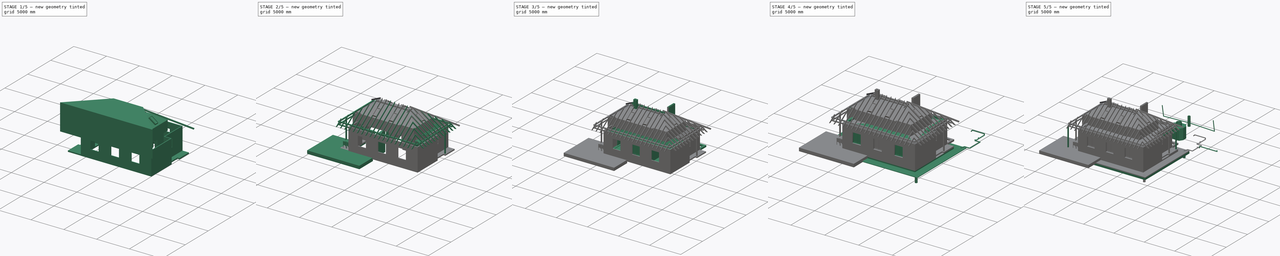
[diagram: build sequence overview — one tinted view per stage of 5, left to right]
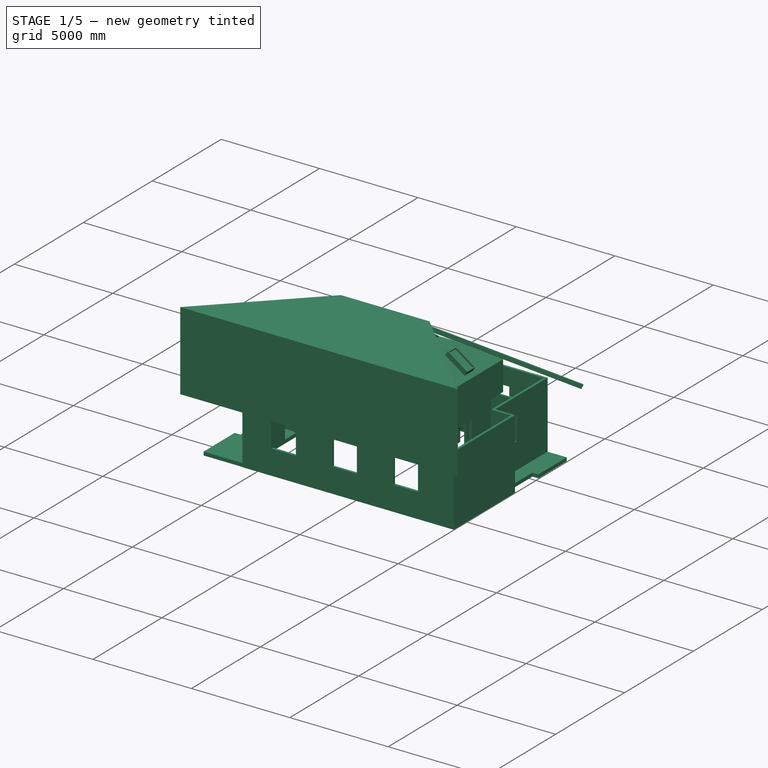
[diagram: stage 1 of 5 — iso view after this stage's code; geometry added in this stage tinted green]
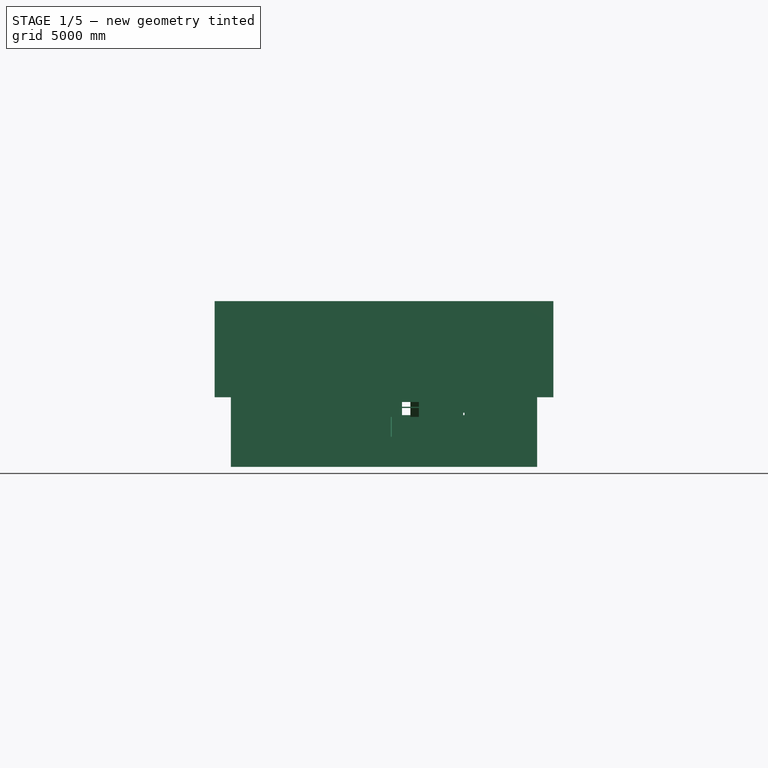
[diagram: stage 1 of 5 — front view after this stage's code; geometry added in this stage tinted green]
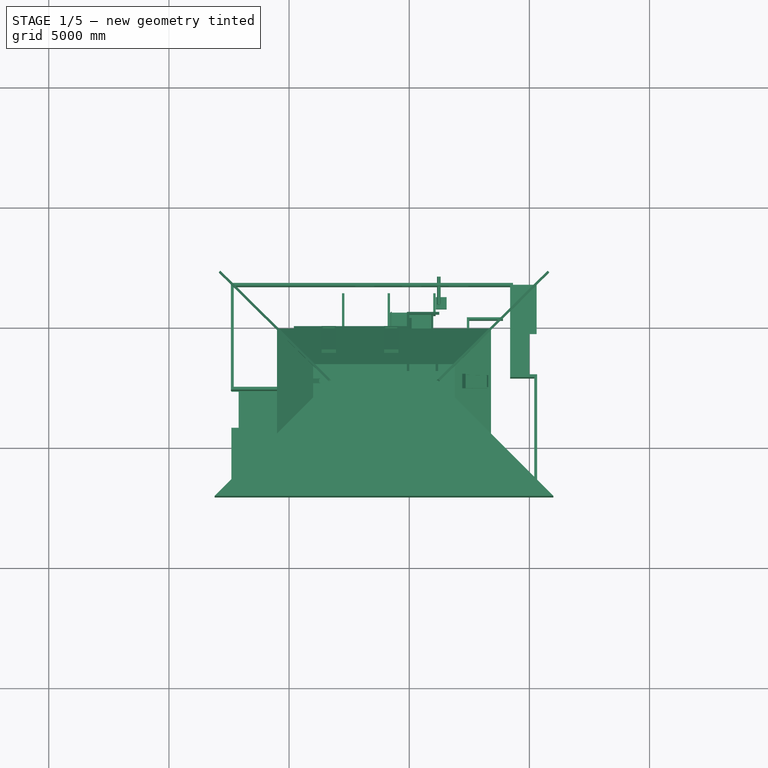
[diagram: stage 1 of 5 — top view after this stage's code; geometry added in this stage tinted green]
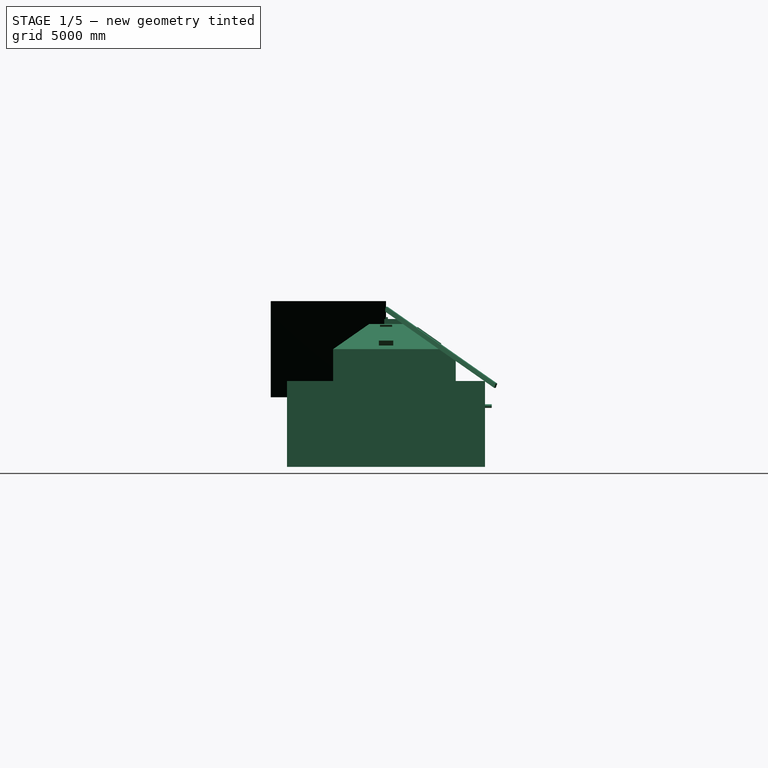
[diagram: stage 1 of 5 — right view after this stage's code; geometry added in this stage tinted green]
FCSTD DOCUMENT  (FreeCAD 0.18.4R)
Label: aeroc_D300_b300_25_05_20_with_underroof_space
License: All rights reserved
LicenseURL: http://en.wikipedia.org/wiki/All_rights_reserved
objects: Part::Part2DObjectPython×329, Part::FeaturePython×237, Part::Box×101, App::GeometryPython×43, Sketcher::SketchObject×28, App::DocumentObjectGroup×22, App::FeaturePython×19, Part::Extrusion×16, Part::Mirroring×14, Part::MultiFuse×12, Part::Cut×7, Part::Feature×5, Part::Fillet×3, Part::Fuse×3, Part::Loft×2, Part::Cylinder×1
note: 801 computed .brp shape members not serialized (recipe doc carries the construction recipe); baked Part::Feature solids carry a one-line shape summary decoded from their .brp

FEATURE [Part::FeaturePython] Structure364  label="проём двери вн. 001"  # Arch/BIM object (typed FeaturePython)
  Base = -> Rectangle372
  FaceMaker = 0
  Height = 2250
  HorizontalArea = 80000
  IfcRole = 0
  Length = 0
  MoveWithHost = false
  Nodes = (2) [(-4225,7937.5,0),(-4225,7937.5,2250)]
  NodesOffset = 0
  Normal = (0,0,0)
  PerimeterLength = 1800
  Placement = pos=(0,0,-180) rot=(0,0,1;0rad)
  VerticalArea = 4050000
  Width = 100
FEATURE [Part::FeaturePython] Structure369  label="проём двери вн. 006"  # Arch/BIM object (typed FeaturePython)
  Base = -> Rectangle367
  FaceMaker = 0
  Height = 2250
  HorizontalArea = 90000
  IfcRole = 0
  Length = 0
  MoveWithHost = false
  Nodes = (2) [(-4225,7937.5,0),(-4225,7937.5,2250)]
  NodesOffset = 0
  Normal = (0,0,0)
  PerimeterLength = 2000
  Placement = pos=(0,0,-180) rot=(0,0,1;0rad)
  VerticalArea = 4500000
  Width = 100
FEATURE [Part::FeaturePython] Structure370  label="проём двери вн. 007"  # Arch/BIM object (typed FeaturePython)
  Base = -> Rectangle363
  FaceMaker = 0
  Height = 2250
  HorizontalArea = 90000
  IfcRole = 0
  Length = 0
  MoveWithHost = false
  Nodes = (2) [(-4225,7937.5,0),(-4225,7937.5,2250)]
  NodesOffset = 0
  Normal = (0,0,0)
  PerimeterLength = 2000
  Placement = pos=(0,0,-180) rot=(0,0,1;0rad)
  VerticalArea = 4500000
  Width = 100
FEATURE [Part::FeaturePython] Structure372  label="проём двери вн. 009"  # Arch/BIM object (typed FeaturePython)
  Base = -> Rectangle364
  FaceMaker = 0
  Height = 2250
  HorizontalArea = 100000
  IfcRole = 0
  Length = 0
  MoveWithHost = false
  Nodes = (2) [(-4225,7937.5,0),(-4225,7937.5,2250)]
  NodesOffset = 0
  Normal = (0,0,0)
  PerimeterLength = 2200
  Placement = pos=(0,0,-180) rot=(0,0,1;0rad)
  VerticalArea = 4.95e+06
  Width = 100
FEATURE [Part::Part2DObjectPython] Rectangle758  label="проём_двери_вх_четв. 001"  # Draft 2D object (typed FeaturePython)
  ChamferSize = 0
  Columns = 1
  FilletRadius = 0
  Height = 220
  Length = 1000
  MakeFace = true
  Placement = pos=(9320,-1900,0) rot=(0,0,1;1.5708rad)
  Rows = 1
FEATURE [Part::Part2DObjectPython] Rectangle759  label="проём_четв. 006"  # Draft 2D object (typed FeaturePython)
  ChamferSize = 0
  Columns = 1
  FilletRadius = 0
  Height = 1250
  Length = 220
  MakeFace = true
  Placement = pos=(5400,-6420,0) rot=(0,0,1;1.5708rad)
  Rows = 1
FEATURE [Part::Part2DObjectPython] Rectangle760  label="проём_четв. 005"  # Draft 2D object (typed FeaturePython)
  ChamferSize = 0
  Columns = 1
  FilletRadius = 0
  Height = 220
  Length = 1250
  MakeFace = true
  Placement = pos=(-2420,250,0) rot=(0,0,-1;1.5708rad)
  Rows = 1
FEATURE [Part::Part2DObjectPython] Rectangle761  label="проём_четв. 003"  # Draft 2D object (typed FeaturePython)
  ChamferSize = 0
  Columns = 1
  FilletRadius = 0
  Height = 220
  Length = 800
  MakeFace = true
  Placement = pos=(4700,1600,0) rot=(0,0,1;0rad)
  Rows = 1
FEATURE [Part::Part2DObjectPython] Rectangle762  label="проём_четв. 004"  # Draft 2D object (typed FeaturePython)
  ChamferSize = 0
  Columns = 1
  FilletRadius = 0
  Height = 220
  Length = 800
  MakeFace = true
  Placement = pos=(7450,1820,0) rot=(0,0,1;3.14159rad)
  Rows = 1
FEATURE [Part::FeaturePython] Structure385  label="дверь_входная_четв. 001"  # Arch/BIM object (typed FeaturePython)
  Base = -> Rectangle758
  FaceMaker = 0
  Height = 2570
  HorizontalArea = 220000
  IfcRole = 0
  Length = 0
  MoveWithHost = false
  Nodes = (2) [(-4225,7937.5,0),(-4225,7937.5,2250)]
  NodesOffset = 0
  Normal = (0,0,0)
  PerimeterLength = 2440
  VerticalArea = 6.2708e+06
  Width = 100
FEATURE [Part::FeaturePython] Structure386  label="окно_бол_четв. 001"  # Arch/BIM object (typed FeaturePython)
  Base = -> Rectangle759
  FaceMaker = 0
  Height = 1450
  HorizontalArea = 275000
  IfcRole = 0
  Length = 0
  MoveWithHost = false
  Nodes = (2) [(1187.5,6500,0),(1187.5,6500,1500)]
  NodesOffset = 0
  Normal = (0,0,0)
  PerimeterLength = 2940
  Placement = pos=(0,0,1070) rot=(0,0,1;0rad)
  VerticalArea = 4263000
  Width = 100
FEATURE [Part::FeaturePython] Structure387  label="окно_бол_четв. 002"  # Arch/BIM object (typed FeaturePython)
  Base = -> Rectangle760
  FaceMaker = 0
  Height = 1450
  HorizontalArea = 275000
  IfcRole = 0
  Length = 0
  MoveWithHost = false
  Nodes = (2) [(-2125,-187.5,0),(-2125,-187.5,1500)]
  NodesOffset = 0
  Normal = (0,0,0)
  PerimeterLength = 2940
  Placement = pos=(0,0,1070) rot=(0,0,1;0rad)
  VerticalArea = 4263000
  Width = 100
FEATURE [Part::FeaturePython] Structure388  label="окно_бол_четв. 003"  # Arch/BIM object (typed FeaturePython)
  Base = -> Rectangle762
  FaceMaker = 0
  Height = 550
  HorizontalArea = 176000
  IfcRole = 0
  Length = 0
  MoveWithHost = false
  Nodes = (2) [(7937.5,-2125,0),(7937.5,-2125,1500)]
  NodesOffset = 0
  Normal = (0,0,0)
  PerimeterLength = 2040
  Placement = pos=(0,0,1970) rot=(0,0,1;0rad)
  VerticalArea = 1122000
  Width = 100
FEATURE [Part::FeaturePython] Structure389  label="окно_мал_четв. 001"  # Arch/BIM object (typed FeaturePython)
  Base = -> Rectangle761
  FaceMaker = 0
  Height = 550
  HorizontalArea = 176000
  IfcRole = 0
  Length = 0
  MoveWithHost = false
  Nodes = (2) [(-187.5,2950,0),(-187.5,2950,500)]
  NodesOffset = 0
  Normal = (0,0,0)
  PerimeterLength = 2040
  Placement = pos=(0,0,1970) rot=(0,0,1;0rad)
  VerticalArea = 1122000
  Width = 100
FEATURE [Part::Part2DObjectPython] Rectangle763  label="проём_четв. 002"  # Draft 2D object (typed FeaturePython)
  ChamferSize = 0
  Columns = 1
  FilletRadius = 0
  Height = 1250
  Length = 220
  MakeFace = true
  Placement = pos=(8500,-6420,0) rot=(0,0,1;1.5708rad)
  Rows = 1
FEATURE [Part::Part2DObjectPython] Rectangle764  label="проём_двери_на_террасу_четв. 001"  # Draft 2D object (typed FeaturePython)
  ChamferSize = 0
  Columns = 1
  FilletRadius = 0
  Height = 800
  Length = 220
  MakeFace = true
  Placement = pos=(-420,-3500,0) rot=(0,0,1;0rad)
  Rows = 1
FEATURE [Part::FeaturePython] Structure391  label="дверь_на_террасу_четв. 001"  # Arch/BIM object (typed FeaturePython)
  Base = -> Rectangle764
  FaceMaker = 0
  Height = 2570
  HorizontalArea = 176000
  IfcRole = 0
  Length = 0
  MoveWithHost = false
  Nodes = (2) [(6562.5,7937.5,0),(6562.5,7937.5,2500)]
  NodesOffset = 0
  Normal = (0,0,0)
  PerimeterLength = 2040
  VerticalArea = 5242800
  Width = 100
FEATURE [Part::FeaturePython] Structure392  label="окно_бол_четв. 004"  # Arch/BIM object (typed FeaturePython)
  Base = -> Rectangle763
  FaceMaker = 0
  Height = 1450
  HorizontalArea = 275000
  IfcRole = 0
  Length = 0
  MoveWithHost = false
  Nodes = (2) [(1187.5,6500,0),(1187.5,6500,1500)]
  NodesOffset = 0
  Normal = (0,0,0)
  PerimeterLength = 2940
  Placement = pos=(0,0,1070) rot=(0,0,1;0rad)
  VerticalArea = 4263000
  Width = 100
FEATURE [Part::Part2DObjectPython] Rectangle930  label="Rectangle773"  # Draft 2D object (typed FeaturePython)
  ChamferSize = 0
  Columns = 1
  FilletRadius = 0
  Height = 50
  Length = 100
  MakeFace = true
  Placement = pos=(6550,-1000,0) rot=(0,0,1;1.5708rad)
  Rows = 1
FEATURE [Part::Part2DObjectPython] Line713  # Draft 2D object (typed FeaturePython)
  ChamferSize = 0
  Closed = false
  End = (6500,-950,0)
  FilletRadius = 0
  Length = 800
  MakeFace = true
  Placement = pos=(7100,-750,0) rot=(0,0,1;1.5708rad)
  Points = (2) [(-200,-200,0),(-200,600,0)]
  Start = (7300,-950,0)
  Subdivisions = 0
FEATURE [Part::Part2DObjectPython] Rectangle931  # Draft 2D object (typed FeaturePython)
  ChamferSize = 0
  Columns = 1
  FilletRadius = 0
  Height = 50
  Length = 100
  MakeFace = true
  Placement = pos=(7300,-1000,0) rot=(0,0,1;1.5708rad)
  Rows = 1
FEATURE [Part::Part2DObjectPython] Rectangle932  # Draft 2D object (typed FeaturePython)
  ChamferSize = 0
  Columns = 1
  FilletRadius = 0
  Height = 50
  Length = 200
  MakeFace = true
  Placement = pos=(6400,-2200,0) rot=(0,0,-1;1.5708rad)
  Rows = 1
FEATURE [Part::Part2DObjectPython] Line714  # Draft 2D object (typed FeaturePython)
  ChamferSize = 0
  Closed = false
  End = (6400,-2300,0)
  FilletRadius = 0
  Length = 900
  MakeFace = true
  Placement = pos=(7300,-2100,0) rot=(0,0,-1;1.5708rad)
  Points = (2) [(200,0,0),(200,-900,0)]
  Start = (7300,-2300,0)
  Subdivisions = 0
FEATURE [Part::Part2DObjectPython] Rectangle933  # Draft 2D object (typed FeaturePython)
  ChamferSize = 0
  Columns = 1
  FilletRadius = 0
  Height = 50
  Length = 200
  MakeFace = true
  Placement = pos=(7250,-2200,0) rot=(0,0,-1;1.5708rad)
  Rows = 1
FEATURE [Part::FeaturePython] Structure541  label="проём двери вн. 010"  # Arch/BIM object (typed FeaturePython)
  Base = -> Rectangle362
  FaceMaker = 0
  Height = 2250
  HorizontalArea = 90000
  IfcRole = 0
  Length = 0
  MoveWithHost = false
  Nodes = (2) [(-4225,7937.5,0),(-4225,7937.5,2250)]
  NodesOffset = 0
  Normal = (0,0,0)
  PerimeterLength = 2000
  Placement = pos=(0,0,-180) rot=(0,0,1;0rad)
  VerticalArea = 4500000
  Width = 100
FEATURE [Part::FeaturePython] Wall071  label="перегородка 002"  # Arch/BIM object (typed FeaturePython)
  Align = 2
  Base = -> Wire100
  BlockHeight = 0
  BlockLength = 0
  CountBroken = 0
  CountEntire = 0
  Face = 0
  Height = 3000
  HorizontalArea = 780000
  IfcRole = 156
  Joint = 0
  Length = 0
  MakeBlocks = false
  MoveWithHost = false
  Normal = (0,0,0)
  OffsetFirst = 0
  OffsetSecond = 0
  PerimeterLength = 15800
  Placement = pos=(0,0,-180) rot=(0,0,1;0rad)
  Subtractions = -> [Structure369,Structure370,Structure541]
  VerticalArea = 43800000
  Width = 200
FEATURE [Part::Part2DObjectPython] Rectangle937  label="проём_четв. 007"  # Draft 2D object (typed FeaturePython)
  ChamferSize = 0
  Columns = 1
  FilletRadius = 0
  Height = 220
  Length = 800
  MakeFace = true
  Placement = pos=(2750,1600,0) rot=(0,0,1;0rad)
  Rows = 1
FEATURE [Part::Part2DObjectPython] Rectangle938  label="проём_065"  # Draft 2D object (typed FeaturePython)
  ChamferSize = 0
  Columns = 1
  FilletRadius = 0
  Height = 200
  Length = 900
  MakeFace = true
  Placement = pos=(2700,1400,0) rot=(0,0,1;0rad)
  Rows = 1
FEATURE [Part::FeaturePython] Structure548  label="окно_мал_четв. 002"  # Arch/BIM object (typed FeaturePython)
  Base = -> Rectangle937
  FaceMaker = 0
  Height = 550
  HorizontalArea = 176000
  IfcRole = 0
  Length = 0
  MoveWithHost = false
  Nodes = (2) [(-187.5,2950,0),(-187.5,2950,500)]
  NodesOffset = 0
  Normal = (0,0,0)
  PerimeterLength = 2040
  Placement = pos=(0,0,1970) rot=(0,0,1;0rad)
  VerticalArea = 1122000
  Width = 100
FEATURE [Part::Part2DObjectPython] Wire254  # Draft 2D object (typed FeaturePython)
  ChamferSize = 0
  Closed = true
  End = (1700,-2300,0)
  FilletRadius = 0
  Length = 32176.5
  MakeFace = true
  Placement = pos=(-1100,3200,0) rot=(0,0,1;0rad)
  Points = (4) [(-2000,-700,0),(12100,-700,0),(7300,-5500,0),(2800,-5500,0)]
  Start = (-3100,2500,0)
  Subdivisions = 0
FEATURE [Part::FeaturePython] Structure574  label="вычитаемый_объём_003"  # Arch/BIM object (typed FeaturePython)
  Base = -> Wire254
  FaceMaker = 0
  Height = 4000
  HorizontalArea = 44640000
  IfcRole = 0
  Length = 0
  MoveWithHost = false
  Nodes = (2) [(5050,1589.96,0),(5050,1589.96,3000)]
  NodesOffset = 0
  Normal = (0,0,1)
  PerimeterLength = 32176.5
  Placement = pos=(0,-9.09e-13,2714.53) rot=(0,0,1;0rad)
  VerticalArea = 1.28706e+08
  Width = 100
FEATURE [App::FeaturePython] Dimension035  # Draft dimension (typed FeaturePython)
  Diameter = false
  Dimline = (6200,-6700,0)
  Direction = (0,0,0)
  Distance = 6200
  End = (6200,-6000,0)
  Normal = (0,0,1)
  Start = (-3.674e-13,-6000,0)
FEATURE [App::FeaturePython] Dimension036  # Draft dimension (typed FeaturePython)
  Diameter = false
  Dimline = (-2600,1000,0)
  Direction = (0,0,0)
  Distance = 2300
  End = (2300,1400,0)
  Normal = (0,0,1)
  Start = (2300,-900,0)
FEATURE [App::FeaturePython] Dimension037  # Draft dimension (typed FeaturePython)
  Diameter = false
  Dimline = (5600,2000,0)
  Direction = (0,0,0)
  Distance = 1800
  End = (7400,-900,0)
  Normal = (0,0,1)
  Start = (5600,-900,0)
FEATURE [App::FeaturePython] Dimension038  # Draft dimension (typed FeaturePython)
  Diameter = false
  Dimline = (-2600,-900,0)
  Direction = (0,0,0)
  Distance = 1200
  End = (2200,-1000,0)
  Normal = (0,0,1)
  Start = (2200,-2200,0)
FEATURE [Part::Part2DObjectPython] Rectangle957  label="проём_четв. 008"  # Draft 2D object (typed FeaturePython)
  ChamferSize = 0
  Columns = 1
  FilletRadius = 0
  Height = 1250
  Length = 220
  MakeFace = true
  Placement = pos=(2300,-6420,0) rot=(0,0,1;1.5708rad)
  Rows = 1
FEATURE [Part::FeaturePython] Structure577  label="окно_бол_четв. 005"  # Arch/BIM object (typed FeaturePython)
  Base = -> Rectangle957
  FaceMaker = 0
  Height = 1450
  HorizontalArea = 275000
  IfcRole = 0
  Length = 0
  MoveWithHost = false
  Nodes = (2) [(1187.5,6500,0),(1187.5,6500,1500)]
  NodesOffset = 0
  Normal = (0,0,0)
  PerimeterLength = 2940
  Placement = pos=(0,0,1070) rot=(0,0,1;0rad)
  VerticalArea = 4263000
  Width = 100
FEATURE [Part::Part2DObjectPython] Rectangle960  label="проём_четв. 009"  # Draft 2D object (typed FeaturePython)
  ChamferSize = 0
  Columns = 1
  FilletRadius = 0
  Height = 220
  Length = 250
  MakeFace = true
  Placement = pos=(9320,-650,0) rot=(0,0,1;1.5708rad)
  Rows = 1
FEATURE [Part::FeaturePython] Structure580  label="окно_бол_четв. 006"  # Arch/BIM object (typed FeaturePython)
  Base = -> Rectangle960
  FaceMaker = 0
  Height = 1200
  HorizontalArea = 55000
  IfcRole = 0
  Length = 0
  MoveWithHost = false
  Nodes = (2) [(7937.5,-2125,0),(7937.5,-2125,1500)]
  NodesOffset = 0
  Normal = (0,0,0)
  PerimeterLength = 940
  Placement = pos=(0,0,1320) rot=(0,0,1;0rad)
  VerticalArea = 1128000
  Width = 100
FEATURE [App::GeometryPython] BuildingPart070  label="Фундамент"  # Arch/BIM object (typed FeaturePython)
  Area = 0
  Group = -> [Structure130,Structure237,Wall069,Structure583]
  Height = 0
  IfcRole = 0
  LevelOffset = 0
FEATURE [Part::Part2DObjectPython] Rectangle963  label="проём_четв. 010"  # Draft 2D object (typed FeaturePython)
  ChamferSize = 0
  Columns = 1
  FilletRadius = 0
  Height = 220
  Length = 250
  MakeFace = true
  Placement = pos=(-200,-4000,0) rot=(0,0,1;1.5708rad)
  Rows = 1
FEATURE [Part::Part2DObjectPython] Rectangle964  label="проём_069"  # Draft 2D object (typed FeaturePython)
  ChamferSize = 0
  Columns = 1
  FilletRadius = 0
  Height = 200
  Length = 350
  MakeFace = true
  Placement = pos=(-9.09e-13,-4050,0) rot=(0,0,1;1.5708rad)
  Rows = 1
FEATURE [Part::FeaturePython] Structure584  label="окно_мал_четв. 003"  # Arch/BIM object (typed FeaturePython)
  Base = -> Rectangle963
  FaceMaker = 0
  Height = 1200
  HorizontalArea = 55000
  IfcRole = 0
  Length = 0
  MoveWithHost = false
  Nodes = (2) [(-187.5,2950,0),(-187.5,2950,500)]
  NodesOffset = 0
  Normal = (0,0,0)
  PerimeterLength = 940
  Placement = pos=(0,0,1320) rot=(0,0,1;0rad)
  VerticalArea = 1.128e+06
  Width = 100
FEATURE [Part::Part2DObjectPython] Rectangle968  label="ступенька терассы002"  # Draft 2D object (typed FeaturePython)
  ChamferSize = 0
  Columns = 1
  FilletRadius = 0
  Height = 1500
  Length = 300
  MakeFace = false
  Placement = pos=(-2400,-4150,0) rot=(0,0,1;0rad)
  Rows = 1
FEATURE [Part::FeaturePython] Structure590  label="ступенька терассы001"  # Arch/BIM object (typed FeaturePython)
  Base = -> Rectangle968
  FaceMaker = 0
  Height = 180
  HorizontalArea = 450000
  IfcRole = 0
  Length = 0
  MoveWithHost = false
  Nodes = (2) [(3875,3875,0),(3875,3875,350)]
  NodesOffset = 0
  Normal = (0,0,-1)
  PerimeterLength = 3600
  VerticalArea = 648000
  Width = 100
FEATURE [Part::Part2DObjectPython] Rectangle969  label="ступенька крыльца003"  # Draft 2D object (typed FeaturePython)
  ChamferSize = 0
  Columns = 1
  FilletRadius = 0
  Height = 1700
  Length = 300
  MakeFace = false
  Placement = pos=(10000,-1950,0) rot=(0,0,1;0rad)
  Rows = 1
FEATURE [App::DocumentObjectGroup] Group056  label="Основание и фундамент"
  Group = -> [Rectangle446,Rectangle482,Wire151,Wire152,Circle008,Circle009,Circle006,Circle007,Circle011,Circle012,Circle013,Circle014,Wire200,Wire258,Rectangle969,Rectangle962,Rectangle968]
FEATURE [Part::FeaturePython] Structure591  label="ступенька крыльца004"  # Arch/BIM object (typed FeaturePython)
  Base = -> Rectangle969
  FaceMaker = 0
  Height = 180
  HorizontalArea = 510000
  IfcRole = 0
  Length = 0
  MoveWithHost = false
  Nodes = (2) [(3875,3875,0),(3875,3875,350)]
  NodesOffset = 0
  Normal = (0,0,-1)
  PerimeterLength = 4000
  VerticalArea = 720000
  Width = 100
FEATURE [Part::Part2DObjectPython] Wire261  label="стропило_003"  # Draft 2D object (typed FeaturePython)
  ChamferSize = 0
  Closed = true
  End = (2125,-2300,5094.56)
  FilletRadius = 0
  Length = 10429.8
  MakeFace = true
  Placement = pos=(2200,-2300,5094.56) rot=(1,0,0;1.5708rad)
  Points = (10) [(0,0,0),(-2.72848e-12,220.676,0),(-4600,-1924.34,0),(-4600,-1944.56,0),(-4170.11,-1944.56,0),(-3850,-1795.28,0),(-3850,-1724.56,0),+3 more]
  Start = (2200,-2300,5094.56)
  Subdivisions = 0
FEATURE [Part::Mirroring] mirror016  label="Mirror of вычитаемый_объём_003"
  Base = (2200,-2300,0)
  Normal = (2e-16,-1,0)
  Placement = pos=(0,-4.55e-13,0) rot=(0,0,1;0rad)
  Source = -> Structure574
FEATURE [Part::Part2DObjectPython] Line775  label="прогон 023"  # Draft 2D object (typed FeaturePython)
  ChamferSize = 0
  Closed = false
  End = (1700,-2300,6561.87)
  FilletRadius = 0
  Length = 7200
  MakeFace = false
  Placement = pos=(-5489.97,-4266.54,3805.65) rot=(0,0,1;3.14159rad)
  Points = (2) [(-2627.42,2596.01,-438.511),(-7189.97,-1966.54,2756.22)]
  Start = (-2862.55,-6862.55,3367.14)
  Subdivisions = 0
FEATURE [App::DocumentObjectGroup] Group070  label="стр.система вальмовая"
  Group = -> [Array243,Wire260,Wire261,Wire251,Wire254,Line775,Array288]
FEATURE [Part::Part2DObjectPython] Rectangle973  label="брус_сечение_007"  # Draft 2D object (typed FeaturePython)
  ChamferSize = 0
  Columns = 1
  FilletRadius = 0
  Height = 200
  Length = 100
  MakeFace = false
  Placement = pos=(670.693,2223.24,3100.66) rot=(0,0,-1;0.785398rad)
  Rows = 1
FEATURE [Part::FeaturePython] Pipe076  label="прогон 022"  # Arch/BIM object (typed FeaturePython)
  Base = -> Line775
  Diameter = 50
  HorizontalArea = 0
  IfcRole = 98
  Length = 7200
  MoveWithHost = false
  OffsetEnd = 0
  OffsetStart = 0
  PerimeterLength = 0
  Placement = pos=(0,0,-170) rot=(0,0,1;0rad)
  Profile = -> Rectangle973
  VerticalArea = 0
FEATURE [Part::Part2DObjectPython] Wire262  label="крыша_кромка_001"  # Draft 2D object (typed FeaturePython)
  ChamferSize = 0
  Closed = true
  End = (10200,-6300,3200)
  FilletRadius = 0
  Length = 41000
  MakeFace = false
  Placement = pos=(-2300,-6300,3200) rot=(0,0,1;0rad)
  Points = (4) [(0,0,0),(4.54747e-13,8000,0),(12500,8000,0),(12500,9.09495e-13,0)]
  Start = (-2300,-6300,3200)
  Subdivisions = 0
FEATURE [Part::Part2DObjectPython] Wire263  label="крыша_кромка_002"  # Draft 2D object (typed FeaturePython)
  ChamferSize = 0
  Closed = true
  End = (-2300,1700,3700)
  FilletRadius = 0
  Length = 41000
  MakeFace = false
  Placement = pos=(-2300,-6300,3700) rot=(0,0,1;0rad)
  Points = (4) [(0,0,0),(12500,9.09495e-13,0),(12500,8000,0),(-9.09495e-13,8000,0)]
  Start = (-2300,-6300,3700)
  Subdivisions = 0
FEATURE [Part::FeaturePython] Roof002  label="Крыша"  # Arch/BIM object (typed FeaturePython)
  Angles = [35,35,35,35]
  Base = -> Wire263
  BorderLength = 65900
  Face = 4
  Flip = false
  Heights = [2800.83,2800.83,2800.83,2800.83]
  HorizontalArea = 9.07544e+07
  IdRel = [0,0,0,0]
  IfcRole = 111
  MoveWithHost = false
  Overhang = [800,800,800,800]
  PerimeterLength = 0
  RidgeLength = 37798.9
  Runs = [4000,4000,4000,4000]
  Thickness = [50,50,50,50]
  VerticalArea = 3.13324e+06
FEATURE [Part::Part2DObjectPython] Line776  # Draft 2D object (typed FeaturePython)
  ChamferSize = 0
  Closed = false
  End = (1700,-2300,0)
  FilletRadius = 0
  Length = 6788.23
  MakeFace = true
  Placement = pos=(-3100,2500,0) rot=(0,0,1;0rad)
  Points = (2) [(0,0,0),(4800,-4800,0)]
  Start = (-3100,2500,0)
  Subdivisions = 0
FEATURE [Part::Part2DObjectPython] Line777  # Draft 2D object (typed FeaturePython)
  ChamferSize = 0
  Closed = false
  End = (1700,-2300,0)
  FilletRadius = 0
  Length = 6788.23
  MakeFace = true
  Placement = pos=(-3100,-7100,0) rot=(0,0,1;0rad)
  Points = (2) [(0,0,0),(4800,4800,0)]
  Start = (-3100,-7100,0)
  Subdivisions = 0
FEATURE [Part::Part2DObjectPython] Line778  # Draft 2D object (typed FeaturePython)
  ChamferSize = 0
  Closed = false
  End = (6200,-2300,0)
  FilletRadius = 0
  Length = 4500
  MakeFace = true
  Placement = pos=(1700,-2300,0) rot=(0,0,1;0rad)
  Points = (2) [(0,0,0),(4500,4.54747e-13,0)]
  Start = (1700,-2300,0)
  Subdivisions = 0
FEATURE [Part::Part2DObjectPython] Line779  # Draft 2D object (typed FeaturePython)
  ChamferSize = 0
  Closed = false
  End = (11000,2500,0)
  FilletRadius = 0
  Length = 6788.23
  MakeFace = true
  Placement = pos=(6200,-2300,0) rot=(0,0,1;0rad)
  Points = (2) [(0,0,0),(4800,4800,0)]
  Start = (6200,-2300,0)
  Subdivisions = 0
FEATURE [Part::Part2DObjectPython] Line780  # Draft 2D object (typed FeaturePython)
  ChamferSize = 0
  Closed = false
  End = (11000,-7100,0)
  FilletRadius = 0
  Length = 6788.23
  MakeFace = true
  Placement = pos=(6200,-2300,0) rot=(0,0,1;0rad)
  Points = (2) [(0,0,0),(4800,-4800,0)]
  Start = (6200,-2300,0)
  Subdivisions = 0
FEATURE [Part::Part2DObjectPython] Line781  # Draft 2D object (typed FeaturePython)
  ChamferSize = 0
  Closed = false
  End = (11000,2500,0)
  FilletRadius = 0
  Length = 9600
  MakeFace = true
  Placement = pos=(11000,-7100,0) rot=(0,0,1;0rad)
  Points = (2) [(0,0,0),(0,9600,0)]
  Start = (11000,-7100,0)
  Subdivisions = 0
FEATURE [Part::Part2DObjectPython] Line782  # Draft 2D object (typed FeaturePython)
  ChamferSize = 0
  Closed = false
  End = (-3100,-7100,0)
  FilletRadius = 0
  Length = 9600
  MakeFace = true
  Placement = pos=(-3100,2500,0) rot=(0,0,1;0rad)
  Points = (2) [(0,0,0),(1.81899e-12,-9600,0)]
  Start = (-3100,2500,0)
  Subdivisions = 0
  Support = -> [Roof002]
FEATURE [Part::Part2DObjectPython] Line783  # Draft 2D object (typed FeaturePython)
  ChamferSize = 0
  Closed = false
  End = (11000,-7100,0)
  FilletRadius = 0
  Length = 14100
  MakeFace = true
  Placement = pos=(-3100,-7100,0) rot=(0,0,1;0rad)
  Points = (2) [(0,0,0),(14100,9.09495e-13,0)]
  Start = (-3100,-7100,0)
  Subdivisions = 0
FEATURE [Part::Part2DObjectPython] Line784  # Draft 2D object (typed FeaturePython)
  ChamferSize = 0
  Closed = false
  End = (11000,2500,0)
  FilletRadius = 0
  Length = 14100
  MakeFace = true
  Placement = pos=(-3100,2500,0) rot=(0,0,1;0rad)
  Points = (2) [(0,0,0),(14100,1.36424e-12,0)]
  Start = (-3100,2500,0)
  Subdivisions = 0
FEATURE [Part::Part2DObjectPython] Line785  # Draft 2D object (typed FeaturePython)
  ChamferSize = 0
  Closed = false
  End = (3950,2500,0)
  FilletRadius = 0
  Length = 9600
  MakeFace = true
  Placement = pos=(3950,-7100,0) rot=(0,0,1;0rad)
  Points = (2) [(0,0,0),(-1.36424e-12,9600,0)]
  Start = (3950,-7100,0)
  Subdivisions = 0
FEATURE [Part::Part2DObjectPython] Line786  # Draft 2D object (typed FeaturePython)
  ChamferSize = 0
  Closed = false
  End = (11000,-2300,0)
  FilletRadius = 0
  Length = 14100
  MakeFace = true
  Placement = pos=(-3100,-2300,0) rot=(0,0,1;0rad)
  Points = (2) [(0,0,0),(14100,0,0)]
  Start = (-3100,-2300,0)
  Subdivisions = 0
FEATURE [Part::Mirroring] mirror022  label="Mirror of прогон 022"
  Base = (3950,-7100,0)
  Normal = (1,0,0)
  Source = -> Pipe076
FEATURE [Part::Mirroring] mirror023  label="Mirror of прогон 023"
  Base = (-3100,-2300,0)
  Normal = (1e-16,-1,0)
  Source = -> Pipe076
FEATURE [Part::Mirroring] mirror024  label="Mirror of Mirror of прогон 022"
  Base = (-3100,-2300,0)
  Normal = (1e-16,-1,0)
  Source = -> mirror022
FEATURE [Part::Part2DObjectPython] Line787  # Draft 2D object (typed FeaturePython)
  ChamferSize = 0
  Closed = false
  End = (3950,-2300,4844.56)
  FilletRadius = 0
  Length = 2250
  MakeFace = true
  Placement = pos=(1700,-2300,4844.56) rot=(0,0,1;0rad)
  Points = (2) [(0,0,0),(2250,0,0)]
  Start = (1700,-2300,4844.56)
  Subdivisions = 0
FEATURE [Sketcher::SketchObject] Sketch208  label="стол угловой"
  Placement = pos=(-2000,-2200,0) rot=(0,0,1;0rad)
  sketch-geometry (9):
    g0: LineSegment StartX=1400 StartY=0 StartZ=0 EndX=0 EndY=0 EndZ=0
    g1: LineSegment StartX=0 StartY=0 StartZ=0 EndX=0 EndY=1300 EndZ=0
    g2: LineSegment StartX=0 StartY=1300 StartZ=0 EndX=370 EndY=1300 EndZ=0
    g3: LineSegment StartX=470 StartY=1200 StartZ=0 EndX=470 EndY=900 EndZ=0
    g4: LineSegment StartX=1400 StartY=0 StartZ=0 EndX=1400 EndY=500 EndZ=0
    g5: LineSegment StartX=1300 StartY=600 StartZ=0 EndX=770 EndY=600 EndZ=0
    g6: ArcOfCircle CenterX=770 CenterY=900 CenterZ=0 NormalX=0 NormalY=0 NormalZ=1 AngleXU=0 Radius=300 StartAngle=3.14159 EndAngle=4.71239
    g7: ArcOfCircle CenterX=1300 CenterY=500 CenterZ=0 NormalX=0 NormalY=0 NormalZ=1 AngleXU=0 Radius=100 StartAngle=1e-16 EndAngle=1.5708
    g8: ArcOfCircle CenterX=370 CenterY=1200 CenterZ=0 NormalX=0 NormalY=0 NormalZ=1 AngleXU=0 Radius=100 StartAngle=5e-16 EndAngle=1.5708
  constraints (25):
    c: Horizontal(g0)
    c: Coincident(g0,g1)
    c: Vertical(g1)
    c: Coincident(g1,g2)
    c: Horizontal(g2)
    c: Coincident(g0,g4)
    c: Horizontal(g5)
    c: Coincident(g6,g3)
    c: Coincident(g6,g5)
    c: Parallel(g3,g1)
    c: Distance(g1) = 1300
    c: Distance(g0) = 1400
    c: Vertical(g4)
    c: Coincident(g0,g-1)
    c: Radius(g6) = 300
    c: DistanceY(g5,g6) = 300
    c: DistanceY(g6,g3) = 0
    c: Tangent(g5,g7) = -1.5708
    c: Tangent(g4,g7) = -1.5708
    c: Radius(g7) = 100
    c: DistanceY(g0,g5) = 600
    c: Tangent(g2,g8) = 1.5708
    c: Tangent(g3,g8) = 1.5708
    c: Radius(g8) = 100
    c: DistanceX(g1,g3) = 470
FEATURE [Sketcher::SketchObject] Sketch209  label="кресло 45'"
  Placement = pos=(-1300,-1400,0) rot=(0,0,-1;0.785398rad)
  sketch-geometry (11):
    g0: LineSegment StartX=-280 StartY=-350 StartZ=0 EndX=280 EndY=-350 EndZ=0
    g1: LineSegment StartX=330 StartY=-300 StartZ=0 EndX=330 EndY=300 EndZ=0
    g2: LineSegment StartX=280 StartY=350 StartZ=0 EndX=-280 EndY=350 EndZ=0
    g3: LineSegment StartX=-330 StartY=300 StartZ=0 EndX=-330 EndY=-300 EndZ=0
    g4: ArcOfCircle CenterX=-280 CenterY=300 CenterZ=0 NormalX=0 NormalY=0 NormalZ=1 AngleXU=0 Radius=50 StartAngle=1.5708 EndAngle=3.14159
    g5: ArcOfCircle CenterX=280 CenterY=300 CenterZ=0 NormalX=0 NormalY=0 NormalZ=1 AngleXU=0 Radius=50 StartAngle=-9e-16 EndAngle=1.5708
    g6: ArcOfCircle CenterX=280 CenterY=-300 CenterZ=0 NormalX=0 NormalY=0 NormalZ=1 AngleXU=0 Radius=50 StartAngle=4.71239 EndAngle=6.28319
    g7: ArcOfCircle CenterX=-280 CenterY=-300 CenterZ=0 NormalX=0 NormalY=0 NormalZ=1 AngleXU=0 Radius=50 StartAngle=3.14159 EndAngle=4.71239
    g8: LineSegment StartX=-330 StartY=200 StartZ=0 EndX=330 EndY=200 EndZ=0
    g9: LineSegment StartX=-230 StartY=200 StartZ=0 EndX=-230 EndY=-350 EndZ=0
    g10: LineSegment StartX=230 StartY=200 StartZ=0 EndX=230 EndY=-350 EndZ=0
  constraints (29):
    c: Horizontal(g0)
    c: Vertical(g1)
    c: Vertical(g3)
    c: Tangent(g2,g4) = -1.5708
    c: Tangent(g3,g4) = -1.5708
    c: Tangent(g2,g5) = -1.5708
    c: Tangent(g1,g5) = -1.5708
    c: Tangent(g0,g6) = -1.5708
    c: Tangent(g1,g6) = -1.5708
    c: Tangent(g3,g7) = -1.5708
    c: Tangent(g0,g7) = -1.5708
    c: DistanceY(g0,g2) = 700
    c: DistanceX(g3,g1) = 660
    c: Equal(g4,g5)
    c: Equal(g7,g6)
    c: Radius(g5) = 50
    c: Symmetric(g2,g2,g-2)
    c: Symmetric(g2,g0,g-1)
    c: PointOnObject(g8,g3)
    c: PointOnObject(g8,g1)
    c: Horizontal(g8)
    c: DistanceY(g8,g2) = 150
    c: PointOnObject(g9,g8)
    c: PointOnObject(g9,g0)
    c: Vertical(g9)
    c: PointOnObject(g10,g0)
    c: Vertical(g10)
    c: DistanceX(g10,g8) = 100
    c: Symmetric(g10,g9,g-2)
FEATURE [Sketcher::SketchObject] Sketch210  label="кресло"
  Placement = pos=(-1500,-1500,0) rot=(0,0,-1;0rad)
  sketch-geometry (11):
    g0: LineSegment StartX=-280 StartY=-350 StartZ=0 EndX=280 EndY=-350 EndZ=0
    g1: LineSegment StartX=330 StartY=-300 StartZ=0 EndX=330 EndY=300 EndZ=0
    g2: LineSegment StartX=280 StartY=350 StartZ=0 EndX=-280 EndY=350 EndZ=0
    g3: LineSegment StartX=-330 StartY=300 StartZ=0 EndX=-330 EndY=-300 EndZ=0
    g4: ArcOfCircle CenterX=-280 CenterY=300 CenterZ=0 NormalX=0 NormalY=0 NormalZ=1 AngleXU=0 Radius=50 StartAngle=1.5708 EndAngle=3.14159
    g5: ArcOfCircle CenterX=280 CenterY=300 CenterZ=0 NormalX=0 NormalY=0 NormalZ=1 AngleXU=0 Radius=50 StartAngle=-9e-16 EndAngle=1.5708
    g6: ArcOfCircle CenterX=280 CenterY=-300 CenterZ=0 NormalX=0 NormalY=0 NormalZ=1 AngleXU=0 Radius=50 StartAngle=4.71239 EndAngle=6.28319
    g7: ArcOfCircle CenterX=-280 CenterY=-300 CenterZ=0 NormalX=0 NormalY=0 NormalZ=1 AngleXU=0 Radius=50 StartAngle=3.14159 EndAngle=4.71239
    g8: LineSegment StartX=-330 StartY=200 StartZ=0 EndX=330 EndY=200 EndZ=0
    g9: LineSegment StartX=-230 StartY=200 StartZ=0 EndX=-230 EndY=-350 EndZ=0
    g10: LineSegment StartX=230 StartY=200 StartZ=0 EndX=230 EndY=-350 EndZ=0
  constraints (29):
    c: Horizontal(g0)
    c: Vertical(g1)
    c: Vertical(g3)
    c: Tangent(g2,g4) = -1.5708
    c: Tangent(g3,g4) = -1.5708
    c: Tangent(g2,g5) = -1.5708
    c: Tangent(g1,g5) = -1.5708
    c: Tangent(g0,g6) = -1.5708
    c: Tangent(g1,g6) = -1.5708
    c: Tangent(g3,g7) = -1.5708
    c: Tangent(g0,g7) = -1.5708
    c: DistanceY(g0,g2) = 700
    c: DistanceX(g3,g1) = 660
    c: Equal(g4,g5)
    c: Equal(g7,g6)
    c: Radius(g5) = 50
    c: Symmetric(g2,g2,g-2)
    c: Symmetric(g2,g0,g-1)
    c: PointOnObject(g8,g3)
    c: PointOnObject(g8,g1)
    c: Horizontal(g8)
    c: DistanceY(g8,g2) = 150
    c: PointOnObject(g9,g8)
    c: PointOnObject(g9,g0)
    c: Vertical(g9)
    c: PointOnObject(g10,g0)
    c: Vertical(g10)
    c: DistanceX(g10,g8) = 100
    c: Symmetric(g10,g9,g-2)
FEATURE [Part::Part2DObjectPython] Line790  # Draft 2D object (typed FeaturePython)
  ChamferSize = 0
  Closed = false
  End = (5500,-2600,0)
  FilletRadius = 0
  Length = 600
  MakeFace = true
  Placement = pos=(5500,-2000,0) rot=(0,0,1;0rad)
  Points = (2) [(0,0,0),(0,-600,0)]
  Start = (5500,-2000,0)
  Subdivisions = 0
FEATURE [Part::Part2DObjectPython] ShapeString022  label="надпись 023"  # Draft 2D object (typed FeaturePython)
  FontFile = <path>
  Placement = pos=(-1742.59,-3846.2,0) rot=(0,0,1;0rad)
  Size = 100
  String = Терраса 7.6 м2
  Tracking = 0
FEATURE [Part::Part2DObjectPython] ShapeString023  label="надпись 024"  # Draft 2D object (typed FeaturePython)
  FontFile = <path>
  Placement = pos=(9445.56,-152.51,0) rot=(0,0,1;0rad)
  Size = 100
  String = Кр-цо 3.8 м2
  Tracking = 0
FEATURE [Part::Part2DObjectPython] ShapeString024  label="надпись 025"  # Draft 2D object (typed FeaturePython)
  FontFile = <path>
  Placement = pos=(1274.95,-4120.52,0) rot=(0,0,1;0rad)
  Size = 100
  String = по фундаменту: 100 м2
  Tracking = 0
FEATURE [Part::FeaturePython] Wall097  label="Облицовка 120мм кирпич"  # Arch/BIM object (typed FeaturePython)
  Align = 1
  Base = -> Wire232
  BlockHeight = 249
  BlockLength = 624
  CountBroken = 190
  CountEntire = 597
  Face = 0
  Height = 3570
  HorizontalArea = 1.31081e+07
  IfcRole = 156
  Joint = 1
  Length = 38600
  MakeBlocks = false
  MoveWithHost = false
  Normal = (0,0,0)
  Offset = 300
  OffsetFirst = 249
  OffsetSecond = 0
  PerimeterLength = 37000
  Placement = pos=(0,0,-180) rot=(0,0,1;0rad)
  Subtractions = -> [Structure385,Structure392,Structure391,Structure389,Structure388,Structure387,Structure386,Structure548,Structure577,Structure580,Structure584]
  VerticalArea = 207480000
  Width = 120
FEATURE [App::GeometryPython] BuildingPart068  label="пол (100 мм ПСБ-25 + стяжка 60мм+чист. 20мм)"  # Arch/BIM object (typed FeaturePython)
  Area = 0
  Group = -> [Structure346,Structure350,Structure351,Structure349,Structure348,Structure377,Structure376,Structure374,Structure382,Structure381,Structure378,Structure347,Structure380,Structure546]
  Height = 0
  IfcRole = 0
  LevelOffset = 0
FEATURE [Part::Part2DObjectPython] ShapeString025  label="надпись 026"  # Draft 2D object (typed FeaturePython)
  FontFile = <path>
  Placement = pos=(7268.46,614.918,0) rot=(0,0,1;0rad)
  Size = 100
  String = V=11.9 м3
  Tracking = 0
FEATURE [App::DocumentObjectGroup] Group074  label="План_помещений"
  Group = -> [ShapeString010,Rectangle695,Rectangle698,ShapeString013,ShapeString009,ShapeString011,ShapeString012,ShapeString015,ShapeString016,Rectangle707,ShapeString018,Rectangle929,Rectangle926,Wire233,ShapeString019,ShapeString022,ShapeString023,ShapeString024,Line782,Line776,Line784,Line779,Line781,Line783,Line780,Line777,Line778,Point,Wire264,ShapeString025,Wire265]
FEATURE [Sketcher::SketchObject] Sketch215
  Placement = pos=(-300,-4050,1320) rot=(0.57735,0.57735,0.57735;2.0944rad)
  sketch-geometry (16):
    g0: LineSegment StartX=0 StartY=0 StartZ=0 EndX=350 EndY=0 EndZ=0
    g1: LineSegment StartX=350 StartY=0 StartZ=0 EndX=350 EndY=1250 EndZ=0
    g2: LineSegment StartX=350 StartY=1250 StartZ=0 EndX=0 EndY=1250 EndZ=0
    g3: LineSegment StartX=0 StartY=1250 StartZ=0 EndX=0 EndY=0 EndZ=0
    g4: LineSegment StartX=50 StartY=50 StartZ=0 EndX=300 EndY=50 EndZ=0
    g5: LineSegment StartX=300 StartY=50 StartZ=0 EndX=300 EndY=1200 EndZ=0
    g6: LineSegment StartX=300 StartY=1200 StartZ=0 EndX=50 EndY=1200 EndZ=0
    g7: LineSegment StartX=50 StartY=1200 StartZ=0 EndX=50 EndY=50 EndZ=0
    g8: LineSegment StartX=55 StartY=55 StartZ=0 EndX=295 EndY=55 EndZ=0
    g9: LineSegment StartX=295 StartY=55 StartZ=0 EndX=295 EndY=1195 EndZ=0
    g10: LineSegment StartX=295 StartY=1195 StartZ=0 EndX=55 EndY=1195 EndZ=0
    g11: LineSegment StartX=55 StartY=1195 StartZ=0 EndX=55 EndY=55 EndZ=0
    g12: LineSegment StartX=105 StartY=105 StartZ=0 EndX=245 EndY=105 EndZ=0
    g13: LineSegment StartX=245 StartY=105 StartZ=0 EndX=245 EndY=1145 EndZ=0
    g14: LineSegment StartX=245 StartY=1145 StartZ=0 EndX=105 EndY=1145 EndZ=0
    g15: LineSegment StartX=105 StartY=1145 StartZ=0 EndX=105 EndY=105 EndZ=0
  constraints (47):
    c: Coincident(g0,g1)
    c: Coincident(g1,g2)
    c: Coincident(g2,g3)
    c: Coincident(g3,g0)
    c: Horizontal(g0)
    c: Horizontal(g2)
    c: Vertical(g1)
    c: Vertical(g3)
    c: Coincident(g4,g5)
    c: Coincident(g5,g6)
    c: Coincident(g6,g7)
    c: Coincident(g7,g4)
    c: Horizontal(g4)
    c: Horizontal(g6)
    c: Vertical(g5)
    c: Vertical(g7)
    c: DistanceY(g1) = 1250  'Height'
    c: DistanceX(g0) = 350  'Width'
    c: DistanceY(g6,g2) = 50  'Frame1'
    c: DistanceX(g2,g6) = 50  'Frame2'
    c: DistanceX(g4,g0) = 50  'Frame3'
    c: DistanceY(g0,g4) = 50  'Frame4'
    c: Coincident(g0,g-1)
    c: Coincident(g8,g9)
    c: Coincident(g9,g10)
    c: Coincident(g10,g11)
    c: Coincident(g11,g8)
    c: Horizontal(g8)
    c: Horizontal(g10)
    c: Vertical(g9)
    c: Vertical(g11)
    c: Coincident(g12,g13)
    c: Coincident(g13,g14)
    c: Coincident(g14,g15)
    c: Coincident(g15,g12)
    c: Horizontal(g12)
    c: Horizontal(g14)
    c: Vertical(g13)
    c: Vertical(g15)
    c: DistanceX(g8,g12) = 50  'Frame5'
    c: DistanceY(g8,g12) = 50  'Frame6'
    c: DistanceX(g14,g10) = 50  'Frame8'
    c: DistanceY(g14,g10) = 50  'Frame7'
    c: DistanceX(g4,g8) = 5
    c: DistanceY(g4,g8) = 5
    c: DistanceX(g10,g6) = 5
    c: DistanceY(g10,g6) = 5
FEATURE [Part::FeaturePython] Window018  label="окно 35х100 #002"  # Arch/BIM object (typed FeaturePython)
  Area = 437500
  Base = -> Sketch215
  Frame = 50
  Height = 1250
  HoleDepth = 0
  HoleWire = 0
  HorizontalArea = 0
  IfcRole = 160
  LouvreSpacing = 0
  LouvreWidth = 0
  MoveWithHost = true
  Normal = (1,0,0)
  Offset = 100
  Opening = 0
  PerimeterLength = 0
  Preset = 2
  SymbolElevation = false
  SymbolPlan = false
  VerticalArea = 0
  Width = 350
  WindowParts = OuterFrame | Frame | Wire0,Wire1 | 50.0+V | 0.00+V | InnerFrame | Frame | Wire2,Wire3 | 50.0 | 25.0+V | InnerGlass | Glass panel | Wire3 | 5.0 | 50.0+V
FEATURE [App::GeometryPython] BuildingPart069  label="Окна и двери"  # Arch/BIM object (typed FeaturePython)
  Area = 0
  Group = -> [Window004,Window005,Window006,Window007,Window,Window012,Window013,Window015,Window016,Window017,Window018]
  Height = 0
  IfcRole = 0
  LevelOffset = 0
FEATURE [Part::Part2DObjectPython] Rectangle  # Draft 2D object (typed FeaturePython)
  ChamferSize = 0
  Columns = 1
  FilletRadius = 0
  Height = 50
  Length = 50
  MakeFace = true
  Placement = pos=(-2050,-2250,0) rot=(0,0,1;0rad)
  Rows = 1
FEATURE [Part::Part2DObjectPython] Rectangle974  label="Rectangle968"  # Draft 2D object (typed FeaturePython)
  ChamferSize = 0
  Columns = 1
  FilletRadius = 0
  Height = 50
  Length = 50
  MakeFace = true
  Placement = pos=(-50,-6050,0) rot=(0,0,1;0rad)
  Rows = 1
FEATURE [Part::Part2DObjectPython] Line794  # Draft 2D object (typed FeaturePython)
  ChamferSize = 0
  Closed = false
  End = (0,-2300,3299.27)
  FilletRadius = 0
  Length = 1795.28
  MakeFace = true
  Placement = pos=(0,-2300,5400) rot=(0.57735,0.57735,0.57735;2.0944rad)
  Points = (2) [(0,-305.445,0),(0,-2100.73,0)]
  Start = (0,-2300,5094.56)
  Subdivisions = 0
FEATURE [Part::Part2DObjectPython] Line797  # Draft 2D object (typed FeaturePython)
  ChamferSize = 0
  Closed = false
  End = (0,1550,3299.27)
  FilletRadius = 0
  Length = 3850
  MakeFace = true
  Placement = pos=(0,-3064.01,3299.27) rot=(0.57735,0.57735,0.57735;2.0944rad)
  Points = (2) [(764.006,-5.71182e-05,0),(4614.01,0,0)]
  Start = (0,-2300,3299.27)
  Subdivisions = 0
FEATURE [Part::Part2DObjectPython] Line799  # Draft 2D object (typed FeaturePython)
  ChamferSize = 0
  Closed = false
  End = (0,1550,3299.27)
  FilletRadius = 0
  Length = 4248
  MakeFace = true
  Placement = pos=(0,-2300,5094.56) rot=(0.57735,0.57735,0.57735;2.0944rad)
  Points = (2) [(0,0,0),(3850,-1795.28,0)]
  Start = (0,-2300,5094.56)
  Subdivisions = 0
FEATURE [Part::Part2DObjectPython] Rectangle976  # Draft 2D object (typed FeaturePython)
  ChamferSize = 0
  Columns = 1
  FilletRadius = 0
  Height = 1000
  Length = 1800
  MakeFace = false
  Placement = pos=(4200,400,0) rot=(0,0,1;0rad)
  Rows = 1
FEATURE [Part::Part2DObjectPython] Rectangle977  # Draft 2D object (typed FeaturePython)
  ChamferSize = 0
  Columns = 1
  FilletRadius = 0
  Height = 1200
  Length = 800
  MakeFace = false
  Placement = pos=(5000,-2200,0) rot=(0,0,1;0rad)
  Rows = 1
  Support = -> [Rectangle976]
FEATURE [Part::FeaturePython] Structure595  label="Structure"  # Arch/BIM object (typed FeaturePython)
  Base = -> Rectangle976
  FaceMaker = 0
  Height = 150
  HorizontalArea = 1.8e+06
  IfcRole = 0
  Length = 0
  MoveWithHost = false
  Nodes = (2) [(5100,900,0),(5100,900,150)]
  NodesOffset = 0
  Normal = (0,0,0)
  PerimeterLength = 5600
  Placement = pos=(0,0,670) rot=(0,0,1;0rad)
  VerticalArea = 840000
  Width = 100
FEATURE [Part::FeaturePython] Structure596  label="Structure029"  # Arch/BIM object (typed FeaturePython)
  Base = -> Rectangle977
  FaceMaker = 0
  Height = 1900
  HorizontalArea = 960000
  IfcRole = 0
  Length = 0
  MoveWithHost = false
  Nodes = (2) [(5400,-1600,0),(5400,-1600,1900)]
  NodesOffset = 0
  Normal = (0,0,0)
  PerimeterLength = 4000
  VerticalArea = 7600000
  Width = 100
FEATURE [Part::Part2DObjectPython] Line801  # Draft 2D object (typed FeaturePython)
  ChamferSize = 0
  Closed = false
  End = (5100,-2200,3250)
  FilletRadius = 0
  Length = 3822.15
  MakeFace = true
  Placement = pos=(5100,600,820) rot=(0,0,1;0rad)
  Points = (2) [(0,20,-150),(0,-2800,2430)]
  Start = (5100,620,670)
  Subdivisions = 0
  Support = -> [Structure595]
FEATURE [Part::Part2DObjectPython] Line  # Draft 2D object (typed FeaturePython)
  ChamferSize = 0
  Closed = false
  End = (5400,-2200,2970)
  FilletRadius = 0
  Length = 150
  MakeFace = true
  Placement = pos=(5400,-2200,2820) rot=(0,0,1;0rad)
  Points = (2) [(0,0,0),(0,0,150)]
  Start = (5400,-2200,2820)
  Subdivisions = 0
FEATURE [Part::Part2DObjectPython] Line802  # Draft 2D object (typed FeaturePython)
  ChamferSize = 0
  Closed = false
  End = (4200,630,980)
  FilletRadius = 0
  Length = 1783.62
  MakeFace = true
  Placement = pos=(4200,-1020,10) rot=(0,0,1;0rad)
  Points = (2) [(0,270,-160),(0,1650,970)]
  Start = (4200,-750,-150)
  Subdivisions = 0
FEATURE [Part::Part2DObjectPython] Line803  # Draft 2D object (typed FeaturePython)
  ChamferSize = 0
  Closed = false
  End = (4250,630,1880)
  FilletRadius = 0
  Length = 1685.98
  MakeFace = true
  Points = (2) [(4250,-750,911.429),(4250,630,1880)]
  Start = (4250,-750,911.429)
  Subdivisions = 0
FEATURE [Part::FeaturePython] Rail  # Arch/BIM object (typed FeaturePython)
  Base = -> Line803
  Diameter = 50
  HorizontalArea = 0
  IfcRole = 98
  Length = 1685.98
  MoveWithHost = false
  OffsetEnd = 0
  OffsetStart = 0
  PerimeterLength = 0
  VerticalArea = 0
FEATURE [Part::FeaturePython] Stairs  # Arch/BIM object (typed FeaturePython)
  AbsTop = (4200,-750,980)
  Additions = -> [Rail]
  Align = 0
  Base = -> Line802
  BlondelRatio = 0
  Flight = 0
  Height = 3000
  HorizontalArea = 0
  IfcRole = 124
  LandingDepth = 0
  Landings = 0
  Length = 4500
  MoveWithHost = false
  Nosing = 0
  NumberOfSteps = 7
  OutlineLeft = (2) [(4250,-750,911.429),(4250,630,1880)]
  OutlineLeftAll = (2) [(4250,-750,911.429),(4250,630,1880)]
  OutlineRight = (2) [(5050,630,1880),(5050,-750,911.429)]
  OutlineRightAll = (2) [(5050,630,1880),(5050,-750,911.429)]
  OutlineWireLeft = Line803
  OutlineWireRight = Line804
  PerimeterLength = 0
  RailingHeightLeft = 900
  RailingHeightRight = 900
  RailingOffsetLeft = 50
  RailingOffsetRight = 50
  RiserHeight = 161.429
  RiserHeightEnforce = 0
  StringerOverlap = 0
  StringerWidth = 0
  Structure = 1
  StructureOffset = 0
  StructureThickness = 150
  TreadDepth = 297.27
  TreadDepthEnforce = 0
  TreadThickness = 0
  VerticalArea = 0
  Width = 900
  Winders = 0
FEATURE [Part::Part2DObjectPython] Line804  # Draft 2D object (typed FeaturePython)
  ChamferSize = 0
  Closed = false
  End = (5050,-750,911.429)
  FilletRadius = 0
  Length = 1685.98
  MakeFace = true
  Points = (2) [(5050,630,1880),(5050,-750,911.429)]
  Start = (5050,630,1880)
  Subdivisions = 0
FEATURE [Part::Part2DObjectPython] Line805  # Draft 2D object (typed FeaturePython)
  ChamferSize = 0
  Closed = false
  End = (5950,-2200,4150)
  FilletRadius = 0
  Length = 3700.25
  MakeFace = true
  Points = (2) [(5950,620,1754.29),(5950,-2200,4150)]
  Start = (5950,620,1754.29)
  Subdivisions = 0
FEATURE [Part::FeaturePython] Rail002  # Arch/BIM object (typed FeaturePython)
  Base = -> Line805
  Diameter = 50
  HorizontalArea = 0
  IfcRole = 98
  Length = 3700.25
  MoveWithHost = false
  OffsetEnd = 0
  OffsetStart = 0
  PerimeterLength = 0
  VerticalArea = 0
FEATURE [Part::FeaturePython] Stairs001  # Arch/BIM object (typed FeaturePython)
  AbsTop = (5100,620,3250)
  Additions = -> [Rail002]
  Align = 1
  Base = -> Line801
  BlondelRatio = 0
  Flight = 0
  Height = 3000
  HorizontalArea = 0
  IfcRole = 124
  LandingDepth = 0
  Landings = 0
  Length = 4500
  MoveWithHost = false
  Nosing = 0
  NumberOfSteps = 14
  OutlineLeft = (2) [(5950,620,1754.29),(5950,-2200,4150)]
  OutlineLeftAll = (2) [(5950,620,1754.29),(5950,-2200,4150)]
  OutlineRight = (2) [(5150,-2200,4150),(5150,620,1754.29)]
  OutlineRightAll = (2) [(5150,-2200,4150),(5150,620,1754.29)]
  OutlineWireLeft = Line805
  OutlineWireRight = Line806
  PerimeterLength = 0
  Placement = pos=(0,0,-30) rot=(0,0,1;0rad)
  RailingHeightLeft = 900
  RailingHeightRight = 900
  RailingOffsetLeft = 50
  RailingOffsetRight = 50
  RiserHeight = 184.286
  RiserHeightEnforce = 0
  StringerOverlap = 0
  StringerWidth = 0
  Structure = 1
  StructureOffset = 0
  StructureThickness = 150
  TreadDepth = 294.011
  TreadDepthEnforce = 0
  TreadThickness = 0
  VerticalArea = 0
  Width = 900
  Winders = 0
FEATURE [Part::Part2DObjectPython] Line806  # Draft 2D object (typed FeaturePython)
  ChamferSize = 0
  Closed = false
  End = (5150,620,1754.29)
  FilletRadius = 0
  Length = 3700.25
  MakeFace = true
  Points = (2) [(5150,-2200,4150),(5150,620,1754.29)]
  Start = (5150,-2200,4150)
  Subdivisions = 0
FEATURE [Part::Part2DObjectPython] Line807  # Draft 2D object (typed FeaturePython)
  ChamferSize = 0
  Closed = false
  End = (5400,-1950,2970)
  FilletRadius = 0
  Length = 250
  MakeFace = true
  Placement = pos=(5400,-2200,2970) rot=(0,0,1;0rad)
  Points = (2) [(0,0,0),(0,250,0)]
  Start = (5400,-2200,2970)
  Subdivisions = 0
  Support = -> [Stairs001]
FEATURE [Part::Part2DObjectPython] Rectangle978  label="проём_070"  # Draft 2D object (typed FeaturePython)
  ChamferSize = 0
  Columns = 1
  FilletRadius = 0
  Height = 900
  Length = 100
  MakeFace = true
  Placement = pos=(6000,-1000,0) rot=(0,0,1;1.5708rad)
  Rows = 1
FEATURE [Part::FeaturePython] Structure597  label="проём двери вн. 011"  # Arch/BIM object (typed FeaturePython)
  Base = -> Rectangle978
  FaceMaker = 0
  Height = 1000
  HorizontalArea = 90000
  IfcRole = 0
  Length = 0
  MoveWithHost = false
  Nodes = (2) [(-4225,7937.5,0),(-4225,7937.5,2250)]
  NodesOffset = 0
  Normal = (0,0,0)
  PerimeterLength = 2000
  Placement = pos=(0,0,1820) rot=(0,0,1;0rad)
  VerticalArea = 2000000
  Width = 100
FEATURE [App::GeometryPython] BuildingPart116  label="Лестница"  # Arch/BIM object (typed FeaturePython)
  Area = 0
  Group = -> [Stairs,Stairs001,Structure595]
  Height = 0
  IfcRole = 0
  LevelOffset = 0
FEATURE [Part::Part2DObjectPython] Line809  # Draft 2D object (typed FeaturePython)
  ChamferSize = 0
  Closed = false
  End = (0,-1000,3600)
  FilletRadius = 0
  Length = 1900
  MakeFace = true
  Placement = pos=(0,-1000,1700) rot=(0.57735,0.57735,0.57735;2.0944rad)
  Points = (2) [(0,0,0),(0,1900,0)]
  Start = (0,-1000,1700)
  Subdivisions = 0
FEATURE [Part::Part2DObjectPython] Line810  # Draft 2D object (typed FeaturePython)
  ChamferSize = 0
  Closed = false
  End = (0,-2200,2820)
  FilletRadius = 0
  Length = 3900
  MakeFace = true
  Placement = pos=(0,1700,2820) rot=(0.57735,0.57735,0.57735;2.0944rad)
  Points = (2) [(0,0,0),(-3900,0,0)]
  Start = (0,1700,2820)
  Subdivisions = 0
FEATURE [Part::Part2DObjectPython] Wire267  label="перегородка с вырезом001"  # Draft 2D object (typed FeaturePython)
  ChamferSize = 0
  Closed = true
  End = (0,500,752.143)
  FilletRadius = 0
  Length = 8186.96
  MakeFace = false
  Placement = pos=(0,-2200,2774.03) rot=(0.57735,0.57735,0.57735;2.0944rad)
  Points = (4) [(0,0,0),(1.36424e-12,45.9678,0),(2700,45.9678,0),(2700,-2021.89,0)]
  Start = (0,-2200,2774.03)
  Subdivisions = 0
FEATURE [Part::Part2DObjectPython] Wire271  label="перегородка_007"  # Draft 2D object (typed FeaturePython)
  ChamferSize = 0
  Closed = true
  End = (7400,-900,0)
  FilletRadius = 0
  Length = 10500
  MakeFace = true
  Placement = pos=(3900,2500,0) rot=(0,0,1;0rad)
  Points = (10) [(3500,-2100,0),(5000,-2100,0),(5000,-2200,0),(3600,-2200,0),(3600,-4700,0),(3500,-4700,0),(3500,-3500,0),(2350,-3500,0),(2350,-3400,0),(3500,-3400,0)]
  Start = (7400,400,0)
  Subdivisions = 0
FEATURE [App::DocumentObjectGroup] Group037  label="стены и перегородки"
  Group = -> [Rectangle377,Rectangle372,Rectangle367,Rectangle365,Rectangle364,Rectangle362,Rectangle363,Rectangle375,Rectangle374,Rectangle395,Wire100,Rectangle541,Rectangle563,Rectangle381,Rectangle586,Rectangle605,Rectangle604,Rectangle749,Rectangle746,Rectangle715,Line581,Rectangle714,Rectangle725,Line583,Rectangle724,Rectangle728,Line584,Rectangle727,Rectangle743,Rectangle758,Rectangle763,Rectangle764,+44 more]
FEATURE [Part::Part2DObjectPython] Wire273  # Draft 2D object (typed FeaturePython)
  ChamferSize = 0
  Closed = true
  End = (0,-900,0)
  FilletRadius = 0
  Length = 5701.71
  MakeFace = false
  Placement = pos=(0,500,0) rot=(0.57735,0.57735,0.57735;2.0944rad)
  Points = (4) [(0,0,0),(0,752.143,0),(-1400,1800.53,0),(-1400,0,0)]
  Start = (0,500,0)
  Subdivisions = 0
FEATURE [Part::FeaturePython] Structure600  label="объём под лестницей"  # Arch/BIM object (typed FeaturePython)
  Base = -> Wire273
  FaceMaker = 0
  Height = 800
  HorizontalArea = 1120000
  IfcRole = 0
  Length = 0
  MoveWithHost = false
  Nodes = (2) [(0,-295.83,674.049),(-1.77636e-13,-295.83,-125.951)]
  NodesOffset = 0
  Normal = (-1,0,0)
  PerimeterLength = 3600
  Placement = pos=(5800,0,0) rot=(0,0,1;0rad)
  VerticalArea = 5.61588e+06
  Width = 100
FEATURE [Part::Box] Box3588  label="котёл турбир."
  AttacherType = Attacher::AttachEngine3D
  Height = 850
  Length = 450
  Placement = pos=(6104.33,747.611,1400) rot=(0,0,1;0rad)
  Width = 500
FEATURE [Part::Part2DObjectPython] Wire274  # Draft 2D object (typed FeaturePython)
  ChamferSize = 0
  Closed = false
  End = (6229.33,2097.61,2350)
  FilletRadius = 0
  Length = 1300
  MakeFace = false
  Placement = pos=(6229.33,997.611,2150) rot=(0,0,1;0rad)
  Points = (3) [(0,0,0),(0,0,200),(-5.45697e-12,1100,200)]
  Start = (6229.33,997.611,2150)
  Subdivisions = 0
FEATURE [Part::FeaturePython] Pipe  # Arch/BIM object (typed FeaturePython)
  Base = -> Wire274
  Diameter = 150
  HorizontalArea = 0
  IfcRole = 98
  Length = 1300
  MoveWithHost = false
  OffsetEnd = 0
  OffsetStart = 0
  PerimeterLength = 0
  VerticalArea = 0
FEATURE [Part::MultiFuse] Fusion  label="котёл турбир. с коакс дымоходом"
  Shapes = -> [Pipe,Box3588]
FEATURE [App::DocumentObjectGroup] Group009  label="Сантехника"
  Group = -> [BuildingPart111,Extrude043,Fusion,BuildingPart110]
FEATURE [App::DocumentObjectGroup] Group029  label="Оборудование"
  Group = -> [Group009,Group006]
FEATURE [Sketcher::SketchObject] Sketch216  label="дымоход001"
  MapMode = 5
  Placement = pos=(5800,-600,0) rot=(0,0,1;0rad)
  sketch-geometry (5):
    g0: LineSegment StartX=0 StartY=0 StartZ=0 EndX=375 EndY=0 EndZ=0
    g1: LineSegment StartX=375 StartY=0 StartZ=0 EndX=375 EndY=500 EndZ=0
    g2: LineSegment StartX=375 StartY=500 StartZ=0 EndX=0 EndY=500 EndZ=0
    g3: LineSegment StartX=0 StartY=500 StartZ=0 EndX=0 EndY=0 EndZ=0
    g4: Circle CenterX=188 CenterY=250 CenterZ=0 NormalX=0 NormalY=0 NormalZ=1 AngleXU=0 Radius=125
  constraints (14):
    c: Coincident(g0,g1)
    c: Coincident(g1,g2)
    c: Coincident(g2,g3)
    c: Coincident(g3,g0)
    c: Horizontal(g0)
    c: Horizontal(g2)
    c: Vertical(g1)
    c: Vertical(g3)
    c: Coincident(g0,g-1)
    c: DistanceX(g2,g2) = 375
    c: DistanceY(g1,g1) = 500
    c: Diameter(g4) = 250
    c: DistanceY(g4,g1) = 250
    c: DistanceX(g2,g4) = 188
FEATURE [Part::Part2DObjectPython] Wire276  # Draft 2D object (typed FeaturePython)
  ChamferSize = 0
  Closed = false
  End = (6050,-2500,0)
  FilletRadius = 0
  Length = 1638.6
  MakeFace = false
  Placement = pos=(6125,-75,0) rot=(0,0,1;0rad)
  Points = (4) [(0,-800,0),(0,-1825,0),(-75,-2025,0),(-75,-2425,0)]
  Start = (6125,-875,0)
  Subdivisions = 0
FEATURE [Part::Part2DObjectPython] Line814  # Draft 2D object (typed FeaturePython)
  ChamferSize = 0
  Closed = false
  End = (6300,-375,0)
  FilletRadius = 0
  Length = 175
  MakeFace = false
  Placement = pos=(6125,-375,0) rot=(0,0,1;0rad)
  Points = (2) [(0,0,0),(175,3.41061e-13,0)]
  Start = (6125,-375,0)
  Subdivisions = 0
FEATURE [Part::Part2DObjectPython] Wire277  # Draft 2D object (typed FeaturePython)
  ChamferSize = 0
  Closed = false
  End = (6050,-2500,0)
  FilletRadius = 0
  Length = 1888.6
  MakeFace = false
  Placement = pos=(6125,175,0) rot=(0,0,1;0rad)
  Points = (5) [(0,-800,0),(0,-1275,0),(0,-2075,0),(-75,-2275,0),(-75,-2675,0)]
  Start = (6125,-625,0)
  Subdivisions = 0
FEATURE [Part::FeaturePython] Pipe077  label="vent_001"  # Arch/BIM object (typed FeaturePython)
  Base = -> Line814
  Diameter = 150
  HorizontalArea = 0
  IfcRole = 98
  Length = 175
  MoveWithHost = false
  OffsetEnd = 0
  OffsetStart = 0
  PerimeterLength = 0
  Placement = pos=(0,0,2400) rot=(0,0,1;0rad)
  VerticalArea = 0
FEATURE [Part::FeaturePython] Pipe078  label="vent_008"  # Arch/BIM object (typed FeaturePython)
  Base = -> Wire277
  Diameter = 150
  HorizontalArea = 0
  IfcRole = 98
  Length = 1888.6
  MoveWithHost = false
  OffsetEnd = 0
  OffsetStart = 0
  PerimeterLength = 0
  Placement = pos=(0,0,2430) rot=(0,0,1;0rad)
  VerticalArea = 0
FEATURE [Part::FeaturePython] Pipe079  label="vent_007"  # Arch/BIM object (typed FeaturePython)
  Base = -> Wire276
  Diameter = 150
  HorizontalArea = 0
  IfcRole = 98
  Length = 1638.6
  MoveWithHost = false
  OffsetEnd = 0
  OffsetStart = 0
  PerimeterLength = 0
  Placement = pos=(0,0,2590) rot=(0,0,1;0rad)
  VerticalArea = 0
FEATURE [App::GeometryPython] BuildingPart117  label="Естественная вентиляция (для газа)"  # Arch/BIM object (typed FeaturePython)
  Area = 0
  Group = -> [Pipe077,Pipe079,Pipe078]
  Height = 0
  IfcRole = 0
  LevelOffset = 0
FEATURE [Part::FeaturePython] Wall100  label="перегородка 007"  # Arch/BIM object (typed FeaturePython)
  Align = 2
  Base = -> Rectangle961
  BlockHeight = 0
  BlockLength = 0
  CountBroken = 0
  CountEntire = 0
  Face = 0
  Height = 3000
  HorizontalArea = 90000
  IfcRole = 156
  Joint = 0
  Length = 0
  MakeBlocks = false
  MoveWithHost = false
  Normal = (0,0,0)
  OffsetFirst = 0
  OffsetSecond = 0
  PerimeterLength = 2000
  Placement = pos=(1.819e-12,3.1832e-12,-180) rot=(0,0,1;0rad)
  VerticalArea = 6e+06
  Width = 250
FEATURE [Part::Part2DObjectPython] Line816  # Draft 2D object (typed FeaturePython)
  ChamferSize = 0
  Closed = false
  End = (0,-1000,1700)
  FilletRadius = 0
  Length = 1120
  MakeFace = true
  Placement = pos=(0,-1000,2820) rot=(0.57735,0.57735,0.57735;2.0944rad)
  Points = (2) [(0,0,0),(0,-1120,0)]
  Start = (0,-1000,2820)
  Subdivisions = 0
FEATURE [Part::Part2DObjectPython] Rectangle979  label="проём в потолке для лестницы"  # Draft 2D object (typed FeaturePython)
  ChamferSize = 0
  Columns = 1
  FilletRadius = 0
  Height = 500
  Length = 900
  MakeFace = false
  Placement = pos=(5100,-1500,0) rot=(0,0,1;0rad)
  Rows = 1
FEATURE [Part::FeaturePython] Structure602  label="проём в потолке для лестницы001"  # Arch/BIM object (typed FeaturePython)
  Base = -> Rectangle979
  FaceMaker = 0
  Height = 700
  HorizontalArea = 450000
  IfcRole = 0
  Length = 0
  MoveWithHost = false
  Nodes = (2) [(5550,-1250,0),(5550,-1250,700)]
  NodesOffset = 0
  Normal = (0,0,0)
  PerimeterLength = 2800
  Placement = pos=(0,0,2200) rot=(0,0,1;0rad)
  VerticalArea = 1.96e+06
  Width = 100
FEATURE [Part::FeaturePython] Structure601  label="подвесной потолок в коридоре"  # Arch/BIM object (typed FeaturePython)
  Base = -> Rectangle929
  FaceMaker = 0
  Height = 50
  HorizontalArea = 4830000
  IfcRole = 0
  Length = 0
  MoveWithHost = false
  Nodes = (2) [(5200,-1600,0),(5200,-1600,50)]
  NodesOffset = 0
  Normal = (0,0,0)
  PerimeterLength = 12200
  Placement = pos=(0,0,2270) rot=(0,0,1;0rad)
  Subtractions = -> [Structure602]
  VerticalArea = 610000
  Width = 100
FEATURE [Part::FeaturePython] Structure603  label="стойка 005"  # Arch/BIM object (typed FeaturePython)
  FaceMaker = 0
  Height = 2750
  HorizontalArea = 22500
  IfcRole = 8
  Length = 150
  MoveWithHost = false
  Nodes = (2) [(2.77556e-16,7.57912e-16,0),(2.77556e-16,7.57912e-16,2750)]
  NodesOffset = 0
  Normal = (0,0,0)
  PerimeterLength = 600
  Placement = pos=(1325,-2300,3300) rot=(0,0,1;0rad)
  VerticalArea = 1650000
  Width = 150
FEATURE [Part::FeaturePython] Structure604  label="стойка 006"  # Arch/BIM object (typed FeaturePython)
  FaceMaker = 0
  Height = 2750
  HorizontalArea = 22500
  IfcRole = 8
  Length = 150
  MoveWithHost = false
  Nodes = (2) [(2.77556e-16,7.57912e-16,0),(2.77556e-16,7.57912e-16,2750)]
  NodesOffset = 0
  Normal = (0,0,0)
  PerimeterLength = 600
  Placement = pos=(3085.49,-2300,3300) rot=(0,0,1;0rad)
  VerticalArea = 1650000
  Width = 150
FEATURE [Part::FeaturePython] Structure605  label="стойка 007"  # Arch/BIM object (typed FeaturePython)
  FaceMaker = 0
  Height = 2750
  HorizontalArea = 22500
  IfcRole = 8
  Length = 150
  MoveWithHost = false
  Nodes = (2) [(2.77556e-16,7.57912e-16,0),(2.77556e-16,7.57912e-16,2750)]
  NodesOffset = 0
  Normal = (0,0,0)
  PerimeterLength = 600
  Placement = pos=(4950,-2300,3300) rot=(0,0,1;0rad)
  VerticalArea = 1650000
  Width = 150
FEATURE [Part::FeaturePython] Structure606  label="стойка 008"  # Arch/BIM object (typed FeaturePython)
  FaceMaker = 0
  Height = 2750
  HorizontalArea = 22500
  IfcRole = 8
  Length = 150
  MoveWithHost = false
  Nodes = (2) [(2.77556e-16,7.57912e-16,0),(2.77556e-16,7.57912e-16,2750)]
  NodesOffset = 0
  Normal = (0,0,0)
  PerimeterLength = 600
  Placement = pos=(6150,-2300,3300) rot=(0,0,1;0rad)
  VerticalArea = 1650000
  Width = 150
FEATURE [Part::FeaturePython] Structure607  label="лежень"  # Arch/BIM object (typed FeaturePython)
  FaceMaker = 0
  Height = 150
  HorizontalArea = 322500
  IfcRole = 8
  Length = 2150
  MoveWithHost = false
  Nodes = (2) [(0,-7.57912e-16,2.77556e-16),(0,-7.57912e-16,2150)]
  NodesOffset = 0
  Normal = (0,0,0)
  PerimeterLength = 4600
  Placement = pos=(1100,-2300,3300) rot=(0,0,1;0rad)
  VerticalArea = 690000
  Width = 150
FEATURE [Part::Part2DObjectPython] Line829  # Draft 2D object (typed FeaturePython)
  ChamferSize = 0
  Closed = false
  End = (6000,388.321,640)
  FilletRadius = 0
  Length = 3396.25
  MakeFace = false
  Placement = pos=(6000,-2200,2838.89) rot=(0.57735,0.57735,0.57735;2.0944rad)
  Points = (2) [(0,0,0),(2588.32,-2198.89,0)]
  Start = (6000,-2200,2838.89)
  Subdivisions = 0
FEATURE [Part::Part2DObjectPython] Line830  # Draft 2D object (typed FeaturePython)
  ChamferSize = 0
  Closed = false
  End = (0,-1000,2820)
  FilletRadius = 0
  Length = 1200
  MakeFace = false
  Placement = pos=(0,-2200,2820) rot=(0.57735,0.57735,0.57735;2.0944rad)
  Points = (2) [(0,0,0),(1200,0,0)]
  Start = (0,-2200,2820)
  Subdivisions = 0
FEATURE [Part::Part2DObjectPython] Line831  # Draft 2D object (typed FeaturePython)
  ChamferSize = 0
  Closed = false
  End = (0,-1000,1800)
  FilletRadius = 0
  Length = 1020
  MakeFace = false
  Placement = pos=(0,-1000,2820) rot=(0.57735,0.57735,0.57735;2.0944rad)
  Points = (2) [(0,0,0),(0,-1020,0)]
  Start = (0,-1000,2820)
  Subdivisions = 0
FEATURE [Part::Part2DObjectPython] Line832  # Draft 2D object (typed FeaturePython)
  ChamferSize = 0
  Closed = false
  End = (0,-1000,2820)
  FilletRadius = 0
  Length = 1177.76
  MakeFace = false
  Placement = pos=(0,-2177.76,2820) rot=(0.57735,0.57735,0.57735;2.0944rad)
  Points = (2) [(0,0,0),(1177.76,0,0)]
  Start = (0,-2177.76,2820)
  Subdivisions = 0
FEATURE [Part::Part2DObjectPython] Line833  # Draft 2D object (typed FeaturePython)
  ChamferSize = 0
  Closed = false
  End = (0,-1000,1700)
  FilletRadius = 0
  Length = 1120
  MakeFace = false
  Placement = pos=(0,-1000,2820) rot=(0.57735,0.57735,0.57735;2.0944rad)
  Points = (2) [(0,0,0),(0,-1120,0)]
  Start = (0,-1000,2820)
  Subdivisions = 0
FEATURE [Part::Part2DObjectPython] Wire283  label="зашивка лестн.001"  # Draft 2D object (typed FeaturePython)
  ChamferSize = 0
  Closed = true
  End = (0,-1000,1819.44)
  FilletRadius = 0
  Length = 3723.72
  MakeFace = false
  Placement = pos=(0,-2177.76,2820) rot=(0.57735,0.57735,0.57735;2.0944rad)
  Points = (3) [(0,0,0),(1177.76,0,0),(1177.76,-1000.56,0)]
  Start = (0,-2177.76,2820)
  Subdivisions = 0
FEATURE [Part::FeaturePython] Structure598  label="перегородка с вырезом003"  # Arch/BIM object (typed FeaturePython)
  Base = -> Wire283
  FaceMaker = 0
  Height = 50
  HorizontalArea = 58888.1
  IfcRole = 0
  Length = 0
  MoveWithHost = false
  Nodes = (2) [(0,-819.331,2280.06),(-2.22045e-14,-819.331,2180.06)]
  NodesOffset = 0
  Normal = (0,0,0)
  PerimeterLength = 2455.52
  Placement = pos=(6050,0,0) rot=(0,0,1;0rad)
  VerticalArea = 1.22845e+06
  Width = 100
FEATURE [Part::FeaturePython] Structure599  label="перегородка с вырезом004"  # Arch/BIM object (typed FeaturePython)
  Base = -> Wire283
  FaceMaker = 0
  Height = 50
  HorizontalArea = 58888.1
  IfcRole = 0
  Length = 0
  MoveWithHost = false
  Nodes = (2) [(0,-419.572,2130.38),(-2.22045e-14,-419.572,2230.38)]
  NodesOffset = 0
  Normal = (0,0,0)
  PerimeterLength = 2455.52
  Placement = pos=(5100,0,0) rot=(0,0,1;0rad)
  VerticalArea = 1.22845e+06
  Width = 100
FEATURE [Part::FeaturePython] Wall099  label="перегородка 006"  # Arch/BIM object (typed FeaturePython)
  Additions = -> [Wall071,Structure599,Structure598]
  Align = 2
  Base = -> Wire271
  BlockHeight = 0
  BlockLength = 0
  CountBroken = 0
  CountEntire = 0
  Face = 0
  Height = 3000
  HorizontalArea = 110921
  IfcRole = 156
  Joint = 0
  Length = 0
  MakeBlocks = false
  MoveWithHost = false
  Normal = (0,0,0)
  OffsetFirst = 0
  OffsetSecond = 0
  PerimeterLength = 2424.11
  Placement = pos=(0,0,-180) rot=(0,0,1;0rad)
  Subtractions = -> [Structure364,Structure372,Structure597]
  VerticalArea = 4.00336e+06
  Width = 200
FEATURE [App::GeometryPython] BuildingPart033  label="перегородки"  # Arch/BIM object (typed FeaturePython)
  Area = 0
  Group = -> [Extrude,Wall093,Wall100,Wall099]
  Height = 0
  IfcRole = 0
  LevelOffset = 0
FEATURE [Part::FeaturePython] Structure608  label="лежень001"  # Arch/BIM object (typed FeaturePython)
  FaceMaker = 0
  Height = 150
  HorizontalArea = 30000
  IfcRole = 8
  Length = 200
  MoveWithHost = false
  Nodes = (2) [(0,-7.57912e-16,2.77556e-16),(0,-7.57912e-16,200)]
  NodesOffset = 0
  Normal = (0,0,0)
  PerimeterLength = 700
  Placement = pos=(4850,-2300,3300) rot=(0,0,1;0rad)
  VerticalArea = 105000
  Width = 150
FEATURE [Part::FeaturePython] Structure609  label="лежень002"  # Arch/BIM object (typed FeaturePython)
  FaceMaker = 0
  Height = 150
  HorizontalArea = 30000
  IfcRole = 8
  Length = 200
  MoveWithHost = false
  Nodes = (2) [(0,-7.57912e-16,2.77556e-16),(0,-7.57912e-16,200)]
  NodesOffset = 0
  Normal = (0,0,0)
  PerimeterLength = 700
  Placement = pos=(6050,-2300,3300) rot=(0,0,1;0rad)
  VerticalArea = 105000
  Width = 150
FEATURE [App::GeometryPython] BuildingPart106  label="стропильная система"  # Arch/BIM object (typed FeaturePython)
  Area = 0
  Group = -> [Structure563,Structure569,Structure573,mirror015,Pipe076,Wall088,mirror021,mirror023,mirror024,mirror022,Structure603,Structure604,Structure605,Structure606,Structure607,Structure608,Structure609]
  Height = 0
  IfcRole = 0
  LevelOffset = 0
FEATURE [App::GeometryPython] BuildingPart036  label="Кровля"  # Arch/BIM object (typed FeaturePython)
  Area = 0
  Group = -> [Roof002,BuildingPart106]
  Height = 0
  IfcRole = 0
  LevelOffset = 0
FEATURE [Part::Part2DObjectPython] Rectangle985  # Draft 2D object (typed FeaturePython)
  ChamferSize = 0
  Columns = 1
  FilletRadius = 0
  Height = 700
  Length = 700
  MakeFace = false
  Placement = pos=(1000,-2300,5766.53) rot=(0,0,1;0rad)
  Rows = 1
FEATURE [Part::Part2DObjectPython] Rectangle988  # Draft 2D object (typed FeaturePython)
  ChamferSize = 0
  Columns = 1
  FilletRadius = 0
  Height = 4400
  Length = 8900
  MakeFace = false
  Placement = pos=(-500,-4500,4720) rot=(0,0,1;0rad)
  Rows = 1
FEATURE [Part::Part2DObjectPython] Rectangle989  # Draft 2D object (typed FeaturePython)
  ChamferSize = 0
  Columns = 1
  FilletRadius = 0
  Height = 1400
  Length = 5900
  MakeFace = false
  Placement = pos=(1000,-3000,5766.53) rot=(0,0,1;0rad)
  Rows = 1
FEATURE [Part::Part2DObjectPython] Rectangle990  # Draft 2D object (typed FeaturePython)
  ChamferSize = 0
  Columns = 1
  FilletRadius = 0
  Height = 4400
  Length = 8900
  MakeFace = false
  Placement = pos=(-500,-4500,3220) rot=(0,0,1;0rad)
  Rows = 1
FEATURE [Part::Loft] Loft001  label="макс. объём чердака"
  Closed = false
  MaxDegree = 5
  Ruled = true
  Sections = -> [Rectangle990,Rectangle988,Rectangle989]
  Solid = true
FEATURE [Part::Part2DObjectPython] Line834  # Draft 2D object (typed FeaturePython)
  ChamferSize = 0
  Closed = false
  End = (0,-4500,5200)
  FilletRadius = 0
  Length = 600
  MakeFace = true
  Placement = pos=(0,-4500,4600) rot=(0.57735,0.57735,0.57735;2.0944rad)
  Points = (2) [(0,0,0),(0,600,0)]
  Start = (0,-4500,4600)
  Subdivisions = 0
FEATURE [Part::Part2DObjectPython] Line835  # Draft 2D object (typed FeaturePython)
  ChamferSize = 0
  Closed = false
  End = (0,-3000,6100)
  FilletRadius = 0
  Length = 400
  MakeFace = true
  Placement = pos=(0,-3000,5700) rot=(0.57735,0.57735,0.57735;2.0944rad)
  Points = (2) [(0,0,0),(0,400,0)]
  Start = (0,-3000,5700)
  Subdivisions = 0
FEATURE [Part::Part2DObjectPython] Line836  # Draft 2D object (typed FeaturePython)
  ChamferSize = 0
  Closed = false
  End = (0,-4500,3100)
  FilletRadius = 0
  Length = 300
  MakeFace = true
  Placement = pos=(0,-4500,3400) rot=(0.57735,0.57735,0.57735;2.0944rad)
  Points = (2) [(0,0,0),(0,-300,0)]
  Start = (0,-4500,3400)
  Subdivisions = 0
FEATURE [Part::Part2DObjectPython] Wire286  label="объём чердака 001"  # Draft 2D object (typed FeaturePython)
  ChamferSize = 0
  Closed = true
  End = (0,-2300,3220)
  FilletRadius = 0
  Length = 8773.91
  MakeFace = false
  Placement = pos=(0,-4500,3220) rot=(0.57735,0.57735,0.57735;2.0944rad)
  Points = (5) [(0,0,0),(0,1496.22,0),(1500,2546.53,0),(2200,2546.53,0),(2200,0,0)]
  Start = (0,-4500,3220)
  Subdivisions = 0
FEATURE [Part::Mirroring] mirror025  label="Mirror of объём в мансарде001"
  Base = (3950,-7100,0)
  Normal = (1,0,0)
  Source = -> Wire286
FEATURE [Part::Mirroring] mirror027  label="Mirror of Mirror of объём в мансарде001"
  Base = (-3100,-2300,0)
  Normal = (0,-1,0)
  Source = -> mirror025
FEATURE [Part::Mirroring] mirror028  label="Mirror of объём в мансарде003"
  Base = (-3100,-2300,0)
  Normal = (0,-1,0)
  Source = -> Wire286
FEATURE [Part::Part2DObjectPython] Wire287  label="объём чердака 002"  # Draft 2D object (typed FeaturePython)
  ChamferSize = 0
  Closed = true
  End = (1700,-2300,3220)
  FilletRadius = 0
  Length = 8773.91
  MakeFace = false
  Placement = pos=(-500,-2300,3220) rot=(1,0,0;1.5708rad)
  Points = (5) [(0,0,0),(0,1496.22,0),(1500,2546.53,0),(2200,2546.53,0),(2200,0,0)]
  Start = (-500,-2300,3220)
  Subdivisions = 0
FEATURE [Part::Mirroring] mirror026  label="Mirror of объём в мансарде002"
  Base = (3950,-7100,0)
  Normal = (1,0,0)
  Source = -> Wire287
FEATURE [Part::Part2DObjectPython] Rectangle991  # Draft 2D object (typed FeaturePython)
  ChamferSize = 0
  Columns = 1
  FilletRadius = 0
  Height = 700
  Length = 700
  MakeFace = false
  Placement = pos=(6200,-3000,5766.53) rot=(0,0,1;0rad)
  Rows = 1
FEATURE [Part::Part2DObjectPython] Rectangle993  # Draft 2D object (typed FeaturePython)
  ChamferSize = 0
  Columns = 1
  FilletRadius = 0
  Height = 2200
  Length = 2200
  MakeFace = false
  Placement = pos=(-500,-2300,3220) rot=(0,0,1;0rad)
  Rows = 1
FEATURE [Part::Part2DObjectPython] Rectangle994  # Draft 2D object (typed FeaturePython)
  ChamferSize = 0
  Columns = 1
  FilletRadius = 0
  Height = 2200
  Length = 2200
  MakeFace = false
  Placement = pos=(6200,-4500,3220) rot=(0,0,1;0rad)
  Rows = 1
FEATURE [Part::Part2DObjectPython] Wire288  label="СУ_чердак"  # Draft 2D object (typed FeaturePython)
  ChamferSize = 0
  Closed = true
  End = (6275,-2200,0)
  FilletRadius = 0
  Length = 10150
  MakeFace = false
  Placement = pos=(6100,-2200,0) rot=(0,0,1;0rad)
  Points = (10) [(100,-4.54747e-13,0),(100,1200,0),(150,1200,0),(150,1400,0),(2100,1400,0),(2100,-1600,0),(100,-1600,0),(100,-200,0),(175,-200,0),(175,-4.54747e-13,0)]
  Start = (6200,-2200,0)
  Subdivisions = 0
FEATURE [Part::Part2DObjectPython] Wire289  label="мастерская"  # Draft 2D object (typed FeaturePython)
  ChamferSize = 0
  Closed = true
  End = (4900,-100,0)
  FilletRadius = 0
  Length = 13400
  MakeFace = false
  Placement = pos=(5000,-2200,0) rot=(0,0,1;0rad)
  Points = (4) [(-100,-4.54747e-13,0),(-4700,-4.54747e-13,0),(-4700,2100,0),(-100,2100,0)]
  Start = (4900,-2200,0)
  Subdivisions = 0
FEATURE [Part::Part2DObjectPython] Arc036  # Draft 2D object (typed FeaturePython)
  FirstAngle = 90
  LastAngle = 180
  MakeFace = false
  Placement = pos=(4750,-2200,0) rot=(0,0,1;0rad)
  Radius = 800
FEATURE [Part::Part2DObjectPython] Line837  # Draft 2D object (typed FeaturePython)
  ChamferSize = 0
  Closed = false
  End = (4750,-1400,0)
  FilletRadius = 0
  Length = 800
  MakeFace = false
  Placement = pos=(4750,-2000,0) rot=(0,0,1;1.5708rad)
  Points = (2) [(-200,-2.72848e-12,0),(600,9.09495e-13,0)]
  Start = (4750,-2200,0)
  Subdivisions = 0
FEATURE [Part::Part2DObjectPython] Rectangle997  label="Rectangle998"  # Draft 2D object (typed FeaturePython)
  ChamferSize = 0
  Columns = 1
  FilletRadius = 0
  Height = 50
  Length = 200
  MakeFace = true
  Placement = pos=(3950,-2400,0) rot=(0,0,1;1.5708rad)
  Rows = 1
FEATURE [Part::Part2DObjectPython] Line838  # Draft 2D object (typed FeaturePython)
  ChamferSize = 0
  Closed = false
  End = (3900,-2300,0)
  FilletRadius = 0
  Length = 900
  MakeFace = true
  Placement = pos=(5000,-2300,0) rot=(0,0,1;1.5708rad)
  Points = (2) [(-4.54747e-13,200,0),(2.72848e-12,1100,0)]
  Start = (4800,-2300,0)
  Subdivisions = 0
FEATURE [Part::Part2DObjectPython] Rectangle998  label="Rectangle999"  # Draft 2D object (typed FeaturePython)
  ChamferSize = 0
  Columns = 1
  FilletRadius = 0
  Height = 50
  Length = 200
  MakeFace = true
  Placement = pos=(4800,-2400,0) rot=(0,0,1;1.5708rad)
  Rows = 1
FEATURE [Part::Part2DObjectPython] Rectangle999  label="коридор чердака"  # Draft 2D object (typed FeaturePython)
  ChamferSize = 0
  Columns = 1
  FilletRadius = 0
  Height = 2100
  Length = 2300
  MakeFace = false
  Placement = pos=(3800,-4500,0) rot=(0,0,1;0rad)
  Rows = 1
FEATURE [Part::Part2DObjectPython] Rectangle1000  label="проём_072"  # Draft 2D object (typed FeaturePython)
  ChamferSize = 0
  Columns = 1
  FilletRadius = 0
  Height = 200
  Length = 900
  MakeFace = true
  Placement = pos=(5100,-2400,0) rot=(0,0,-1;0rad)
  Rows = 1
FEATURE [Part::Part2DObjectPython] Arc037  # Draft 2D object (typed FeaturePython)
  FirstAngle = 90
  LastAngle = 180
  MakeFace = false
  Placement = pos=(5150,-2200,0) rot=(0,0,-1;1.5708rad)
  Radius = 800
FEATURE [Part::Part2DObjectPython] Line840  # Draft 2D object (typed FeaturePython)
  ChamferSize = 0
  Closed = false
  End = (5150,-1400,0)
  FilletRadius = 0
  Length = 800
  MakeFace = false
  Placement = pos=(5150,-2000,0) rot=(0,0,1;1.5708rad)
  Points = (2) [(-200,-8.18545e-12,0),(600,9.09495e-13,0)]
  Start = (5150,-2200,0)
  Subdivisions = 0
FEATURE [Part::Part2DObjectPython] Rectangle1001  label="Rectangle1002"  # Draft 2D object (typed FeaturePython)
  ChamferSize = 0
  Columns = 1
  FilletRadius = 0
  Height = 50
  Length = 100
  MakeFace = true
  Placement = pos=(3800,-3350,0) rot=(0,0,1;3.14159rad)
  Rows = 1
FEATURE [Part::Part2DObjectPython] Line841  # Draft 2D object (typed FeaturePython)
  ChamferSize = 0
  Closed = false
  End = (3750,-3400,0)
  FilletRadius = 0
  Length = 900
  MakeFace = true
  Placement = pos=(3750,-2300,0) rot=(0,0,1;3.14159rad)
  Points = (2) [(0,200,0),(2.27374e-12,1100,0)]
  Start = (3750,-2500,0)
  Subdivisions = 0
FEATURE [Part::Part2DObjectPython] Rectangle1002  label="Rectangle1003"  # Draft 2D object (typed FeaturePython)
  ChamferSize = 0
  Columns = 1
  FilletRadius = 0
  Height = 50
  Length = 100
  MakeFace = true
  Placement = pos=(3800,-2500,0) rot=(0,0,1;3.14159rad)
  Rows = 1
FEATURE [Part::Part2DObjectPython] Rectangle1003  label="Rectangle1004"  # Draft 2D object (typed FeaturePython)
  ChamferSize = 0
  Columns = 1
  FilletRadius = 0
  Height = 50
  Length = 200
  MakeFace = true
  Placement = pos=(5150,-2400,0) rot=(0,0,1;1.5708rad)
  Rows = 1
FEATURE [Part::Part2DObjectPython] Line842  # Draft 2D object (typed FeaturePython)
  ChamferSize = 0
  Closed = false
  End = (5100,-2300,0)
  FilletRadius = 0
  Length = 900
  MakeFace = true
  Placement = pos=(6200,-2300,0) rot=(0,0,1;1.5708rad)
  Points = (2) [(-4.54747e-13,200,0),(2.72848e-12,1100,0)]
  Start = (6000,-2300,0)
  Subdivisions = 0
FEATURE [Part::Part2DObjectPython] Rectangle1004  label="Rectangle1005"  # Draft 2D object (typed FeaturePython)
  ChamferSize = 0
  Columns = 1
  FilletRadius = 0
  Height = 50
  Length = 200
  MakeFace = true
  Placement = pos=(6000,-2400,0) rot=(0,0,1;1.5708rad)
  Rows = 1
FEATURE [Part::Part2DObjectPython] Wire291  label="лестничная выгородка"  # Draft 2D object (typed FeaturePython)
  ChamferSize = 0
  Closed = true
  End = (5000,-2200,0)
  FilletRadius = 0
  Length = 7600
  MakeFace = false
  Placement = pos=(5000,500,0) rot=(0,0,1;0rad)
  Points = (6) [(0,-2.84217e-13,0),(1000,5.68434e-14,0),(1000,-1500,0),(1100,-1500,0),(1100,-2700,0),(0,-2700,0)]
  Start = (5000,500,0)
  Subdivisions = 0
FEATURE [Part::Part2DObjectPython] Rectangle1005  label="гардероб"  # Draft 2D object (typed FeaturePython)
  ChamferSize = 0
  Columns = 1
  FilletRadius = 0
  Height = 2100
  Length = 3400
  MakeFace = false
  Placement = pos=(300,-4500,0) rot=(0,0,1;0rad)
  Rows = 1
FEATURE [Part::Part2DObjectPython] Rectangle1006  # Draft 2D object (typed FeaturePython)
  ChamferSize = 0
  Columns = 1
  FilletRadius = 0
  Height = 50
  Length = 100
  MakeFace = true
  Placement = pos=(6200,-2500,0) rot=(0,0,1;3.14159rad)
  Rows = 1
FEATURE [Part::Part2DObjectPython] Line843  # Draft 2D object (typed FeaturePython)
  ChamferSize = 0
  Closed = false
  End = (6150,-3400,0)
  FilletRadius = 0
  Length = 900
  MakeFace = true
  Placement = pos=(6150,-2300,0) rot=(0,0,1;3.14159rad)
  Points = (2) [(0,200,0),(2.72848e-12,1100,0)]
  Start = (6150,-2500,0)
  Subdivisions = 0
FEATURE [Part::Part2DObjectPython] Rectangle1007  # Draft 2D object (typed FeaturePython)
  ChamferSize = 0
  Columns = 1
  FilletRadius = 0
  Height = 50
  Length = 100
  MakeFace = true
  Placement = pos=(6200,-3350,0) rot=(0,0,1;3.14159rad)
  Rows = 1
FEATURE [Part::Part2DObjectPython] Rectangle1008  label="проём_073"  # Draft 2D object (typed FeaturePython)
  ChamferSize = 0
  Columns = 1
  FilletRadius = 0
  Height = 200
  Length = 900
  MakeFace = true
  Placement = pos=(3900,-2400,0) rot=(0,0,-1;0rad)
  Rows = 1
FEATURE [Part::Part2DObjectPython] Line844  # Draft 2D object (typed FeaturePython)
  ChamferSize = 0
  Closed = false
  End = (3700,-2550,0)
  FilletRadius = 0
  Length = 800
  MakeFace = false
  Placement = pos=(3100,-2550,0) rot=(0,0,1;0rad)
  Points = (2) [(-200,-8.18545e-12,0),(600,9.09495e-13,0)]
  Start = (2900,-2550,0)
  Subdivisions = 0
FEATURE [Part::Part2DObjectPython] Arc038  # Draft 2D object (typed FeaturePython)
  FirstAngle = 90
  LastAngle = 180
  MakeFace = false
  Placement = pos=(3700,-2550,0) rot=(0,0,1;1.5708rad)
  Radius = 800
FEATURE [Part::Part2DObjectPython] Line845  # Draft 2D object (typed FeaturePython)
  ChamferSize = 0
  Closed = false
  End = (6100,-3350,0)
  FilletRadius = 0
  Length = 800
  MakeFace = false
  Placement = pos=(5500,-3350,0) rot=(0,0,1;0rad)
  Points = (2) [(-200,-8.18545e-12,0),(600,9.09495e-13,0)]
  Start = (5300,-3350,0)
  Subdivisions = 0
FEATURE [Part::Part2DObjectPython] Arc039  # Draft 2D object (typed FeaturePython)
  FirstAngle = 90
  LastAngle = 180
  MakeFace = false
  Placement = pos=(6100,-3350,0) rot=(0,0,1;0rad)
  Radius = 800
FEATURE [Part::Part2DObjectPython] Circle015  # Draft 2D object (typed FeaturePython)
  FirstAngle = 0
  LastAngle = 0
  MakeFace = false
  Placement = pos=(7511.24,-1937.12,0) rot=(0,0,1;0rad)
  Radius = 300
FEATURE [App::DocumentObjectGroup] Construction
  Group = -> [Rectangle398,Rectangle423,Rectangle425,Rectangle496,Rectangle504,Line436,Rectangle387,mirror,Rectangle973,Line785,Line790,Line786,Rectangle,Rectangle974,Line794,Line797,Line799,Rectangle976,Rectangle977,Structure596,Line801,Line,Line802,Line803,Line804,Line805,Line806,Line807,Line809,Line810,Wire273,Wire274,Line816,Rectangle980,Rectangle981,Rectangle982,Line818,Line819,Line820,Line823,Line825,+20 more]
FEATURE [Part::FeaturePython] Structure610  label="габарит человека"  # Arch/BIM object (typed FeaturePython)
  Base = -> Circle015
  FaceMaker = 0
  Height = 1900
  HorizontalArea = 282743
  IfcRole = 0
  Length = 0
  MoveWithHost = false
  Nodes = (2) [(7511.24,-1937.12,0),(7511.24,-1937.12,1900)]
  NodesOffset = 0
  Normal = (0,0,0)
  PerimeterLength = 1884.96
  Placement = pos=(0,0,3220) rot=(0,0,1;0rad)
  VerticalArea = 3.58142e+06
  Width = 100
FEATURE [Part::Part2DObjectPython] Rectangle1009  label="проём_074"  # Draft 2D object (typed FeaturePython)
  ChamferSize = 0
  Columns = 1
  FilletRadius = 0
  Height = 100
  Length = 900
  MakeFace = true
  Placement = pos=(6100,-2500,0) rot=(0,0,-1;1.5708rad)
  Rows = 1
FEATURE [Part::Part2DObjectPython] Rectangle1010  label="проём_075"  # Draft 2D object (typed FeaturePython)
  ChamferSize = 0
  Columns = 1
  FilletRadius = 0
  Height = 100
  Length = 900
  MakeFace = true
  Placement = pos=(3700,-2500,0) rot=(0,0,-1;1.5708rad)
  Rows = 1
FEATURE [Part::Part2DObjectPython] Rectangle1011  label="Стена D500 250x250 внутр. нес. 003"  # Draft 2D object (typed FeaturePython)
  ChamferSize = 0
  Columns = 1
  FilletRadius = 0
  Height = 200
  Length = 5975
  MakeFace = true
  Placement = pos=(300,-2400,0) rot=(0,0,1;0rad)
  Rows = 1
FEATURE [Part::Part2DObjectPython] Rectangle1012  label="перегородка_008"  # Draft 2D object (typed FeaturePython)
  ChamferSize = 0
  Columns = 1
  FilletRadius = 0
  Height = 1200
  Length = 100
  MakeFace = true
  Placement = pos=(6100,-2200,0) rot=(0,0,1;0rad)
  Rows = 1
FEATURE [Part::Part2DObjectPython] Wire292  label="перегородка_009"  # Draft 2D object (typed FeaturePython)
  ChamferSize = 0
  Closed = true
  End = (3700,-4500,0)
  FilletRadius = 0
  Length = 25000
  MakeFace = true
  Placement = pos=(200,-1100,0) rot=(0,0,1;0rad)
  Points = (12) [(3500,-1300,0),(3600,-1300,0),(3600,-3400,0),(5900,-3400,0),(5900,-1300,0),(6000,-1300,0),(6000,-3500,0),(-1.81899e-12,-3500,0),+4 more]
  Start = (3700,-2400,0)
  Subdivisions = 0
FEATURE [Part::Part2DObjectPython] Wire293  label="перегородка_010"  # Draft 2D object (typed FeaturePython)
  ChamferSize = 0
  Closed = true
  End = (6250,-800,0)
  FilletRadius = 0
  Length = 14500
  MakeFace = true
  Placement = pos=(4700,2700,0) rot=(0,0,1;0rad)
  Points = (8) [(1550,-3400,0),(3600,-3400,0),(3600,-6600,0),(1500,-6600,0),(1500,-6500,0),(3500,-6500,0),(3500,-3500,0),(1550,-3500,0)]
  Start = (6250,-700,0)
  Subdivisions = 0
FEATURE [Part::Part2DObjectPython] Wire294  label="перегородка_011"  # Draft 2D object (typed FeaturePython)
  ChamferSize = 0
  Closed = true
  End = (4900,0,0)
  FilletRadius = 0
  Length = 22100
  MakeFace = true
  Placement = pos=(1400,3400,0) rot=(0,0,1;0rad)
  Points = (12) [(3500,-2800,0),(4850,-2800,0),(4850,-2900,0),(3600,-2900,0),(3600,-5600,0),(3500,-5600,0),(3500,-3500,0),(-1100,-3500,0),(-1100,-5700,0),+3 more]
  Start = (4900,600,0)
  Subdivisions = 0
FEATURE [Part::FeaturePython] Structure611  label="вычитаемый объём 001"  # Arch/BIM object (typed FeaturePython)
  Base = -> Rectangle982
  FaceMaker = 0
  Height = 10000
  HorizontalArea = 0
  IfcRole = 0
  Length = 0
  MoveWithHost = false
  Nodes = (2) [(1.03495e-12,-5187.64,5455.5),(2.53486e-13,-5187.64,15455.5)]
  NodesOffset = 0
  Normal = (0,0,0)
  PerimeterLength = 0
  VerticalArea = 24000000
  Width = 100
FEATURE [Part::Mirroring] mirror029  label="Mirror of вычитаемый объём 001"
  Base = (-3100,-2300,0)
  Normal = (0,-1,0)
  Source = -> Structure611
FEATURE [Part::FeaturePython] Wall103  label="перегородка чердака 013"  # Arch/BIM object (typed FeaturePython)
  Align = 2
  Base = -> Rectangle1012
  BlockHeight = 0
  BlockLength = 0
  CountBroken = 0
  CountEntire = 0
  Face = 0
  Height = 2750
  HorizontalArea = 120000
  IfcRole = 156
  Joint = 0
  Length = 0
  MakeBlocks = false
  MoveWithHost = false
  Normal = (0,0,0)
  OffsetFirst = 0
  OffsetSecond = 0
  PerimeterLength = 2600
  Placement = pos=(0,0,3220) rot=(0,0,1;0rad)
  Subtractions = -> [mirror029]
  VerticalArea = 6.53228e+06
  Width = 200
FEATURE [Part::Part2DObjectPython] Rectangle1013  # Draft 2D object (typed FeaturePython)
  ChamferSize = 0
  Columns = 1
  FilletRadius = 0
  Height = 2000
  Length = 6000
  MakeFace = false
  Placement = pos=(-3071.52,-2300,2915.62) rot=(0.913318,-0.287968,0.287968;1.66134rad)
  Rows = 1
FEATURE [Part::FeaturePython] Structure612  label="вычитаемый объём 002"  # Arch/BIM object (typed FeaturePython)
  Base = -> Rectangle1013
  FaceMaker = 0
  Height = 8000
  HorizontalArea = 0
  IfcRole = 0
  Length = 0
  MoveWithHost = false
  Nodes = (2) [(-1187.64,-2300,5455.5),(-1187.64,-2300,13455.5)]
  NodesOffset = 0
  Normal = (0,0,0)
  PerimeterLength = 0
  Placement = pos=(0,4000,0) rot=(0,0,1;0rad)
  VerticalArea = 24000000
  Width = 100
FEATURE [Part::FeaturePython] Wall101  label="перегородка чердака 001"  # Arch/BIM object (typed FeaturePython)
  Align = 2
  Base = -> Wire294
  BlockHeight = 0
  BlockLength = 0
  CountBroken = 0
  CountEntire = 0
  Face = 0
  Height = 2750
  HorizontalArea = 1.095e+06
  IfcRole = 156
  Joint = 0
  Length = 0
  MakeBlocks = false
  MoveWithHost = false
  Normal = (0,0,0)
  OffsetFirst = 0
  OffsetSecond = 0
  PerimeterLength = 22100
  Placement = pos=(0,0,3220) rot=(0,0,1;0rad)
  Subtractions = -> [mirror029,Structure612]
  VerticalArea = 3.63212e+07
  Width = 200
FEATURE [Part::Mirroring] mirror030  label="Mirror of вычитаемый объём 002"
  Base = (3950,2500,0)
  Normal = (-1,0,0)
  Source = -> Structure612
FEATURE [Part::FeaturePython] Wall102  label="перегородка чердака 014"  # Arch/BIM object (typed FeaturePython)
  Align = 2
  Base = -> Wire293
  BlockHeight = 0
  BlockLength = 0
  CountBroken = 0
  CountEntire = 0
  Face = 0
  Height = 2500
  HorizontalArea = 715000
  IfcRole = 156
  Joint = 0
  Length = 0
  MakeBlocks = false
  MoveWithHost = false
  Normal = (0,0,0)
  OffsetFirst = 0
  OffsetSecond = 0
  PerimeterLength = 14500
  Placement = pos=(0,0,3220) rot=(0,0,1;0rad)
  Subtractions = -> [Structure611,mirror029,mirror030]
  VerticalArea = 2.57599e+07
  Width = 200
FEATURE [Part::FeaturePython] Structure613  label="проём двери вн. 012"  # Arch/BIM object (typed FeaturePython)
  Base = -> Rectangle1008
  FaceMaker = 0
  Height = 2100
  HorizontalArea = 180000
  IfcRole = 0
  Length = 0
  MoveWithHost = false
  Nodes = (2) [(-4225,7937.5,0),(-4225,7937.5,2250)]
  NodesOffset = 0
  Normal = (0,0,0)
  PerimeterLength = 2200
  Placement = pos=(0,0,3220) rot=(0,0,1;0rad)
  VerticalArea = 4620000
  Width = 100
FEATURE [Part::FeaturePython] Structure614  label="проём двери вн. 013"  # Arch/BIM object (typed FeaturePython)
  Base = -> Rectangle1000
  FaceMaker = 0
  Height = 2100
  HorizontalArea = 180000
  IfcRole = 0
  Length = 0
  MoveWithHost = false
  Nodes = (2) [(-4225,7937.5,0),(-4225,7937.5,2250)]
  NodesOffset = 0
  Normal = (0,0,0)
  PerimeterLength = 2200
  Placement = pos=(0,0,3220) rot=(0,0,1;0rad)
  VerticalArea = 4620000
  Width = 100
FEATURE [Part::FeaturePython] Wall105  label="перегородка чердака 015"  # Arch/BIM object (typed FeaturePython)
  Align = 2
  Base = -> Rectangle1011
  BlockHeight = 0
  BlockLength = 0
  CountBroken = 0
  CountEntire = 0
  Face = 0
  Height = 2750
  HorizontalArea = 1.195e+06
  IfcRole = 156
  Joint = 0
  Length = 0
  MakeBlocks = false
  MoveWithHost = false
  Normal = (0,0,0)
  OffsetFirst = 0
  OffsetSecond = 0
  PerimeterLength = 12350
  Placement = pos=(0,0,3220) rot=(0,0,1;0rad)
  Subtractions = -> [Structure612,Structure613,Structure614]
  VerticalArea = 2.72567e+07
  Width = 200
FEATURE [Part::FeaturePython] Structure615  label="проём двери вн. 014"  # Arch/BIM object (typed FeaturePython)
  Base = -> Rectangle1009
  FaceMaker = 0
  Height = 2100
  HorizontalArea = 90000
  IfcRole = 0
  Length = 0
  MoveWithHost = false
  Nodes = (2) [(-4225,7937.5,0),(-4225,7937.5,2250)]
  NodesOffset = 0
  Normal = (0,0,0)
  PerimeterLength = 2000
  Placement = pos=(0,0,3220) rot=(0,0,1;0rad)
  VerticalArea = 4200000
  Width = 100
FEATURE [Part::FeaturePython] Structure616  label="проём двери вн. 015"  # Arch/BIM object (typed FeaturePython)
  Base = -> Rectangle1010
  FaceMaker = 0
  Height = 2100
  HorizontalArea = 90000
  IfcRole = 0
  Length = 0
  MoveWithHost = false
  Nodes = (2) [(-4225,7937.5,0),(-4225,7937.5,2250)]
  NodesOffset = 0
  Normal = (0,0,0)
  PerimeterLength = 2000
  Placement = pos=(0,0,3220) rot=(0,0,1;0rad)
  VerticalArea = 4200000
  Width = 100
FEATURE [App::GeometryPython] BuildingPart  label="проёмы"  # Arch/BIM object (typed FeaturePython)
  Area = 0
  Group = -> [Structure188,Structure192,Structure193,Structure194,Structure195,Structure177,Structure178,Structure293,Structure364,Structure363,Wall089,Wall090,Structure365,Structure366,Structure367,Structure372,Structure369,Structure370,Structure386,Structure387,Structure388,Structure389,Structure391,Structure392,Structure385,Structure549,Structure548,Structure577,Structure578,Structure579,Structure580,+9 more]
  Height = 0
  IfcRole = 0
  LevelOffset = 0
  Placement = pos=(-50,0,0) rot=(0,0,1;0rad)
FEATURE [Part::FeaturePython] Wall104  label="перегородка чердака 016"  # Arch/BIM object (typed FeaturePython)
  Align = 2
  Base = -> Wire292
  BlockHeight = 0
  BlockLength = 0
  CountBroken = 0
  CountEntire = 0
  Face = 0
  Height = 2750
  HorizontalArea = 1.24e+06
  IfcRole = 156
  Joint = 0
  Length = 0
  MakeBlocks = false
  MoveWithHost = false
  Normal = (0,0,0)
  OffsetFirst = 0
  OffsetSecond = 0
  PerimeterLength = 25000
  Placement = pos=(0,0,3220) rot=(0,0,1;0rad)
  Subtractions = -> [Structure611,Structure612,Structure615,Structure616]
  VerticalArea = 4.52384e+07
  Width = 200
FEATURE [App::GeometryPython] BuildingPart118  label="перегородки чердак"  # Arch/BIM object (typed FeaturePython)
  Area = 0
  Group = -> [Wall101,Wall103,Wall102,Wall105,Wall104]
  Height = 0
  IfcRole = 0
  LevelOffset = 0
FEATURE [App::GeometryPython] BuildingPart042  label="Тёплый чердак"  # Arch/BIM object (typed FeaturePython)
  Area = 0
  Group = -> [BuildingPart035,Extrude055,Extrude095,Wall087,Loft001,BuildingPart118]
  Height = 0
  IfcRole = 15
  LevelOffset = 0
FEATURE [Part::FeaturePython] Structure617  label="отделка палубной доской 002"  # Arch/BIM object (typed FeaturePython)
  Base = -> Rectangle962
  FaceMaker = 0
  Height = 180
  HorizontalArea = 7.15e+06
  IfcRole = 0
  Length = 0
  MoveWithHost = false
  Nodes = (2) [(-1400,-4500,0),(-1400,-4500,180)]
  NodesOffset = 0
  Normal = (0,0,0)
  PerimeterLength = 12200
  Placement = pos=(0,0,-180) rot=(0,0,1;0rad)
  Subtractions = -> [Structure590]
  VerticalArea = 2196000
  Width = 100
FEATURE [Part::FeaturePython] Structure618  label="отделка палубной доской 001"  # Arch/BIM object (typed FeaturePython)
  Base = -> Rectangle482
  FaceMaker = 0
  Height = 180
  HorizontalArea = 3290000
  IfcRole = 0
  Length = 0
  MoveWithHost = false
  Nodes = (2) [(9800,-100,0),(9800,-100,180)]
  NodesOffset = 0
  Normal = (0,0,0)
  PerimeterLength = 10200
  Placement = pos=(0,0,-180) rot=(0,0,1;0rad)
  Subtractions = -> [Structure591]
  VerticalArea = 1.836e+06
  Width = 100
FEATURE [App::GeometryPython] BuildingPart044  label="1й Этаж"  # Arch/BIM object (typed FeaturePython)
  Area = 0
  Group = -> [BuildingPart034,BuildingPart033,BuildingPart068,BuildingPart069,Wall092,Extrude,Wall084,Wall097,BuildingPart116,Structure601,Structure617,Structure618]
  Height = 0
  IfcRole = 15
  LevelOffset = 0
FEATURE [App::GeometryPython] BuildingPart046  label="крыльцо"  # Arch/BIM object (typed FeaturePython)
  Area = 0
  Group = -> [Structure243,Structure245,Structure244,Structure587,Structure588,Structure589,Structure593,Structure594,Structure617,Structure618]
  Height = 0
  IfcRole = 0
  LevelOffset = 0
FEATURE [App::GeometryPython] BuildingPart045  label="строение"  # Arch/BIM object (typed FeaturePython)
  Area = 0
  BuildingType = 0
  Group = -> [BuildingPart044,BuildingPart042,BuildingPart028,BuildingPart036,BuildingPart046,BuildingPart070]
  Height = 0
  IfcRole = 11
  LevelOffset = 0
FEATURE [Part::Part2DObjectPython] ShapeString026  label="надпись 027"  # Draft 2D object (typed FeaturePython)
  FontFile = <path>
  Placement = pos=(6588.79,-2800,0) rot=(0,0,1;0rad)
  Size = 100
  String = С.У. 5.9 м2
  Tracking = 0
FEATURE [Part::Part2DObjectPython] ShapeString027  label="надпись 028"  # Draft 2D object (typed FeaturePython)
  FontFile = <path>
  Placement = pos=(4679.96,-3721.74,0) rot=(0,0,1;0rad)
  Size = 100
  String = К-р. 4.83 м2
  Tracking = 0
FEATURE [Part::Part2DObjectPython] ShapeString028  label="надпись 029"  # Draft 2D object (typed FeaturePython)
  FontFile = <path>
  Placement = pos=(1507.64,-3670.66,0) rot=(0,0,1;0rad)
  Size = 100
  String = гардероб 7.14 м2
  Tracking = 0
FEATURE [Part::Part2DObjectPython] ShapeString029  label="надпись 030"  # Draft 2D object (typed FeaturePython)
  FontFile = <path>
  Placement = pos=(1997.96,-820.127,0) rot=(0,0,1;0rad)
  Size = 100
  String = мастерская 9.66 м2
  Tracking = 0
FEATURE [App::DocumentObjectGroup] Group  label="стены и перегородки чердака"
  Group = -> [Wire288,Wire289,Arc036,Line837,Rectangle997,Line838,Rectangle998,Rectangle999,Rectangle1000,Arc037,Line840,Rectangle1001,Line841,Rectangle1002,Rectangle1003,Line842,Rectangle1004,Wire291,Rectangle1005,Rectangle1006,Line843,Rectangle1007,Rectangle1008,Line844,Arc038,Line845,Arc039,Rectangle1009,Rectangle1010,Rectangle1011,Rectangle1012,Wire292,Wire293,Wire294,Sketch,ShapeString026,ShapeString027,+2 more]
FEATURE [Sketcher::SketchObject] Sketch217
  Placement = pos=(4597.49,-4590.03,4958.38) rot=(1,0,0;0.610865rad)
  sketch-geometry (8):
    g0: LineSegment StartX=0 StartY=0 StartZ=0 EndX=600 EndY=0 EndZ=0
    g1: LineSegment StartX=600 StartY=0 StartZ=0 EndX=600 EndY=1200 EndZ=0
    g2: LineSegment StartX=600 StartY=1200 StartZ=0 EndX=0 EndY=1200 EndZ=0
    g3: LineSegment StartX=0 StartY=1200 StartZ=0 EndX=0 EndY=0 EndZ=0
    g4: LineSegment StartX=50 StartY=50 StartZ=0 EndX=550 EndY=50 EndZ=0
    g5: LineSegment StartX=550 StartY=50 StartZ=0 EndX=550 EndY=1150 EndZ=0
    g6: LineSegment StartX=550 StartY=1150 StartZ=0 EndX=50 EndY=1150 EndZ=0
    g7: LineSegment StartX=50 StartY=1150 StartZ=0 EndX=50 EndY=50 EndZ=0
  constraints (23):
    c: Coincident(g0,g1)
    c: Coincident(g1,g2)
    c: Coincident(g2,g3)
    c: Coincident(g3,g0)
    c: Horizontal(g0)
    c: Horizontal(g2)
    c: Vertical(g1)
    c: Vertical(g3)
    c: Coincident(g4,g5)
    c: Coincident(g5,g6)
    c: Coincident(g6,g7)
    c: Coincident(g7,g4)
    c: Horizontal(g4)
    c: Horizontal(g6)
    c: Vertical(g5)
    c: Vertical(g7)
    c: DistanceY(g1) = 1200  'Height'
    c: DistanceX(g0) = 600  'Width'
    c: DistanceY(g6,g2) = 50  'Frame1'
    c: DistanceX(g2,g6) = 50  'Frame2'
    c: DistanceX(g4,g0) = 50  'Frame3'
    c: DistanceY(g0,g4) = 50  'Frame4'
    c: Coincident(g0,g-1)
FEATURE [Part::FeaturePython] Window019  label="Window"  # Arch/BIM object (typed FeaturePython)
  Area = 720000
  Base = -> Sketch217
  Frame = 50
  Height = 1200
  HoleDepth = 0
  HoleWire = 0
  HorizontalArea = 0
  Hosts = -> [Roof002]
  IfcRole = 160
  LouvreSpacing = 0
  LouvreWidth = 0
  MoveWithHost = true
  Normal = (0,0.573576,-0.819152)
  Opening = 0
  PerimeterLength = 0
  Preset = 1
  SymbolElevation = false
  SymbolPlan = false
  VerticalArea = 0
  Width = 600
  WindowParts = OuterFrame | Frame | Wire0,Wire1 | 200.0+V | 0.00+V | Glass | Glass panel | Wire1 | 20.0 | 100.0+V
FEATURE [Sketcher::SketchObject] Sketch218
  Placement = pos=(2008.92,-4507.66,5016.05) rot=(1,0,0;0.610865rad)
  sketch-geometry (8):
    g0: LineSegment StartX=0 StartY=0 StartZ=0 EndX=600 EndY=0 EndZ=0
    g1: LineSegment StartX=600 StartY=0 StartZ=0 EndX=600 EndY=1200 EndZ=0
    g2: LineSegment StartX=600 StartY=1200 StartZ=0 EndX=0 EndY=1200 EndZ=0
    g3: LineSegment StartX=0 StartY=1200 StartZ=0 EndX=0 EndY=0 EndZ=0
    g4: LineSegment StartX=50 StartY=50 StartZ=0 EndX=550 EndY=50 EndZ=0
    g5: LineSegment StartX=550 StartY=50 StartZ=0 EndX=550 EndY=1150 EndZ=0
    g6: LineSegment StartX=550 StartY=1150 StartZ=0 EndX=50 EndY=1150 EndZ=0
    g7: LineSegment StartX=50 StartY=1150 StartZ=0 EndX=50 EndY=50 EndZ=0
  constraints (23):
    c: Coincident(g0,g1)
    c: Coincident(g1,g2)
    c: Coincident(g2,g3)
    c: Coincident(g3,g0)
    c: Horizontal(g0)
    c: Horizontal(g2)
    c: Vertical(g1)
    c: Vertical(g3)
    c: Coincident(g4,g5)
    c: Coincident(g5,g6)
    c: Coincident(g6,g7)
    c: Coincident(g7,g4)
    c: Horizontal(g4)
    c: Horizontal(g6)
    c: Vertical(g5)
    c: Vertical(g7)
    c: DistanceY(g1) = 1200  'Height'
    c: DistanceX(g0) = 600  'Width'
    c: DistanceY(g6,g2) = 50  'Frame1'
    c: DistanceX(g2,g6) = 50  'Frame2'
    c: DistanceX(g4,g0) = 50  'Frame3'
    c: DistanceY(g0,g4) = 50  'Frame4'
    c: Coincident(g0,g-1)
FEATURE [Sketcher::SketchObject] Sketch219
  Placement = pos=(2013.64,-4579.92,4965.45) rot=(1,0,0;0.610865rad)
  sketch-geometry (8):
    g0: LineSegment StartX=0 StartY=0 StartZ=0 EndX=600 EndY=0 EndZ=0
    g1: LineSegment StartX=600 StartY=0 StartZ=0 EndX=600 EndY=1200 EndZ=0
    g2: LineSegment StartX=600 StartY=1200 StartZ=0 EndX=0 EndY=1200 EndZ=0
    g3: LineSegment StartX=0 StartY=1200 StartZ=0 EndX=0 EndY=0 EndZ=0
    g4: LineSegment StartX=50 StartY=50 StartZ=0 EndX=550 EndY=50 EndZ=0
    g5: LineSegment StartX=550 StartY=50 StartZ=0 EndX=550 EndY=1150 EndZ=0
    g6: LineSegment StartX=550 StartY=1150 StartZ=0 EndX=50 EndY=1150 EndZ=0
    g7: LineSegment StartX=50 StartY=1150 StartZ=0 EndX=50 EndY=50 EndZ=0
  constraints (23):
    c: Coincident(g0,g1)
    c: Coincident(g1,g2)
    c: Coincident(g2,g3)
    c: Coincident(g3,g0)
    c: Horizontal(g0)
    c: Horizontal(g2)
    c: Vertical(g1)
    c: Vertical(g3)
    c: Coincident(g4,g5)
    c: Coincident(g5,g6)
    c: Coincident(g6,g7)
    c: Coincident(g7,g4)
    c: Horizontal(g4)
    c: Horizontal(g6)
    c: Vertical(g5)
    c: Vertical(g7)
    c: DistanceY(g1) = 1200  'Height'
    c: DistanceX(g0) = 600  'Width'
    c: DistanceY(g6,g2) = 50  'Frame1'
    c: DistanceX(g2,g6) = 50  'Frame2'
    c: DistanceX(g4,g0) = 50  'Frame3'
    c: DistanceY(g0,g4) = 50  'Frame4'
    c: Coincident(g0,g-1)
FEATURE [Part::FeaturePython] Window020  label="Window001"  # Arch/BIM object (typed FeaturePython)
  Area = 720000
  Base = -> Sketch219
  Frame = 50
  Height = 1200
  HoleDepth = 0
  HoleWire = 0
  HorizontalArea = 0
  Hosts = -> [Roof002]
  IfcRole = 160
  LouvreSpacing = 0
  LouvreWidth = 0
  MoveWithHost = true
  Normal = (0,0.573576,-0.819152)
  Opening = 0
  PerimeterLength = 0
  Preset = 1
  SymbolElevation = false
  SymbolPlan = false
  VerticalArea = 0
  Width = 600
  WindowParts = OuterFrame | Frame | Wire0,Wire1 | 200.0+V | 0.00+V | Glass | Glass panel | Wire1 | 20.0 | 100.0+V
FEATURE [Sketcher::SketchObject] Sketch220
  Placement = pos=(7347.36,-2599.63,5758.48) rot=(0,1,0;0.610865rad)
  sketch-geometry (8):
    g0: LineSegment StartX=0 StartY=0 StartZ=0 EndX=1200 EndY=0 EndZ=0
    g1: LineSegment StartX=1200 StartY=0 StartZ=0 EndX=1200 EndY=600 EndZ=0
    g2: LineSegment StartX=1200 StartY=600 StartZ=0 EndX=0 EndY=600 EndZ=0
    g3: LineSegment StartX=0 StartY=600 StartZ=0 EndX=0 EndY=0 EndZ=0
    g4: LineSegment StartX=50 StartY=50 StartZ=0 EndX=1150 EndY=50 EndZ=0
    g5: LineSegment StartX=1150 StartY=50 StartZ=0 EndX=1150 EndY=550 EndZ=0
    g6: LineSegment StartX=1150 StartY=550 StartZ=0 EndX=50 EndY=550 EndZ=0
    g7: LineSegment StartX=50 StartY=550 StartZ=0 EndX=50 EndY=50 EndZ=0
  constraints (23):
    c: Coincident(g0,g1)
    c: Coincident(g1,g2)
    c: Coincident(g2,g3)
    c: Coincident(g3,g0)
    c: Horizontal(g0)
    c: Horizontal(g2)
    c: Vertical(g1)
    c: Vertical(g3)
    c: Coincident(g4,g5)
    c: Coincident(g5,g6)
    c: Coincident(g6,g7)
    c: Coincident(g7,g4)
    c: Horizontal(g4)
    c: Horizontal(g6)
    c: Vertical(g5)
    c: Vertical(g7)
    c: DistanceY(g1) = 600  'Height'
    c: DistanceX(g0) = 1200  'Width'
    c: DistanceY(g6,g2) = 50  'Frame1'
    c: DistanceX(g2,g6) = 50  'Frame2'
    c: DistanceX(g4,g0) = 50  'Frame3'
    c: DistanceY(g0,g4) = 50  'Frame4'
    c: Coincident(g0,g-1)
FEATURE [Part::FeaturePython] Window021  label="Window002"  # Arch/BIM object (typed FeaturePython)
  Area = 720000
  Base = -> Sketch220
  Frame = 50
  Height = 600
  HoleDepth = 0
  HoleWire = 0
  HorizontalArea = 0
  Hosts = -> [Roof002]
  IfcRole = 160
  LouvreSpacing = 0
  LouvreWidth = 0
  MoveWithHost = true
  Normal = (-0.573576,0,-0.819152)
  Opening = 0
  PerimeterLength = 0
  Preset = 1
  SymbolElevation = false
  SymbolPlan = false
  VerticalArea = 0
  Width = 1200
  WindowParts = OuterFrame | Frame | Wire0,Wire1 | 200.0+V | 0.00+V | Glass | Glass panel | Wire1 | 20.0 | 100.0+V
FEATURE [Sketcher::SketchObject] Sketch221
  Placement = pos=(3952.84,-984.704,5640.89) rot=(-1,0,0;0.610865rad)
  sketch-geometry (8):
    g0: LineSegment StartX=0 StartY=0 StartZ=0 EndX=600 EndY=0 EndZ=0
    g1: LineSegment StartX=600 StartY=0 StartZ=0 EndX=600 EndY=1200 EndZ=0
    g2: LineSegment StartX=600 StartY=1200 StartZ=0 EndX=0 EndY=1200 EndZ=0
    g3: LineSegment StartX=0 StartY=1200 StartZ=0 EndX=0 EndY=0 EndZ=0
    g4: LineSegment StartX=50 StartY=50 StartZ=0 EndX=550 EndY=50 EndZ=0
    g5: LineSegment StartX=550 StartY=50 StartZ=0 EndX=550 EndY=1150 EndZ=0
    g6: LineSegment StartX=550 StartY=1150 StartZ=0 EndX=50 EndY=1150 EndZ=0
    g7: LineSegment StartX=50 StartY=1150 StartZ=0 EndX=50 EndY=50 EndZ=0
  constraints (23):
    c: Coincident(g0,g1)
    c: Coincident(g1,g2)
    c: Coincident(g2,g3)
    c: Coincident(g3,g0)
    c: Horizontal(g0)
    c: Horizontal(g2)
    c: Vertical(g1)
    c: Vertical(g3)
    c: Coincident(g4,g5)
    c: Coincident(g5,g6)
    c: Coincident(g6,g7)
    c: Coincident(g7,g4)
    c: Horizontal(g4)
    c: Horizontal(g6)
    c: Vertical(g5)
    c: Vertical(g7)
    c: DistanceY(g1) = 1200  'Height'
    c: DistanceX(g0) = 600  'Width'
    c: DistanceY(g6,g2) = 50  'Frame1'
    c: DistanceX(g2,g6) = 50  'Frame2'
    c: DistanceX(g4,g0) = 50  'Frame3'
    c: DistanceY(g0,g4) = 50  'Frame4'
    c: Coincident(g0,g-1)
FEATURE [Part::FeaturePython] Window022  label="Window003"  # Arch/BIM object (typed FeaturePython)
  Area = 720000
  Base = -> Sketch221
  Frame = 50
  Height = 1200
  HoleDepth = 0
  HoleWire = 0
  HorizontalArea = 0
  Hosts = -> [Roof002]
  IfcRole = 160
  LouvreSpacing = 0
  LouvreWidth = 0
  MoveWithHost = true
  Normal = (0,-0.573576,-0.819152)
  Opening = 0
  PerimeterLength = 0
  Preset = 1
  SymbolElevation = false
  SymbolPlan = false
  VerticalArea = 0
  Width = 600
  WindowParts = OuterFrame | Frame | Wire0,Wire1 | 200.0+V | 0.00+V | Glass | Glass panel | Wire1 | 20.0 | 100.0+V
FEATURE [Sketcher::SketchObject] Sketch222
  Placement = pos=(1352.8,-984.704,5640.89) rot=(-1,0,0;0.610865rad)
  sketch-geometry (8):
    g0: LineSegment StartX=0 StartY=0 StartZ=0 EndX=600 EndY=0 EndZ=0
    g1: LineSegment StartX=600 StartY=0 StartZ=0 EndX=600 EndY=1200 EndZ=0
    g2: LineSegment StartX=600 StartY=1200 StartZ=0 EndX=0 EndY=1200 EndZ=0
    g3: LineSegment StartX=0 StartY=1200 StartZ=0 EndX=0 EndY=0 EndZ=0
    g4: LineSegment StartX=50 StartY=50 StartZ=0 EndX=550 EndY=50 EndZ=0
    g5: LineSegment StartX=550 StartY=50 StartZ=0 EndX=550 EndY=1150 EndZ=0
    g6: LineSegment StartX=550 StartY=1150 StartZ=0 EndX=50 EndY=1150 EndZ=0
    g7: LineSegment StartX=50 StartY=1150 StartZ=0 EndX=50 EndY=50 EndZ=0
  constraints (23):
    c: Coincident(g0,g1)
    c: Coincident(g1,g2)
    c: Coincident(g2,g3)
    c: Coincident(g3,g0)
    c: Horizontal(g0)
    c: Horizontal(g2)
    c: Vertical(g1)
    c: Vertical(g3)
    c: Coincident(g4,g5)
    c: Coincident(g5,g6)
    c: Coincident(g6,g7)
    c: Coincident(g7,g4)
    c: Horizontal(g4)
    c: Horizontal(g6)
    c: Vertical(g5)
    c: Vertical(g7)
    c: DistanceY(g1) = 1200  'Height'
    c: DistanceX(g0) = 600  'Width'
    c: DistanceY(g6,g2) = 50  'Frame1'
    c: DistanceX(g2,g6) = 50  'Frame2'
    c: DistanceX(g4,g0) = 50  'Frame3'
    c: DistanceY(g0,g4) = 50  'Frame4'
    c: Coincident(g0,g-1)
FEATURE [Part::FeaturePython] Window023  label="Window004"  # Arch/BIM object (typed FeaturePython)
  Area = 720000
  Base = -> Sketch222
  Frame = 50
  Height = 1200
  HoleDepth = 0
  HoleWire = 0
  HorizontalArea = 0
  Hosts = -> [Roof002]
  IfcRole = 160
  LouvreSpacing = 0
  LouvreWidth = 0
  MoveWithHost = true
  Normal = (0,-0.573576,-0.819152)
  Opening = 0
  PerimeterLength = 0
  Preset = 1
  SymbolElevation = false
  SymbolPlan = false
  VerticalArea = 0
  Width = 600
  WindowParts = OuterFrame | Frame | Wire0,Wire1 | 200.0+V | 0.00+V | Glass | Glass panel | Wire1 | 20.0 | 100.0+V
note: 17 file-system paths scrubbed to <path> (originals preserved in the JSON sidecar)
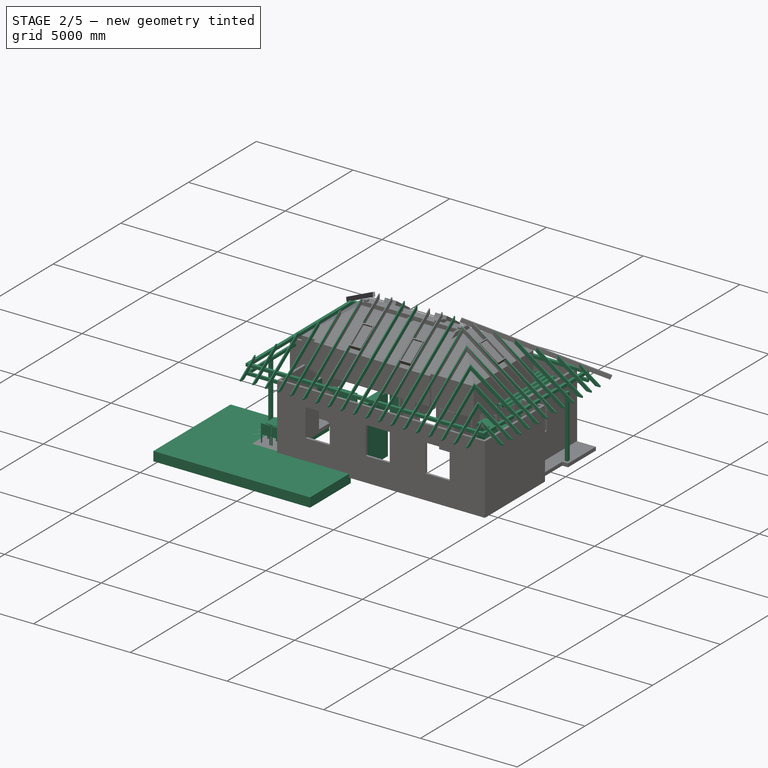
[diagram: stage 2 of 5 — iso view after this stage's code; geometry added in this stage tinted green]
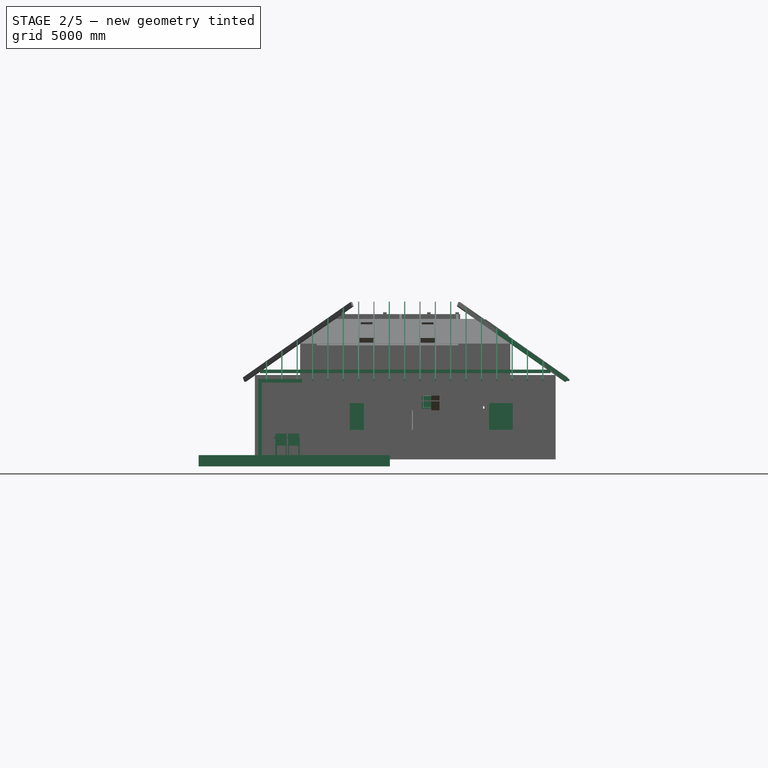
[diagram: stage 2 of 5 — front view after this stage's code; geometry added in this stage tinted green]
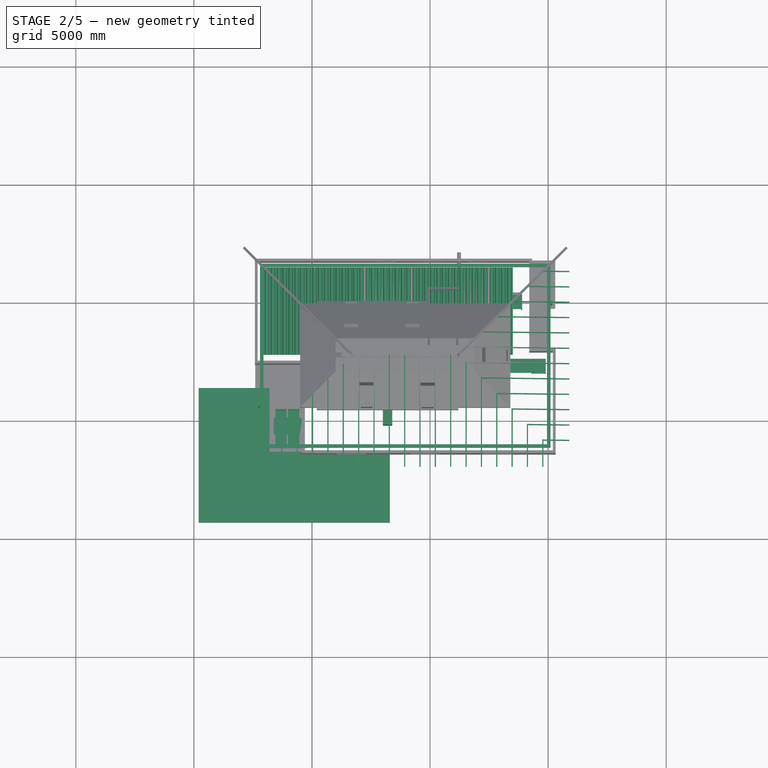
[diagram: stage 2 of 5 — top view after this stage's code; geometry added in this stage tinted green]
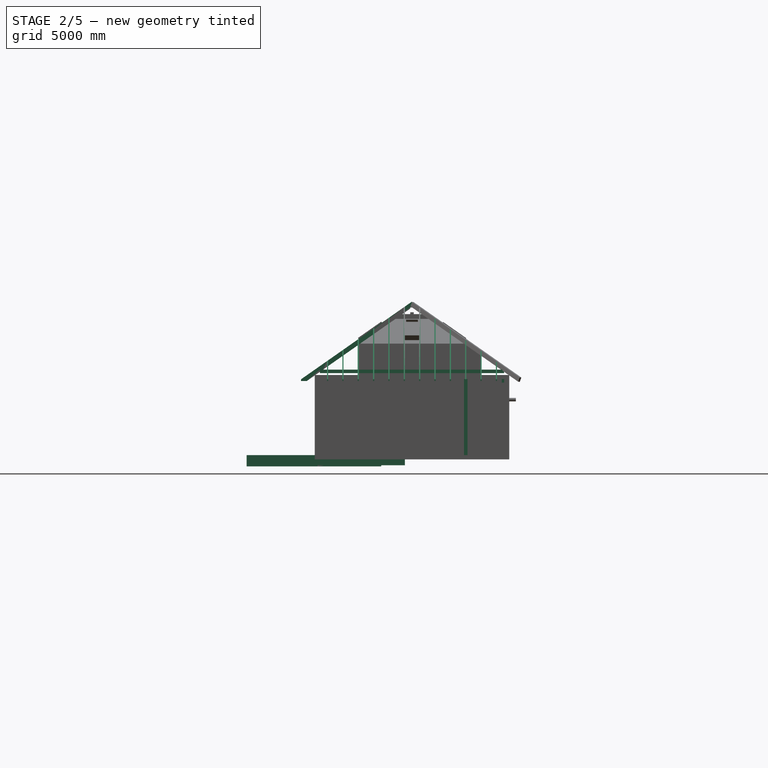
[diagram: stage 2 of 5 — right view after this stage's code; geometry added in this stage tinted green]
FEATURE [Part::Part2DObjectPython] Rectangle563  label="проём_056"  # Draft 2D object (typed FeaturePython)
  ChamferSize = 0
  Columns = 1
  FilletRadius = 0
  Height = 200
  Length = 1300
  MakeFace = true
  Placement = pos=(1450,-2400,0) rot=(0,0,1;0rad)
  Rows = 1
FEATURE [Part::Box] Box3116  label="шкаф 005"
  AttacherType = Attacher::AttachEngine3D
  Height = 2200
  Length = 2400
  Placement = pos=(1600,1400,0) rot=(0,0,-1;1.5708rad)
  Width = 600
FEATURE [Part::Part2DObjectPython] Rectangle695  label="кухня-столовая"  # Draft 2D object (typed FeaturePython)
  ChamferSize = 0
  Columns = 1
  FilletRadius = 0
  Height = 3600
  Length = 6200
  MakeFace = false
  Placement = pos=(0,-6000,0) rot=(0,0,1;0rad)
  Rows = 1
FEATURE [Part::Part2DObjectPython] Rectangle698  label="тамбур"  # Draft 2D object (typed FeaturePython)
  ChamferSize = 0
  Columns = 1
  FilletRadius = 0
  Height = 2500
  Length = 1400
  MakeFace = false
  Placement = pos=(7500,-2200,0) rot=(0,0,1;0rad)
  Rows = 1
FEATURE [Part::Part2DObjectPython] ShapeString009  label="надпись 010"  # Draft 2D object (typed FeaturePython)
  FontFile = <path>
  Placement = pos=(1289.89,-3270.66,0) rot=(0,0,1;0rad)
  Size = 100
  String = кухня-столовая 22.32 м2
  Tracking = 0
FEATURE [Part::Part2DObjectPython] ShapeString010  label="надпись 011"  # Draft 2D object (typed FeaturePython)
  FontFile = <path>
  Placement = pos=(-569.809,-1274.1,0) rot=(0,0,1;0rad)
  Size = 100
  String = спальня 15.96 м2
  Tracking = 0
FEATURE [Part::Part2DObjectPython] ShapeString011  label="надпись 012"  # Draft 2D object (typed FeaturePython)
  FontFile = <path>
  Placement = pos=(7860.62,-3382.88,0) rot=(0,0,1;0rad)
  Size = 100
  String = спальня 12.96 м2
  Tracking = 0
FEATURE [Part::Part2DObjectPython] ShapeString012  label="надпись 013"  # Draft 2D object (typed FeaturePython)
  FontFile = <path>
  Placement = pos=(4490.07,975.684,0) rot=(0,0,1;0rad)
  Size = 100
  String = лестница 4.32 м2
  Tracking = 0
FEATURE [Part::Part2DObjectPython] ShapeString013  label="надпись 014"  # Draft 2D object (typed FeaturePython)
  FontFile = <path>
  Placement = pos=(2728.79,-161.784,0) rot=(0,0,1;0rad)
  Size = 100
  String = С.У. 4.14 м2
  Tracking = 0
FEATURE [Part::Part2DObjectPython] ShapeString015  label="надпись 016"  # Draft 2D object (typed FeaturePython)
  FontFile = <path>
  Placement = pos=(7801,-1570.66,0) rot=(0,0,1;0rad)
  Size = 100
  String = Тамбур 3.5 м2
  Tracking = 0
FEATURE [Part::Part2DObjectPython] ShapeString016  label="надпись 017"  # Draft 2D object (typed FeaturePython)
  FontFile = <path>
  Placement = pos=(1172.82,-3928.35,0) rot=(0,0,1;0rad)
  Size = 100
  String = Всего внутри стен: 76.66 м2
  Tracking = 0
FEATURE [Part::Part2DObjectPython] Rectangle700  label="мауэрлат_001"  # Draft 2D object (typed FeaturePython)
  ChamferSize = 0
  Columns = 1
  FilletRadius = 0
  Height = 8000
  Length = 12500
  MakeFace = false
  Placement = pos=(-2300,-6300,0) rot=(0,0,1;0rad)
  Rows = 1
FEATURE [Part::FeaturePython] Wall088  label="мауэрлат 150х150"  # Arch/BIM object (typed FeaturePython)
  Align = 1
  Base = -> Rectangle700
  BlockHeight = 0
  BlockLength = 0
  CountBroken = 0
  CountEntire = 0
  Face = 0
  Height = 150
  HorizontalArea = 5.94e+06
  IfcRole = 156
  Joint = 0
  Length = 41000
  MakeBlocks = false
  MoveWithHost = false
  Normal = (0,0,0)
  Offset = 100
  OffsetFirst = 0
  OffsetSecond = 0
  PerimeterLength = 40200
  Placement = pos=(0,0,3470) rot=(0,0,1;0rad)
  VerticalArea = 11880000
  Width = 150
FEATURE [App::DocumentObjectGroup] Group103  label="нар.канализация"
  Group = -> [Wire153,Wire131,Line402,Circle004,Circle005,Circle001,Circle,Wire130,Wire127,Wire129,Line353,Line394]
FEATURE [Part::Part2DObjectPython] Rectangle921  label="вычитаемый_объём_массив_03"  # Draft 2D object (typed FeaturePython)
  ChamferSize = 0
  Columns = 1
  FilletRadius = 0
  Height = 5000
  Length = 600
  MakeFace = true
  Placement = pos=(3950,-2300,0) rot=(0,0,1;0rad)
  Rows = 1
FEATURE [Part::FeaturePython] Array243  label="вычитаемый_объём_массив_02"  # Draft array (typed FeaturePython)
  Angle = 360
  ArrayType = 0
  Axis = (0,0,1)
  Base = -> Rectangle921
  Center = (0,0,0)
  Fuse = false
  IntervalAxis = (0,0,0)
  IntervalX = (650,0,0)
  IntervalY = (0,1,0)
  IntervalZ = (0,0,1)
  NumberPolar = 1
  NumberX = 22
  NumberY = 1
  NumberZ = 1
  Placement = pos=(-7150,-9.1e-13,0) rot=(0,0,1;0rad)
FEATURE [Part::FeaturePython] Structure539  label="вычитаемый_объём_массив_01"  # Arch/BIM object (typed FeaturePython)
  Base = -> Array243
  FaceMaker = 0
  Height = 4500
  HorizontalArea = 0
  IfcRole = 0
  Length = 0
  MoveWithHost = false
  NodesOffset = 0
  Normal = (0,0,0)
  PerimeterLength = 0
  Placement = pos=(0,0,2500) rot=(0,0,1;0rad)
  VerticalArea = 0
  Width = 100
FEATURE [Part::Box] Box3519  label="шкаф 007"
  AttacherType = Attacher::AttachEngine3D
  Height = 500
  Length = 500
  Placement = pos=(1600,1350,0) rot=(0,0,-1;1.5708rad)
  Width = 550
FEATURE [Part::FeaturePython] Array278  # Draft array (typed FeaturePython)
  Angle = 360
  ArrayType = 0
  Axis = (0,0,1)
  Base = -> Box3519
  Center = (0,0,0)
  Fuse = false
  IntervalAxis = (0,0,0)
  IntervalX = (1,0,0)
  IntervalY = (0,1,0)
  IntervalZ = (0,0,550)
  NumberPolar = 4
  NumberX = 1
  NumberY = 1
  NumberZ = 4
FEATURE [Part::Part2DObjectPython] Wire251  # Draft 2D object (typed FeaturePython)
  ChamferSize = 0
  Closed = true
  End = (6200,-2300,0)
  FilletRadius = 0
  Length = 23176.5
  MakeFace = true
  Placement = pos=(7300,-600,0) rot=(0,0,1;0rad)
  Points = (3) [(3700,3100,0),(3700,-6500,0),(-1100,-1700,0)]
  Start = (11000,2500,0)
  Subdivisions = 0
FEATURE [Part::FeaturePython] Structure571  label="вычитаемый_объём_01"  # Arch/BIM object (typed FeaturePython)
  Base = -> Wire251
  FaceMaker = 0
  Height = 4000
  HorizontalArea = 23040000
  IfcRole = 0
  Length = 0
  MoveWithHost = false
  Nodes = (2) [(9576.04,-1900,0),(9576.04,-1900,3000)]
  NodesOffset = 0
  Normal = (0,0,1)
  PerimeterLength = 23176.5
  Placement = pos=(0,-9.09e-13,2714.53) rot=(0,0,1;0rad)
  VerticalArea = 9.27058e+07
  Width = 100
FEATURE [Part::Part2DObjectPython] Rectangle955  label="вычитаемый_объём_массив_004"  # Draft 2D object (typed FeaturePython)
  ChamferSize = 0
  Columns = 1
  FilletRadius = 0
  Height = 600
  Length = 5000
  MakeFace = true
  Placement = pos=(-3200,-2600,0) rot=(0,0,1;0rad)
  Rows = 1
FEATURE [Part::FeaturePython] Array288  label="вычитаемый_объём_массив_005"  # Draft array (typed FeaturePython)
  Angle = 360
  ArrayType = 0
  Axis = (0,0,1)
  Base = -> Rectangle955
  Center = (0,0,0)
  Fuse = false
  IntervalAxis = (0,0,0)
  IntervalX = (0,0,0)
  IntervalY = (0,650,0)
  IntervalZ = (0,0,1)
  NumberPolar = 1
  NumberX = 1
  NumberY = 15
  NumberZ = 1
  Placement = pos=(0,-4550,0) rot=(0,0,1;0rad)
FEATURE [Part::FeaturePython] Structure575  label="вычитаемый_объём_массив_006"  # Arch/BIM object (typed FeaturePython)
  Base = -> Array288
  FaceMaker = 0
  Height = 4500
  HorizontalArea = 3250000
  IfcRole = 0
  Length = 0
  MoveWithHost = false
  Nodes = (4) [(-875,-1900,0),(-225,-1900,0),(-225,3100,0),(-875,3100,0)]
  NodesOffset = 0
  Normal = (0,0,0)
  PerimeterLength = 11300
  Placement = pos=(0,0,2500) rot=(0,0,1;0rad)
  VerticalArea = 42940000
  Width = 100
FEATURE [App::FeaturePython] Dimension034  # Draft dimension (typed FeaturePython)
  Diameter = false
  Dimline = (10600,1400,0)
  Direction = (0,0,0)
  Distance = 1000
  End = (9000,400,0)
  Normal = (0,0,1)
  Start = (9000,1400,0)
FEATURE [Part::Part2DObjectPython] Wire256  label="стена наружная"  # Draft 2D object (typed FeaturePython)
  ChamferSize = 0
  Closed = true
  End = (9100,-900,0)
  FilletRadius = 0
  Length = 79600
  MakeFace = true
  Placement = pos=(10100,200,0) rot=(0,0,1;0rad)
  Points = (24) [(-780,-1100,0),(-780,1620,0),(-12520,1620,0),(-12520,-2820,0),(-10520,-2820,0),(-10520,-6620,0),(220,-6620,0),(220,-2180,0),(-780,-2180,0),+15 more]
  Start = (9320,-900,0)
  Subdivisions = 0
FEATURE [Part::Cut] Cut  label="шкаф-гардероб 001"
  Base = -> Box3116
  Tool = -> Array278
FEATURE [Part::Part2DObjectPython] Rectangle961  label="перегородка_005"  # Draft 2D object (typed FeaturePython)
  ChamferSize = 0
  Columns = 1
  FilletRadius = 0
  Height = 900
  Length = 100
  MakeFace = true
  Placement = pos=(6000,500,0) rot=(0,0,1;0rad)
  Rows = 1
FEATURE [Part::Part2DObjectPython] Wire257  label="стойка_ТВ"  # Draft 2D object (typed FeaturePython)
  ChamferSize = 0
  Closed = true
  End = (3000,-3800,0)
  FilletRadius = 0
  Length = 4400
  MakeFace = true
  Placement = pos=(2800,-3700,0) rot=(0,0,1;0rad)
  Points = (8) [(200,0,0),(600,0,0),(600,-1500,0),(200,-1500,0),(200,-1400,0),(500,-1400,0),(500,-100,0),(200,-100,0)]
  Start = (3000,-3700,0)
  Subdivisions = 0
FEATURE [Part::FeaturePython] Structure582  label="стойка_ТВ001"  # Arch/BIM object (typed FeaturePython)
  Base = -> Wire257
  FaceMaker = 0
  Height = 3000
  HorizontalArea = 210000
  IfcRole = 0
  Length = 0
  MoveWithHost = false
  Nodes = (2) [(-4700,-6400,0),(-4700,-6400,800)]
  NodesOffset = 0
  Normal = (0,0,1)
  PerimeterLength = 4400
  Placement = pos=(0,0,-180) rot=(0,0,1;0rad)
  VerticalArea = 13200000
  Width = 100
FEATURE [Part::Box] Box3531  label="тумба под ТВ 002"
  AttacherType = Attacher::AttachEngine3D
  Height = 750
  Length = 1300
  Placement = pos=(3000,-3800,2050) rot=(0,0,-1;1.5708rad)
  Width = 300
FEATURE [App::DocumentObjectGroup] Group015  label="кухня-гостиная"
  Group = -> [Structure,Structure185,BuildingPart065,Array021,Rectangle554,Loft,BuildingPart063,Box3142,Box3145,Box3144,Box3111,Box3530,Structure582,Box3531]
FEATURE [Part::Box] Box3532  label="тумбочка 006"
  AttacherType = Attacher::AttachEngine3D
  Height = 650
  Length = 400
  Placement = pos=(-1049.87,-2096.66,0) rot=(0,0,1;0rad)
  Width = 450
FEATURE [Part::Box] Box3533  label="тумба под ТВ 003"
  AttacherType = Attacher::AttachEngine3D
  Height = 550
  Length = 1300
  Placement = pos=(700,-1900,0) rot=(0,0,1;3.14159rad)
  Width = 300
FEATURE [Part::Box] Box3534  label="ТВ 55" 003"
  AttacherType = Attacher::AttachEngine3D
  Height = 750
  Length = 1250
  Placement = pos=(675,-2050,650) rot=(0,0,1;3.14159rad)
  Width = 90
FEATURE [Part::Part2DObjectPython] Rectangle962  label="плита_террасы_002"  # Draft 2D object (typed FeaturePython)
  ChamferSize = 0
  Columns = 1
  FilletRadius = 0
  Height = 3800
  Length = 2000
  MakeFace = false
  Placement = pos=(-2400,-6400,0) rot=(0,0,1;0rad)
  Rows = 1
FEATURE [Part::FeaturePython] Structure583  label="фундамент_плита_терассы"  # Arch/BIM object (typed FeaturePython)
  Base = -> Rectangle962
  FaceMaker = 0
  Height = 250
  HorizontalArea = 7.6e+06
  IfcRole = 0
  Length = 0
  MoveWithHost = false
  Nodes = (2) [(3875,3875,0),(3875,3875,350)]
  NodesOffset = 0
  Normal = (0,0,-1)
  PerimeterLength = 11600
  Placement = pos=(0,0,-180) rot=(0,0,1;0rad)
  VerticalArea = 2.9e+06
  Width = 100
FEATURE [Part::FeaturePython] Structure585  label="окно_мал_003"  # Arch/BIM object (typed FeaturePython)
  Base = -> Rectangle964
  FaceMaker = 0
  Height = 1250
  HorizontalArea = 70000
  IfcRole = 0
  Length = 0
  MoveWithHost = false
  Nodes = (2) [(-187.5,2950,0),(-187.5,2950,500)]
  NodesOffset = 0
  Normal = (0,0,0)
  PerimeterLength = 1100
  Placement = pos=(0,0,1320) rot=(0,0,1;0rad)
  VerticalArea = 1375000
  Width = 100
FEATURE [Part::Part2DObjectPython] Rectangle966  label="Rectangle953"  # Draft 2D object (typed FeaturePython)
  ChamferSize = 0
  Columns = 1
  FilletRadius = 0
  Height = 50
  Length = 100
  MakeFace = true
  Placement = pos=(-200,-3450,0) rot=(0,0,1;3.14159rad)
  Rows = 1
FEATURE [Part::Part2DObjectPython] Line757  # Draft 2D object (typed FeaturePython)
  ChamferSize = 0
  Closed = false
  End = (-250,-3500,0)
  FilletRadius = 0
  Length = 800
  MakeFace = true
  Placement = pos=(-450,-2900,0) rot=(0,0,1;3.14159rad)
  Points = (2) [(-200,-200,0),(-200,600,0)]
  Start = (-250,-2700,0)
  Subdivisions = 0
FEATURE [Part::Part2DObjectPython] Rectangle967  # Draft 2D object (typed FeaturePython)
  ChamferSize = 0
  Columns = 1
  FilletRadius = 0
  Height = 50
  Length = 100
  MakeFace = true
  Placement = pos=(-200,-2700,0) rot=(0,0,1;3.14159rad)
  Rows = 1
FEATURE [Part::Part2DObjectPython] Arc035  # Draft 2D object (typed FeaturePython)
  FirstAngle = -90
  LastAngle = 0
  MakeFace = false
  Placement = pos=(-300,-2750,0) rot=(0,0,-1;1.5708rad)
  Radius = 700
FEATURE [Part::Part2DObjectPython] Line758  # Draft 2D object (typed FeaturePython)
  ChamferSize = 0
  Closed = false
  End = (-300,-2750,0)
  FilletRadius = 0
  Length = 700
  MakeFace = false
  Placement = pos=(-1200,-2750,0) rot=(0,0,1;3.14159rad)
  Points = (2) [(-200,0,0),(-900,3.18323e-12,0)]
  Start = (-1000,-2750,0)
  Subdivisions = 0
FEATURE [Sketcher::SketchObject] Sketch203
  Placement = pos=(4650,1700,2570) rot=(-1,0,0;1.5708rad)
  sketch-geometry (16):
    g0: LineSegment StartX=0 StartY=0 StartZ=0 EndX=900 EndY=0 EndZ=0
    g1: LineSegment StartX=900 StartY=0 StartZ=0 EndX=900 EndY=600 EndZ=0
    g2: LineSegment StartX=900 StartY=600 StartZ=0 EndX=0 EndY=600 EndZ=0
    g3: LineSegment StartX=0 StartY=600 StartZ=0 EndX=0 EndY=0 EndZ=0
    g4: LineSegment StartX=50 StartY=50 StartZ=0 EndX=850 EndY=50 EndZ=0
    g5: LineSegment StartX=850 StartY=50 StartZ=0 EndX=850 EndY=550 EndZ=0
    g6: LineSegment StartX=850 StartY=550 StartZ=0 EndX=50 EndY=550 EndZ=0
    g7: LineSegment StartX=50 StartY=550 StartZ=0 EndX=50 EndY=50 EndZ=0
    g8: LineSegment StartX=55 StartY=55 StartZ=0 EndX=845 EndY=55 EndZ=0
    g9: LineSegment StartX=845 StartY=55 StartZ=0 EndX=845 EndY=545 EndZ=0
    g10: LineSegment StartX=845 StartY=545 StartZ=0 EndX=55 EndY=545 EndZ=0
    g11: LineSegment StartX=55 StartY=545 StartZ=0 EndX=55 EndY=55 EndZ=0
    g12: LineSegment StartX=105 StartY=105 StartZ=0 EndX=795 EndY=105 EndZ=0
    g13: LineSegment StartX=795 StartY=105 StartZ=0 EndX=795 EndY=495 EndZ=0
    g14: LineSegment StartX=795 StartY=495 StartZ=0 EndX=105 EndY=495 EndZ=0
    g15: LineSegment StartX=105 StartY=495 StartZ=0 EndX=105 EndY=105 EndZ=0
  constraints (47):
    c: Coincident(g0,g1)
    c: Coincident(g1,g2)
    c: Coincident(g2,g3)
    c: Coincident(g3,g0)
    c: Horizontal(g0)
    c: Horizontal(g2)
    c: Vertical(g1)
    c: Vertical(g3)
    c: Coincident(g4,g5)
    c: Coincident(g5,g6)
    c: Coincident(g6,g7)
    c: Coincident(g7,g4)
    c: Horizontal(g4)
    c: Horizontal(g6)
    c: Vertical(g5)
    c: Vertical(g7)
    c: DistanceY(g1) = 600  'Height'
    c: DistanceX(g0) = 900  'Width'
    c: DistanceY(g6,g2) = 50  'Frame1'
    c: DistanceX(g2,g6) = 50  'Frame2'
    c: DistanceX(g4,g0) = 50  'Frame3'
    c: DistanceY(g0,g4) = 50  'Frame4'
    c: Coincident(g0,g-1)
    c: Coincident(g8,g9)
    c: Coincident(g9,g10)
    c: Coincident(g10,g11)
    c: Coincident(g11,g8)
    c: Horizontal(g8)
    c: Horizontal(g10)
    c: Vertical(g9)
    c: Vertical(g11)
    c: Coincident(g12,g13)
    c: Coincident(g13,g14)
    c: Coincident(g14,g15)
    c: Coincident(g15,g12)
    c: Horizontal(g12)
    c: Horizontal(g14)
    c: Vertical(g13)
    c: Vertical(g15)
    c: DistanceX(g8,g12) = 50  'Frame5'
    c: DistanceY(g8,g12) = 50  'Frame6'
    c: DistanceX(g14,g10) = 50  'Frame8'
    c: DistanceY(g14,g10) = 50  'Frame7'
    c: DistanceX(g4,g8) = 5
    c: DistanceY(g4,g8) = 5
    c: DistanceX(g10,g6) = 5
    c: DistanceY(g10,g6) = 5
FEATURE [Part::FeaturePython] Window017  label="окно 90х60 #003"  # Arch/BIM object (typed FeaturePython)
  Area = 540000
  Base = -> Sketch203
  Frame = 50
  Height = 600
  HoleDepth = 0
  HoleWire = 0
  HorizontalArea = 0
  IfcRole = 160
  LouvreSpacing = 0
  LouvreWidth = 0
  MoveWithHost = true
  Normal = (0,-1,-2e-16)
  Offset = 100
  Opening = 0
  PerimeterLength = 0
  Preset = 2
  SymbolElevation = false
  SymbolPlan = false
  VerticalArea = 0
  Width = 900
  WindowParts = OuterFrame | Frame | Wire0,Wire1 | 50.0+V | 0.00+V | InnerFrame | Frame | Wire2,Wire3 | 50.0 | 25.0+V | InnerGlass | Glass panel | Wire3 | 5.0 | 50.0+V
FEATURE [Sketcher::SketchObject] Sketch204  label="профиль Н114-751"
  MapMode = 5
  Placement = pos=(-1646.5,-2250,2877) rot=(0,0.707107,0.707107;3.14159rad)
  sketch-geometry (32):
    g0: LineSegment [constr] StartX=-403.5 StartY=-57 StartZ=0 EndX=403.5 EndY=-57 EndZ=0
    g1: LineSegment [constr] StartX=403.5 StartY=-57 StartZ=0 EndX=403.5 EndY=57 EndZ=0
    g2: LineSegment [constr] StartX=403.5 StartY=57 StartZ=0 EndX=-403.5 EndY=57 EndZ=0
    g3: LineSegment [constr] StartX=-403.5 StartY=57 StartZ=0 EndX=-403.5 EndY=-57 EndZ=0
    g4: LineSegment StartX=-403.5 StartY=-57 StartZ=0 EndX=-403.5 EndY=-56 EndZ=0
    g5: LineSegment StartX=-403.5 StartY=-56 StartZ=0 EndX=-349.5 EndY=-56 EndZ=0
    g6: LineSegment StartX=-349.5 StartY=-56 StartZ=0 EndX=-322 EndY=57 EndZ=0
    g7: LineSegment StartX=-322 StartY=57 StartZ=0 EndX=-196 EndY=57 EndZ=0
    g8: LineSegment StartX=-196 StartY=57 StartZ=0 EndX=-168.5 EndY=-56 EndZ=0
    g9: LineSegment StartX=-168.5 StartY=-56 StartZ=0 EndX=-90.5 EndY=-56 EndZ=0
    g10: LineSegment StartX=-90.5 StartY=-56 StartZ=0 EndX=-63 EndY=57 EndZ=0
    g11: LineSegment StartX=-63 StartY=57 StartZ=0 EndX=63 EndY=57 EndZ=0
    g12: LineSegment StartX=63 StartY=57 StartZ=0 EndX=90.5 EndY=-56 EndZ=0
    g13: LineSegment StartX=90.5 StartY=-56 StartZ=0 EndX=168.5 EndY=-56 EndZ=0
    g14: LineSegment StartX=168.5 StartY=-56 StartZ=0 EndX=196 EndY=57 EndZ=0
    g15: LineSegment StartX=196 StartY=57 StartZ=0 EndX=322 EndY=57 EndZ=0
    g16: LineSegment StartX=322 StartY=57 StartZ=0 EndX=349.5 EndY=-56 EndZ=0
    g17: LineSegment StartX=349.5 StartY=-56 StartZ=0 EndX=403.5 EndY=-56 EndZ=0
    g18: LineSegment StartX=403.5 StartY=-56 StartZ=0 EndX=403.5 EndY=-57 EndZ=0
    g19: LineSegment StartX=403.5 StartY=-57 StartZ=0 EndX=348.5 EndY=-57 EndZ=0
    g20: LineSegment StartX=348.5 StartY=-57 StartZ=0 EndX=321 EndY=56 EndZ=0
    g21: LineSegment StartX=321 StartY=56 StartZ=0 EndX=197 EndY=56 EndZ=0
    g22: LineSegment StartX=197 StartY=56 StartZ=0 EndX=169.5 EndY=-57 EndZ=0
    g23: LineSegment StartX=169.5 StartY=-57 StartZ=0 EndX=89.5 EndY=-57 EndZ=0
    g24: LineSegment StartX=89.5 StartY=-57 StartZ=0 EndX=62 EndY=56 EndZ=0
    g25: LineSegment StartX=62 StartY=56 StartZ=0 EndX=-62 EndY=56 EndZ=0
    g26: LineSegment StartX=-62 StartY=56 StartZ=0 EndX=-89.5 EndY=-57 EndZ=0
    g27: LineSegment StartX=-89.5 StartY=-57 StartZ=0 EndX=-169.5 EndY=-57 EndZ=0
    g28: LineSegment StartX=-169.5 StartY=-57 StartZ=0 EndX=-197 EndY=56 EndZ=0
    g29: LineSegment StartX=-197 StartY=56 StartZ=0 EndX=-321 EndY=56 EndZ=0
    g30: LineSegment StartX=-321 StartY=56 StartZ=0 EndX=-348.5 EndY=-57 EndZ=0
    g31: LineSegment StartX=-348.5 StartY=-57 StartZ=0 EndX=-403.5 EndY=-57 EndZ=0
  constraints (89):
    c: Coincident(g0,g1)
    c: Coincident(g1,g2)
    c: Coincident(g2,g3)
    c: Coincident(g3,g0)
    c: Horizontal(g2)
    c: Vertical(g3)
    c: DistanceX(g2,g2) = 807
    c: DistanceY(g3,g3) = 114
    c: Symmetric(g0,g0,g-2)
    c: Symmetric(g1,g0,g-1)
    c: Coincident(g0,g4)
    c: PointOnObject(g4,g3)
    c: Coincident(g4,g5)
    c: Horizontal(g5)
    c: Coincident(g5,g6)
    c: PointOnObject(g6,g2)
    c: Coincident(g6,g7)
    c: Horizontal(g7)
    c: Coincident(g7,g8)
    c: Coincident(g8,g9)
    c: Horizontal(g9)
    c: Coincident(g9,g10)
    c: PointOnObject(g10,g2)
    c: Coincident(g10,g11)
    c: Coincident(g11,g12)
    c: Coincident(g12,g13)
    c: Horizontal(g13)
    c: Coincident(g13,g14)
    c: Coincident(g14,g15)
    c: PointOnObject(g15,g2)
    c: Coincident(g15,g16)
    c: Coincident(g16,g17)
    c: PointOnObject(g17,g1)
    c: Horizontal(g17)
    c: Coincident(g17,g18)
    c: Coincident(g18,g0)
    c: Coincident(g18,g19)
    c: PointOnObject(g19,g0)
    c: Coincident(g19,g20)
    c: Coincident(g20,g21)
    c: Horizontal(g21)
    c: Coincident(g21,g22)
    c: PointOnObject(g22,g0)
    c: Coincident(g22,g23)
    c: PointOnObject(g23,g0)
    c: Coincident(g23,g24)
    c: Coincident(g24,g25)
    c: Coincident(g25,g26)
    c: Coincident(g26,g27)
    c: PointOnObject(g27,g0)
    c: Coincident(g27,g28)
    c: Coincident(g28,g29)
    c: Horizontal(g29)
    c: Coincident(g29,g30)
    c: PointOnObject(g30,g0)
    c: Coincident(g30,g31)
    c: Coincident(g31,g4)
    c: DistanceX(g7,g7) = 126
    c: Equal(g11,g7)
    c: Equal(g11,g15)
    c: Equal(g15,g7)
    c: Equal(g27,g23)
    c: DistanceX(g27,g27) = 80
    c: Parallel(g28,g8)
    c: Parallel(g10,g26)
    c: Equal(g24,g12)
    c: Parallel(g14,g22)
    c: Parallel(g20,g16)
    c: DistanceX(g9,g9) = 78
    c: Equal(g9,g13)
    c: Parallel(g24,g12)
    c: DistanceY(g27,g8) = 1
    c: DistanceY(g23,g12) = 1
    c: DistanceY(g18,g17) = 1
    c: DistanceY(g4,g4) = 1
    c: DistanceY(g29,g6) = 1
    c: Parallel(g6,g30)
    c: DistanceY(g21,g14) = 1
    c: Parallel(g30,g10)
    c: Parallel(g10,g14)
    c: Parallel(g12,g16)
    c: DistanceX(g29,g29) = 124
    c: Equal(g29,g25)
    c: Equal(g25,g21)
    c: Symmetric(g10,g11,g-2)
    c: Symmetric(g26,g23,g-2)
    c: Symmetric(g25,g24,g-2)
    c: Symmetric(g7,g14,g-2)
    c: DistanceX(g31,g31) = 55
FEATURE [Part::FeaturePython] Structure586  label="профнастил Н114-751"  # Arch/BIM object (typed FeaturePython)
  Base = -> Sketch204
  FaceMaker = 0
  Height = 3700
  HorizontalArea = 0
  IfcRole = 0
  Length = 0
  MoveWithHost = false
  Nodes = (2) [(-100,-5646.5,2631.11),(-100,-5646.5,-568.891)]
  NodesOffset = 0
  Normal = (0,1,0)
  PerimeterLength = 0
  VerticalArea = 0
  Width = 100
FEATURE [Part::FeaturePython] Array289  label="профнастил Н114-750-002"  # Draft array (typed FeaturePython)
  Angle = 360
  ArrayType = 0
  Axis = (0,0,1)
  Base = -> Structure586
  Center = (0,0,0)
  Fuse = false
  IntervalAxis = (0,0,0)
  IntervalX = (750,0,0)
  IntervalY = (0,0,0)
  IntervalZ = (0,0,1)
  NumberPolar = 1
  NumberX = 14
  NumberY = 1
  NumberZ = 1
FEATURE [App::GeometryPython] BuildingPart074  label="профнастил Н114-750 перекрытие 28 листов"  # Arch/BIM object (typed FeaturePython)
  Area = 0
  Group = -> [Array282,Array289]
  Height = 0
  IfcRole = 0
  LevelOffset = 0
FEATURE [App::GeometryPython] BuildingPart035  label="Перекрытие_чердачное"  # Arch/BIM object (typed FeaturePython)
  Area = 0
  Group = -> [Wall078,Structure361,Structure362,Wall091,Structure360,Wall094,BuildingPart074]
  Height = 0
  IfcRole = 0
  LevelOffset = 0
FEATURE [App::FeaturePython] Dimension039  # Draft dimension (typed FeaturePython)
  Diameter = false
  Dimline = (7600,2000,0)
  Direction = (0,0,0)
  Distance = 1400
  End = (8900,300,0)
  Normal = (0,0,1)
  Start = (7500,300,0)
FEATURE [App::FeaturePython] Dimension040  # Draft dimension (typed FeaturePython)
  Diameter = false
  Dimline = (-2300,2600,0)
  Direction = (0,0,0)
  Distance = 12700
  End = (10300,1800,0)
  Normal = (0,0,1)
  Start = (-2400,1800,0)
FEATURE [App::FeaturePython] Dimension041  # Draft dimension (typed FeaturePython)
  Diameter = false
  Dimline = (10600,300,0)
  Direction = (0,0,0)
  Distance = 2500
  End = (9000,-2200,0)
  Normal = (0,0,1)
  Start = (9000,300,0)
FEATURE [App::FeaturePython] Dimension042  # Draft dimension (typed FeaturePython)
  Diameter = false
  Dimline = (10600,-2400,0)
  Direction = (0,0,0)
  Distance = 3600
  End = (10000,-6000,0)
  Normal = (0,0,1)
  Start = (10000,-2400,0)
FEATURE [App::FeaturePython] Dimension043  # Draft dimension (typed FeaturePython)
  Diameter = false
  Dimline = (9300,2000,0)
  Direction = (0,0,0)
  Distance = 1000
  End = (10300,1800,0)
  Normal = (0,0,1)
  Start = (9300,1800,0)
FEATURE [App::FeaturePython] Dimension044  # Draft dimension (typed FeaturePython)
  Diameter = false
  Dimline = (-400,-6700,0)
  Direction = (0,0,0)
  Distance = 2000
  End = (-400,-6400,0)
  Normal = (0,0,1)
  Start = (-2400,-6400,0)
FEATURE [App::DocumentObjectGroup] Group068  label="размеры"
  Group = -> [Dimension016,Dimension017,Dimension022,Dimension023,Dimension024,Dimension025,Dimension026,Dimension032,Dimension034,Dimension035,Dimension036,Dimension037,Dimension038,Dimension039,Dimension040,Dimension041,Dimension042,Dimension043,Dimension044]
FEATURE [Part::FeaturePython] Structure587  label="прогон 019"  # Arch/BIM object (typed FeaturePython)
  FaceMaker = 0
  Height = 150
  HorizontalArea = 380000
  IfcRole = 8
  Length = 3800
  MoveWithHost = false
  Nodes = (2) [(0,0,2.77556e-16),(0,0,3800)]
  NodesOffset = 0
  Normal = (0,0,0)
  PerimeterLength = 7800
  Placement = pos=(-2150,-6200,3145) rot=(0,0,1;1.5708rad)
  VerticalArea = 1170000
  Width = 100
FEATURE [Part::FeaturePython] Structure588  label="прогон 020"  # Arch/BIM object (typed FeaturePython)
  FaceMaker = 0
  Height = 150
  HorizontalArea = 200000
  IfcRole = 8
  Length = 2000
  MoveWithHost = false
  Nodes = (2) [(0,0,2.77556e-16),(0,0,2000)]
  NodesOffset = 0
  Normal = (0,0,0)
  PerimeterLength = 4200
  Placement = pos=(-2200,-6150,3145) rot=(0,0,1;0rad)
  VerticalArea = 630000
  Width = 100
FEATURE [Part::FeaturePython] Structure589  label="прогон 021"  # Arch/BIM object (typed FeaturePython)
  FaceMaker = 0
  Height = 150
  HorizontalArea = 100000
  IfcRole = 8
  Length = 1000
  MoveWithHost = false
  Nodes = (2) [(0,0,2.77556e-16),(0,0,1000)]
  NodesOffset = 0
  Normal = (0,0,0)
  PerimeterLength = 2200
  Placement = pos=(9100,1550,3145) rot=(0,0,1;0rad)
  VerticalArea = 330000
  Width = 100
FEATURE [Part::Box] Box3552  label="ножка053"
  AttacherType = Attacher::AttachEngine3D
  Height = 400
  Length = 40
  Placement = pos=(-537.775,-5020.02,0) rot=(0,0,1;1.5708rad)
  Width = 40
FEATURE [Part::Box] Box3553  label="ножка054"
  AttacherType = Attacher::AttachEngine3D
  Height = 400
  Length = 40
  Placement = pos=(-537.775,-4540,0) rot=(0,0,1;1.5708rad)
  Width = 40
FEATURE [Part::Box] Box3554  label="ножка055"
  AttacherType = Attacher::AttachEngine3D
  Height = 400
  Length = 40
  Placement = pos=(-977.775,-4540,0) rot=(0,0,1;1.5708rad)
  Width = 40
FEATURE [Part::Box] Box3555  label="сиденье007"
  AttacherType = Attacher::AttachEngine3D
  Height = 50
  Length = 520
  Placement = pos=(-537.775,-5020,400) rot=(0,0,1;1.5708rad)
  Width = 480
FEATURE [Part::Box] Box3556  label="ножка056"
  AttacherType = Attacher::AttachEngine3D
  Height = 400
  Length = 40
  Placement = pos=(-977.775,-5020,0) rot=(0,0,1;1.5708rad)
  Width = 40
FEATURE [Part::Box] Box3557  label="спинка007"
  AttacherType = Attacher::AttachEngine3D
  Height = 510
  Length = 50
  Placement = pos=(-537.775,-4550,400) rot=(0,0,1;1.5708rad)
  Width = 480
FEATURE [Part::MultiFuse] Fusion020  label="стул008"
  Shapes = -> [Box3552,Box3553,Box3554,Box3555,Box3556,Box3557]
FEATURE [Part::Box] Box3558  label="сиденье008"
  AttacherType = Attacher::AttachEngine3D
  Height = 50
  Length = 520
  Placement = pos=(-1017.78,-5480,400) rot=(0,0,-1;1.5708rad)
  Width = 480
FEATURE [Part::Box] Box3559  label="ножка057"
  AttacherType = Attacher::AttachEngine3D
  Height = 400
  Length = 40
  Placement = pos=(-577.781,-5960,0) rot=(0,0,-1;1.5708rad)
  Width = 40
FEATURE [Part::Box] Box3560  label="ножка058"
  AttacherType = Attacher::AttachEngine3D
  Height = 400
  Length = 40
  Placement = pos=(-1017.78,-5479.98,0) rot=(0,0,-1;1.5708rad)
  Width = 40
FEATURE [Part::Box] Box3561  label="ножка059"
  AttacherType = Attacher::AttachEngine3D
  Height = 400
  Length = 40
  Placement = pos=(-1017.78,-5960,0) rot=(0,0,-1;1.5708rad)
  Width = 40
FEATURE [Part::Box] Box3562  label="ножка060"
  AttacherType = Attacher::AttachEngine3D
  Height = 400
  Length = 40
  Placement = pos=(-577.781,-5480,0) rot=(0,0,-1;1.5708rad)
  Width = 40
FEATURE [Part::Box] Box3563  label="спинка008"
  AttacherType = Attacher::AttachEngine3D
  Height = 510
  Length = 50
  Placement = pos=(-1017.78,-5950,400) rot=(0,0,-1;1.5708rad)
  Width = 480
FEATURE [Part::MultiFuse] Fusion019  label="стул007"
  Shapes = -> [Box3560,Box3561,Box3559,Box3558,Box3562,Box3563]
FEATURE [Part::Box] Box3564  label="ножка061"
  AttacherType = Attacher::AttachEngine3D
  Height = 720
  Length = 40
  Placement = pos=(-520,-5413.93,0) rot=(0,0,1;3.14159rad)
  Width = 40
FEATURE [Part::Box] Box3565  label="ножка062"
  AttacherType = Attacher::AttachEngine3D
  Height = 720
  Length = 40
  Placement = pos=(-1480,-5413.93,0) rot=(0,0,1;3.14159rad)
  Width = 40
FEATURE [Part::Box] Box3566  label="ножка063"
  AttacherType = Attacher::AttachEngine3D
  Height = 720
  Length = 40
  Placement = pos=(-1480,-5003.93,0) rot=(0,0,1;3.14159rad)
  Width = 40
FEATURE [Part::Box] Box3567  label="ножка064"
  AttacherType = Attacher::AttachEngine3D
  Height = 720
  Length = 40
  Placement = pos=(-519.987,-5003.94,0) rot=(0,0,1;3.14159rad)
  Width = 40
FEATURE [Part::Box] Box3568  label="столешница008"
  AttacherType = Attacher::AttachEngine3D
  Height = 30
  Length = 1200
  Placement = pos=(-420,-4853.93,720) rot=(0,0,1;3.14159rad)
  Width = 750
FEATURE [Part::Fillet] Fillet004
  Base = -> Box3568
  Edges = 4 edges r=100: [Edge1,Edge3,Edge5,Edge7]
FEATURE [Part::MultiFuse] Fusion021  label="стол террасса"
  Shapes = -> [Box3567,Box3564,Box3565,Box3566,Fillet004]
FEATURE [Part::Part2DObjectPython] Wire259  label="открытая терраса"  # Draft 2D object (typed FeaturePython)
  ChamferSize = 0
  Closed = true
  End = (-1800,-6300,0)
  FilletRadius = 0
  Length = 27600
  MakeFace = true
  Placement = pos=(-1800,-3900,0) rot=(0,0,1;0rad)
  Points = (6) [(2.04636e-12,300,0),(-3000,300,0),(-3000,-5400,0),(5100,-5400,0),(5100,-2400,0),(0,-2400,0)]
  Start = (-1800,-3600,0)
  Subdivisions = 0
FEATURE [Part::FeaturePython] Structure592  label="открытая терраса001"  # Arch/BIM object (typed FeaturePython)
  Base = -> Wire259
  FaceMaker = 0
  Height = 480
  HorizontalArea = 3.24e+07
  IfcRole = 0
  Length = 0
  MoveWithHost = false
  Nodes = (2) [(-1387.5,-7087.5,0),(-1387.5,-7087.5,-480)]
  NodesOffset = 0
  Normal = (0,0,-1)
  PerimeterLength = 27600
  VerticalArea = 1.3248e+07
  Width = 100
FEATURE [Part::Part2DObjectPython] Wire260  label="стропило_001"  # Draft 2D object (typed FeaturePython)
  ChamferSize = 0
  Closed = true
  End = (0,-2375,5094.56)
  FilletRadius = 0
  Length = 10429.8
  MakeFace = true
  Placement = pos=(0,-2300,5094.56) rot=(0.57735,0.57735,0.57735;2.0944rad)
  Points = (10) [(0,0,0),(-2.72848e-12,220.676,0),(-4600,-1924.34,0),(-4600,-1944.56,0),(-4170.11,-1944.56,0),(-3850,-1795.28,0),(-3850,-1724.56,0),+3 more]
  Start = (0,-2300,5094.56)
  Subdivisions = 0
  Support = -> [Wall088]
FEATURE [Part::Mirroring] mirror014  label="Mirror of вычитаемый_объём_01"
  Base = (4250,-2300,0)
  Normal = (-1,2e-16,0)
  Placement = pos=(-600,4.55e-13,0) rot=(0,0,1;0rad)
  Source = -> Structure571
FEATURE [Part::Box] Box3569  label="шкаф 017"
  AttacherType = Attacher::AttachEngine3D
  Height = 2150
  Length = 1750
  Placement = pos=(1600,800,0) rot=(0,0,-1;1.5708rad)
  Width = 550
FEATURE [Part::Cut] Cut005  label="шкаф-гардероб 004"
  Base = -> Cut
  Tool = -> Box3569
FEATURE [App::DocumentObjectGroup] ____________  label="спальня  побольше"
  Group = -> [Group038,Box3095,Box3096,Equipment010,Box3532,Box3534,Box3533,Cut005]
FEATURE [Part::Box] Box3570  label="шкаф 018"
  AttacherType = Attacher::AttachEngine3D
  Height = 2150
  Length = 750
  Placement = pos=(8100,-300,0) rot=(0,0,1;0rad)
  Width = 550
FEATURE [Part::Box] Box3571  label="шкаф 019"
  AttacherType = Attacher::AttachEngine3D
  Height = 2200
  Length = 1400
  Placement = pos=(7500,-300,0) rot=(0,0,1;0rad)
  Width = 600
FEATURE [Part::Box] Box3572  label="шкаф 020"
  AttacherType = Attacher::AttachEngine3D
  Height = 500
  Length = 500
  Placement = pos=(7550,-300,0) rot=(0,0,1;0rad)
  Width = 550
FEATURE [Part::FeaturePython] Array290  # Draft array (typed FeaturePython)
  Angle = 360
  ArrayType = 0
  Axis = (0,0,1)
  Base = -> Box3572
  Center = (0,0,0)
  Fuse = false
  IntervalAxis = (0,0,0)
  IntervalX = (1,0,0)
  IntervalY = (0,1,0)
  IntervalZ = (0,0,550)
  NumberPolar = 4
  NumberX = 1
  NumberY = 1
  NumberZ = 4
FEATURE [Part::Cut] Cut007  label="шкаф-гардероб 006"
  Base = -> Box3571
  Tool = -> Array290
FEATURE [Part::Cut] Cut006  label="шкаф-гардероб 005"
  Base = -> Cut007
  Tool = -> Box3570
FEATURE [App::DocumentObjectGroup] Group069  label="тамбур и прихожая"
  Group = -> [Box3526,Cut006]
FEATURE [Part::Box] Box3573  label="шкаф 021"
  AttacherType = Attacher::AttachEngine3D
  Height = 2200
  Length = 2400
  Placement = pos=(7500,-3000,0) rot=(0,0,1;0rad)
  Width = 600
FEATURE [Part::Box] Box3574  label="шкаф 022"
  AttacherType = Attacher::AttachEngine3D
  Height = 500
  Length = 500
  Placement = pos=(9350,-3000,0) rot=(0,0,1;0rad)
  Width = 550
FEATURE [Part::FeaturePython] Array291  # Draft array (typed FeaturePython)
  Angle = 360
  ArrayType = 0
  Axis = (0,0,1)
  Base = -> Box3574
  Center = (0,0,0)
  Fuse = false
  IntervalAxis = (0,0,0)
  IntervalX = (1,0,0)
  IntervalY = (0,1,0)
  IntervalZ = (0,0,550)
  NumberPolar = 4
  NumberX = 1
  NumberY = 1
  NumberZ = 4
FEATURE [Part::Cut] Cut008  label="шкаф-гардероб 007"
  Base = -> Box3573
  Tool = -> Array291
FEATURE [Part::Box] Box3575  label="шкаф 023"
  AttacherType = Attacher::AttachEngine3D
  Height = 2150
  Length = 1750
  Placement = pos=(7550,-3000,0) rot=(0,0,1;0rad)
  Width = 550
FEATURE [Part::Cut] Cut009  label="шкаф-гардероб 008"
  Base = -> Cut008
  Tool = -> Box3575
FEATURE [App::DocumentObjectGroup] ____________001  label="спальня  поменьше"
  Group = -> [Box3097,Extrude037,Extrude034,Extrude054,Box3515,Cut009]
FEATURE [App::DocumentObjectGroup] Group039  label="спальни"
  Group = -> [____________,____________001]
FEATURE [Sketcher::SketchObject] Sketch205  label="душевой угол 90х90"
  Placement = pos=(3700,-200,0) rot=(0,0,1;0rad)
  sketch-geometry (10):
    g0: LineSegment StartX=-900 StartY=0 StartZ=0 EndX=0 EndY=0 EndZ=0
    g1: LineSegment StartX=0 StartY=0 StartZ=0 EndX=0 EndY=900 EndZ=0
    g2: LineSegment StartX=0 StartY=900 StartZ=0 EndX=-330 EndY=900 EndZ=0
    g3: LineSegment StartX=-900 StartY=0 StartZ=0 EndX=-900 EndY=330 EndZ=0
    g4: ArcOfCircle CenterX=-330 CenterY=330 CenterZ=0 NormalX=0 NormalY=0 NormalZ=1 AngleXU=0 Radius=570 StartAngle=1.5708 EndAngle=3.14159
    g5: ArcOfCircle CenterX=-330 CenterY=330 CenterZ=0 NormalX=0 NormalY=0 NormalZ=1 AngleXU=0 Radius=520 StartAngle=1.5708 EndAngle=3.14159
    g6: LineSegment StartX=-50 StartY=850 StartZ=0 EndX=-330 EndY=850 EndZ=0
    g7: LineSegment StartX=-50 StartY=50 StartZ=0 EndX=-50 EndY=850 EndZ=0
    g8: LineSegment StartX=-850 StartY=50 StartZ=0 EndX=-50 EndY=50 EndZ=0
    g9: LineSegment StartX=-850 StartY=50 StartZ=0 EndX=-850 EndY=330 EndZ=0
  constraints (30):
    c: Horizontal(g0)
    c: Coincident(g0,g1)
    c: Vertical(g1)
    c: Coincident(g1,g2)
    c: Coincident(g3,g0)
    c: Vertical(g3)
    c: Coincident(g4,g3)
    c: Horizontal(g2)
    c: Equal(g3,g2)
    c: Equal(g0,g1)
    c: Coincident(g2,g4)
    c: Distance(g0) = 900
    c: Coincident(g-1,g0)
    c: DistanceX(g4,g0) = 330
    c: Horizontal(g8)
    c: Coincident(g8,g7)
    c: Vertical(g7)
    c: Coincident(g7,g6)
    c: Coincident(g9,g8)
    c: Vertical(g9)
    c: Coincident(g5,g9)
    c: Horizontal(g6)
    c: Equal(g9,g6)
    c: Equal(g8,g7)
    c: Coincident(g6,g5)
    c: DistanceX(g2,g1) = 330
    c: DistanceY(g0,g8) = 50
    c: DistanceX(g0,g8) = 50
    c: Coincident(g5,g4)
    c: DistanceX(g5,g1) = 330
FEATURE [Sketcher::SketchObject] Sketch206  label="раковина 55х30"
  Placement = pos=(2775,-200,0) rot=(0,0,1;0rad)
  sketch-geometry (4):
    g0: LineSegment StartX=-550 StartY=250 StartZ=0 EndX=-550 EndY=0 EndZ=0
    g1: LineSegment StartX=-550 StartY=0 StartZ=0 EndX=0 EndY=0 EndZ=0
    g2: LineSegment StartX=0 StartY=0 StartZ=0 EndX=0 EndY=250 EndZ=0
    g3: ArcOfCircle CenterX=-275 CenterY=-447.764 CenterZ=0 NormalX=0 NormalY=0 NormalZ=1 AngleXU=0 Radius=750 StartAngle=1.19537 EndAngle=1.94622
  constraints (12):
    c: Vertical(g0)
    c: Coincident(g0,g1)
    c: Horizontal(g1)
    c: Coincident(g1,g2)
    c: Vertical(g2)
    c: Coincident(g3,g0)
    c: Coincident(g3,g2)
    c: Distance(g1) = 550
    c: Distance(g0) = 250
    c: Coincident(g1,g-1)
    c: Equal(g0,g2)
    c: Radius(g3) = 750
FEATURE [Sketcher::SketchObject] Sketch207  label="унитаз 36х60"
  Placement = pos=(3700,870,0) rot=(0,0,1;0rad)
  sketch-geometry (9):
    g0: LineSegment StartX=-420 StartY=360 StartZ=0 EndX=0 EndY=360 EndZ=0
    g1: LineSegment StartX=-420 StartY=0 StartZ=0 EndX=0 EndY=0 EndZ=0
    g2: LineSegment StartX=0 StartY=0 StartZ=0 EndX=0 EndY=360 EndZ=0
    g3: ArcOfCircle CenterX=-420 CenterY=180 CenterZ=0 NormalX=0 NormalY=0 NormalZ=1 AngleXU=0 Radius=180 StartAngle=1.5708 EndAngle=4.71239
    g4: Circle CenterX=-420 CenterY=180 CenterZ=0 NormalX=0 NormalY=0 NormalZ=1 AngleXU=0 Radius=125
    g5: LineSegment StartX=0 StartY=360 StartZ=0 EndX=-185 EndY=360 EndZ=0
    g6: LineSegment StartX=-185 StartY=360 StartZ=0 EndX=-185 EndY=0 EndZ=0
    g7: LineSegment StartX=-185 StartY=0 StartZ=0 EndX=0 EndY=0 EndZ=0
    g8: LineSegment StartX=0 StartY=0 StartZ=0 EndX=0 EndY=360 EndZ=0
  constraints (25):
    c: Coincident(g0,g2)
    c: Coincident(g1,g2)
    c: Horizontal(g0)
    c: Vertical(g2)
    c: Horizontal(g1)
    c: Equal(g0,g1)
    c: Distance(g2) = 360
    c: Coincident(g3,g0)
    c: Coincident(g3,g1)
    c: Coincident(g1,g-1)
    c: Diameter(g3) = 360
    c: Distance(g1) = 420
    c: Coincident(g4,g3)
    c: Diameter(g4) = 250
    c: Coincident(g5,g6)
    c: Coincident(g6,g7)
    c: Coincident(g7,g8)
    c: Coincident(g8,g5)
    c: Horizontal(g5)
    c: Horizontal(g7)
    c: Vertical(g6)
    c: Vertical(g8)
    c: Coincident(g5,g0)
    c: PointOnObject(g6,g1)
    c: DistanceX(g5,g0) = 185
FEATURE [Part::Box] Box3576  label="спинка009"
  AttacherType = Attacher::AttachEngine3D
  Height = 510
  Length = 50
  Placement = pos=(-1551.65,-5950,400) rot=(0,0,-1;1.5708rad)
  Width = 480
FEATURE [Part::Box] Box3577  label="ножка065"
  AttacherType = Attacher::AttachEngine3D
  Height = 400
  Length = 40
  Placement = pos=(-1071.64,-4540,0) rot=(0,0,1;1.5708rad)
  Width = 40
FEATURE [Part::Box] Box3578  label="ножка066"
  AttacherType = Attacher::AttachEngine3D
  Height = 400
  Length = 40
  Placement = pos=(-1511.64,-4540,0) rot=(0,0,1;1.5708rad)
  Width = 40
FEATURE [Part::Box] Box3579  label="сиденье009"
  AttacherType = Attacher::AttachEngine3D
  Height = 50
  Length = 520
  Placement = pos=(-1071.64,-5020,400) rot=(0,0,1;1.5708rad)
  Width = 480
FEATURE [Part::Box] Box3580  label="ножка067"
  AttacherType = Attacher::AttachEngine3D
  Height = 400
  Length = 40
  Placement = pos=(-1111.65,-5960,0) rot=(0,0,-1;1.5708rad)
  Width = 40
FEATURE [Part::Box] Box3581  label="ножка068"
  AttacherType = Attacher::AttachEngine3D
  Height = 400
  Length = 40
  Placement = pos=(-1551.65,-5479.98,0) rot=(0,0,-1;1.5708rad)
  Width = 40
FEATURE [Part::Box] Box3582  label="сиденье010"
  AttacherType = Attacher::AttachEngine3D
  Height = 50
  Length = 520
  Placement = pos=(-1551.65,-5480,400) rot=(0,0,-1;1.5708rad)
  Width = 480
FEATURE [Part::Box] Box3583  label="ножка069"
  AttacherType = Attacher::AttachEngine3D
  Height = 400
  Length = 40
  Placement = pos=(-1071.64,-5020.02,0) rot=(0,0,1;1.5708rad)
  Width = 40
FEATURE [Part::Box] Box3584  label="ножка070"
  AttacherType = Attacher::AttachEngine3D
  Height = 400
  Length = 40
  Placement = pos=(-1511.64,-5020,0) rot=(0,0,1;1.5708rad)
  Width = 40
FEATURE [Part::Box] Box3585  label="ножка071"
  AttacherType = Attacher::AttachEngine3D
  Height = 400
  Length = 40
  Placement = pos=(-1111.65,-5480,0) rot=(0,0,-1;1.5708rad)
  Width = 40
FEATURE [Part::Box] Box3586  label="ножка072"
  AttacherType = Attacher::AttachEngine3D
  Height = 400
  Length = 40
  Placement = pos=(-1551.65,-5960,0) rot=(0,0,-1;1.5708rad)
  Width = 40
FEATURE [Part::MultiFuse] Fusion022  label="стул009"
  Shapes = -> [Box3581,Box3586,Box3580,Box3582,Box3585,Box3576]
FEATURE [Part::Box] Box3587  label="спинка010"
  AttacherType = Attacher::AttachEngine3D
  Height = 510
  Length = 50
  Placement = pos=(-1071.64,-4550,400) rot=(0,0,1;1.5708rad)
  Width = 480
FEATURE [Part::MultiFuse] Fusion023  label="стул010"
  Shapes = -> [Box3583,Box3577,Box3578,Box3579,Box3584,Box3587]
FEATURE [App::GeometryPython] BuildingPart115  label="мебель уличная"  # Arch/BIM object (typed FeaturePython)
  Area = 0
  Group = -> [Fusion019,Fusion020,Fusion021,Fusion022,Fusion023]
  Height = 0
  IfcRole = 0
  LevelOffset = 0
FEATURE [App::DocumentObjectGroup] Group006  label="мебель"
  Group = -> [Group015,Group039,Group069,____________002,BuildingPart115]
FEATURE [Part::FeaturePython] Structure593  label="стойка 003"  # Arch/BIM object (typed FeaturePython)
  FaceMaker = 0
  Height = 3400
  HorizontalArea = 22500
  IfcRole = 8
  Length = 150
  MoveWithHost = false
  Nodes = (2) [(2.77556e-16,7.57912e-16,0),(2.77556e-16,7.57912e-16,3400)]
  NodesOffset = 0
  Normal = (0,0,0)
  PerimeterLength = 600
  Placement = pos=(-2200,-4350,-180) rot=(0,0,1;0rad)
  VerticalArea = 2040000
  Width = 150
FEATURE [Part::FeaturePython] Structure594  label="стойка 004"  # Arch/BIM object (typed FeaturePython)
  FaceMaker = 0
  Height = 3400
  HorizontalArea = 22500
  IfcRole = 8
  Length = 150
  MoveWithHost = false
  Nodes = (2) [(2.77556e-16,7.57912e-16,0),(2.77556e-16,7.57912e-16,3400)]
  NodesOffset = 0
  Normal = (0,0,0)
  PerimeterLength = 600
  Placement = pos=(10100,-25,-180) rot=(0,0,1;0rad)
  VerticalArea = 2040000
  Width = 150
FEATURE [Part::Part2DObjectPython] Rectangle980  # Draft 2D object (typed FeaturePython)
  ChamferSize = 0
  Columns = 1
  FilletRadius = 0
  Height = 1500
  Length = 4000
  MakeFace = false
  Placement = pos=(0,-6300,3220) rot=(0.57735,0.57735,0.57735;2.0944rad)
  Rows = 1
FEATURE [Part::Part2DObjectPython] Rectangle981  # Draft 2D object (typed FeaturePython)
  ChamferSize = 0
  Columns = 1
  FilletRadius = 0
  Height = 2500
  Length = 4000
  MakeFace = false
  Placement = pos=(0,-6300,3220) rot=(0.57735,0.57735,0.57735;2.0944rad)
  Rows = 1
FEATURE [Part::Part2DObjectPython] Rectangle982  # Draft 2D object (typed FeaturePython)
  ChamferSize = 0
  Columns = 1
  FilletRadius = 0
  Height = 2000
  Length = 6000
  MakeFace = false
  Placement = pos=(0,-7071.52,2915.62) rot=(0.663579,0.345437,0.663579;2.47638rad)
  Rows = 1
FEATURE [Part::Part2DObjectPython] Line818  # Draft 2D object (typed FeaturePython)
  ChamferSize = 0
  Closed = false
  End = (0,-2300,6311.87)
  FilletRadius = 0
  Length = 5859.72
  MakeFace = false
  Placement = pos=(0,-7100,2950.87) rot=(0.57735,0.57735,0.57735;2.0944rad)
  Points = (2) [(0,0,0),(4800,3361,0)]
  Start = (0,-7100,2950.87)
  Subdivisions = 0
  Support = -> [Roof002]
FEATURE [Part::Part2DObjectPython] Line819  # Draft 2D object (typed FeaturePython)
  ChamferSize = 0
  Closed = false
  End = (0,-4137.56,3220)
  FilletRadius = 0
  Length = 1500
  MakeFace = false
  Placement = pos=(0,-4137.56,4720) rot=(0.57735,0.57735,0.57735;2.0944rad)
  Points = (2) [(0,0,0),(0,-1500,0)]
  Start = (0,-4137.56,4720)
  Subdivisions = 0
FEATURE [Part::Part2DObjectPython] Line820  # Draft 2D object (typed FeaturePython)
  ChamferSize = 0
  Closed = false
  End = (0,-2300,6311.87)
  FilletRadius = 0
  Length = 591.869
  MakeFace = false
  Placement = pos=(0,-2300,5720) rot=(0.57735,0.57735,0.57735;2.0944rad)
  Points = (2) [(0,0,0),(0,591.869,0)]
  Start = (0,-2300,5720)
  Subdivisions = 0
FEATURE [Part::Part2DObjectPython] Line823  # Draft 2D object (typed FeaturePython)
  ChamferSize = 0
  Closed = false
  End = (0,-2300,3139.83)
  FilletRadius = 0
  Length = 4800
  MakeFace = false
  Placement = pos=(0,-7100,3139.83) rot=(0.57735,0.57735,0.57735;2.0944rad)
  Points = (2) [(0,0,0),(4800,4.54747e-13,0)]
  Start = (0,-7100,3139.83)
  Subdivisions = 0
FEATURE [Part::Part2DObjectPython] Line825  # Draft 2D object (typed FeaturePython)
  ChamferSize = 0
  Closed = false
  End = (0,-6200,3220)
  FilletRadius = 0
  Length = 150
  MakeFace = false
  Placement = pos=(0,-6200,3370) rot=(0.57735,0.57735,0.57735;2.0944rad)
  Points = (2) [(0,0,0),(0,-150,0)]
  Start = (0,-6200,3370)
  Subdivisions = 0
FEATURE [Part::Part2DObjectPython] Rectangle983  label="стропило доска"  # Draft 2D object (typed FeaturePython)
  ChamferSize = 0
  Columns = 1
  FilletRadius = 0
  Height = 200
  Length = 6000
  MakeFace = false
  Placement = pos=(0,-7071.52,2915.62) rot=(0.663579,0.345437,0.663579;2.47638rad)
  Rows = 1
FEATURE [Part::Part2DObjectPython] Line827  # Draft 2D object (typed FeaturePython)
  ChamferSize = 0
  Closed = false
  End = (0,-7000,2800)
  FilletRadius = 0
  Length = 300
  MakeFace = false
  Placement = pos=(0,-7000,3100) rot=(0.57735,0.57735,0.57735;2.0944rad)
  Points = (2) [(0,0,0),(0,-300,0)]
  Start = (0,-7000,3100)
  Subdivisions = 0
FEATURE [Part::Part2DObjectPython] Wire281  label="стропило_обр._001"  # Draft 2D object (typed FeaturePython)
  ChamferSize = 0
  Closed = true
  End = (0,-6751.31,3139.83)
  FilletRadius = 0
  Length = 11830.4
  MakeFace = true
  Placement = pos=(0,-7000,3139.83) rot=(0.57735,0.57735,0.57735;2.0944rad)
  Points = (11) [(0,0,0),(0,70.0208,0),(4700,3361,0),(4700,3116.84,0),(4690.47,3110.17,0),(4625,3110.17,0),(4625,3064.33,0),(934.438,480.166,0),(800,480.166,0),+2 more]
  Start = (0,-7000,3139.83)
  Subdivisions = 0
FEATURE [Part::Mirroring] mirror  label="стропило_002"
  Base = (0,-2300,5400)
  Normal = (0,1,0)
  Source = -> Wire281
FEATURE [Part::FeaturePython] Structure569  label="стропила_массив_001"  # Arch/BIM object (typed FeaturePython)
  Base = -> mirror
  FaceMaker = 0
  Height = 12000
  HorizontalArea = 3.54844e+07
  IfcRole = 0
  Length = 0
  MoveWithHost = false
  Nodes = (2) [(0,-101.539,3932.29),(-2.66454e-12,-101.539,15932.3)]
  NodesOffset = 0
  Normal = (-1,0,0)
  PerimeterLength = 27586.9
  Placement = pos=(9800,-4.55e-13,0) rot=(0,0,1;0rad)
  Subtractions = -> [Structure571,Structure539,mirror014]
  VerticalArea = 5.65885e+06
  Width = 100
FEATURE [Part::Mirroring] mirror015  label="Mirror of стропила_массив_001"
  Base = (2200,-2300,0)
  Normal = (2e-16,-1,0)
  Source = -> Structure569
FEATURE [Part::Part2DObjectPython] Wire282  label="стропило_обр._002"  # Draft 2D object (typed FeaturePython)
  ChamferSize = 0
  Closed = true
  End = (-2751.31,-2300,3139.83)
  FilletRadius = 0
  Length = 11830.4
  MakeFace = true
  Placement = pos=(-3000,-2300,3139.83) rot=(1,0,0;1.5708rad)
  Points = (11) [(0,0,0),(0,70.0208,0),(4700,3361,0),(4700,3116.84,0),(4690.47,3110.17,0),(4625,3110.17,0),(4625,3064.33,0),(934.438,480.166,0),(800,480.166,0),+2 more]
  Start = (-3000,-2300,3139.83)
  Subdivisions = 0
FEATURE [Part::FeaturePython] Structure573  label="стропила_массив_002"  # Arch/BIM object (typed FeaturePython)
  Base = -> Wire282
  FaceMaker = 0
  Height = 8000
  HorizontalArea = 0
  IfcRole = 0
  Length = 0
  MoveWithHost = false
  Nodes = (2) [(1235.97,-1289.86,-5182.7),(1235.97,-1289.86,-782.702)]
  NodesOffset = 0
  Normal = (0,-1,0)
  PerimeterLength = 13600
  Placement = pos=(0,4000,0) rot=(0,0,1;0rad)
  Subtractions = -> [Structure574,Structure575,mirror016]
  VerticalArea = 3.4557e+06
  Width = 100
FEATURE [Part::Mirroring] mirror021  label="Mirror of стропила_массив_002"
  Base = (3950,2500,0)
  Normal = (-1,0,0)
  Source = -> Structure573
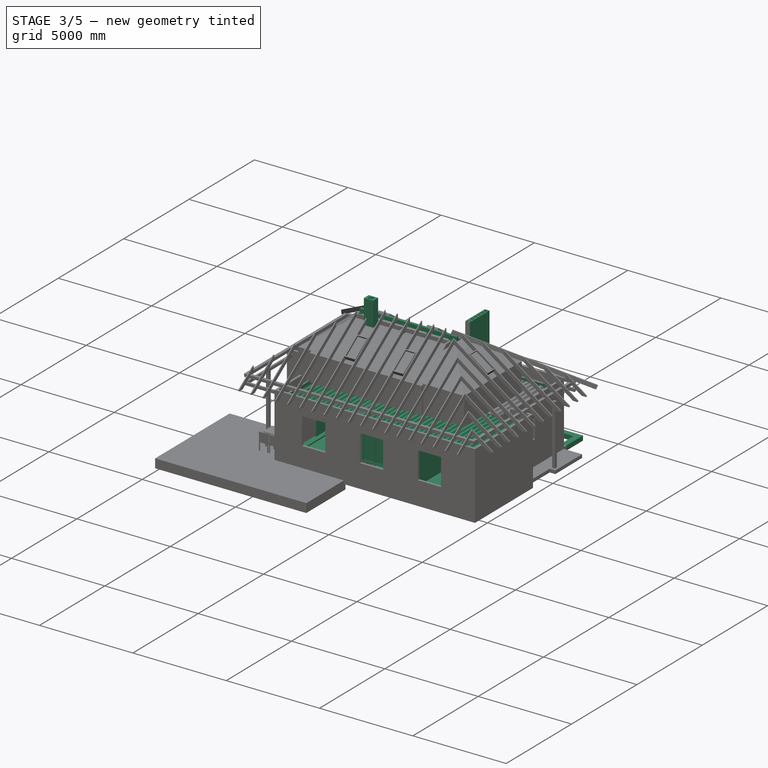
[diagram: stage 3 of 5 — iso view after this stage's code; geometry added in this stage tinted green]
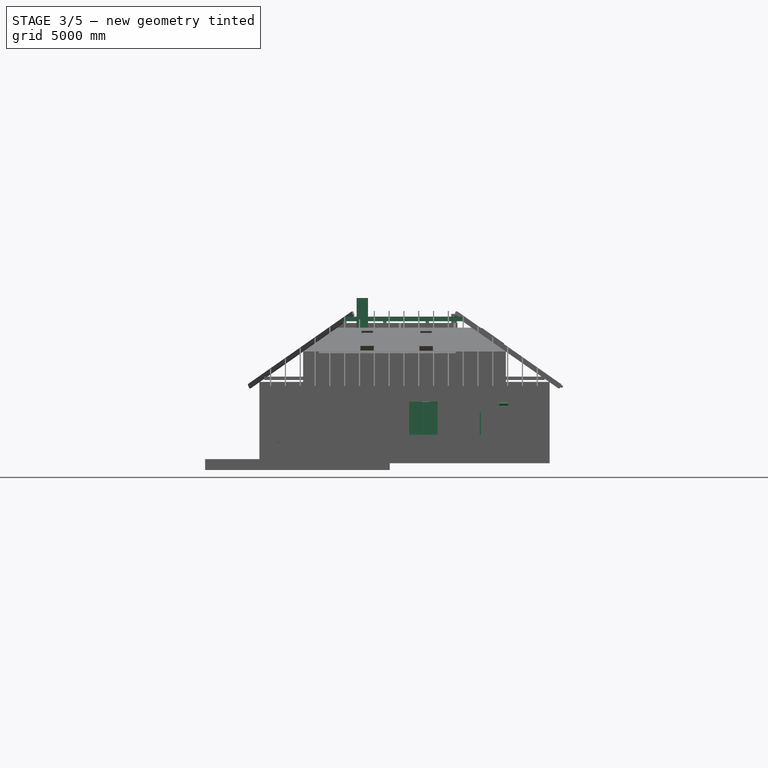
[diagram: stage 3 of 5 — front view after this stage's code; geometry added in this stage tinted green]
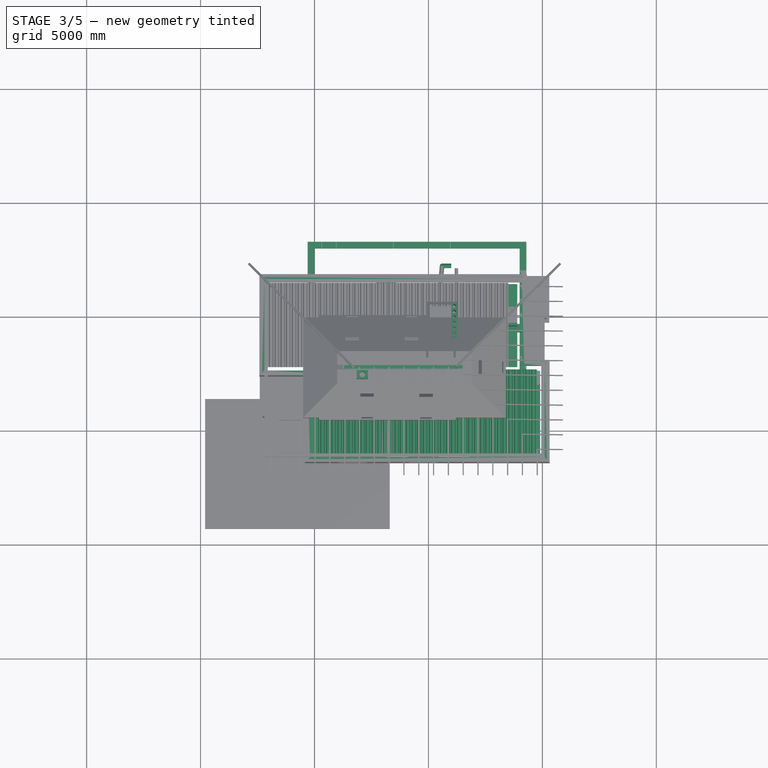
[diagram: stage 3 of 5 — top view after this stage's code; geometry added in this stage tinted green]
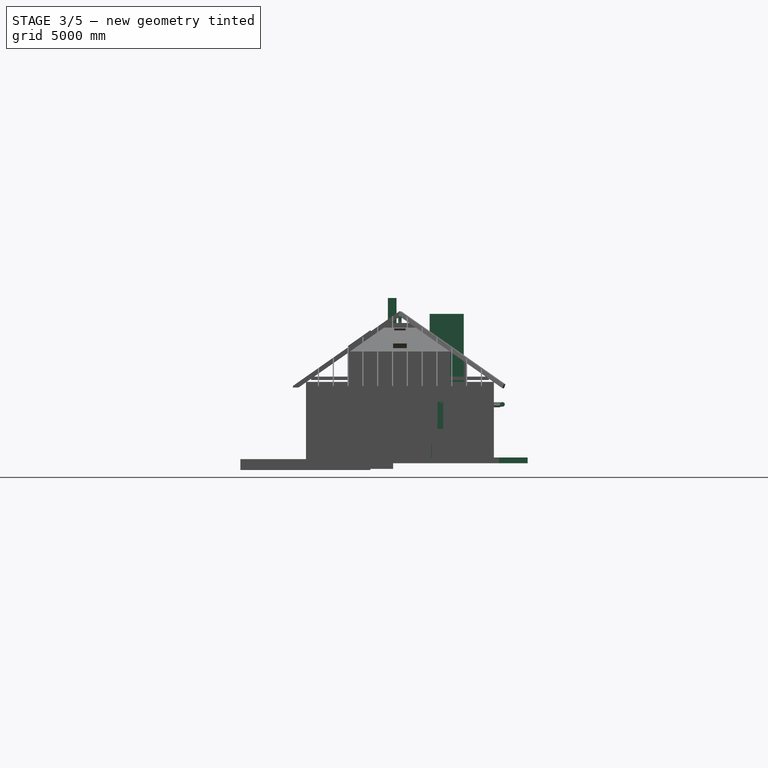
[diagram: stage 3 of 5 — right view after this stage's code; geometry added in this stage tinted green]
FEATURE [Part::Part2DObjectPython] Rectangle395  label="проём_045"  # Draft 2D object (typed FeaturePython)
  ChamferSize = 0
  Columns = 1
  FilletRadius = 0
  Height = 200
  Length = 900
  MakeFace = true
  Placement = pos=(7500,1600,0) rot=(0,0,1;3.14159rad)
  Rows = 1
FEATURE [Part::Part2DObjectPython] Rectangle398  # Draft 2D object (typed FeaturePython)
  ChamferSize = 0
  Columns = 1
  FilletRadius = 0
  Height = 300
  Length = 0
  MakeFace = false
  Placement = pos=(6000,5700,0) rot=(0,0,1;0rad)
  Rows = 1
FEATURE [Part::Part2DObjectPython] Rectangle399  label="ванна_170х75_001"  # Draft 2D object (typed FeaturePython)
  ChamferSize = 0
  Columns = 1
  FilletRadius = 0
  Height = 750
  Length = 1800
  MakeFace = false
  Placement = pos=(4100,1400,0) rot=(0,0,1;3.14159rad)
  Rows = 1
FEATURE [Part::Part2DObjectPython] Ellipse002  # Draft 2D object (typed FeaturePython)
  FirstAngle = 0
  LastAngle = 0
  MajorRadius = 750
  MakeFace = false
  MinorRadius = 250
  Placement = pos=(3200,1025,0) rot=(0,0,1;3.14159rad)
FEATURE [Part::FeaturePython] Structure180  label="Ванна_003"  # Arch/BIM object (typed FeaturePython)
  Base = -> Ellipse002
  FaceMaker = 0
  Height = 400
  HorizontalArea = 589049
  IfcRole = 0
  Length = 0
  MoveWithHost = true
  Nodes = (2) [(9225,100,650),(9225,100,250)]
  NodesOffset = 0
  Normal = (0,0,-1)
  PerimeterLength = 3356.1
  Placement = pos=(0,0,650) rot=(0,0,1;0rad)
  VerticalArea = 1.3369e+06
  Width = 100
FEATURE [Part::FeaturePython] Structure179  label="Ванна_002"  # Arch/BIM object (typed FeaturePython)
  Base = -> Rectangle399
  FaceMaker = 0
  Height = 650
  HorizontalArea = 1.35e+06
  IfcRole = 0
  Length = 0
  MoveWithHost = false
  Nodes = (2) [(7375,2550,0),(7375,2550,650)]
  NodesOffset = 0
  Normal = (0,0,0)
  PerimeterLength = 5100
  Subtractions = -> [Structure180]
  VerticalArea = 4.6519e+06
  Width = 100
FEATURE [Part::Box] Box3131  label="стиральная_машина_60х60"
  AttacherType = Attacher::AttachEngine3D
  Height = 800
  Length = 600
  Placement = pos=(2926.47,-868.152,0) rot=(0,0,1;1.5708rad)
  Width = 600
FEATURE [Part::FeaturePython] Structure367  label="проём двери вн. 004"  # Arch/BIM object (typed FeaturePython)
  Base = -> Rectangle586
  FaceMaker = 0
  Height = 2250
  HorizontalArea = 180000
  IfcRole = 0
  Length = 0
  MoveWithHost = false
  Nodes = (2) [(-4225,7937.5,0),(-4225,7937.5,2250)]
  NodesOffset = 0
  Normal = (0,0,0)
  PerimeterLength = 2200
  Placement = pos=(0,0,-180) rot=(0,0,1;0rad)
  VerticalArea = 4950000
  Width = 100
FEATURE [Part::Part2DObjectPython] Rectangle749  label="перегородка_001"  # Draft 2D object (typed FeaturePython)
  ChamferSize = 0
  Columns = 1
  FilletRadius = 0
  Height = 3600
  Length = 100
  MakeFace = true
  Placement = pos=(6200,-6000,0) rot=(0,0,1;0rad)
  Rows = 1
FEATURE [Part::FeaturePython] Wall093  label="перегородка 003"  # Arch/BIM object (typed FeaturePython)
  Align = 2
  Base = -> Rectangle749
  BlockHeight = 0
  BlockLength = 0
  CountBroken = 0
  CountEntire = 0
  Face = 0
  Height = 3000
  HorizontalArea = 360000
  IfcRole = 156
  Joint = 0
  Length = 0
  MakeBlocks = false
  MoveWithHost = false
  Normal = (0,0,0)
  OffsetFirst = 0
  OffsetSecond = 0
  PerimeterLength = 7400
  Placement = pos=(1.819e-12,3.1832e-12,-180) rot=(0,0,1;0rad)
  VerticalArea = 2.22e+07
  Width = 250
FEATURE [Part::FeaturePython] Structure374  label="пол в помещениях _001"  # Arch/BIM object (typed FeaturePython)
  Base = -> Rectangle695
  FaceMaker = 0
  Height = 180
  HorizontalArea = 2.232e+07
  IfcRole = 0
  Length = 0
  MoveWithHost = false
  Nodes = (2) [(4683.93,-2255.36,0),(4683.93,-2255.36,180)]
  NodesOffset = 0
  Normal = (0,0,1)
  PerimeterLength = 19600
  Placement = pos=(0,0,-180) rot=(0,0,1;0rad)
  VerticalArea = 3528000
  Width = 100
FEATURE [Part::FeaturePython] Structure377  label="пол в помещениях _032"  # Arch/BIM object (typed FeaturePython)
  Base = -> Rectangle707
  FaceMaker = 0
  Height = 180
  HorizontalArea = 4.32e+06
  IfcRole = 0
  Length = 0
  MoveWithHost = false
  Nodes = (2) [(5100,200,0),(5100,200,180)]
  NodesOffset = 0
  Normal = (0,0,0)
  PerimeterLength = 8400
  Placement = pos=(0,0,-180) rot=(0,0,1;0rad)
  VerticalArea = 1512000
  Width = 100
FEATURE [Part::FeaturePython] Structure380  label="пол в помещениях _026"  # Arch/BIM object (typed FeaturePython)
  Base = -> Rectangle698
  FaceMaker = 0
  Height = 180
  HorizontalArea = 3500000
  IfcRole = 0
  Length = 0
  MoveWithHost = false
  Nodes = (2) [(8200,-950,0),(8200,-950,180)]
  NodesOffset = 0
  Normal = (0,0,0)
  PerimeterLength = 7800
  Placement = pos=(0,0,-180) rot=(0,0,1;0rad)
  VerticalArea = 1404000
  Width = 100
FEATURE [Part::Box] Box3144  label="тумба под ТВ 001"
  AttacherType = Attacher::AttachEngine3D
  Height = 750
  Length = 1300
  Placement = pos=(3000,-3800,0) rot=(0,0,-1;1.5708rad)
  Width = 300
FEATURE [Part::Box] Box3145  label="ТВ 55" 002"
  AttacherType = Attacher::AttachEngine3D
  Height = 750
  Length = 1250
  Placement = pos=(3165.85,-3825,800) rot=(0,0,-1;1.5708rad)
  Width = 90
FEATURE [Part::Box] Box3146  label="ножка037"
  AttacherType = Attacher::AttachEngine3D
  Height = 720
  Length = 40
  Placement = pos=(4000,-5010,0) rot=(0,0,1;3.14159rad)
  Width = 40
FEATURE [Part::Box] Box3147  label="ножка038"
  AttacherType = Attacher::AttachEngine3D
  Height = 720
  Length = 40
  Placement = pos=(3590,-5010,0) rot=(0,0,1;3.14159rad)
  Width = 40
FEATURE [Part::Box] Box3148  label="ножка039"
  AttacherType = Attacher::AttachEngine3D
  Height = 720
  Length = 40
  Placement = pos=(3590,-3850,0) rot=(0,0,1;3.14159rad)
  Width = 40
FEATURE [Part::Box] Box3149  label="ножка040"
  AttacherType = Attacher::AttachEngine3D
  Height = 720
  Length = 40
  Placement = pos=(4000.01,-3850,0) rot=(0,0,1;3.14159rad)
  Width = 40
FEATURE [Part::Box] Box3150  label="столешница006"
  AttacherType = Attacher::AttachEngine3D
  Height = 30
  Length = 750
  Placement = pos=(4150,-3700,720) rot=(0,0,1;3.14159rad)
  Width = 1500
FEATURE [Part::Part2DObjectPython] Rectangle767  label="Rectangle756"  # Draft 2D object (typed FeaturePython)
  ChamferSize = 0
  Columns = 1
  FilletRadius = 0
  Height = 50
  Length = 100
  MakeFace = true
  Placement = pos=(2900,-1150,0) rot=(0,0,1;0rad)
  Rows = 1
FEATURE [Part::Part2DObjectPython] Line686  # Draft 2D object (typed FeaturePython)
  ChamferSize = 0
  Closed = false
  End = (2950,-2000,0)
  FilletRadius = 0
  Length = 900
  MakeFace = true
  Placement = pos=(2750,-1100,0) rot=(0,0,1;0rad)
  Points = (2) [(200,0,0),(200,-900,0)]
  Start = (2950,-1100,0)
  Subdivisions = 0
FEATURE [Part::Part2DObjectPython] Rectangle768  label="Rectangle757"  # Draft 2D object (typed FeaturePython)
  ChamferSize = 0
  Columns = 1
  FilletRadius = 0
  Height = 50
  Length = 100
  MakeFace = true
  Placement = pos=(2900,-2000,0) rot=(0,0,1;0rad)
  Rows = 1
FEATURE [Part::Part2DObjectPython] Arc029  # Draft 2D object (typed FeaturePython)
  FirstAngle = 180
  LastAngle = 270
  MakeFace = false
  Placement = pos=(2900,-1150,0) rot=(0,0,1;0rad)
  Radius = 800
FEATURE [Part::Part2DObjectPython] Arc030  # Draft 2D object (typed FeaturePython)
  FirstAngle = 90
  LastAngle = 180
  MakeFace = true
  Placement = pos=(7500,-2050,0) rot=(0,0,-1;1.5708rad)
  Radius = 900
FEATURE [Sketcher::SketchObject] Sketch  label="Вент-стояк"
  MapMode = 5
  Placement = pos=(6000,-1000,0) rot=(0,0,1;0rad)
  sketch-geometry (10):
    g0: LineSegment StartX=0 StartY=0 StartZ=0 EndX=250 EndY=0 EndZ=0
    g1: LineSegment StartX=250 StartY=0 StartZ=0 EndX=250 EndY=1500 EndZ=0
    g2: LineSegment StartX=250 StartY=1500 StartZ=0 EndX=0 EndY=1500 EndZ=0
    g3: LineSegment StartX=0 StartY=1500 StartZ=0 EndX=0 EndY=0 EndZ=0
    g4: Circle CenterX=125 CenterY=1375 CenterZ=0 NormalX=0 NormalY=0 NormalZ=1 AngleXU=0 Radius=80
    g5: Circle CenterX=125 CenterY=1125 CenterZ=0 NormalX=0 NormalY=0 NormalZ=1 AngleXU=0 Radius=80
    g6: Circle CenterX=125 CenterY=625 CenterZ=0 NormalX=0 NormalY=0 NormalZ=1 AngleXU=0 Radius=80
    g7: Circle CenterX=125 CenterY=875 CenterZ=0 NormalX=0 NormalY=0 NormalZ=1 AngleXU=0 Radius=80
    g8: Circle CenterX=125 CenterY=375 CenterZ=0 NormalX=0 NormalY=0 NormalZ=1 AngleXU=0 Radius=80
    g9: Circle CenterX=125 CenterY=125 CenterZ=0 NormalX=0 NormalY=0 NormalZ=1 AngleXU=0 Radius=80
  constraints (29):
    c: Coincident(g0,g1)
    c: Coincident(g1,g2)
    c: Coincident(g2,g3)
    c: Coincident(g3,g0)
    c: Horizontal(g0)
    c: Horizontal(g2)
    c: Vertical(g1)
    c: Vertical(g3)
    c: Coincident(g0,g-1)
    c: DistanceX(g2,g2) = 250
    c: DistanceY(g1,g1) = 1500
    c: DistanceY(g4,g2) = 125
    c: DistanceX(g2,g4) = 125
    c: Diameter(g4) = 160
    c: Diameter(g5) = 160
    c: Diameter(g7) = 160
    c: Diameter(g6) = 160
    c: Diameter(g8) = 160
    c: Diameter(g9) = 160
    c: DistanceX(g2,g5) = 125
    c: DistanceX(g2,g7) = 125
    c: DistanceX(g2,g6) = 125
    c: DistanceX(g2,g8) = 125
    c: DistanceX(g2,g9) = 125
    c: DistanceY(g5,g4) = 250
    c: DistanceY(g7,g5) = 250
    c: DistanceY(g6,g7) = 250
    c: DistanceY(g8,g6) = 250
    c: DistanceY(g9,g8) = 250
FEATURE [Part::Extrusion] Extrude  label="Вент-стояк_01"
  Base = -> Sketch
  Dir = (0,0,1)
  DirMode = 2
  FaceMakerClass = Part::FaceMakerBullseye
  LengthFwd = 3000
  LengthRev = 0
  Placement = pos=(0,0,-180) rot=(0,0,1;0rad)
  Solid = true
  Symmetric = false
FEATURE [Part::Extrusion] Extrude055  label="Вент-труба"
  Base = -> Sketch
  Dir = (0,0,1)
  DirMode = 2
  FaceMakerClass = Part::FaceMakerBullseye
  LengthFwd = 3400
  LengthRev = 0
  Placement = pos=(0,0,2970) rot=(0,0,1;0rad)
  Solid = true
  Symmetric = false
FEATURE [Part::FeaturePython] Structure402  label="проём в теплоизоляции под лестн.001"  # Arch/BIM object (typed FeaturePython)
  Base = -> Rectangle783
  FaceMaker = 0
  Height = 250
  HorizontalArea = 2.34e+06
  IfcRole = 0
  Length = 0
  MoveWithHost = false
  Nodes = (2) [(5450,5550,0),(5450,5550,500)]
  NodesOffset = 0
  Normal = (0,0,0)
  PerimeterLength = 7000
  Placement = pos=(0,0,2970) rot=(0,0,1;0rad)
  VerticalArea = 1.75e+06
  Width = 100
FEATURE [Part::Part2DObjectPython] Wire228  label="подающий воздуховод 055"  # Draft 2D object (typed FeaturePython)
  ChamferSize = 0
  Closed = false
  End = (5400,100,0)
  FilletRadius = 0
  Length = 2509.5
  MakeFace = false
  Placement = pos=(16200,-2600,0) rot=(0,0,1;3.14159rad)
  Points = (3) [(10200,-4800,0),(10600,-4800,0),(10800,-2700,0)]
  Start = (6000,2200,0)
  Subdivisions = 0
FEATURE [Part::FeaturePython] Pipe072  label="подающий воздуховод 054"  # Arch/BIM object (typed FeaturePython)
  Base = -> Wire228
  Diameter = 200
  HorizontalArea = 0
  IfcRole = 98
  Length = 2509.5
  MoveWithHost = false
  OffsetEnd = 0
  OffsetStart = 0
  PerimeterLength = 0
  Placement = pos=(0,0,2400) rot=(0,0,1;0rad)
  VerticalArea = 0
FEATURE [Part::Part2DObjectPython] Rectangle925  label="сервисная зона рекуператора"  # Draft 2D object (typed FeaturePython)
  ChamferSize = 0
  Columns = 1
  FilletRadius = 0
  Height = 700
  Length = 800
  MakeFace = false
  Placement = pos=(8900,-600,0) rot=(0,0,1;1.5708rad)
  Rows = 1
FEATURE [Part::Part2DObjectPython] Wire229  label="приточная вентиляция 004"  # Draft 2D object (typed FeaturePython)
  ChamferSize = 0
  Closed = false
  End = (9300,-500,0)
  FilletRadius = 0
  Length = 1200
  MakeFace = true
  Placement = pos=(9220,-4710,250) rot=(0,0,1;0rad)
  Points = (3) [(-1120,4210,-250),(-320,4210,-250),(80,4210,-250)]
  Start = (8100,-500,0)
  Subdivisions = 0
FEATURE [App::DocumentObjectGroup] Group066  label="Отопление_и_вентиляция"
  Group = -> [Rectangle518,Rectangle519,Rectangle520,Wire142,Line462,Wire143,Wire145,Wire144,Line448,Line451,Wire149,Wire150,Rectangle523,Wire158,Line555,Line553,Line445,Line554,Wire171,Wire170,Line560,Line561,Wire,Wire228,Rectangle925,Wire229]
FEATURE [App::DocumentObjectGroup] Group067  label="инж.системы"
  Group = -> [Group066,Group071,Group103]
FEATURE [Part::FeaturePython] Pipe073  label="приточная вентиляция 003"  # Arch/BIM object (typed FeaturePython)
  Base = -> Wire229
  Diameter = 150
  HorizontalArea = 0
  IfcRole = 98
  Length = 1200
  MoveWithHost = false
  OffsetEnd = 0
  OffsetStart = 0
  PerimeterLength = 0
  Placement = pos=(0,0,2425) rot=(0,0,1;0rad)
  VerticalArea = 0
FEATURE [Part::FeaturePython] Wall094  label="Утепление торца плиты перекрытия"  # Arch/BIM object (typed FeaturePython)
  Align = 1
  Base = -> Wire232
  BlockHeight = 0
  BlockLength = 0
  CountBroken = 0
  CountEntire = 0
  Face = 0
  Height = 150
  HorizontalArea = 4.06e+06
  IfcRole = 156
  Joint = 0
  Length = 38600
  MakeBlocks = false
  MoveWithHost = false
  Normal = (0,0,0)
  Offset = 200
  OffsetFirst = 0
  OffsetSecond = 0
  PerimeterLength = 41000
  Placement = pos=(0,0,2820) rot=(0,0,1;0rad)
  VerticalArea = 12180000
  Width = 100
FEATURE [Part::Part2DObjectPython] Rectangle926  label="Спальня №2"  # Draft 2D object (typed FeaturePython)
  ChamferSize = 0
  Columns = 1
  FilletRadius = 0
  Height = 3600
  Length = 3600
  MakeFace = false
  Placement = pos=(6300,-6000,0) rot=(0,0,1;0rad)
  Rows = 1
FEATURE [Part::FeaturePython] Structure381  label="пол в помещениях _030"  # Arch/BIM object (typed FeaturePython)
  Base = -> Rectangle926
  FaceMaker = 0
  Height = 180
  HorizontalArea = 1.296e+07
  IfcRole = 0
  Length = 0
  MoveWithHost = false
  Nodes = (2) [(7601.23,-3568.84,0),(7601.23,-3568.84,180)]
  NodesOffset = 0
  Normal = (0,0,1)
  PerimeterLength = 14400
  Placement = pos=(0,0,-180) rot=(0,0,1;0rad)
  VerticalArea = 2.592e+06
  Width = 100
FEATURE [Part::Part2DObjectPython] Rectangle929  label="коридор"  # Draft 2D object (typed FeaturePython)
  ChamferSize = 0
  Columns = 1
  FilletRadius = 0
  Height = 1200
  Length = 4400
  MakeFace = false
  Placement = pos=(3000,-2200,0) rot=(0,0,1;0rad)
  Rows = 1
FEATURE [Part::Part2DObjectPython] Wire233  label="тех.пом/кладовая001"  # Draft 2D object (typed FeaturePython)
  ChamferSize = 0
  Closed = true
  End = (8900,400,0)
  FilletRadius = 0
  Length = 10200
  MakeFace = false
  Placement = pos=(7100,-500,0) rot=(0,0,1;0rad)
  Points = (8) [(300,900,0),(300,-400,0),(-850,-400,0),(-850,1000,0),(-1000,1000,0),(-1000,1900,0),(1800,1900,0),(1800,900,0)]
  Start = (7400,400,0)
  Subdivisions = 0
FEATURE [Part::FeaturePython] Structure376  label="пол в помещениях _025"  # Arch/BIM object (typed FeaturePython)
  Base = -> Wire233
  FaceMaker = 0
  Height = 180
  HorizontalArea = 4280000
  IfcRole = 0
  Length = 0
  MoveWithHost = false
  Nodes = (2) [(600,-200,0),(600,-200,180)]
  NodesOffset = 0
  Normal = (0,0,1)
  PerimeterLength = 10200
  Placement = pos=(0,0,-180) rot=(0,0,1;0rad)
  VerticalArea = 1836000
  Width = 100
FEATURE [Part::Box] Box3515  label="тумбочка 004"
  AttacherType = Attacher::AttachEngine3D
  Height = 650
  Length = 400
  Placement = pos=(9468.39,-5771.27,0) rot=(0,0,1;0rad)
  Width = 450
FEATURE [Part::Feature] Face003  label="умывальник003"
  Placement = pos=(2400,-1800,600) rot=(0,0,1;0rad)
  shape: bbox 600 x 353.2 x 2e-07 mm, 1 faces, 0 solids (baked)
FEATURE [Part::Extrusion] Extrude089  label="умывальник004"
  Base = -> Face003
  Dir = (0,0,1)
  DirMode = 0
  FaceMakerClass = Part::FaceMakerBullseye
  LengthFwd = 200
  LengthRev = 0
  Placement = pos=(4.058e-13,0,3220) rot=(0,0,1;0rad)
  Solid = false
  Symmetric = false
FEATURE [Part::Part2DObjectPython] Rectangle934  # Draft 2D object (typed FeaturePython)
  ChamferSize = 0
  Columns = 1
  FilletRadius = 0
  Height = 600
  Length = 200
  MakeFace = false
  Placement = pos=(6400,-3600,0) rot=(0,0,-1;1.5708rad)
  Rows = 1
FEATURE [Part::FeaturePython] Structure542  label="короб_004"  # Arch/BIM object (typed FeaturePython)
  Base = -> Rectangle934
  FaceMaker = 0
  Height = 600
  HorizontalArea = 120000
  IfcRole = 0
  Length = 0
  MoveWithHost = false
  Nodes = (2) [(7650,6725,0),(7650,6725,200)]
  NodesOffset = 0
  Normal = (0,0,0)
  PerimeterLength = 1600
  Placement = pos=(0,0,3220) rot=(0,0,1;0rad)
  VerticalArea = 960000
  Width = 100
FEATURE [Part::Part2DObjectPython] Ellipse003  # Draft 2D object (typed FeaturePython)
  FirstAngle = 0
  LastAngle = 0
  MajorRadius = 200.765
  MakeFace = false
  MinorRadius = 76.8815
  Placement = pos=(6700.77,-3623.12,4020) rot=(0,0,1;0rad)
FEATURE [App::GeometryPython] BuildingPart107  label="умывальник005"  # Arch/BIM object (typed FeaturePython)
  Area = 0
  Group = -> [Structure542,Extrude089,Ellipse003]
  Height = 0
  IfcRole = 0
  LevelOffset = 0
FEATURE [Part::Part2DObjectPython] DWire003  # Draft 2D object (typed FeaturePython)
  ChamferSize = 0
  Closed = true
  End = (8200,-2100,400)
  FilletRadius = 0
  Length = 1202.35
  MakeFace = false
  Placement = pos=(5501.15,-3799.26,-100) rot=(0,0,1;1.57077rad)
  Points = (4) [(1299.32,-2698.82,500),(1299.32,-2497.64,500),(1699.32,-2497.64,500),(1699.32,-2698.82,500)]
  Start = (8200,-2500,400)
  Subdivisions = 0
FEATURE [Part::Extrusion] Extrude090  label="унитаз004"
  Base = -> DWire003
  Dir = (0,0,1)
  DirMode = 0
  FaceMakerClass = Part::FaceMakerBullseye
  LengthFwd = 350
  LengthRev = 0
  Placement = pos=(0,0,3220) rot=(0,0,1;0rad)
  Solid = true
  Symmetric = false
FEATURE [Part::Feature] Face004
  Placement = pos=(5501.15,-3799.26,400) rot=(0,0,1;1.57077rad)
  shape: bbox 700 x 400 x 2e-07 mm, 1 faces, 0 solids (baked)
FEATURE [Part::Extrusion] Extrude091  label="унитаз005"
  Base = -> Face004
  Dir = (0,0,-1)
  DirMode = 0
  FaceMakerClass = Part::FaceMakerBullseye
  LengthFwd = 400
  LengthRev = 0
  Placement = pos=(0,0,3220) rot=(0,0,1;0rad)
  Solid = true
  Symmetric = false
FEATURE [Part::Fuse] Fusion012  label="унитаз006"
  Base = -> Extrude091
  Tool = -> Extrude090
FEATURE [Part::Part2DObjectPython] Ellipse004  # Draft 2D object (typed FeaturePython)
  FirstAngle = 0
  LastAngle = 0
  MajorRadius = 163.5
  MakeFace = false
  MinorRadius = 136.114
  Placement = pos=(7760.6,-2294.87,3620) rot=(0,0,1;3.14157rad)
FEATURE [App::GeometryPython] BuildingPart108  label="унитаз"  # Arch/BIM object (typed FeaturePython)
  Area = 0
  Group = -> [Fusion012,Ellipse004]
  Height = 0
  IfcRole = 0
  LevelOffset = 0
FEATURE [Part::Part2DObjectPython] Ellipse005  # Draft 2D object (typed FeaturePython)
  FirstAngle = 0
  LastAngle = 0
  MajorRadius = 500
  MakeFace = false
  MinorRadius = 250
  Placement = pos=(6958.05,-1208.47,0) rot=(0,0,1;0rad)
FEATURE [Part::FeaturePython] Structure544  label="поддон001"  # Arch/BIM object (typed FeaturePython)
  Base = -> Ellipse005
  FaceMaker = 0
  Height = 75
  HorizontalArea = 392699
  IfcRole = 0
  Length = 0
  MoveWithHost = true
  Nodes = (2) [(9225,100,650),(9225,100,250)]
  NodesOffset = 0
  Normal = (0,0,1)
  PerimeterLength = 2425.29
  Placement = pos=(0,0,3250) rot=(0,0,1;0rad)
  VerticalArea = 181664
  Width = 100
FEATURE [Part::Part2DObjectPython] Wire238  # Draft 2D object (typed FeaturePython)
  ChamferSize = 0
  Closed = true
  End = (6300,-850,0)
  FilletRadius = 0
  Length = 4100
  MakeFace = false
  Placement = pos=(7700,-800,0) rot=(0,0,1;3.14159rad)
  Points = (4) [(100,50,0),(100,800,0),(1400,800,0),(1400,50,0)]
  Start = (7600,-850,0)
  Subdivisions = 0
FEATURE [Part::FeaturePython] Structure543  label="поддон"  # Arch/BIM object (typed FeaturePython)
  Base = -> Wire238
  FaceMaker = 0
  Height = 100
  HorizontalArea = 975000
  IfcRole = 0
  Length = 0
  MoveWithHost = false
  Nodes = (2) [(7375,2550,0),(7375,2550,650)]
  NodesOffset = 0
  Normal = (0,0,1)
  PerimeterLength = 4100
  Placement = pos=(0,0,3220) rot=(0,0,1;0rad)
  Subtractions = -> [Structure544]
  VerticalArea = 579553
  Width = 100
FEATURE [App::GeometryPython] BuildingPart109  label="душ"  # Arch/BIM object (typed FeaturePython)
  Area = 0
  Group = -> [Structure543]
  Height = 0
  IfcRole = 0
  LevelOffset = 0
FEATURE [App::GeometryPython] BuildingPart110  label="СУ №2 (чердак)"  # Arch/BIM object (typed FeaturePython)
  Area = 0
  Group = -> [BuildingPart107,BuildingPart108,BuildingPart109]
  Height = 0
  IfcRole = 0
  LevelOffset = 0
FEATURE [Part::FeaturePython] Structure546  label="пол в помещениях _034"  # Arch/BIM object (typed FeaturePython)
  Base = -> Rectangle929
  FaceMaker = 0
  Height = 180
  HorizontalArea = 5280000
  IfcRole = 0
  Length = 0
  MoveWithHost = false
  Nodes = (2) [(5200,-1600,0),(5200,-1600,180)]
  NodesOffset = 0
  Normal = (0,0,0)
  PerimeterLength = 11200
  Placement = pos=(0,0,-180) rot=(0,0,1;0rad)
  VerticalArea = 2016000
  Width = 100
FEATURE [Part::Fillet] Fillet002
  Base = -> Box3150
  Edges = 4 edges r=100: [Edge1,Edge3,Edge5,Edge7]
FEATURE [Part::MultiFuse] Fusion011  label="стол обед"
  Shapes = -> [Box3149,Box3146,Box3147,Box3148,Fillet002]
FEATURE [App::GeometryPython] BuildingPart063  label="обед.стол со стульями"  # Arch/BIM object (typed FeaturePython)
  Area = 0
  Group = -> [Fusion003,Fusion004,Fusion008,Fusion009,Fusion011]
  Height = 0
  IfcRole = 0
  LevelOffset = 0
FEATURE [Part::Part2DObjectPython] Wire239  label="контур плиты перекрытия"  # Draft 2D object (typed FeaturePython)
  ChamferSize = 0
  Closed = true
  End = (10100,-6200,0)
  FilletRadius = 0
  Length = 40200
  MakeFace = false
  Placement = pos=(75,-6125,0) rot=(0,0,1;0rad)
  Points = (8) [(-275,-75,0),(-275,3725,0),(-2275,3725,0),(-2275,7725,0),(9025,7725,0),(9025,3925,0),(10025,3925,0),(10025,-75,0)]
  Start = (-200,-6200,0)
  Subdivisions = 0
FEATURE [Part::Part2DObjectPython] Line715  # Draft 2D object (typed FeaturePython)
  ChamferSize = 0
  Closed = false
  End = (2900,-1150,0)
  FilletRadius = 0
  Length = 800
  MakeFace = false
  Placement = pos=(1900,-1150,0) rot=(0,0,1;3.14159rad)
  Points = (2) [(-200,-4.54747e-13,0),(-1000,3.63798e-12,0)]
  Start = (2100,-1150,0)
  Subdivisions = 0
FEATURE [Part::Part2DObjectPython] Line716  # Draft 2D object (typed FeaturePython)
  ChamferSize = 0
  Closed = false
  End = (7500,-2050,0)
  FilletRadius = 0
  Length = 900
  MakeFace = false
  Placement = pos=(8400,-2250,0) rot=(0,0,-1;1.5708rad)
  Points = (2) [(-200,0,0),(-200,-900,0)]
  Start = (8400,-2050,0)
  Subdivisions = 0
FEATURE [Part::Part2DObjectPython] Arc  # Draft 2D object (typed FeaturePython)
  FirstAngle = -90
  LastAngle = 0
  MakeFace = false
  Placement = pos=(6550,-1000,0) rot=(0,0,1;0rad)
  Radius = 700
  Support = -> [Rectangle746]
FEATURE [Part::Part2DObjectPython] Line717  # Draft 2D object (typed FeaturePython)
  ChamferSize = 0
  Closed = false
  End = (6550,-1700,0)
  FilletRadius = 0
  Length = 700
  MakeFace = false
  Placement = pos=(6550,-800,0) rot=(0,0,1;1.5708rad)
  Points = (2) [(-200,0,0),(-900,0,0)]
  Start = (6550,-1000,0)
  Subdivisions = 0
FEATURE [Part::Part2DObjectPython] Arc031  # Draft 2D object (typed FeaturePython)
  FirstAngle = -180
  LastAngle = -90
  MakeFace = false
  Placement = pos=(6450,-2400,0) rot=(0,0,1;1.5708rad)
  Radius = 800
  Support = -> [Rectangle363]
FEATURE [Part::Part2DObjectPython] Arc033  # Draft 2D object (typed FeaturePython)
  FirstAngle = 90
  LastAngle = 180
  MakeFace = false
  Placement = pos=(3950,-900,0) rot=(0,0,1;0rad)
  Radius = 800
FEATURE [Part::Part2DObjectPython] Arc034  # Draft 2D object (typed FeaturePython)
  FirstAngle = 0
  LastAngle = 90
  MakeFace = false
  Placement = pos=(9200,-1850,0) rot=(0,0,-1;0rad)
  Radius = 900
FEATURE [Part::Part2DObjectPython] Line718  # Draft 2D object (typed FeaturePython)
  ChamferSize = 0
  Closed = false
  End = (6450,-2400,0)
  FilletRadius = 0
  Length = 800
  MakeFace = false
  Placement = pos=(6650,-3200,0) rot=(0,0,1;0rad)
  Points = (2) [(-200,0,0),(-200,800,0)]
  Start = (6450,-3200,0)
  Subdivisions = 0
FEATURE [Part::Part2DObjectPython] Line719  # Draft 2D object (typed FeaturePython)
  ChamferSize = 0
  Closed = false
  End = (3950,-100,0)
  FilletRadius = 0
  Length = 800
  MakeFace = false
  Placement = pos=(3950,-700,0) rot=(0,0,1;1.5708rad)
  Points = (2) [(-200,0,0),(600,9.09495e-13,0)]
  Start = (3950,-900,0)
  Subdivisions = 0
FEATURE [Part::Part2DObjectPython] Line721  # Draft 2D object (typed FeaturePython)
  ChamferSize = 0
  Closed = false
  End = (9200,-1850,0)
  FilletRadius = 0
  Length = 900
  MakeFace = false
  Placement = pos=(9901.22,-1972.09,0) rot=(0,0,1;3.25225rad)
  Points = (2) [(-211.043,-99.3884,0),(683.452,-198.777,0)]
  Start = (10100,-1850,0)
  Subdivisions = 0
FEATURE [Part::Box] Box3154  label="D500 300x625 003"
  AttacherType = Attacher::AttachEngine3D
  Height = 250
  Length = 625
  Placement = pos=(-6.25e-13,-6300,-180) rot=(0,0,1;0rad)
  Width = 300
FEATURE [Part::FeaturePython] Array050  # Draft array (typed FeaturePython)
  Angle = 360
  ArrayType = 0
  Axis = (0,0,1)
  Base = -> Box3154
  Center = (0,0,0)
  Fuse = false
  IntervalAxis = (0,0,0)
  IntervalX = (625,0,0)
  IntervalY = (0,1,0)
  IntervalZ = (0,0,1)
  NumberPolar = 1
  NumberX = 5
  NumberY = 1
  NumberZ = 1
FEATURE [Part::Box] Box3155  label="D500 300x625 004"
  AttacherType = Attacher::AttachEngine3D
  Height = 250
  Length = 625
  Placement = pos=(-300,3000,-180) rot=(0,0,1;0rad)
  Width = 300
FEATURE [Part::FeaturePython] Array051  # Draft array (typed FeaturePython)
  Angle = 360
  ArrayType = 0
  Axis = (0,0,1)
  Base = -> Box3155
  Center = (0,0,0)
  Fuse = false
  IntervalAxis = (0,0,0)
  IntervalX = (626.66,0,0)
  IntervalY = (0,1,0)
  IntervalZ = (0,0,1)
  NumberPolar = 1
  NumberX = 14
  NumberY = 1
  NumberZ = 1
FEATURE [Part::Box] Box3156  label="D500 300x625 001"
  AttacherType = Attacher::AttachEngine3D
  Height = 250
  Length = 625
  Placement = pos=(9300,2675,-180) rot=(0,0,1;1.5708rad)
  Width = 300
FEATURE [Part::FeaturePython] Array048  # Draft array (typed FeaturePython)
  Angle = 360
  ArrayType = 0
  Axis = (0,0,1)
  Base = -> Box3156
  Center = (0,0,0)
  Fuse = false
  IntervalAxis = (0,0,0)
  IntervalX = (1,0,0)
  IntervalY = (0,-626.66,0)
  IntervalZ = (0,0,1)
  NumberPolar = 1
  NumberX = 1
  NumberY = 14
  NumberZ = 1
FEATURE [Part::Box] Box3157  label="D500 300x625 002"
  AttacherType = Attacher::AttachEngine3D
  Height = 250
  Length = 625
  Placement = pos=(-2.324e-12,-6300,-180) rot=(0,0,1;1.5708rad)
  Width = 300
FEATURE [Part::FeaturePython] Array049  # Draft array (typed FeaturePython)
  Angle = 360
  ArrayType = 0
  Axis = (0,0,1)
  Base = -> Box3157
  Center = (0,0,0)
  Fuse = false
  IntervalAxis = (0,0,0)
  IntervalX = (1,0,0)
  IntervalY = (0,626.66,0)
  IntervalZ = (0,0,1)
  NumberPolar = 1
  NumberX = 1
  NumberY = 14
  NumberZ = 1
FEATURE [Part::Box] Box3178  label="D500 300 добор 001"
  AttacherType = Attacher::AttachEngine3D
  Height = 250
  Length = 528.42
  Placement = pos=(9000,-5471.58,-180) rot=(0,0,-1;1.5708rad)
  Width = 300
FEATURE [Part::Box] Box3179  label="D500 300 добор 002"
  AttacherType = Attacher::AttachEngine3D
  Height = 250
  Length = 528.42
  Placement = pos=(-300,3000,-180) rot=(0,0,-1;1.5708rad)
  Width = 300
FEATURE [Part::Box] Box3180  label="D500 300 добор 003"
  AttacherType = Attacher::AttachEngine3D
  Height = 250
  Length = 528.42
  Placement = pos=(8471.58,3000,-180) rot=(0,0,-1;0rad)
  Width = 300
FEATURE [Part::Box] Box3181  label="D500 300 добор 004"
  AttacherType = Attacher::AttachEngine3D
  Height = 250
  Length = 528.42
  Placement = pos=(0,-6300,-180) rot=(0,0,-1;0rad)
  Width = 300
FEATURE [Part::Box] Box3516  label="D500 300x625 005"
  AttacherType = Attacher::AttachEngine3D
  Height = 250
  Length = 625
  Placement = pos=(2800,-6000,-180) rot=(0,0,1;0rad)
  Width = 300
FEATURE [Part::FeaturePython] Array276  # Draft array (typed FeaturePython)
  Angle = 360
  ArrayType = 0
  Axis = (0,0,1)
  Base = -> Box3516
  Center = (0,0,0)
  Fuse = false
  IntervalAxis = (0,0,0)
  IntervalX = (625,0,0)
  IntervalY = (0,1,0)
  IntervalZ = (0,0,1)
  NumberPolar = 1
  NumberX = 7
  NumberY = 1
  NumberZ = 1
FEATURE [Part::Box] Box3517  label="D500 300x625 006"
  AttacherType = Attacher::AttachEngine3D
  Height = 250
  Length = 625
  Placement = pos=(9275,-6300,-180) rot=(0,0,1;0rad)
  Width = 300
FEATURE [Part::FeaturePython] Array277  # Draft array (typed FeaturePython)
  Angle = 360
  ArrayType = 0
  Axis = (0,0,1)
  Base = -> Box3517
  Center = (0,0,0)
  Fuse = false
  IntervalAxis = (0,0,0)
  IntervalX = (-625,0,0)
  IntervalY = (0,1,0)
  IntervalZ = (0,0,1)
  NumberPolar = 1
  NumberX = 5
  NumberY = 1
  NumberZ = 1
FEATURE [Part::FeaturePython] Structure549  label="окно_мал_002"  # Arch/BIM object (typed FeaturePython)
  Base = -> Rectangle938
  FaceMaker = 0
  Height = 600
  HorizontalArea = 180000
  IfcRole = 0
  Length = 0
  MoveWithHost = false
  Nodes = (2) [(-187.5,2950,0),(-187.5,2950,500)]
  NodesOffset = 0
  Normal = (0,0,0)
  PerimeterLength = 2200
  Placement = pos=(0,0,1970) rot=(0,0,1;0rad)
  VerticalArea = 1.32e+06
  Width = 100
FEATURE [Part::Feature] Face005
  Placement = pos=(4997.64,1699.32,400) rot=(0,0,-1;1.5708rad)
  shape: bbox 700 x 400 x 2e-07 mm, 1 faces, 0 solids (baked)
FEATURE [Part::Part2DObjectPython] DWire004  # Draft 2D object (typed FeaturePython)
  ChamferSize = 0
  Closed = true
  End = (2498.82,1.24123e-09,400)
  FilletRadius = 0
  Length = 1197.65
  MakeFace = false
  Placement = pos=(4797.64,1699.32,-100) rot=(0,0,-1;1.5708rad)
  Points = (4) [(1299.32,-2298.82,500),(1299.32,-2497.64,500),(1699.32,-2497.64,500),(1699.32,-2298.82,500)]
  Start = (2498.82,400,400)
  Subdivisions = 0
FEATURE [Part::Extrusion] Extrude092  label="унитаз009"
  Base = -> DWire004
  Dir = (0,0,1)
  DirMode = 0
  FaceMakerClass = Part::FaceMakerBullseye
  LengthFwd = 350
  LengthRev = 0
  Solid = true
  Symmetric = false
FEATURE [Part::Extrusion] Extrude093  label="унитаз010"
  Base = -> Face005
  Dir = (0,0,-1)
  DirMode = 0
  FaceMakerClass = Part::FaceMakerBullseye
  LengthFwd = 400
  LengthRev = 0
  Solid = true
  Symmetric = false
FEATURE [Part::Fuse] Fusion013  label="унитаз007"
  Base = -> Extrude093
  Tool = -> Extrude092
FEATURE [Part::Part2DObjectPython] Ellipse006  # Draft 2D object (typed FeaturePython)
  FirstAngle = 0
  LastAngle = 0
  MajorRadius = 163.5
  MakeFace = false
  MinorRadius = 136.114
  Placement = pos=(2738.22,194.885,400) rot=(0,0,1;0rad)
FEATURE [App::GeometryPython] BuildingPart112  label="унитаз008"  # Arch/BIM object (typed FeaturePython)
  Area = 0
  Group = -> [Fusion013,Ellipse006]
  Height = 0
  IfcRole = 0
  LevelOffset = 0
FEATURE [Part::Feature] Face006  label="умывальник006"
  Placement = pos=(2100,-3975,600) rot=(0,0,1;1.5708rad)
  shape: bbox 353.2 x 600 x 2e-07 mm, 1 faces, 0 solids (baked)
FEATURE [Part::Extrusion] Extrude094  label="умывальник007"
  Base = -> Face006
  Dir = (0,0,1)
  DirMode = 0
  FaceMakerClass = Part::FaceMakerBullseye
  LengthFwd = 200
  LengthRev = 0
  Placement = pos=(4.058e-13,0,0) rot=(0,0,1;0rad)
  Solid = false
  Symmetric = false
FEATURE [Part::Part2DObjectPython] Rectangle940  # Draft 2D object (typed FeaturePython)
  ChamferSize = 0
  Columns = 1
  FilletRadius = 0
  Height = 600
  Length = 200
  MakeFace = false
  Placement = pos=(3900,25,0) rot=(0,0,1;0rad)
  Rows = 1
FEATURE [Part::FeaturePython] Structure551  label="короб_005"  # Arch/BIM object (typed FeaturePython)
  Base = -> Rectangle940
  FaceMaker = 0
  Height = 600
  HorizontalArea = 120000
  IfcRole = 0
  Length = 0
  MoveWithHost = false
  Nodes = (2) [(7650,6725,0),(7650,6725,200)]
  NodesOffset = 0
  Normal = (0,0,0)
  PerimeterLength = 1600
  VerticalArea = 960000
  Width = 100
FEATURE [Part::Part2DObjectPython] Ellipse007  # Draft 2D object (typed FeaturePython)
  FirstAngle = 0
  LastAngle = 0
  MajorRadius = 200.765
  MakeFace = false
  MinorRadius = 76.8815
  Placement = pos=(3923.12,325.77,800) rot=(0,0,1;1.5708rad)
FEATURE [App::GeometryPython] BuildingPart113  label="умывальник008"  # Arch/BIM object (typed FeaturePython)
  Area = 0
  Group = -> [Structure551,Extrude094,Ellipse007]
  Height = 0
  IfcRole = 0
  LevelOffset = 0
FEATURE [App::GeometryPython] BuildingPart111  label="СУ №1"  # Arch/BIM object (typed FeaturePython)
  Area = 0
  Group = -> [Box3131,BuildingPart037,BuildingPart112,BuildingPart113]
  Height = 0
  IfcRole = 0
  LevelOffset = 0
FEATURE [Sketcher::SketchObject] Sketch191  label="профиль Н114-750"
  MapMode = 5
  Placement = pos=(353.5,-6050,2877) rot=(0,0.707107,0.707107;3.14159rad)
  sketch-geometry (32):
    g0: LineSegment [constr] StartX=-403.5 StartY=-57 StartZ=0 EndX=403.5 EndY=-57 EndZ=0
    g1: LineSegment [constr] StartX=403.5 StartY=-57 StartZ=0 EndX=403.5 EndY=57 EndZ=0
    g2: LineSegment [constr] StartX=403.5 StartY=57 StartZ=0 EndX=-403.5 EndY=57 EndZ=0
    g3: LineSegment [constr] StartX=-403.5 StartY=57 StartZ=0 EndX=-403.5 EndY=-57 EndZ=0
    g4: LineSegment StartX=-403.5 StartY=-57 StartZ=0 EndX=-403.5 EndY=-56 EndZ=0
    g5: LineSegment StartX=-403.5 StartY=-56 StartZ=0 EndX=-349.5 EndY=-56 EndZ=0
    g6: LineSegment StartX=-349.5 StartY=-56 StartZ=0 EndX=-322 EndY=57 EndZ=0
    g7: LineSegment StartX=-322 StartY=57 StartZ=0 EndX=-196 EndY=57 EndZ=0
    g8: LineSegment StartX=-196 StartY=57 StartZ=0 EndX=-168.5 EndY=-56 EndZ=0
    g9: LineSegment StartX=-168.5 StartY=-56 StartZ=0 EndX=-90.5 EndY=-56 EndZ=0
    g10: LineSegment StartX=-90.5 StartY=-56 StartZ=0 EndX=-63 EndY=57 EndZ=0
    g11: LineSegment StartX=-63 StartY=57 StartZ=0 EndX=63 EndY=57 EndZ=0
    g12: LineSegment StartX=63 StartY=57 StartZ=0 EndX=90.5 EndY=-56 EndZ=0
    g13: LineSegment StartX=90.5 StartY=-56 StartZ=0 EndX=168.5 EndY=-56 EndZ=0
    g14: LineSegment StartX=168.5 StartY=-56 StartZ=0 EndX=196 EndY=57 EndZ=0
    g15: LineSegment StartX=196 StartY=57 StartZ=0 EndX=322 EndY=57 EndZ=0
    g16: LineSegment StartX=322 StartY=57 StartZ=0 EndX=349.5 EndY=-56 EndZ=0
    g17: LineSegment StartX=349.5 StartY=-56 StartZ=0 EndX=403.5 EndY=-56 EndZ=0
    g18: LineSegment StartX=403.5 StartY=-56 StartZ=0 EndX=403.5 EndY=-57 EndZ=0
    g19: LineSegment StartX=403.5 StartY=-57 StartZ=0 EndX=348.5 EndY=-57 EndZ=0
    g20: LineSegment StartX=348.5 StartY=-57 StartZ=0 EndX=321 EndY=56 EndZ=0
    g21: LineSegment StartX=321 StartY=56 StartZ=0 EndX=197 EndY=56 EndZ=0
    g22: LineSegment StartX=197 StartY=56 StartZ=0 EndX=169.5 EndY=-57 EndZ=0
    g23: LineSegment StartX=169.5 StartY=-57 StartZ=0 EndX=89.5 EndY=-57 EndZ=0
    g24: LineSegment StartX=89.5 StartY=-57 StartZ=0 EndX=62 EndY=56 EndZ=0
    g25: LineSegment StartX=62 StartY=56 StartZ=0 EndX=-62 EndY=56 EndZ=0
    g26: LineSegment StartX=-62 StartY=56 StartZ=0 EndX=-89.5 EndY=-57 EndZ=0
    g27: LineSegment StartX=-89.5 StartY=-57 StartZ=0 EndX=-169.5 EndY=-57 EndZ=0
    g28: LineSegment StartX=-169.5 StartY=-57 StartZ=0 EndX=-197 EndY=56 EndZ=0
    g29: LineSegment StartX=-197 StartY=56 StartZ=0 EndX=-321 EndY=56 EndZ=0
    g30: LineSegment StartX=-321 StartY=56 StartZ=0 EndX=-348.5 EndY=-57 EndZ=0
    g31: LineSegment StartX=-348.5 StartY=-57 StartZ=0 EndX=-403.5 EndY=-57 EndZ=0
  constraints (89):
    c: Coincident(g0,g1)
    c: Coincident(g1,g2)
    c: Coincident(g2,g3)
    c: Coincident(g3,g0)
    c: Horizontal(g2)
    c: Vertical(g3)
    c: DistanceX(g2,g2) = 807
    c: DistanceY(g3,g3) = 114
    c: Symmetric(g0,g0,g-2)
    c: Symmetric(g1,g0,g-1)
    c: Coincident(g0,g4)
    c: PointOnObject(g4,g3)
    c: Coincident(g4,g5)
    c: Horizontal(g5)
    c: Coincident(g5,g6)
    c: PointOnObject(g6,g2)
    c: Coincident(g6,g7)
    c: Horizontal(g7)
    c: Coincident(g7,g8)
    c: Coincident(g8,g9)
    c: Horizontal(g9)
    c: Coincident(g9,g10)
    c: PointOnObject(g10,g2)
    c: Coincident(g10,g11)
    c: Coincident(g11,g12)
    c: Coincident(g12,g13)
    c: Horizontal(g13)
    c: Coincident(g13,g14)
    c: Coincident(g14,g15)
    c: PointOnObject(g15,g2)
    c: Coincident(g15,g16)
    c: Coincident(g16,g17)
    c: PointOnObject(g17,g1)
    c: Horizontal(g17)
    c: Coincident(g17,g18)
    c: Coincident(g18,g0)
    c: Coincident(g18,g19)
    c: PointOnObject(g19,g0)
    c: Coincident(g19,g20)
    c: Coincident(g20,g21)
    c: Horizontal(g21)
    c: Coincident(g21,g22)
    c: PointOnObject(g22,g0)
    c: Coincident(g22,g23)
    c: PointOnObject(g23,g0)
    c: Coincident(g23,g24)
    c: Coincident(g24,g25)
    c: Coincident(g25,g26)
    c: Coincident(g26,g27)
    c: PointOnObject(g27,g0)
    c: Coincident(g27,g28)
    c: Coincident(g28,g29)
    c: Horizontal(g29)
    c: Coincident(g29,g30)
    c: PointOnObject(g30,g0)
    c: Coincident(g30,g31)
    c: Coincident(g31,g4)
    c: DistanceX(g7,g7) = 126
    c: Equal(g11,g7)
    c: Equal(g11,g15)
    c: Equal(g15,g7)
    c: Equal(g27,g23)
    c: DistanceX(g27,g27) = 80
    c: Parallel(g28,g8)
    c: Parallel(g10,g26)
    c: Equal(g24,g12)
    c: Parallel(g14,g22)
    c: Parallel(g20,g16)
    c: DistanceX(g9,g9) = 78
    c: Equal(g9,g13)
    c: Parallel(g24,g12)
    c: DistanceY(g27,g8) = 1
    c: DistanceY(g23,g12) = 1
    c: DistanceY(g18,g17) = 1
    c: DistanceY(g4,g4) = 1
    c: DistanceY(g29,g6) = 1
    c: Parallel(g6,g30)
    c: DistanceY(g21,g14) = 1
    c: Parallel(g30,g10)
    c: Parallel(g10,g14)
    c: Parallel(g12,g16)
    c: DistanceX(g29,g29) = 124
    c: Equal(g29,g25)
    c: Equal(g25,g21)
    c: Symmetric(g10,g11,g-2)
    c: Symmetric(g26,g23,g-2)
    c: Symmetric(g25,g24,g-2)
    c: Symmetric(g7,g14,g-2)
    c: DistanceX(g31,g31) = 55
FEATURE [Part::FeaturePython] Structure552  label="профнастил Н114-750"  # Arch/BIM object (typed FeaturePython)
  Base = -> Sketch191
  FaceMaker = 0
  Height = 3700
  HorizontalArea = 0
  IfcRole = 0
  Length = 0
  MoveWithHost = false
  Nodes = (2) [(-100,-5646.5,2631.11),(-100,-5646.5,-568.891)]
  NodesOffset = 0
  Normal = (0,1,0)
  PerimeterLength = 0
  VerticalArea = 0
  Width = 100
FEATURE [Part::Box] Box3526  label="тумбочка 005"
  AttacherType = Attacher::AttachEngine3D
  Height = 650
  Length = 400
  Placement = pos=(7924.94,-474.238,0) rot=(0,0,1;3.14159rad)
  Width = 450
FEATURE [Part::Box] Box3527  label="шкаф 014"
  AttacherType = Attacher::AttachEngine3D
  Height = 2200
  Length = 400
  Placement = pos=(8900,1000,0) rot=(0,0,1;3.14159rad)
  Width = 600
FEATURE [Part::Box] Box3528  label="шкаф 015"
  AttacherType = Attacher::AttachEngine3D
  Height = 2200
  Length = 1300
  Placement = pos=(8900,1400,0) rot=(0,0,1;3.14159rad)
  Width = 400
FEATURE [Part::Box] Box3529  label="шкаф 016"
  AttacherType = Attacher::AttachEngine3D
  Height = 500
  Length = 1200
  Placement = pos=(8850,1350,0) rot=(0,0,1;3.14159rad)
  Width = 900
FEATURE [Part::Fuse] Fusion015
  Base = -> Box3528
  Tool = -> Box3527
FEATURE [Part::FeaturePython] Array281  # Draft array (typed FeaturePython)
  Angle = 360
  ArrayType = 0
  Axis = (0,0,1)
  Base = -> Box3529
  Center = (0,0,0)
  Fuse = false
  IntervalAxis = (0,0,0)
  IntervalX = (1,0,0)
  IntervalY = (0,1,0)
  IntervalZ = (0,0,550)
  NumberPolar = 4
  NumberX = 1
  NumberY = 1
  NumberZ = 4
FEATURE [Part::Cut] Cut003  label="стеллаж #1"
  Base = -> Fusion015
  Tool = -> Array281
FEATURE [App::DocumentObjectGroup] ____________002  label="тех.пом. / кладовка"
  Group = -> [Cut003]
FEATURE [Part::FeaturePython] Array282  label="профнастил Н114-750-001"  # Draft array (typed FeaturePython)
  Angle = 360
  ArrayType = 0
  Axis = (0,0,1)
  Base = -> Structure552
  Center = (0,0,0)
  Fuse = false
  IntervalAxis = (0,0,0)
  IntervalX = (750,0,0)
  IntervalY = (0,0,0)
  IntervalZ = (0,0,1)
  NumberPolar = 1
  NumberX = 13
  NumberY = 1
  NumberZ = 1
FEATURE [Part::Part2DObjectPython] Rectangle945  # Draft 2D object (typed FeaturePython)
  ChamferSize = 0
  Columns = 1
  FilletRadius = 0
  Height = 950
  Length = 950
  MakeFace = false
  Placement = pos=(950,-5050,0) rot=(0,0,-1;1.5708rad)
  Rows = 1
FEATURE [Part::FeaturePython] Structure555  label="Structure028"  # Arch/BIM object (typed FeaturePython)
  Base = -> Rectangle945
  FaceMaker = 0
  Height = 400
  HorizontalArea = 902500
  IfcRole = 0
  Length = 0
  MoveWithHost = false
  Nodes = (2) [(906.577,7240.7,0),(906.577,7240.7,400)]
  NodesOffset = 0
  Normal = (0,0,0)
  PerimeterLength = 3800
  VerticalArea = 1.52e+06
  Width = 100
FEATURE [App::GeometryPython] BuildingPart065  label="Диван "  # Arch/BIM object (typed FeaturePython)
  Area = 0
  Group = -> [Structure275,Structure278,Structure276,Structure277,Structure555]
  Height = 0
  IfcRole = 0
  LevelOffset = 0
FEATURE [Part::Part2DObjectPython] ShapeString019  label="надпись 020"  # Draft 2D object (typed FeaturePython)
  FontFile = <path>
  Placement = pos=(3942.89,-1632.61,0) rot=(0,0,1;0rad)
  Size = 100
  String = К.р. 5.28 м2
  Tracking = 0
FEATURE [Sketcher::SketchObject] Sketch195
  Placement = pos=(9200,-700,1320) rot=(0.57735,0.57735,0.57735;2.0944rad)
  sketch-geometry (16):
    g0: LineSegment StartX=0 StartY=0 StartZ=0 EndX=350 EndY=0 EndZ=0
    g1: LineSegment StartX=350 StartY=0 StartZ=0 EndX=350 EndY=1250 EndZ=0
    g2: LineSegment StartX=350 StartY=1250 StartZ=0 EndX=0 EndY=1250 EndZ=0
    g3: LineSegment StartX=0 StartY=1250 StartZ=0 EndX=0 EndY=0 EndZ=0
    g4: LineSegment StartX=50 StartY=50 StartZ=0 EndX=300 EndY=50 EndZ=0
    g5: LineSegment StartX=300 StartY=50 StartZ=0 EndX=300 EndY=1200 EndZ=0
    g6: LineSegment StartX=300 StartY=1200 StartZ=0 EndX=50 EndY=1200 EndZ=0
    g7: LineSegment StartX=50 StartY=1200 StartZ=0 EndX=50 EndY=50 EndZ=0
    g8: LineSegment StartX=55 StartY=55 StartZ=0 EndX=295 EndY=55 EndZ=0
    g9: LineSegment StartX=295 StartY=55 StartZ=0 EndX=295 EndY=1195 EndZ=0
    g10: LineSegment StartX=295 StartY=1195 StartZ=0 EndX=55 EndY=1195 EndZ=0
    g11: LineSegment StartX=55 StartY=1195 StartZ=0 EndX=55 EndY=55 EndZ=0
    g12: LineSegment StartX=105 StartY=105 StartZ=0 EndX=245 EndY=105 EndZ=0
    g13: LineSegment StartX=245 StartY=105 StartZ=0 EndX=245 EndY=1145 EndZ=0
    g14: LineSegment StartX=245 StartY=1145 StartZ=0 EndX=105 EndY=1145 EndZ=0
    g15: LineSegment StartX=105 StartY=1145 StartZ=0 EndX=105 EndY=105 EndZ=0
  constraints (47):
    c: Coincident(g0,g1)
    c: Coincident(g1,g2)
    c: Coincident(g2,g3)
    c: Coincident(g3,g0)
    c: Horizontal(g0)
    c: Horizontal(g2)
    c: Vertical(g1)
    c: Vertical(g3)
    c: Coincident(g4,g5)
    c: Coincident(g5,g6)
    c: Coincident(g6,g7)
    c: Coincident(g7,g4)
    c: Horizontal(g4)
    c: Horizontal(g6)
    c: Vertical(g5)
    c: Vertical(g7)
    c: DistanceY(g1) = 1250  'Height'
    c: DistanceX(g0) = 350  'Width'
    c: DistanceY(g6,g2) = 50  'Frame1'
    c: DistanceX(g2,g6) = 50  'Frame2'
    c: DistanceX(g4,g0) = 50  'Frame3'
    c: DistanceY(g0,g4) = 50  'Frame4'
    c: Coincident(g0,g-1)
    c: Coincident(g8,g9)
    c: Coincident(g9,g10)
    c: Coincident(g10,g11)
    c: Coincident(g11,g8)
    c: Horizontal(g8)
    c: Horizontal(g10)
    c: Vertical(g9)
    c: Vertical(g11)
    c: Coincident(g12,g13)
    c: Coincident(g13,g14)
    c: Coincident(g14,g15)
    c: Coincident(g15,g12)
    c: Horizontal(g12)
    c: Horizontal(g14)
    c: Vertical(g13)
    c: Vertical(g15)
    c: DistanceX(g8,g12) = 50  'Frame5'
    c: DistanceY(g8,g12) = 50  'Frame6'
    c: DistanceX(g14,g10) = 50  'Frame8'
    c: DistanceY(g14,g10) = 50  'Frame7'
    c: DistanceX(g4,g8) = 5
    c: DistanceY(g4,g8) = 5
    c: DistanceX(g10,g6) = 5
    c: DistanceY(g10,g6) = 5
FEATURE [Part::FeaturePython] Window  label="окно 35х100 #001"  # Arch/BIM object (typed FeaturePython)
  Area = 437500
  Base = -> Sketch195
  Frame = 50
  Height = 1250
  HoleDepth = 0
  HoleWire = 0
  HorizontalArea = 0
  IfcRole = 160
  LouvreSpacing = 0
  LouvreWidth = 0
  MoveWithHost = true
  Normal = (-1,0,0)
  Offset = 100
  Opening = 0
  PerimeterLength = 0
  Preset = 2
  SymbolElevation = false
  SymbolPlan = false
  VerticalArea = 0
  Width = 350
  WindowParts = OuterFrame | Frame | Wire0,Wire1 | 50.0+V | 0.00+V | InnerFrame | Frame | Wire2,Wire3 | 50.0 | 25.0+V | InnerGlass | Glass panel | Wire3 | 5.0 | 50.0+V
FEATURE [Sketcher::SketchObject] Sketch196
  Placement = pos=(6600,1700,2570) rot=(-1,0,0;1.5708rad)
  sketch-geometry (16):
    g0: LineSegment StartX=0 StartY=0 StartZ=0 EndX=900 EndY=0 EndZ=0
    g1: LineSegment StartX=900 StartY=0 StartZ=0 EndX=900 EndY=600 EndZ=0
    g2: LineSegment StartX=900 StartY=600 StartZ=0 EndX=0 EndY=600 EndZ=0
    g3: LineSegment StartX=0 StartY=600 StartZ=0 EndX=0 EndY=0 EndZ=0
    g4: LineSegment StartX=50 StartY=50 StartZ=0 EndX=850 EndY=50 EndZ=0
    g5: LineSegment StartX=850 StartY=50 StartZ=0 EndX=850 EndY=550 EndZ=0
    g6: LineSegment StartX=850 StartY=550 StartZ=0 EndX=50 EndY=550 EndZ=0
    g7: LineSegment StartX=50 StartY=550 StartZ=0 EndX=50 EndY=50 EndZ=0
    g8: LineSegment StartX=55 StartY=55 StartZ=0 EndX=845 EndY=55 EndZ=0
    g9: LineSegment StartX=845 StartY=55 StartZ=0 EndX=845 EndY=545 EndZ=0
    g10: LineSegment StartX=845 StartY=545 StartZ=0 EndX=55 EndY=545 EndZ=0
    g11: LineSegment StartX=55 StartY=545 StartZ=0 EndX=55 EndY=55 EndZ=0
    g12: LineSegment StartX=105 StartY=105 StartZ=0 EndX=795 EndY=105 EndZ=0
    g13: LineSegment StartX=795 StartY=105 StartZ=0 EndX=795 EndY=495 EndZ=0
    g14: LineSegment StartX=795 StartY=495 StartZ=0 EndX=105 EndY=495 EndZ=0
    g15: LineSegment StartX=105 StartY=495 StartZ=0 EndX=105 EndY=105 EndZ=0
  constraints (47):
    c: Coincident(g0,g1)
    c: Coincident(g1,g2)
    c: Coincident(g2,g3)
    c: Coincident(g3,g0)
    c: Horizontal(g0)
    c: Horizontal(g2)
    c: Vertical(g1)
    c: Vertical(g3)
    c: Coincident(g4,g5)
    c: Coincident(g5,g6)
    c: Coincident(g6,g7)
    c: Coincident(g7,g4)
    c: Horizontal(g4)
    c: Horizontal(g6)
    c: Vertical(g5)
    c: Vertical(g7)
    c: DistanceY(g1) = 600  'Height'
    c: DistanceX(g0) = 900  'Width'
    c: DistanceY(g6,g2) = 50  'Frame1'
    c: DistanceX(g2,g6) = 50  'Frame2'
    c: DistanceX(g4,g0) = 50  'Frame3'
    c: DistanceY(g0,g4) = 50  'Frame4'
    c: Coincident(g0,g-1)
    c: Coincident(g8,g9)
    c: Coincident(g9,g10)
    c: Coincident(g10,g11)
    c: Coincident(g11,g8)
    c: Horizontal(g8)
    c: Horizontal(g10)
    c: Vertical(g9)
    c: Vertical(g11)
    c: Coincident(g12,g13)
    c: Coincident(g13,g14)
    c: Coincident(g14,g15)
    c: Coincident(g15,g12)
    c: Horizontal(g12)
    c: Horizontal(g14)
    c: Vertical(g13)
    c: Vertical(g15)
    c: DistanceX(g8,g12) = 50  'Frame5'
    c: DistanceY(g8,g12) = 50  'Frame6'
    c: DistanceX(g14,g10) = 50  'Frame8'
    c: DistanceY(g14,g10) = 50  'Frame7'
    c: DistanceX(g4,g8) = 5
    c: DistanceY(g4,g8) = 5
    c: DistanceX(g10,g6) = 5
    c: DistanceY(g10,g6) = 5
FEATURE [Part::FeaturePython] Window012  label="окно 90х60 #001"  # Arch/BIM object (typed FeaturePython)
  Area = 540000
  Base = -> Sketch196
  Frame = 50
  Height = 600
  HoleDepth = 0
  HoleWire = 0
  HorizontalArea = 0
  IfcRole = 160
  LouvreSpacing = 0
  LouvreWidth = 0
  MoveWithHost = true
  Normal = (0,-1,-2e-16)
  Offset = 100
  Opening = 0
  PerimeterLength = 0
  Preset = 2
  SymbolElevation = false
  SymbolPlan = false
  VerticalArea = 0
  Width = 900
  WindowParts = OuterFrame | Frame | Wire0,Wire1 | 50.0+V | 0.00+V | InnerFrame | Frame | Wire2,Wire3 | 50.0 | 25.0+V | InnerGlass | Glass panel | Wire3 | 5.0 | 50.0+V
FEATURE [Sketcher::SketchObject] Sketch197
  Placement = pos=(2700,1700,2570) rot=(-1,0,0;1.5708rad)
  sketch-geometry (16):
    g0: LineSegment StartX=0 StartY=0 StartZ=0 EndX=900 EndY=0 EndZ=0
    g1: LineSegment StartX=900 StartY=0 StartZ=0 EndX=900 EndY=600 EndZ=0
    g2: LineSegment StartX=900 StartY=600 StartZ=0 EndX=0 EndY=600 EndZ=0
    g3: LineSegment StartX=0 StartY=600 StartZ=0 EndX=0 EndY=0 EndZ=0
    g4: LineSegment StartX=50 StartY=50 StartZ=0 EndX=850 EndY=50 EndZ=0
    g5: LineSegment StartX=850 StartY=50 StartZ=0 EndX=850 EndY=550 EndZ=0
    g6: LineSegment StartX=850 StartY=550 StartZ=0 EndX=50 EndY=550 EndZ=0
    g7: LineSegment StartX=50 StartY=550 StartZ=0 EndX=50 EndY=50 EndZ=0
    g8: LineSegment StartX=55 StartY=55 StartZ=0 EndX=845 EndY=55 EndZ=0
    g9: LineSegment StartX=845 StartY=55 StartZ=0 EndX=845 EndY=545 EndZ=0
    g10: LineSegment StartX=845 StartY=545 StartZ=0 EndX=55 EndY=545 EndZ=0
    g11: LineSegment StartX=55 StartY=545 StartZ=0 EndX=55 EndY=55 EndZ=0
    g12: LineSegment StartX=105 StartY=105 StartZ=0 EndX=795 EndY=105 EndZ=0
    g13: LineSegment StartX=795 StartY=105 StartZ=0 EndX=795 EndY=495 EndZ=0
    g14: LineSegment StartX=795 StartY=495 StartZ=0 EndX=105 EndY=495 EndZ=0
    g15: LineSegment StartX=105 StartY=495 StartZ=0 EndX=105 EndY=105 EndZ=0
  constraints (47):
    c: Coincident(g0,g1)
    c: Coincident(g1,g2)
    c: Coincident(g2,g3)
    c: Coincident(g3,g0)
    c: Horizontal(g0)
    c: Horizontal(g2)
    c: Vertical(g1)
    c: Vertical(g3)
    c: Coincident(g4,g5)
    c: Coincident(g5,g6)
    c: Coincident(g6,g7)
    c: Coincident(g7,g4)
    c: Horizontal(g4)
    c: Horizontal(g6)
    c: Vertical(g5)
    c: Vertical(g7)
    c: DistanceY(g1) = 600  'Height'
    c: DistanceX(g0) = 900  'Width'
    c: DistanceY(g6,g2) = 50  'Frame1'
    c: DistanceX(g2,g6) = 50  'Frame2'
    c: DistanceX(g4,g0) = 50  'Frame3'
    c: DistanceY(g0,g4) = 50  'Frame4'
    c: Coincident(g0,g-1)
    c: Coincident(g8,g9)
    c: Coincident(g9,g10)
    c: Coincident(g10,g11)
    c: Coincident(g11,g8)
    c: Horizontal(g8)
    c: Horizontal(g10)
    c: Vertical(g9)
    c: Vertical(g11)
    c: Coincident(g12,g13)
    c: Coincident(g13,g14)
    c: Coincident(g14,g15)
    c: Coincident(g15,g12)
    c: Horizontal(g12)
    c: Horizontal(g14)
    c: Vertical(g13)
    c: Vertical(g15)
    c: DistanceX(g8,g12) = 50  'Frame5'
    c: DistanceY(g8,g12) = 50  'Frame6'
    c: DistanceX(g14,g10) = 50  'Frame8'
    c: DistanceY(g14,g10) = 50  'Frame7'
    c: DistanceX(g4,g8) = 5
    c: DistanceY(g4,g8) = 5
    c: DistanceX(g10,g6) = 5
    c: DistanceY(g10,g6) = 5
FEATURE [Part::FeaturePython] Window013  label="окно 90х60 #002"  # Arch/BIM object (typed FeaturePython)
  Area = 540000
  Base = -> Sketch197
  Frame = 50
  Height = 600
  HoleDepth = 0
  HoleWire = 0
  HorizontalArea = 0
  IfcRole = 160
  LouvreSpacing = 0
  LouvreWidth = 0
  MoveWithHost = true
  Normal = (0,-1,-2e-16)
  Offset = 100
  Opening = 0
  PerimeterLength = 0
  Preset = 2
  SymbolElevation = false
  SymbolPlan = false
  VerticalArea = 0
  Width = 900
  WindowParts = OuterFrame | Frame | Wire0,Wire1 | 50.0+V | 0.00+V | InnerFrame | Frame | Wire2,Wire3 | 50.0 | 25.0+V | InnerGlass | Glass panel | Wire3 | 5.0 | 50.0+V
FEATURE [Sketcher::SketchObject] Sketch199
  Placement = pos=(4100,-6300,1070) rot=(1,0,0;1.5708rad)
  sketch-geometry (24):
    g0: LineSegment StartX=0 StartY=0 StartZ=0 EndX=1350 EndY=0 EndZ=0
    g1: LineSegment StartX=1350 StartY=0 StartZ=0 EndX=1350 EndY=1500 EndZ=0
    g2: LineSegment StartX=1350 StartY=1500 StartZ=0 EndX=0 EndY=1500 EndZ=0
    g3: LineSegment StartX=0 StartY=1500 StartZ=0 EndX=0 EndY=0 EndZ=0
    g4: LineSegment StartX=50 StartY=50 StartZ=0 EndX=1300 EndY=50 EndZ=0
    g5: LineSegment StartX=1300 StartY=50 StartZ=0 EndX=1300 EndY=1450 EndZ=0
    g6: LineSegment StartX=1300 StartY=1450 StartZ=0 EndX=50 EndY=1450 EndZ=0
    g7: LineSegment StartX=50 StartY=1450 StartZ=0 EndX=50 EndY=50 EndZ=0
    g8: LineSegment StartX=55 StartY=55 StartZ=0 EndX=672.5 EndY=55 EndZ=0
    g9: LineSegment StartX=672.5 StartY=55 StartZ=0 EndX=672.5 EndY=1445 EndZ=0
    g10: LineSegment StartX=672.5 StartY=1445 StartZ=0 EndX=55 EndY=1445 EndZ=0
    g11: LineSegment StartX=55 StartY=1445 StartZ=0 EndX=55 EndY=55 EndZ=0
    g12: LineSegment StartX=105 StartY=105 StartZ=0 EndX=622.5 EndY=105 EndZ=0
    g13: LineSegment StartX=622.5 StartY=105 StartZ=0 EndX=622.5 EndY=1395 EndZ=0
    g14: LineSegment StartX=622.5 StartY=1395 StartZ=0 EndX=105 EndY=1395 EndZ=0
    g15: LineSegment StartX=105 StartY=1395 StartZ=0 EndX=105 EndY=105 EndZ=0
    g16: LineSegment StartX=677.5 StartY=55 StartZ=0 EndX=1295 EndY=55 EndZ=0
    g17: LineSegment StartX=1295 StartY=55 StartZ=0 EndX=1295 EndY=1445 EndZ=0
    g18: LineSegment StartX=1295 StartY=1445 StartZ=0 EndX=677.5 EndY=1445 EndZ=0
    g19: LineSegment StartX=677.5 StartY=1445 StartZ=0 EndX=677.5 EndY=55 EndZ=0
    g20: LineSegment StartX=727.5 StartY=105 StartZ=0 EndX=1245 EndY=105 EndZ=0
    g21: LineSegment StartX=1245 StartY=105 StartZ=0 EndX=1245 EndY=1395 EndZ=0
    g22: LineSegment StartX=1245 StartY=1395 StartZ=0 EndX=727.5 EndY=1395 EndZ=0
    g23: LineSegment StartX=727.5 StartY=1395 StartZ=0 EndX=727.5 EndY=105 EndZ=0
  constraints (71):
    c: Coincident(g0,g1)
    c: Coincident(g1,g2)
    c: Coincident(g2,g3)
    c: Coincident(g3,g0)
    c: Horizontal(g0)
    c: Horizontal(g2)
    c: Vertical(g1)
    c: Vertical(g3)
    c: Coincident(g4,g5)
    c: Coincident(g5,g6)
    c: Coincident(g6,g7)
    c: Coincident(g7,g4)
    c: Horizontal(g4)
    c: Horizontal(g6)
    c: Vertical(g5)
    c: Vertical(g7)
    c: DistanceY(g1) = 1500  'Height'
    c: DistanceX(g0) = 1350  'Width'
    c: DistanceY(g6,g2) = 50  'Frame1'
    c: DistanceX(g2,g6) = 50  'Frame2'
    c: DistanceX(g4,g0) = 50  'Frame3'
    c: DistanceY(g0,g4) = 50  'Frame4'
    c: Coincident(g0,g-1)
    c: Coincident(g8,g9)
    c: Coincident(g9,g10)
    c: Coincident(g10,g11)
    c: Coincident(g11,g8)
    c: Horizontal(g8)
    c: Horizontal(g10)
    c: Vertical(g9)
    c: Vertical(g11)
    c: Coincident(g12,g13)
    c: Coincident(g13,g14)
    c: Coincident(g14,g15)
    c: Coincident(g15,g12)
    c: Horizontal(g12)
    c: Horizontal(g14)
    c: Vertical(g13)
    c: Vertical(g15)
    c: Coincident(g16,g17)
    c: Coincident(g17,g18)
    c: Coincident(g18,g19)
    c: Coincident(g19,g16)
    c: Horizontal(g16)
    c: Horizontal(g18)
    c: Vertical(g17)
    c: Vertical(g19)
    c: Coincident(g20,g21)
    c: Coincident(g21,g22)
    c: Coincident(g22,g23)
    c: Coincident(g23,g20)
    c: Horizontal(g20)
    c: Horizontal(g22)
    c: Vertical(g21)
    c: Vertical(g23)
    c: DistanceY(g8,g12) = 50  'Frame5'
    c: DistanceX(g8,g12) = 50  'Frame6'
    c: DistanceX(g21,g17) = 50  'Frame7'
    c: DistanceY(g21,g17) = 50  'Frame8'
    c: DistanceX(g16,g20) = 50  'Frame9'
    c: DistanceX(g14,g10) = 50  'Frame10'
    c: Equal(g22,g14)
    c: DistanceY(g8,g16) = 0
    c: DistanceY(g10,g18) = 0
    c: DistanceX(g4,g8) = 5
    c: DistanceY(g4,g8) = 5
    c: DistanceX(g6,g18) = -5
    c: DistanceY(g6,g18) = -5
    c: DistanceX(g9,g19) = 5
    c: PointOnObject(g13,g22)
    c: PointOnObject(g20,g12)
FEATURE [Part::FeaturePython] Window015  label="окно_150х135_004"  # Arch/BIM object (typed FeaturePython)
  Area = 2025000
  Base = -> Sketch199
  Frame = 50
  Height = 1500
  HoleDepth = 0
  HoleWire = 0
  HorizontalArea = 0
  IfcRole = 160
  LouvreSpacing = 0
  LouvreWidth = 0
  MoveWithHost = true
  Normal = (-3e-16,1,-2e-16)
  Offset = 100
  Opening = 0
  PerimeterLength = 0
  Preset = 3
  SymbolElevation = false
  SymbolPlan = false
  VerticalArea = 0
  Width = 1350
  WindowParts = <same value as first occurrence — deduplicated (x4 in doc)>
FEATURE [Sketcher::SketchObject] Sketch200
  Placement = pos=(-300,-3500,0) rot=(0.57735,0.57735,0.57735;2.0944rad)
  sketch-geometry (16):
    g0: LineSegment StartX=0 StartY=0 StartZ=0 EndX=800 EndY=0 EndZ=0
    g1: LineSegment StartX=800 StartY=0 StartZ=0 EndX=800 EndY=2570 EndZ=0
    g2: LineSegment StartX=800 StartY=2570 StartZ=0 EndX=0 EndY=2570 EndZ=0
    g3: LineSegment StartX=0 StartY=2570 StartZ=0 EndX=0 EndY=0 EndZ=0
    g4: LineSegment StartX=50 StartY=-1.8e-15 StartZ=0 EndX=750 EndY=-1.8e-15 EndZ=0
    g5: LineSegment StartX=750 StartY=-1.8e-15 StartZ=0 EndX=750 EndY=2520 EndZ=0
    g6: LineSegment StartX=750 StartY=2520 StartZ=0 EndX=50 EndY=2520 EndZ=0
    g7: LineSegment StartX=50 StartY=2520 StartZ=0 EndX=50 EndY=0 EndZ=0
    g8: LineSegment StartX=55 StartY=5 StartZ=0 EndX=745 EndY=5 EndZ=0
    g9: LineSegment StartX=745 StartY=5 StartZ=0 EndX=745 EndY=2515 EndZ=0
    g10: LineSegment StartX=745 StartY=2515 StartZ=0 EndX=55 EndY=2515 EndZ=0
    g11: LineSegment StartX=55 StartY=2515 StartZ=0 EndX=55 EndY=5 EndZ=0
    g12: LineSegment StartX=255 StartY=1005 StartZ=0 EndX=545 EndY=1005 EndZ=0
    g13: LineSegment StartX=545 StartY=1005 StartZ=0 EndX=545 EndY=2315 EndZ=0
    g14: LineSegment StartX=545 StartY=2315 StartZ=0 EndX=255 EndY=2315 EndZ=0
    g15: LineSegment StartX=255 StartY=2315 StartZ=0 EndX=255 EndY=1005 EndZ=0
  constraints (47):
    c: Coincident(g0,g1)
    c: Coincident(g1,g2)
    c: Coincident(g2,g3)
    c: Coincident(g3,g0)
    c: Horizontal(g0)
    c: Horizontal(g2)
    c: Vertical(g1)
    c: Vertical(g3)
    c: Coincident(g4,g5)
    c: Coincident(g5,g6)
    c: Coincident(g6,g7)
    c: Coincident(g7,g4)
    c: Horizontal(g4)
    c: Horizontal(g6)
    c: Vertical(g5)
    c: Vertical(g7)
    c: DistanceY(g1) = 2570  'Height'
    c: DistanceX(g0) = 800  'Width'
    c: DistanceY(g6,g2) = 50  'Frame1'
    c: DistanceX(g2,g6) = 50  'Frame2'
    c: DistanceX(g4,g0) = 50  'Frame3'
    c: DistanceY(g0,g4) = 0
    c: Coincident(g0,g-1)
    c: Coincident(g8,g9)
    c: Coincident(g9,g10)
    c: Coincident(g10,g11)
    c: Coincident(g11,g8)
    c: Horizontal(g8)
    c: Horizontal(g10)
    c: Vertical(g9)
    c: Vertical(g11)
    c: Coincident(g12,g13)
    c: Coincident(g13,g14)
    c: Coincident(g14,g15)
    c: Coincident(g15,g12)
    c: Horizontal(g12)
    c: Horizontal(g14)
    c: Vertical(g13)
    c: Vertical(g15)
    c: DistanceX(g8,g12) = 200  'Frame5'
    c: DistanceY(g8,g12) = 1000  'Frame6'
    c: DistanceX(g14,g10) = 200  'Frame8'
    c: DistanceY(g14,g10) = 200  'Frame7'
    c: DistanceX(g4,g8) = 5
    c: DistanceY(g4,g8) = 5
    c: DistanceX(g10,g6) = 5
    c: DistanceY(g10,g6) = 5
FEATURE [Part::FeaturePython] Window016  label="дверь_терраса (80 по коробке)"  # Arch/BIM object (typed FeaturePython)
  Area = 2056000
  Base = -> Sketch200
  Frame = 50
  Height = 2570
  HoleDepth = 0
  HoleWire = 0
  HorizontalArea = 0
  IfcRole = 42
  LouvreSpacing = 0
  LouvreWidth = 0
  MoveWithHost = true
  Normal = (1,0,0)
  Opening = 0
  PerimeterLength = 0
  Preset = 7
  SymbolElevation = false
  SymbolPlan = false
  VerticalArea = 0
  Width = 800
  WindowParts = OuterFrame | Frame | Wire0,Wire1 | 50.0+V | 0.00+V | InnerFrame | Frame | Wire2,Wire3 | 50.0 | 25.0+V | InnerGlass | Glass panel | Wire3 | 5.0 | 50.0+V
FEATURE [Part::Box] Box3530  label="посудомойка 45см"
  AttacherType = Attacher::AttachEngine3D
  Height = 700
  Length = 660
  Placement = pos=(5540,-5275,100) rot=(0,0,1;0rad)
  Width = 450
FEATURE [Part::FeaturePython] Structure563  label="прогон 015"  # Arch/BIM object (typed FeaturePython)
  FaceMaker = 0
  Height = 200
  HorizontalArea = 780000
  IfcRole = 8
  Length = 5200
  MoveWithHost = false
  Nodes = (2) [(0,-1.42109e-15,-3.88578e-16),(0,-1.42109e-15,5200)]
  NodesOffset = 0
  Normal = (0,0,0)
  PerimeterLength = 10700
  Placement = pos=(1300,-2300,6150) rot=(0,0,1;0rad)
  VerticalArea = 2140000
  Width = 150
FEATURE [Sketcher::SketchObject] Sketch201  label="дымоход ГБ гильзованный профиль"
  MapMode = 5
  Placement = pos=(2350,-2828,0) rot=(0,0,1;1.5708rad)
  sketch-geometry (5):
    g0: LineSegment StartX=0 StartY=0 StartZ=0 EndX=375 EndY=0 EndZ=0
    g1: LineSegment StartX=375 StartY=0 StartZ=0 EndX=375 EndY=500 EndZ=0
    g2: LineSegment StartX=375 StartY=500 StartZ=0 EndX=0 EndY=500 EndZ=0
    g3: LineSegment StartX=0 StartY=500 StartZ=0 EndX=0 EndY=0 EndZ=0
    g4: Circle CenterX=188 CenterY=250 CenterZ=0 NormalX=0 NormalY=0 NormalZ=1 AngleXU=0 Radius=125
  constraints (14):
    c: Coincident(g0,g1)
    c: Coincident(g1,g2)
    c: Coincident(g2,g3)
    c: Coincident(g3,g0)
    c: Horizontal(g0)
    c: Horizontal(g2)
    c: Vertical(g1)
    c: Vertical(g3)
    c: Coincident(g0,g-1)
    c: DistanceX(g2,g2) = 375
    c: DistanceY(g1,g1) = 500
    c: DistanceY(g4,g2) = 250
    c: DistanceX(g2,g4) = 188
    c: Diameter(g4) = 250
FEATURE [Part::Extrusion] Extrude095  label="дымоход ГБ гильзованный #001"
  Base = -> Sketch201
  Dir = (0,0,1)
  DirMode = 2
  FaceMakerClass = Part::FaceMakerBullseye
  LengthFwd = 4250
  LengthRev = 0
  Placement = pos=(0,0,2820) rot=(0,0,1;0rad)
  Solid = true
  Symmetric = false
FEATURE [Part::Part2DObjectPython] Rectangle959  label="проём_068"  # Draft 2D object (typed FeaturePython)
  ChamferSize = 0
  Columns = 1
  FilletRadius = 0
  Height = 200
  Length = 350
  MakeFace = true
  Placement = pos=(9100,-700,0) rot=(0,0,1;1.5708rad)
  Rows = 1
FEATURE [Part::FeaturePython] Structure579  label="окно_бол_019"  # Arch/BIM object (typed FeaturePython)
  Base = -> Rectangle959
  FaceMaker = 0
  Height = 1250
  HorizontalArea = 70000
  IfcRole = 0
  Length = 0
  MoveWithHost = false
  Nodes = (2) [(7937.5,-2125,0),(7937.5,-2125,1500)]
  NodesOffset = 0
  Normal = (0,0,0)
  PerimeterLength = 1100
  Placement = pos=(0,0,1320) rot=(0,0,1;0rad)
  VerticalArea = 1375000
  Width = 100
FEATURE [Part::Part2DObjectPython] Wire264  label="С.У. #1"  # Draft 2D object (typed FeaturePython)
  ChamferSize = 0
  Closed = true
  End = (4100,-900,0)
  FilletRadius = 0
  Length = 8200
  MakeFace = false
  Placement = pos=(2300,-900,0) rot=(0,0,1;0rad)
  Points = (4) [(0,0,0),(-4.54747e-13,2300,0),(1800,2300,0),(1800,0,0)]
  Start = (2300,-900,0)
  Subdivisions = 0
FEATURE [Part::FeaturePython] Structure378  label="пол в помещениях _028"  # Arch/BIM object (typed FeaturePython)
  Base = -> Wire264
  FaceMaker = 0
  Height = 180
  HorizontalArea = 4140000
  IfcRole = 0
  Length = 0
  MoveWithHost = false
  Nodes = (2) [(8600,-200,0),(8600,-200,180)]
  NodesOffset = 0
  Normal = (0,0,1)
  PerimeterLength = 8200
  Placement = pos=(0,0,-180) rot=(0,0,1;0rad)
  VerticalArea = 1476000
  Width = 100
FEATURE [Part::Part2DObjectPython] Wire265  label="Спальня №1"  # Draft 2D object (typed FeaturePython)
  ChamferSize = 0
  Closed = true
  End = (2900,-2200,0)
  FilletRadius = 0
  Length = 17000
  MakeFace = false
  Placement = pos=(-2000,-2200,0) rot=(0,0,1;0rad)
  Points = (6) [(0,0,0),(2.27374e-13,3600,0),(4200,3600,0),(4200,1200,0),(4900,1200,0),(4900,0,0)]
  Start = (-2000,-2200,0)
  Subdivisions = 0
FEATURE [Part::FeaturePython] Structure382  label="пол в помещениях _027"  # Arch/BIM object (typed FeaturePython)
  Base = -> Wire265
  FaceMaker = 0
  Height = 180
  HorizontalArea = 15960000
  IfcRole = 0
  Length = 0
  MoveWithHost = false
  Nodes = (2) [(1390.42,-3071,0),(1390.42,-3071,180)]
  NodesOffset = 0
  Normal = (0,0,1)
  PerimeterLength = 17000
  Placement = pos=(0,0,-180) rot=(0,0,1;0rad)
  VerticalArea = 3060000
  Width = 100
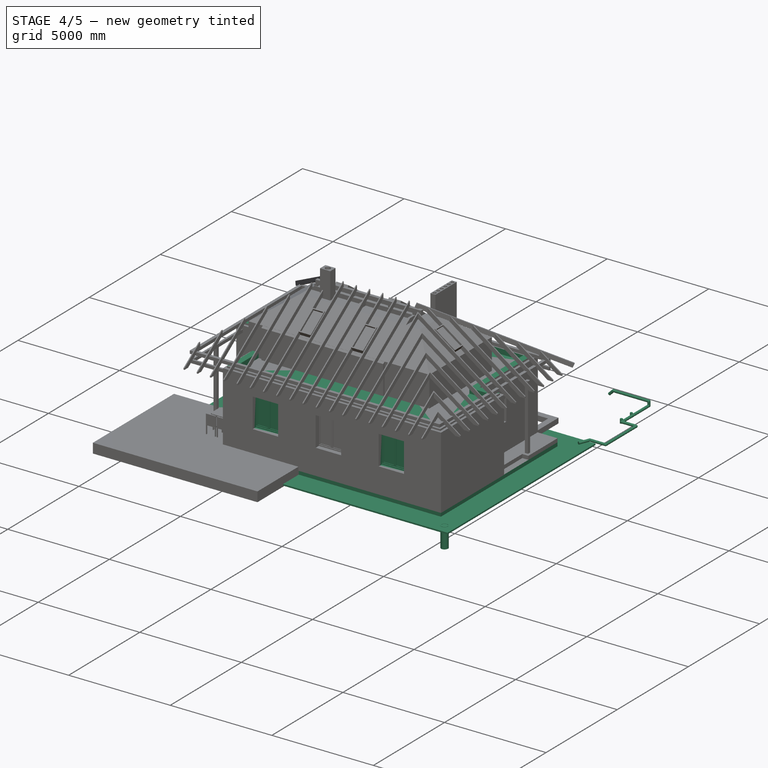
[diagram: stage 4 of 5 — iso view after this stage's code; geometry added in this stage tinted green]
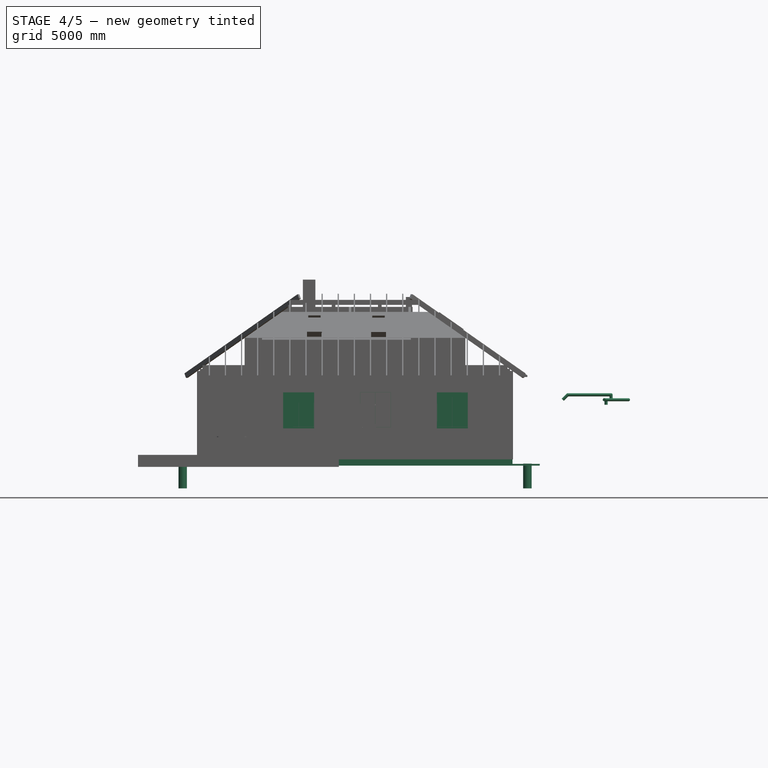
[diagram: stage 4 of 5 — front view after this stage's code; geometry added in this stage tinted green]
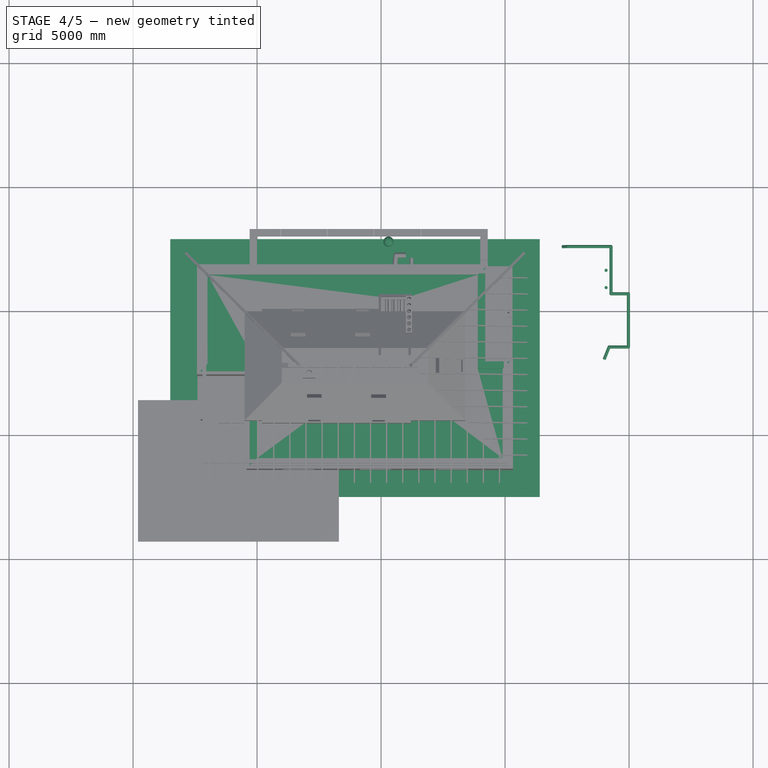
[diagram: stage 4 of 5 — top view after this stage's code; geometry added in this stage tinted green]
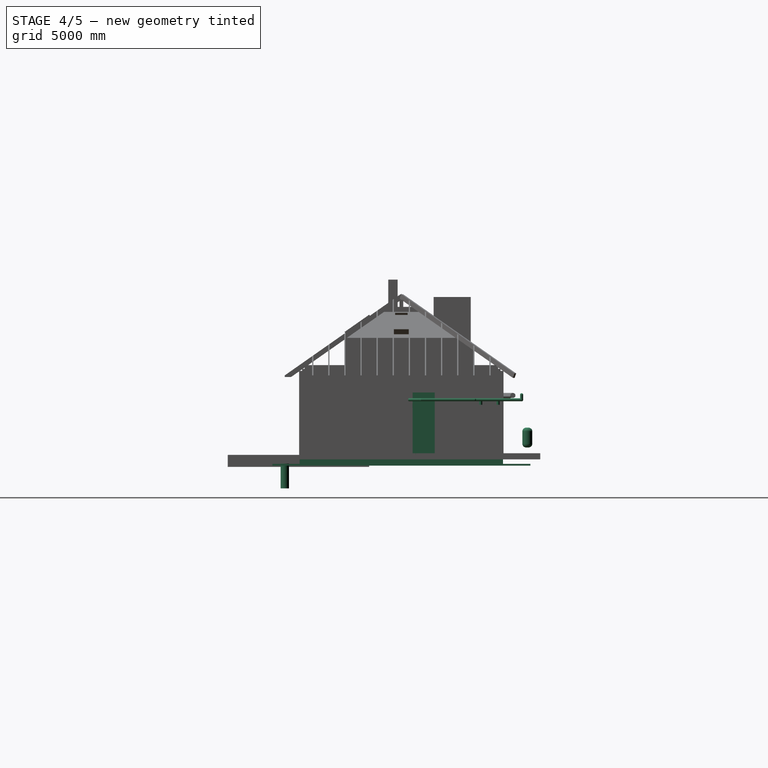
[diagram: stage 4 of 5 — right view after this stage's code; geometry added in this stage tinted green]
FEATURE [Part::Part2DObjectPython] Rectangle007  label="кровать_2_сп_005"  # Draft 2D object (typed FeaturePython)
  ChamferSize = 0
  Columns = 1
  FilletRadius = 25
  Height = 1700
  Length = 2100
  MakeFace = false
  Placement = pos=(9868.39,-5304.25,0) rot=(0,1,0;3.14159rad)
  Rows = 1
FEATURE [Part::Part2DObjectPython] Rectangle009  label="подушка_001"  # Draft 2D object (typed FeaturePython)
  ChamferSize = 0
  Columns = 1
  FilletRadius = 75
  Height = 600
  Length = 500
  MakeFace = false
  Placement = pos=(9824.26,-5088.96,0) rot=(0,1,0;3.14159rad)
  Rows = 1
FEATURE [Part::Feature] Face  label="Водогрей"
  Placement = pos=(7700,4550,0) rot=(0,0,-1;1.5708rad)
  shape: bbox 450 x 500 x 2e-07 mm, 1 faces, 0 solids (baked)
FEATURE [Part::Extrusion] Extrude034  label="подушка_005"
  Base = -> Rectangle009
  Dir = (0,0,1)
  DirMode = 0
  FaceMakerClass = Part::FaceMakerBullseye
  LengthFwd = 150
  LengthRev = 0
  Placement = pos=(0,0,300) rot=(0,0,1;0rad)
  Solid = true
  Symmetric = false
FEATURE [Part::Extrusion] Extrude037  label="кровать_15_сп_002"
  Base = -> Rectangle007
  Dir = (0,0,1)
  DirMode = 0
  FaceMakerClass = Part::FaceMakerBullseye
  LengthFwd = 300
  LengthRev = 0
  Solid = true
  Symmetric = false
FEATURE [Part::Part2DObjectPython] Rectangle361  label="кух.зона"  # Draft 2D object (typed FeaturePython)
  ChamferSize = 0
  Columns = 1
  FilletRadius = 0
  Height = 650
  Length = 2900
  MakeFace = false
  Placement = pos=(6200,-5300,0) rot=(0,0,1;1.5708rad)
  Rows = 1
FEATURE [Part::Part2DObjectPython] Rectangle362  label="проём_032"  # Draft 2D object (typed FeaturePython)
  ChamferSize = 0
  Columns = 1
  FilletRadius = 0
  Height = 900
  Length = 100
  MakeFace = true
  Placement = pos=(5100,-1000,0) rot=(0,0,1;1.5708rad)
  Rows = 1
FEATURE [Part::Part2DObjectPython] Rectangle363  label="проём_033"  # Draft 2D object (typed FeaturePython)
  ChamferSize = 0
  Columns = 1
  FilletRadius = 0
  Height = 100
  Length = 900
  MakeFace = true
  Placement = pos=(3100,-1000,0) rot=(0,0,-1;0rad)
  Rows = 1
FEATURE [Part::Part2DObjectPython] Rectangle364  label="проём_034"  # Draft 2D object (typed FeaturePython)
  ChamferSize = 0
  Columns = 1
  FilletRadius = 0
  Height = 1000
  Length = 100
  MakeFace = true
  Placement = pos=(7400,-2100,0) rot=(0,0,-1;0rad)
  Rows = 1
FEATURE [Part::Part2DObjectPython] Rectangle365  label="проём_двери_входной"  # Draft 2D object (typed FeaturePython)
  ChamferSize = 0
  Columns = 1
  FilletRadius = 0
  Height = 200
  Length = 900
  MakeFace = true
  Placement = pos=(9100,-1850,0) rot=(0,0,1;1.5708rad)
  Rows = 1
FEATURE [Part::Part2DObjectPython] Rectangle367  label="проём_036"  # Draft 2D object (typed FeaturePython)
  ChamferSize = 0
  Columns = 1
  FilletRadius = 0
  Height = 900
  Length = 100
  MakeFace = true
  Placement = pos=(2900,-2000,0) rot=(0,0,1;0rad)
  Rows = 1
FEATURE [Part::Part2DObjectPython] Rectangle372  label="проём_058"  # Draft 2D object (typed FeaturePython)
  ChamferSize = 0
  Columns = 1
  FilletRadius = 0
  Height = 800
  Length = 100
  MakeFace = true
  Placement = pos=(7300,-1000,0) rot=(0,0,1;1.5708rad)
  Rows = 1
FEATURE [Part::Part2DObjectPython] Rectangle374  label="проём_038"  # Draft 2D object (typed FeaturePython)
  ChamferSize = 0
  Columns = 1
  FilletRadius = 0
  Height = 1350
  Length = 200
  MakeFace = true
  Placement = pos=(5450,-6200,0) rot=(0,0,1;1.5708rad)
  Rows = 1
FEATURE [Part::Part2DObjectPython] Rectangle375  label="проём_039"  # Draft 2D object (typed FeaturePython)
  ChamferSize = 0
  Columns = 1
  FilletRadius = 0
  Height = 200
  Length = 1350
  MakeFace = true
  Placement = pos=(-2200,300,0) rot=(0,0,-1;1.5708rad)
  Rows = 1
FEATURE [Part::Part2DObjectPython] Rectangle377  label="проём_001"  # Draft 2D object (typed FeaturePython)
  ChamferSize = 0
  Columns = 1
  FilletRadius = 0
  Height = 200
  Length = 900
  MakeFace = true
  Placement = pos=(4650,1400,0) rot=(0,0,1;0rad)
  Rows = 1
FEATURE [Part::Part2DObjectPython] Rectangle381  label="дымоход"  # Draft 2D object (typed FeaturePython)
  ChamferSize = 0
  Columns = 1
  FilletRadius = 0
  Height = 510
  Length = 380
  MakeFace = false
  Placement = pos=(1845,-2450,0) rot=(0,0,-1;1.5708rad)
  Rows = 1
FEATURE [Part::Part2DObjectPython] Rectangle387  label="проём в плите под лестн. 001"  # Draft 2D object (typed FeaturePython)
  ChamferSize = 0
  Columns = 1
  FilletRadius = 0
  Height = 2600
  Length = 900
  MakeFace = false
  Placement = pos=(6000,400,0) rot=(0,0,1;3.14159rad)
  Rows = 1
FEATURE [Part::FeaturePython] Structure177  label="проём в плите под лестн."  # Arch/BIM object (typed FeaturePython)
  Base = -> Rectangle387
  FaceMaker = 0
  Height = 1000
  HorizontalArea = 2.34e+06
  IfcRole = 0
  Length = 0
  MoveWithHost = false
  Nodes = (2) [(5450,5550,0),(5450,5550,500)]
  NodesOffset = 0
  Normal = (0,0,0)
  PerimeterLength = 7000
  Placement = pos=(0,0,2500) rot=(0,0,1;0rad)
  VerticalArea = 7e+06
  Width = 100
FEATURE [App::GeometryPython] BuildingPart037  label="Ванна"  # Arch/BIM object (typed FeaturePython)
  Area = 0
  Group = -> [Structure179]
  Height = 0
  IfcRole = 0
  LevelOffset = 0
FEATURE [Part::Part2DObjectPython] Rectangle403  label="кровать_2сп_002"  # Draft 2D object (typed FeaturePython)
  ChamferSize = 0
  Columns = 1
  FilletRadius = 25
  Height = 1700
  Length = 2100
  MakeFace = false
  Placement = pos=(835.738,1374.24,0) rot=(0.707107,-0.707107,0;3.14159rad)
  Rows = 1
FEATURE [Part::Part2DObjectPython] Rectangle404  label="подушка_007"  # Draft 2D object (typed FeaturePython)
  ChamferSize = 0
  Columns = 1
  FilletRadius = 75
  Height = 700
  Length = 500
  MakeFace = false
  Placement = pos=(-64.2582,1290.74,0) rot=(0.707107,-0.707107,0;3.14159rad)
  Rows = 1
FEATURE [Part::Part2DObjectPython] Rectangle405  label="подушка_008"  # Draft 2D object (typed FeaturePython)
  ChamferSize = 0
  Columns = 1
  FilletRadius = 75
  Height = 700
  Length = 500
  MakeFace = false
  Placement = pos=(735.742,1290.74,0) rot=(0.707107,-0.707107,0;3.14159rad)
  Rows = 1
FEATURE [Part::Extrusion] Extrude051  label="подушка_009"
  Base = -> Rectangle404
  Dir = (0,0,1)
  DirMode = 0
  FaceMakerClass = Part::FaceMakerBullseye
  LengthFwd = 150
  LengthRev = 0
  Placement = pos=(0,0,300) rot=(0,0,1;0rad)
  Solid = true
  Symmetric = false
FEATURE [Part::Extrusion] Extrude052  label="подушка_010"
  Base = -> Rectangle405
  Dir = (0,0,1)
  DirMode = 0
  FaceMakerClass = Part::FaceMakerBullseye
  LengthFwd = 150
  LengthRev = 0
  Placement = pos=(0,0,300) rot=(0,0,1;0rad)
  Solid = true
  Symmetric = false
FEATURE [Part::Extrusion] Extrude053  label="кровать_2_сп_003"
  Base = -> Rectangle403
  Dir = (0,0,1)
  DirMode = 0
  FaceMakerClass = Part::FaceMakerBullseye
  LengthFwd = 300
  LengthRev = 0
  Solid = true
  Symmetric = false
FEATURE [Part::FeaturePython] Structure188  label="дверь_входная"  # Arch/BIM object (typed FeaturePython)
  Base = -> Rectangle365
  FaceMaker = 0
  Height = 2570
  HorizontalArea = 180000
  IfcRole = 0
  Length = 0
  MoveWithHost = false
  Nodes = (2) [(-4225,7937.5,0),(-4225,7937.5,2250)]
  NodesOffset = 0
  Normal = (0,0,0)
  PerimeterLength = 2200
  VerticalArea = 5654000
  Width = 100
FEATURE [Part::FeaturePython] Structure192  label="окно_бол_001"  # Arch/BIM object (typed FeaturePython)
  Base = -> Rectangle374
  FaceMaker = 0
  Height = 1500
  HorizontalArea = 270000
  IfcRole = 0
  Length = 0
  MoveWithHost = false
  Nodes = (2) [(1187.5,6500,0),(1187.5,6500,1500)]
  NodesOffset = 0
  Normal = (0,0,0)
  PerimeterLength = 3100
  Placement = pos=(0,0,1070) rot=(0,0,1;0rad)
  VerticalArea = 4650000
  Width = 100
FEATURE [Part::FeaturePython] Structure193  label="окно_бол_016"  # Arch/BIM object (typed FeaturePython)
  Base = -> Rectangle375
  FaceMaker = 0
  Height = 1500
  HorizontalArea = 270000
  IfcRole = 0
  Length = 0
  MoveWithHost = false
  Nodes = (2) [(-2125,-187.5,0),(-2125,-187.5,1500)]
  NodesOffset = 0
  Normal = (0,0,0)
  PerimeterLength = 3100
  Placement = pos=(0,0,1070) rot=(0,0,1;0rad)
  VerticalArea = 4650000
  Width = 100
FEATURE [Part::FeaturePython] Structure194  label="окно_бол_015"  # Arch/BIM object (typed FeaturePython)
  Base = -> Rectangle395
  FaceMaker = 0
  Height = 600
  HorizontalArea = 180000
  IfcRole = 0
  Length = 0
  MoveWithHost = false
  Nodes = (2) [(7937.5,-2125,0),(7937.5,-2125,1500)]
  NodesOffset = 0
  Normal = (0,0,0)
  PerimeterLength = 2200
  Placement = pos=(0,0,1970) rot=(0,0,1;0rad)
  VerticalArea = 1.32e+06
  Width = 100
FEATURE [Part::FeaturePython] Structure195  label="окно_мал_001"  # Arch/BIM object (typed FeaturePython)
  Base = -> Rectangle377
  FaceMaker = 0
  Height = 600
  HorizontalArea = 180000
  IfcRole = 0
  Length = 0
  MoveWithHost = false
  Nodes = (2) [(-187.5,2950,0),(-187.5,2950,500)]
  NodesOffset = 0
  Normal = (0,0,0)
  PerimeterLength = 2200
  Placement = pos=(0,0,1970) rot=(0,0,1;0rad)
  VerticalArea = 1.32e+06
  Width = 100
FEATURE [Part::Part2DObjectPython] Rectangle482  label="плита_крыльца_001"  # Draft 2D object (typed FeaturePython)
  ChamferSize = 0
  Columns = 1
  FilletRadius = 0
  Height = 3800
  Length = 1000
  MakeFace = false
  Placement = pos=(9300,-2000,0) rot=(0,0,1;0rad)
  Rows = 1
FEATURE [Part::FeaturePython] Structure237  label="фундамент_плита_крыльца"  # Arch/BIM object (typed FeaturePython)
  Base = -> Rectangle482
  FaceMaker = 0
  Height = 250
  HorizontalArea = 3.8e+06
  IfcRole = 0
  Length = 0
  MoveWithHost = false
  Nodes = (2) [(3875,3875,0),(3875,3875,350)]
  NodesOffset = 0
  Normal = (0,0,-1)
  PerimeterLength = 9600
  Placement = pos=(0,0,-180) rot=(0,0,1;0rad)
  VerticalArea = 2400000
  Width = 100
FEATURE [Part::Part2DObjectPython] Rectangle541  label="проём_055"  # Draft 2D object (typed FeaturePython)
  ChamferSize = 0
  Columns = 1
  FilletRadius = 0
  Height = 1400
  Length = 200
  MakeFace = true
  Placement = pos=(3400,-2200,0) rot=(0,0,-1;1.5708rad)
  Rows = 1
FEATURE [App::FeaturePython] Dimension026  # Draft dimension (typed FeaturePython)
  Diameter = false
  Dimline = (3700,2000,0)
  Direction = (0,0,0)
  Distance = 1800
  End = (5500,2000,0)
  Normal = (0,0,1)
  Start = (3700,2000,0)
FEATURE [Part::Box] Box3095  label="тумбочка 001"
  AttacherType = Attacher::AttachEngine3D
  Height = 650
  Length = 400
  Placement = pos=(-1314.68,921.918,0) rot=(0,0,1;0rad)
  Width = 450
FEATURE [Part::Box] Box3096  label="тумбочка 002"
  AttacherType = Attacher::AttachEngine3D
  Height = 650
  Length = 400
  Placement = pos=(868.079,921.918,0) rot=(0,0,1;0rad)
  Width = 450
FEATURE [Part::Box] Box3097  label="тумбочка 003"
  AttacherType = Attacher::AttachEngine3D
  Height = 650
  Length = 400
  Placement = pos=(9468.39,-3593.4,0) rot=(0,0,1;0rad)
  Width = 450
FEATURE [Part::Part2DObjectPython] Rectangle542  label="подушка_011"  # Draft 2D object (typed FeaturePython)
  ChamferSize = 0
  Columns = 1
  FilletRadius = 75
  Height = 600
  Length = 500
  MakeFace = false
  Placement = pos=(9832.4,-4359.99,0) rot=(0,1,0;3.14159rad)
  Rows = 1
FEATURE [Part::Extrusion] Extrude054  label="подушка_012"
  Base = -> Rectangle542
  Dir = (0,0,1)
  DirMode = 0
  FaceMakerClass = Part::FaceMakerBullseye
  LengthFwd = 150
  LengthRev = 0
  Placement = pos=(0,0,300) rot=(0,0,1;0rad)
  Solid = true
  Symmetric = false
FEATURE [Part::Part2DObjectPython] Rectangle586  label="проём_057"  # Draft 2D object (typed FeaturePython)
  ChamferSize = 0
  Columns = 1
  FilletRadius = 0
  Height = 900
  Length = 200
  MakeFace = true
  Placement = pos=(6400,-2200,0) rot=(0,0,-1;1.5708rad)
  Rows = 1
FEATURE [Part::Box] Box3118  label="сиденье003"
  AttacherType = Attacher::AttachEngine3D
  Height = 50
  Length = 520
  Placement = pos=(3552.22,-5028.46,400) rot=(0,0,-1;1.5708rad)
  Width = 480
FEATURE [Part::Box] Box3119  label="ножка025"
  AttacherType = Attacher::AttachEngine3D
  Height = 400
  Length = 40
  Placement = pos=(3992.22,-5508.46,0) rot=(0,0,-1;1.5708rad)
  Width = 40
FEATURE [Part::Box] Box3120  label="ножка026"
  AttacherType = Attacher::AttachEngine3D
  Height = 400
  Length = 40
  Placement = pos=(3552.22,-5028.44,0) rot=(0,0,-1;1.5708rad)
  Width = 40
FEATURE [Part::Box] Box3121  label="ножка027"
  AttacherType = Attacher::AttachEngine3D
  Height = 400
  Length = 40
  Placement = pos=(3552.22,-5508.46,0) rot=(0,0,-1;1.5708rad)
  Width = 40
FEATURE [Part::Box] Box3122  label="ножка028"
  AttacherType = Attacher::AttachEngine3D
  Height = 400
  Length = 40
  Placement = pos=(3992.22,-5028.46,0) rot=(0,0,-1;1.5708rad)
  Width = 40
FEATURE [Part::Box] Box3123  label="спинка003"
  AttacherType = Attacher::AttachEngine3D
  Height = 510
  Length = 50
  Placement = pos=(3552.22,-5498.46,400) rot=(0,0,-1;1.5708rad)
  Width = 480
FEATURE [Part::Box] Box3124  label="сиденье004"
  AttacherType = Attacher::AttachEngine3D
  Height = 50
  Length = 520
  Placement = pos=(4030,-5000,400) rot=(0,0,1;0rad)
  Width = 480
FEATURE [Part::Box] Box3125  label="ножка029"
  AttacherType = Attacher::AttachEngine3D
  Height = 400
  Length = 40
  Placement = pos=(4510,-4560,0) rot=(0,0,1;0rad)
  Width = 40
FEATURE [Part::Box] Box3126  label="ножка030"
  AttacherType = Attacher::AttachEngine3D
  Height = 400
  Length = 40
  Placement = pos=(4029.98,-5000,0) rot=(0,0,1;0rad)
  Width = 40
FEATURE [Part::Box] Box3127  label="ножка031"
  AttacherType = Attacher::AttachEngine3D
  Height = 400
  Length = 40
  Placement = pos=(4510,-5000,0) rot=(0,0,1;0rad)
  Width = 40
FEATURE [Part::Box] Box3128  label="ножка032"
  AttacherType = Attacher::AttachEngine3D
  Height = 400
  Length = 40
  Placement = pos=(4030,-4560,0) rot=(0,0,1;0rad)
  Width = 40
FEATURE [Part::Box] Box3129  label="спинка004"
  AttacherType = Attacher::AttachEngine3D
  Height = 510
  Length = 50
  Placement = pos=(4500,-5000,400) rot=(0,0,1;0rad)
  Width = 480
FEATURE [Part::MultiFuse] Fusion009  label="стул004"
  Shapes = -> [Box3126,Box3127,Box3125,Box3124,Box3128,Box3129]
FEATURE [Part::Box] Box3132  label="ножка033"
  AttacherType = Attacher::AttachEngine3D
  Height = 720
  Length = 40
  Placement = pos=(-640,-1600,0) rot=(0,0,-1;1.5708rad)
  Width = 40
FEATURE [Part::Box] Box3133  label="ножка034"
  AttacherType = Attacher::AttachEngine3D
  Height = 720
  Length = 40
  Placement = pos=(-640,-2160,0) rot=(0,0,-1;1.5708rad)
  Width = 40
FEATURE [Part::Box] Box3134  label="ножка035"
  AttacherType = Attacher::AttachEngine3D
  Height = 720
  Length = 40
  Placement = pos=(-2000,-2160,0) rot=(0,0,-1;1.5708rad)
  Width = 40
FEATURE [Part::Box] Box3135  label="ножка036"
  AttacherType = Attacher::AttachEngine3D
  Height = 720
  Length = 40
  Placement = pos=(-2000,-1599.99,0) rot=(0,0,-1;1.5708rad)
  Width = 40
FEATURE [Part::Box] Box3136  label="столешница005"
  AttacherType = Attacher::AttachEngine3D
  Height = 30
  Length = 600
  Placement = pos=(-2000,-1600,720) rot=(0,0,-1;1.5708rad)
  Width = 1400
FEATURE [Part::MultiFuse] Fusion010
  Shapes = -> [Box3135,Box3132,Box3133,Box3134,Box3136]
FEATURE [Part::FeaturePython] Equipment010  label="стол письменный 004"  # Arch/BIM object (typed FeaturePython)
  Base = -> Fusion010
  EquipmentPower = 0
  HorizontalArea = 0
  IfcRole = 79
  MoveWithHost = false
  PerimeterLength = 0
  VerticalArea = 0
FEATURE [Part::Part2DObjectPython] Line553  label="подающий воздуховод 047"  # Draft 2D object (typed FeaturePython)
  ChamferSize = 0
  Closed = false
  End = (5400,1700,1.6769e-12)
  FilletRadius = 0
  Length = 200
  MakeFace = true
  Placement = pos=(5600,1700,50) rot=(0.57735,-0.57735,0.57735;4.18879rad)
  Points = (2) [(0,250,-200),(0,50,-200)]
  Start = (5400,1700,-200)
  Subdivisions = 0
FEATURE [Part::FeaturePython] Pipe051  label="подающий воздуховод 048"  # Arch/BIM object (typed FeaturePython)
  Base = -> Line553
  Diameter = 200
  HorizontalArea = 0
  IfcRole = 98
  Length = 200
  MoveWithHost = false
  OffsetEnd = 0
  OffsetStart = 0
  PerimeterLength = 0
  Placement = pos=(0,0,2400) rot=(0,0,1;0rad)
  VerticalArea = 0
FEATURE [Part::Part2DObjectPython] Line554  label="подающий воздуховод 049"  # Draft 2D object (typed FeaturePython)
  ChamferSize = 0
  Closed = false
  End = (7200,-1200,0)
  FilletRadius = 0
  Length = 200
  MakeFace = true
  Placement = pos=(24475,-600,0) rot=(0,0,1;0rad)
  Points = (2) [(-17275,-800,0),(-17275,-600,0)]
  Start = (7200,-1400,0)
  Subdivisions = 0
FEATURE [Part::FeaturePython] Pipe052  label="подающий воздуховод 050"  # Arch/BIM object (typed FeaturePython)
  Base = -> Line554
  Diameter = 200
  HorizontalArea = 0
  IfcRole = 98
  Length = 200
  MoveWithHost = false
  OffsetEnd = 0
  OffsetStart = 0
  PerimeterLength = 0
  Placement = pos=(0,0,2400) rot=(0,0,1;0rad)
  VerticalArea = 0
FEATURE [Part::Part2DObjectPython] Wire171  label="вытяжная вентиляция 006"  # Draft 2D object (typed FeaturePython)
  ChamferSize = 0
  Closed = false
  End = (12325,2550,-200)
  FilletRadius = 0
  Length = 8301.35
  MakeFace = true
  Placement = pos=(14575,-1750,-200) rot=(0,0,1;1.5708rad)
  Points = (9) [(-249.995,580.006,0),(249.997,380.001,0),(250,-400,0),(2400,-400,0),(2400,300,0),(4300,300,0),(4300,300,200),(4300,2050,200),(4300,2250,0)]
  Start = (13995,-2000,-200)
  Subdivisions = 0
FEATURE [Part::FeaturePython] Pipe054  label="вытяжная вентиляция 007"  # Arch/BIM object (typed FeaturePython)
  Base = -> Wire171
  Diameter = 125
  HorizontalArea = 0
  IfcRole = 98
  Length = 8301.35
  MoveWithHost = false
  OffsetEnd = 0
  OffsetStart = 0
  PerimeterLength = 0
  Placement = pos=(0,0,2425) rot=(0,0,1;0rad)
  VerticalArea = 0
FEATURE [Part::Part2DObjectPython] Line560  label="вытяжная вентиляция 009"  # Draft 2D object (typed FeaturePython)
  ChamferSize = 0
  Closed = false
  End = (14075,1600,-200)
  FilletRadius = 0
  Length = 200
  MakeFace = true
  Placement = pos=(14275,1600,-150) rot=(0.57735,-0.57735,0.57735;4.18879rad)
  Points = (2) [(0,250,-200),(0,50,-200)]
  Start = (14075,1600,-400)
  Subdivisions = 0
FEATURE [Part::FeaturePython] Pipe055  label="вытяжная вентиляция 008"  # Arch/BIM object (typed FeaturePython)
  Base = -> Line560
  Diameter = 125
  HorizontalArea = 0
  IfcRole = 98
  Length = 200
  MoveWithHost = false
  OffsetEnd = 0
  OffsetStart = 0
  PerimeterLength = 0
  Placement = pos=(0,0,2425) rot=(0,0,1;0rad)
  VerticalArea = 0
FEATURE [Part::Part2DObjectPython] Line561  label="вытяжная вентиляция 011"  # Draft 2D object (typed FeaturePython)
  ChamferSize = 0
  Closed = false
  End = (14075,900,-200)
  FilletRadius = 0
  Length = 200
  MakeFace = true
  Placement = pos=(14275,900,-150) rot=(0.57735,-0.57735,0.57735;4.18879rad)
  Points = (2) [(0,250,-200),(0,50,-200)]
  Start = (14075,900,-400)
  Subdivisions = 0
FEATURE [Part::FeaturePython] Pipe056  label="вытяжная вентиляция 010"  # Arch/BIM object (typed FeaturePython)
  Base = -> Line561
  Diameter = 125
  HorizontalArea = 0
  IfcRole = 98
  Length = 200
  MoveWithHost = false
  OffsetEnd = 0
  OffsetStart = 0
  PerimeterLength = 0
  Placement = pos=(0,0,2425) rot=(0,0,1;0rad)
  VerticalArea = 0
FEATURE [Part::Part2DObjectPython] Circle011  # Draft 2D object (typed FeaturePython)
  FirstAngle = 0
  LastAngle = 0
  MakeFace = false
  Placement = pos=(-3000,-7000,0) rot=(0,0,1;0rad)
  Radius = 170
FEATURE [Part::Part2DObjectPython] Circle012  # Draft 2D object (typed FeaturePython)
  FirstAngle = 0
  LastAngle = 0
  MakeFace = false
  Placement = pos=(-3000,-7000,0) rot=(0,0,1;0rad)
  Radius = 150
FEATURE [Part::FeaturePython] Structure288  label="Structure023"  # Arch/BIM object (typed FeaturePython)
  Base = -> Circle012
  FaceMaker = 0
  Height = 1500
  HorizontalArea = 70685.8
  IfcRole = 0
  Length = 0
  MoveWithHost = false
  Nodes = (2) [(-3000,-7000,0),(-3000,-7000,-1500)]
  NodesOffset = 0
  Normal = (0,0,-1)
  PerimeterLength = 942.478
  VerticalArea = 1.41372e+06
  Width = 100
FEATURE [Part::FeaturePython] Structure287  label="Structure022"  # Arch/BIM object (typed FeaturePython)
  Base = -> Circle011
  FaceMaker = 0
  Height = 1000
  HorizontalArea = 20106.2
  IfcRole = 0
  Length = 0
  MoveWithHost = false
  Nodes = (2) [(-3000,-7000,0),(-3000,-7000,-1000)]
  NodesOffset = 0
  Normal = (0,0,-1)
  PerimeterLength = 1068.14
  Placement = pos=(0,0,-350) rot=(0,0,1;0rad)
  Subtractions = -> [Structure288]
  VerticalArea = 2.01062e+06
  Width = 100
FEATURE [Part::FeaturePython] Structure289  label="Structure024"  # Arch/BIM object (typed FeaturePython)
  Base = -> Circle011
  FaceMaker = 0
  Height = 30
  HorizontalArea = 90792
  IfcRole = 0
  Length = 0
  MoveWithHost = false
  Nodes = (2) [(-3000,-7000,0),(-3000,-7000,30)]
  NodesOffset = 0
  Normal = (0,0,0)
  PerimeterLength = 1068.14
  Placement = pos=(0,0,-1350) rot=(0,0,1;0rad)
  VerticalArea = 32044.2
  Width = 100
FEATURE [App::GeometryPython] BuildingPart066  label="дренажный колодец D340 h1000 003"  # Arch/BIM object (typed FeaturePython)
  Area = 0
  Group = -> [Structure287,Structure289]
  Height = 0
  IfcRole = 0
  LevelOffset = 0
  Placement = pos=(0,50,1) rot=(0,0,1;0rad)
FEATURE [Part::Part2DObjectPython] Circle013  # Draft 2D object (typed FeaturePython)
  FirstAngle = 0
  LastAngle = 0
  MakeFace = false
  Placement = pos=(10900,-7000,0) rot=(0,0,1;0rad)
  Radius = 170
FEATURE [Part::Part2DObjectPython] Circle014  # Draft 2D object (typed FeaturePython)
  FirstAngle = 0
  LastAngle = 0
  MakeFace = false
  Placement = pos=(10900,-7000,0) rot=(0,0,1;0rad)
  Radius = 150
FEATURE [Part::FeaturePython] Structure291  label="Structure026"  # Arch/BIM object (typed FeaturePython)
  Base = -> Circle014
  FaceMaker = 0
  Height = 1500
  HorizontalArea = 70685.8
  IfcRole = 0
  Length = 0
  MoveWithHost = false
  Nodes = (2) [(10900,-7000,0),(10900,-7000,-1500)]
  NodesOffset = 0
  Normal = (0,0,-1)
  PerimeterLength = 942.478
  VerticalArea = 1.41372e+06
  Width = 100
FEATURE [Part::FeaturePython] Structure290  label="Structure025"  # Arch/BIM object (typed FeaturePython)
  Base = -> Circle013
  FaceMaker = 0
  Height = 1000
  HorizontalArea = 20106.2
  IfcRole = 0
  Length = 0
  MoveWithHost = false
  Nodes = (2) [(10900,-7000,0),(10900,-7000,-1000)]
  NodesOffset = 0
  Normal = (0,0,-1)
  PerimeterLength = 1068.14
  Placement = pos=(0,0,-350) rot=(0,0,1;0rad)
  Subtractions = -> [Structure291]
  VerticalArea = 2.01062e+06
  Width = 100
FEATURE [Part::FeaturePython] Structure292  label="Structure027"  # Arch/BIM object (typed FeaturePython)
  Base = -> Circle013
  FaceMaker = 0
  Height = 30
  HorizontalArea = 90792
  IfcRole = 0
  Length = 0
  MoveWithHost = false
  Nodes = (2) [(10900,-7000,0),(10900,-7000,30)]
  NodesOffset = 0
  Normal = (0,0,0)
  PerimeterLength = 1068.14
  Placement = pos=(0,0,-1350) rot=(0,0,1;0rad)
  VerticalArea = 32044.2
  Width = 100
FEATURE [App::GeometryPython] BuildingPart067  label="дренажный колодец D340 h1000 004"  # Arch/BIM object (typed FeaturePython)
  Area = 0
  Group = -> [Structure290,Structure292]
  Height = 0
  IfcRole = 0
  LevelOffset = 0
  Placement = pos=(0,50,1) rot=(0,0,1;0rad)
FEATURE [App::GeometryPython] BuildingPart058  label="Дренаж"  # Arch/BIM object (typed FeaturePython)
  Area = 0
  Group = -> [BuildingPart057,BuildingPart059,Pipe046,Pipe047,BuildingPart066,BuildingPart067]
  Height = 0
  IfcRole = 0
  LevelOffset = 0
  Placement = pos=(0,50,0) rot=(0,0,1;0rad)
FEATURE [Part::Box] Box3142  label="микроволновка 50 см"
  AttacherType = Attacher::AttachEngine3D
  Height = 300
  Length = 500
  Placement = pos=(6200,-5275,1175) rot=(0,0,1;1.5708rad)
  Width = 350
FEATURE [App::GeometryPython] BuildingPart034  label="печь в сборе"  # Arch/BIM object (typed FeaturePython)
  Area = 0
  Group = -> [Structure173,Structure171,Wall]
  Height = 0
  IfcRole = 0
  LevelOffset = 0
FEATURE [Part::Part2DObjectPython] Rectangle605  label="проём_двери_на_террасу"  # Draft 2D object (typed FeaturePython)
  ChamferSize = 0
  Columns = 1
  FilletRadius = 0
  Height = 700
  Length = 200
  MakeFace = true
  Placement = pos=(-200,-3450,0) rot=(0,0,1;0rad)
  Rows = 1
FEATURE [Part::FeaturePython] Structure293  label="дверь_на_террасу"  # Arch/BIM object (typed FeaturePython)
  Base = -> Rectangle605
  FaceMaker = 0
  Height = 2570
  HorizontalArea = 140000
  IfcRole = 0
  Length = 0
  MoveWithHost = false
  Nodes = (2) [(6562.5,7937.5,0),(6562.5,7937.5,2500)]
  NodesOffset = 0
  Normal = (0,0,0)
  PerimeterLength = 1800
  VerticalArea = 4626000
  Width = 100
FEATURE [Part::Part2DObjectPython] Wire173  label="фановая d110 002"  # Draft 2D object (typed FeaturePython)
  ChamferSize = 100
  Closed = false
  End = (-8082,-682,4881.81)
  FilletRadius = 0
  Length = 7647.73
  MakeFace = false
  Placement = pos=(-5282,-732,-320) rot=(0,0,1;0rad)
  Points = (4) [(-200,0,0),(0,9.09495e-13,201.806),(-2600,50,251.806),(-2800,50,5201.81)]
  Start = (-5482,-732,-320)
  Subdivisions = 0
FEATURE [Part::Part2DObjectPython] Wire174  label="фановая d110 004"  # Draft 2D object (typed FeaturePython)
  ChamferSize = 0
  Closed = false
  End = (-7682,-982,150)
  FilletRadius = 0
  Length = 636.976
  MakeFace = false
  Placement = pos=(-7391.04,-691.419,-77.613) rot=(0,0,1;0rad)
  Points = (6) [(-200,0,0),(-99.96,1.9,1.9),(-190.957,-90.5808,27.613),(-190.957,-190.581,52.613),(-190.957,-290.581,227.613),(-290.957,-290.581,227.613)]
  Start = (-7591.04,-691.419,-77.613)
  Subdivisions = 0
FEATURE [Part::Part2DObjectPython] Wire175  label="фановая d50 002"  # Draft 2D object (typed FeaturePython)
  ChamferSize = 0
  Closed = false
  End = (-5400,2200,568.731)
  FilletRadius = 0
  Length = 3687.77
  MakeFace = false
  Placement = pos=(-5200,-650,18.731) rot=(0,0,1;0rad)
  Points = (4) [(-282,-82,-115.966),(-30,-30,-42.4264),(0,2850,50),(-200,2850,550)]
  Start = (-5482,-732,-97.2345)
  Subdivisions = 0
FEATURE [Part::Part2DObjectPython] Wire176  label="фановая d50 006"  # Draft 2D object (typed FeaturePython)
  ChamferSize = 0
  Closed = false
  End = (-7312.62,-2542.38,560)
  FilletRadius = 0
  Length = 2405.74
  MakeFace = false
  Placement = pos=(-5375.31,-825.314,0) rot=(0,0,1;0rad)
  Points = (4) [(-256.686,-1717.06,30),(-63.5169,-1717.06,30.1219),(-1737.3,-1717.06,60),(-1937.3,-1717.06,560)]
  Start = (-5632,-2542.38,30)
  Subdivisions = 0
FEATURE [Part::Cylinder] Cylinder001  label="гидроаккумулятор 001"
  Angle = 360
  AttacherType = Attacher::AttachEngine3D
  Height = 800
  Placement = pos=(5300,2780,300) rot=(0,0,1;3.14159rad)
  Radius = 200
FEATURE [Part::Fillet] Fillet  label="гидроаккумулятор"
  Base = -> Cylinder001
  Edges = 2 edges r=150: [Edge1,Edge3]
FEATURE [App::GeometryPython] BuildingPart028  label="Основание и дренаж"  # Arch/BIM object (typed FeaturePython)
  Area = 0
  Group = -> [Structure159,Structure160,Wall068,BuildingPart058]
  Height = 0
  IfcRole = 0
  LevelOffset = 0
FEATURE [Part::FeaturePython] Wall069  label="отмостка_бетон"  # Arch/BIM object (typed FeaturePython)
  Align = 1
  Base = -> Wire200
  BlockHeight = 0
  BlockLength = 0
  CountBroken = 0
  CountEntire = 0
  Face = 0
  Height = 70
  HorizontalArea = 50820000
  IfcRole = 156
  Joint = 0
  Length = 41800
  MakeBlocks = false
  MoveWithHost = false
  Normal = (0,0,0)
  OffsetFirst = 0
  OffsetSecond = 0
  PerimeterLength = 50600
  Placement = pos=(0,0,-430) rot=(0,0,1;0rad)
  VerticalArea = 6468000
  Width = 1100
FEATURE [Sketcher::SketchObject] Sketch032
  Placement = pos=(2350,-6300,1070) rot=(0,0.707107,0.707107;3.14159rad)
  sketch-geometry (24):
    g0: LineSegment StartX=0 StartY=0 StartZ=0 EndX=1350 EndY=0 EndZ=0
    g1: LineSegment StartX=1350 StartY=0 StartZ=0 EndX=1350 EndY=1500 EndZ=0
    g2: LineSegment StartX=1350 StartY=1500 StartZ=0 EndX=0 EndY=1500 EndZ=0
    g3: LineSegment StartX=0 StartY=1500 StartZ=0 EndX=0 EndY=0 EndZ=0
    g4: LineSegment StartX=55 StartY=55 StartZ=0 EndX=1295 EndY=55 EndZ=0
    g5: LineSegment StartX=1295 StartY=55 StartZ=0 EndX=1295 EndY=1445 EndZ=0
    g6: LineSegment StartX=1295 StartY=1445 StartZ=0 EndX=55 EndY=1445 EndZ=0
    g7: LineSegment StartX=55 StartY=1445 StartZ=0 EndX=55 EndY=55 EndZ=0
    g8: LineSegment StartX=59.4 StartY=59.4 StartZ=0 EndX=672.8 EndY=59.4 EndZ=0
    g9: LineSegment StartX=672.8 StartY=59.4 StartZ=0 EndX=672.8 EndY=1440.6 EndZ=0
    g10: LineSegment StartX=672.8 StartY=1440.6 StartZ=0 EndX=59.4 EndY=1440.6 EndZ=0
    g11: LineSegment StartX=59.4 StartY=1440.6 StartZ=0 EndX=59.4 EndY=59.4 EndZ=0
    g12: LineSegment StartX=114.4 StartY=114.4 StartZ=0 EndX=617.8 EndY=114.4 EndZ=0
    g13: LineSegment StartX=617.8 StartY=114.4 StartZ=0 EndX=617.8 EndY=1385.6 EndZ=0
    g14: LineSegment StartX=617.8 StartY=1385.6 StartZ=0 EndX=114.4 EndY=1385.6 EndZ=0
    g15: LineSegment StartX=114.4 StartY=1385.6 StartZ=0 EndX=114.4 EndY=114.4 EndZ=0
    g16: LineSegment StartX=677.2 StartY=59.4 StartZ=0 EndX=1290.6 EndY=59.4 EndZ=0
    g17: LineSegment StartX=1290.6 StartY=59.4 StartZ=0 EndX=1290.6 EndY=1440.6 EndZ=0
    g18: LineSegment StartX=1290.6 StartY=1440.6 StartZ=0 EndX=677.2 EndY=1440.6 EndZ=0
    g19: LineSegment StartX=677.2 StartY=1440.6 StartZ=0 EndX=677.2 EndY=59.4 EndZ=0
    g20: LineSegment StartX=732.2 StartY=114.4 StartZ=0 EndX=1235.6 EndY=114.4 EndZ=0
    g21: LineSegment StartX=1235.6 StartY=114.4 StartZ=0 EndX=1235.6 EndY=1385.6 EndZ=0
    g22: LineSegment StartX=1235.6 StartY=1385.6 StartZ=0 EndX=732.2 EndY=1385.6 EndZ=0
    g23: LineSegment StartX=732.2 StartY=1385.6 StartZ=0 EndX=732.2 EndY=114.4 EndZ=0
  constraints (71):
    c: Coincident(g0,g1)
    c: Coincident(g1,g2)
    c: Coincident(g2,g3)
    c: Coincident(g3,g0)
    c: Horizontal(g0)
    c: Horizontal(g2)
    c: Vertical(g1)
    c: Vertical(g3)
    c: Coincident(g4,g5)
    c: Coincident(g5,g6)
    c: Coincident(g6,g7)
    c: Coincident(g7,g4)
    c: Horizontal(g4)
    c: Horizontal(g6)
    c: Vertical(g5)
    c: Vertical(g7)
    c: DistanceY(g1) = 1500  'Height'
    c: DistanceX(g0) = 1350  'Width'
    c: DistanceY(g6,g2) = 55  'Frame1'
    c: DistanceX(g2,g6) = 55  'Frame2'
    c: DistanceX(g4,g0) = 55  'Frame3'
    c: DistanceY(g0,g4) = 55  'Frame4'
    c: Coincident(g0,g-1)
    c: Coincident(g8,g9)
    c: Coincident(g9,g10)
    c: Coincident(g10,g11)
    c: Coincident(g11,g8)
    c: Horizontal(g8)
    c: Horizontal(g10)
    c: Vertical(g9)
    c: Vertical(g11)
    c: Coincident(g12,g13)
    c: Coincident(g13,g14)
    c: Coincident(g14,g15)
    c: Coincident(g15,g12)
    c: Horizontal(g12)
    c: Horizontal(g14)
    c: Vertical(g13)
    c: Vertical(g15)
    c: Coincident(g16,g17)
    c: Coincident(g17,g18)
    c: Coincident(g18,g19)
    c: Coincident(g19,g16)
    c: Horizontal(g16)
    c: Horizontal(g18)
    c: Vertical(g17)
    c: Vertical(g19)
    c: Coincident(g20,g21)
    c: Coincident(g21,g22)
    c: Coincident(g22,g23)
    c: Coincident(g23,g20)
    c: Horizontal(g20)
    c: Horizontal(g22)
    c: Vertical(g21)
    c: Vertical(g23)
    c: DistanceY(g8,g12) = 55  'Frame5'
    c: DistanceX(g8,g12) = 55  'Frame6'
    c: DistanceX(g21,g17) = 55  'Frame7'
    c: DistanceY(g21,g17) = 55  'Frame8'
    c: DistanceX(g16,g20) = 55  'Frame9'
    c: DistanceX(g14,g10) = 55  'Frame10'
    c: Equal(g22,g14)
    c: DistanceY(g8,g16) = 0
    c: DistanceY(g10,g18) = 0
    c: DistanceX(g4,g8) = 4.4
    c: DistanceY(g4,g8) = 4.4
    c: DistanceX(g6,g18) = -4.4
    c: DistanceY(g6,g18) = -4.4
    c: DistanceX(g9,g19) = 4.4
    c: PointOnObject(g13,g22)
    c: PointOnObject(g20,g12)
FEATURE [Part::FeaturePython] Window004  label="окно_150х135_001"  # Arch/BIM object (typed FeaturePython)
  Area = 2025000
  Base = -> Sketch032
  Frame = 55
  Height = 1500
  HoleDepth = 0
  HoleWire = 0
  HorizontalArea = 0
  IfcRole = 160
  LouvreSpacing = 0
  LouvreWidth = 0
  MoveWithHost = true
  Normal = (0,1,0)
  Offset = 100
  Opening = 0
  PerimeterLength = 0
  Preset = 3
  SymbolElevation = false
  SymbolPlan = false
  VerticalArea = 0
  Width = 1350
  WindowParts = OuterFrame | Frame | Wire0,Wire1 | 50.0+V | 0.00+V | LeftFrame | Frame | Wire2,Wire3 | 50.0 | 25.0+V | LeftGlass | Glass panel | Wire3 | 5.0 | 50.0+V | RightFrame | Frame | Wire4,Wire5 | 50.0 | 25.0+V | RightGlass | Glass panel | Wire5 | 5.0 | 50.0+V
FEATURE [Sketcher::SketchObject] Sketch033
  Placement = pos=(-2300,300,1070) rot=(0.57735,-0.57735,-0.57735;2.0944rad)
  sketch-geometry (24):
    g0: LineSegment StartX=0 StartY=0 StartZ=0 EndX=1350 EndY=0 EndZ=0
    g1: LineSegment StartX=1350 StartY=0 StartZ=0 EndX=1350 EndY=1500 EndZ=0
    g2: LineSegment StartX=1350 StartY=1500 StartZ=0 EndX=0 EndY=1500 EndZ=0
    g3: LineSegment StartX=0 StartY=1500 StartZ=0 EndX=0 EndY=0 EndZ=0
    g4: LineSegment StartX=55 StartY=55 StartZ=0 EndX=1295 EndY=55 EndZ=0
    g5: LineSegment StartX=1295 StartY=55 StartZ=0 EndX=1295 EndY=1445 EndZ=0
    g6: LineSegment StartX=1295 StartY=1445 StartZ=0 EndX=55 EndY=1445 EndZ=0
    g7: LineSegment StartX=55 StartY=1445 StartZ=0 EndX=55 EndY=55 EndZ=0
    g8: LineSegment StartX=59.4 StartY=59.4 StartZ=0 EndX=672.8 EndY=59.4 EndZ=0
    g9: LineSegment StartX=672.8 StartY=59.4 StartZ=0 EndX=672.8 EndY=1440.6 EndZ=0
    g10: LineSegment StartX=672.8 StartY=1440.6 StartZ=0 EndX=59.4 EndY=1440.6 EndZ=0
    g11: LineSegment StartX=59.4 StartY=1440.6 StartZ=0 EndX=59.4 EndY=59.4 EndZ=0
    g12: LineSegment StartX=114.4 StartY=114.4 StartZ=0 EndX=617.8 EndY=114.4 EndZ=0
    g13: LineSegment StartX=617.8 StartY=114.4 StartZ=0 EndX=617.8 EndY=1385.6 EndZ=0
    g14: LineSegment StartX=617.8 StartY=1385.6 StartZ=0 EndX=114.4 EndY=1385.6 EndZ=0
    g15: LineSegment StartX=114.4 StartY=1385.6 StartZ=0 EndX=114.4 EndY=114.4 EndZ=0
    g16: LineSegment StartX=677.2 StartY=59.4 StartZ=0 EndX=1290.6 EndY=59.4 EndZ=0
    g17: LineSegment StartX=1290.6 StartY=59.4 StartZ=0 EndX=1290.6 EndY=1440.6 EndZ=0
    g18: LineSegment StartX=1290.6 StartY=1440.6 StartZ=0 EndX=677.2 EndY=1440.6 EndZ=0
    g19: LineSegment StartX=677.2 StartY=1440.6 StartZ=0 EndX=677.2 EndY=59.4 EndZ=0
    g20: LineSegment StartX=732.2 StartY=114.4 StartZ=0 EndX=1235.6 EndY=114.4 EndZ=0
    g21: LineSegment StartX=1235.6 StartY=114.4 StartZ=0 EndX=1235.6 EndY=1385.6 EndZ=0
    g22: LineSegment StartX=1235.6 StartY=1385.6 StartZ=0 EndX=732.2 EndY=1385.6 EndZ=0
    g23: LineSegment StartX=732.2 StartY=1385.6 StartZ=0 EndX=732.2 EndY=114.4 EndZ=0
  constraints (71):
    c: Coincident(g0,g1)
    c: Coincident(g1,g2)
    c: Coincident(g2,g3)
    c: Coincident(g3,g0)
    c: Horizontal(g0)
    c: Horizontal(g2)
    c: Vertical(g1)
    c: Vertical(g3)
    c: Coincident(g4,g5)
    c: Coincident(g5,g6)
    c: Coincident(g6,g7)
    c: Coincident(g7,g4)
    c: Horizontal(g4)
    c: Horizontal(g6)
    c: Vertical(g5)
    c: Vertical(g7)
    c: DistanceY(g1) = 1500  'Height'
    c: DistanceX(g0) = 1350  'Width'
    c: DistanceY(g6,g2) = 55  'Frame1'
    c: DistanceX(g2,g6) = 55  'Frame2'
    c: DistanceX(g4,g0) = 55  'Frame3'
    c: DistanceY(g0,g4) = 55  'Frame4'
    c: Coincident(g0,g-1)
    c: Coincident(g8,g9)
    c: Coincident(g9,g10)
    c: Coincident(g10,g11)
    c: Coincident(g11,g8)
    c: Horizontal(g8)
    c: Horizontal(g10)
    c: Vertical(g9)
    c: Vertical(g11)
    c: Coincident(g12,g13)
    c: Coincident(g13,g14)
    c: Coincident(g14,g15)
    c: Coincident(g15,g12)
    c: Horizontal(g12)
    c: Horizontal(g14)
    c: Vertical(g13)
    c: Vertical(g15)
    c: Coincident(g16,g17)
    c: Coincident(g17,g18)
    c: Coincident(g18,g19)
    c: Coincident(g19,g16)
    c: Horizontal(g16)
    c: Horizontal(g18)
    c: Vertical(g17)
    c: Vertical(g19)
    c: Coincident(g20,g21)
    c: Coincident(g21,g22)
    c: Coincident(g22,g23)
    c: Coincident(g23,g20)
    c: Horizontal(g20)
    c: Horizontal(g22)
    c: Vertical(g21)
    c: Vertical(g23)
    c: DistanceY(g8,g12) = 55  'Frame5'
    c: DistanceX(g8,g12) = 55  'Frame6'
    c: DistanceX(g21,g17) = 55  'Frame7'
    c: DistanceY(g21,g17) = 55  'Frame8'
    c: DistanceX(g16,g20) = 55  'Frame9'
    c: DistanceX(g14,g10) = 55  'Frame10'
    c: Equal(g22,g14)
    c: DistanceY(g8,g16) = 0
    c: DistanceY(g10,g18) = 0
    c: DistanceX(g4,g8) = 4.4
    c: DistanceY(g4,g8) = 4.4
    c: DistanceX(g6,g18) = -4.4
    c: DistanceY(g6,g18) = -4.4
    c: DistanceX(g9,g19) = 4.4
    c: PointOnObject(g13,g22)
    c: PointOnObject(g20,g12)
FEATURE [Part::FeaturePython] Window005  label="окно_150х135_002"  # Arch/BIM object (typed FeaturePython)
  Area = 2025000
  Base = -> Sketch033
  Frame = 55
  Height = 1500
  HoleDepth = 0
  HoleWire = 0
  HorizontalArea = 0
  IfcRole = 160
  LouvreSpacing = 0
  LouvreWidth = 0
  MoveWithHost = true
  Normal = (1,0,0)
  Offset = 100
  Opening = 0
  PerimeterLength = 0
  Preset = 3
  SymbolElevation = false
  SymbolPlan = false
  VerticalArea = 0
  Width = 1350
  WindowParts = <same value as first occurrence — deduplicated (x4 in doc)>
FEATURE [Sketcher::SketchObject] Sketch034
  Placement = pos=(7200,-6300,1070) rot=(1,0,0;1.5708rad)
  sketch-geometry (24):
    g0: LineSegment StartX=0 StartY=0 StartZ=0 EndX=1350 EndY=0 EndZ=0
    g1: LineSegment StartX=1350 StartY=0 StartZ=0 EndX=1350 EndY=1500 EndZ=0
    g2: LineSegment StartX=1350 StartY=1500 StartZ=0 EndX=0 EndY=1500 EndZ=0
    g3: LineSegment StartX=0 StartY=1500 StartZ=0 EndX=0 EndY=0 EndZ=0
    g4: LineSegment StartX=55 StartY=55 StartZ=0 EndX=1295 EndY=55 EndZ=0
    g5: LineSegment StartX=1295 StartY=55 StartZ=0 EndX=1295 EndY=1445 EndZ=0
    g6: LineSegment StartX=1295 StartY=1445 StartZ=0 EndX=55 EndY=1445 EndZ=0
    g7: LineSegment StartX=55 StartY=1445 StartZ=0 EndX=55 EndY=55 EndZ=0
    g8: LineSegment StartX=59.4 StartY=59.4 StartZ=0 EndX=672.8 EndY=59.4 EndZ=0
    g9: LineSegment StartX=672.8 StartY=59.4 StartZ=0 EndX=672.8 EndY=1440.6 EndZ=0
    g10: LineSegment StartX=672.8 StartY=1440.6 StartZ=0 EndX=59.4 EndY=1440.6 EndZ=0
    g11: LineSegment StartX=59.4 StartY=1440.6 StartZ=0 EndX=59.4 EndY=59.4 EndZ=0
    g12: LineSegment StartX=114.4 StartY=114.4 StartZ=0 EndX=617.8 EndY=114.4 EndZ=0
    g13: LineSegment StartX=617.8 StartY=114.4 StartZ=0 EndX=617.8 EndY=1385.6 EndZ=0
    g14: LineSegment StartX=617.8 StartY=1385.6 StartZ=0 EndX=114.4 EndY=1385.6 EndZ=0
    g15: LineSegment StartX=114.4 StartY=1385.6 StartZ=0 EndX=114.4 EndY=114.4 EndZ=0
    g16: LineSegment StartX=677.2 StartY=59.4 StartZ=0 EndX=1290.6 EndY=59.4 EndZ=0
    g17: LineSegment StartX=1290.6 StartY=59.4 StartZ=0 EndX=1290.6 EndY=1440.6 EndZ=0
    g18: LineSegment StartX=1290.6 StartY=1440.6 StartZ=0 EndX=677.2 EndY=1440.6 EndZ=0
    g19: LineSegment StartX=677.2 StartY=1440.6 StartZ=0 EndX=677.2 EndY=59.4 EndZ=0
    g20: LineSegment StartX=732.2 StartY=114.4 StartZ=0 EndX=1235.6 EndY=114.4 EndZ=0
    g21: LineSegment StartX=1235.6 StartY=114.4 StartZ=0 EndX=1235.6 EndY=1385.6 EndZ=0
    g22: LineSegment StartX=1235.6 StartY=1385.6 StartZ=0 EndX=732.2 EndY=1385.6 EndZ=0
    g23: LineSegment StartX=732.2 StartY=1385.6 StartZ=0 EndX=732.2 EndY=114.4 EndZ=0
  constraints (71):
    c: Coincident(g0,g1)
    c: Coincident(g1,g2)
    c: Coincident(g2,g3)
    c: Coincident(g3,g0)
    c: Horizontal(g0)
    c: Horizontal(g2)
    c: Vertical(g1)
    c: Vertical(g3)
    c: Coincident(g4,g5)
    c: Coincident(g5,g6)
    c: Coincident(g6,g7)
    c: Coincident(g7,g4)
    c: Horizontal(g4)
    c: Horizontal(g6)
    c: Vertical(g5)
    c: Vertical(g7)
    c: DistanceY(g1) = 1500  'Height'
    c: DistanceX(g0) = 1350  'Width'
    c: DistanceY(g6,g2) = 55  'Frame1'
    c: DistanceX(g2,g6) = 55  'Frame2'
    c: DistanceX(g4,g0) = 55  'Frame3'
    c: DistanceY(g0,g4) = 55  'Frame4'
    c: Coincident(g0,g-1)
    c: Coincident(g8,g9)
    c: Coincident(g9,g10)
    c: Coincident(g10,g11)
    c: Coincident(g11,g8)
    c: Horizontal(g8)
    c: Horizontal(g10)
    c: Vertical(g9)
    c: Vertical(g11)
    c: Coincident(g12,g13)
    c: Coincident(g13,g14)
    c: Coincident(g14,g15)
    c: Coincident(g15,g12)
    c: Horizontal(g12)
    c: Horizontal(g14)
    c: Vertical(g13)
    c: Vertical(g15)
    c: Coincident(g16,g17)
    c: Coincident(g17,g18)
    c: Coincident(g18,g19)
    c: Coincident(g19,g16)
    c: Horizontal(g16)
    c: Horizontal(g18)
    c: Vertical(g17)
    c: Vertical(g19)
    c: Coincident(g20,g21)
    c: Coincident(g21,g22)
    c: Coincident(g22,g23)
    c: Coincident(g23,g20)
    c: Horizontal(g20)
    c: Horizontal(g22)
    c: Vertical(g21)
    c: Vertical(g23)
    c: DistanceY(g8,g12) = 55  'Frame5'
    c: DistanceX(g8,g12) = 55  'Frame6'
    c: DistanceX(g21,g17) = 55  'Frame7'
    c: DistanceY(g21,g17) = 55  'Frame8'
    c: DistanceX(g16,g20) = 55  'Frame9'
    c: DistanceX(g14,g10) = 55  'Frame10'
    c: Equal(g22,g14)
    c: DistanceY(g8,g16) = 0
    c: DistanceY(g10,g18) = 0
    c: DistanceX(g4,g8) = 4.4
    c: DistanceY(g4,g8) = 4.4
    c: DistanceX(g6,g18) = -4.4
    c: DistanceY(g6,g18) = -4.4
    c: DistanceX(g9,g19) = 4.4
    c: PointOnObject(g13,g22)
    c: PointOnObject(g20,g12)
FEATURE [Part::FeaturePython] Window006  label="окно_150х135_003"  # Arch/BIM object (typed FeaturePython)
  Area = 2025000
  Base = -> Sketch034
  Frame = 55
  Height = 1500
  HoleDepth = 0
  HoleWire = 0
  HorizontalArea = 0
  IfcRole = 160
  LouvreSpacing = 0
  LouvreWidth = 0
  MoveWithHost = true
  Normal = (2e-16,1,-2e-16)
  Offset = 100
  Opening = 0
  PerimeterLength = 0
  Preset = 3
  SymbolElevation = false
  SymbolPlan = false
  VerticalArea = 0
  Width = 1350
  WindowParts = <same value as first occurrence — deduplicated (x4 in doc)>
FEATURE [Sketcher::SketchObject] Sketch035
  Placement = pos=(9200,-1900,0) rot=(0.57735,0.57735,0.57735;2.0944rad)
  sketch-geometry (16):
    g0: LineSegment StartX=0 StartY=0 StartZ=0 EndX=1000 EndY=0 EndZ=0
    g1: LineSegment StartX=1000 StartY=0 StartZ=0 EndX=1000 EndY=2570 EndZ=0
    g2: LineSegment StartX=1000 StartY=2570 StartZ=0 EndX=0 EndY=2570 EndZ=0
    g3: LineSegment StartX=0 StartY=2570 StartZ=0 EndX=0 EndY=0 EndZ=0
    g4: LineSegment StartX=50 StartY=-3.6e-15 StartZ=0 EndX=950 EndY=-3.6e-15 EndZ=0
    g5: LineSegment StartX=950 StartY=-3.6e-15 StartZ=0 EndX=950 EndY=2520 EndZ=0
    g6: LineSegment StartX=950 StartY=2520 StartZ=0 EndX=50 EndY=2520 EndZ=0
    g7: LineSegment StartX=50 StartY=2520 StartZ=0 EndX=50 EndY=0 EndZ=0
    g8: LineSegment StartX=54.4 StartY=4.4 StartZ=0 EndX=945.6 EndY=4.4 EndZ=0
    g9: LineSegment StartX=945.6 StartY=4.4 StartZ=0 EndX=945.6 EndY=2515.6 EndZ=0
    g10: LineSegment StartX=945.6 StartY=2515.6 StartZ=0 EndX=54.4 EndY=2515.6 EndZ=0
    g11: LineSegment StartX=54.4 StartY=2515.6 StartZ=0 EndX=54.4 EndY=4.4 EndZ=0
    g12: LineSegment StartX=354.4 StartY=804.4 StartZ=0 EndX=645.6 EndY=804.4 EndZ=0
    g13: LineSegment StartX=645.6 StartY=804.4 StartZ=0 EndX=645.6 EndY=2215.6 EndZ=0
    g14: LineSegment StartX=645.6 StartY=2215.6 StartZ=0 EndX=354.4 EndY=2215.6 EndZ=0
    g15: LineSegment StartX=354.4 StartY=2215.6 StartZ=0 EndX=354.4 EndY=804.4 EndZ=0
  constraints (47):
    c: Coincident(g0,g1)
    c: Coincident(g1,g2)
    c: Coincident(g2,g3)
    c: Coincident(g3,g0)
    c: Horizontal(g0)
    c: Horizontal(g2)
    c: Vertical(g1)
    c: Vertical(g3)
    c: Coincident(g4,g5)
    c: Coincident(g5,g6)
    c: Coincident(g6,g7)
    c: Coincident(g7,g4)
    c: Horizontal(g4)
    c: Horizontal(g6)
    c: Vertical(g5)
    c: Vertical(g7)
    c: DistanceY(g1) = 2570  'Height'
    c: DistanceX(g0) = 1000  'Width'
    c: DistanceY(g6,g2) = 50  'Frame1'
    c: DistanceX(g2,g6) = 50  'Frame2'
    c: DistanceX(g4,g0) = 50  'Frame3'
    c: DistanceY(g0,g4) = 0
    c: Coincident(g0,g-1)
    c: Coincident(g8,g9)
    c: Coincident(g9,g10)
    c: Coincident(g10,g11)
    c: Coincident(g11,g8)
    c: Horizontal(g8)
    c: Horizontal(g10)
    c: Vertical(g9)
    c: Vertical(g11)
    c: Coincident(g12,g13)
    c: Coincident(g13,g14)
    c: Coincident(g14,g15)
    c: Coincident(g15,g12)
    c: Horizontal(g12)
    c: Horizontal(g14)
    c: Vertical(g13)
    c: Vertical(g15)
    c: DistanceX(g8,g12) = 300
    c: DistanceY(g8,g12) = 800
    c: DistanceX(g14,g10) = 300
    c: DistanceY(g14,g10) = 300
    c: DistanceX(g4,g8) = 4.4
    c: DistanceY(g4,g8) = 4.4
    c: DistanceX(g10,g6) = 4.4
    c: DistanceY(g10,g6) = 4.4
FEATURE [Part::FeaturePython] Window007  label="Дверь_входная  (100 по коробке)"  # Arch/BIM object (typed FeaturePython)
  Area = 2570000
  Base = -> Sketch035
  Frame = 50
  Height = 2570
  HoleDepth = 0
  HoleWire = 0
  HorizontalArea = 0
  IfcRole = 42
  LouvreSpacing = 0
  LouvreWidth = 0
  MoveWithHost = true
  Normal = (-1,0,0)
  Opening = 0
  PerimeterLength = 0
  Preset = 7
  SymbolElevation = false
  SymbolPlan = false
  VerticalArea = 0
  Width = 1000
  WindowParts = OuterFrame | Frame | Wire0,Wire1 | 0.0+V | 0.00+V | InnerFrame | Frame | Wire2,Wire3 | 0.00+V | 0.0+V | InnerGlass | Glass panel | Wire3 | 10.0 | 50.0+V
FEATURE [Part::FeaturePython] Structure346  label="пол_в_проёме_007"  # Arch/BIM object (typed FeaturePython)
  Base = -> Rectangle367
  FaceMaker = 0
  Height = 180
  HorizontalArea = 90000
  IfcRole = 0
  Length = 0
  MoveWithHost = false
  Nodes = (2) [(3675,1250,0),(3675,1250,180)]
  NodesOffset = 0
  Normal = (0,0,0)
  PerimeterLength = 2000
  Placement = pos=(0,0,-180) rot=(0,0,1;0rad)
  VerticalArea = 360000
  Width = 100
FEATURE [Part::FeaturePython] Structure347  label="пол_в_проёме_004"  # Arch/BIM object (typed FeaturePython)
  Base = -> Rectangle364
  FaceMaker = 0
  Height = 180
  HorizontalArea = 100000
  IfcRole = 0
  Length = 0
  MoveWithHost = false
  Nodes = (2) [(-450,-6150,0),(-450,-6150,180)]
  NodesOffset = 0
  Normal = (0,0,0)
  PerimeterLength = 2200
  Placement = pos=(0,0,-180) rot=(0,0,1;0rad)
  VerticalArea = 396000
  Width = 100
FEATURE [Part::FeaturePython] Structure348  label="пол_в_проёме_002"  # Arch/BIM object (typed FeaturePython)
  Base = -> Rectangle372
  FaceMaker = 0
  Height = 180
  HorizontalArea = 80000
  IfcRole = 0
  Length = 0
  MoveWithHost = false
  Nodes = (2) [(4750,-2800,0),(4750,-2800,180)]
  NodesOffset = 0
  Normal = (0,0,0)
  PerimeterLength = 1800
  Placement = pos=(0,0,-180) rot=(0,0,1;0rad)
  VerticalArea = 324000
  Width = 100
FEATURE [Part::FeaturePython] Structure349  label="пол_в_проёме_003"  # Arch/BIM object (typed FeaturePython)
  Base = -> Rectangle586
  FaceMaker = 0
  Height = 180
  HorizontalArea = 180000
  IfcRole = 0
  Length = 0
  MoveWithHost = false
  Nodes = (2) [(7000,-2650,0),(7000,-2650,180)]
  NodesOffset = 0
  Normal = (0,0,0)
  PerimeterLength = 2200
  Placement = pos=(0,0,-180) rot=(0,0,1;0rad)
  VerticalArea = 396000
  Width = 100
FEATURE [Part::FeaturePython] Structure350  label="пол_в_проёме_006"  # Arch/BIM object (typed FeaturePython)
  Base = -> Rectangle541
  FaceMaker = 0
  Height = 180
  HorizontalArea = 280000
  IfcRole = 0
  Length = 0
  MoveWithHost = false
  Nodes = (2) [(7000,250,0),(7000,250,180)]
  NodesOffset = 0
  Normal = (0,0,0)
  PerimeterLength = 3200
  Placement = pos=(0,0,-180) rot=(0,0,1;0rad)
  VerticalArea = 576000
  Width = 100
FEATURE [Part::FeaturePython] Structure351  label="пол_в_проёме_005"  # Arch/BIM object (typed FeaturePython)
  Base = -> Rectangle363
  FaceMaker = 0
  Height = 180
  HorizontalArea = 90000
  IfcRole = 0
  Length = 0
  MoveWithHost = false
  Nodes = (2) [(850,-1450,0),(850,-1450,180)]
  NodesOffset = 0
  Normal = (0,0,0)
  PerimeterLength = 2000
  Placement = pos=(0,0,-180) rot=(0,0,1;0rad)
  VerticalArea = 360000
  Width = 100
FEATURE [Part::FeaturePython] Structure363  label="проём для печи"  # Arch/BIM object (typed FeaturePython)
  Base = -> Rectangle563
  FaceMaker = 0
  Height = 2300
  HorizontalArea = 260000
  IfcRole = 0
  Length = 0
  MoveWithHost = false
  Nodes = (2) [(-4225,7937.5,0),(-4225,7937.5,2250)]
  NodesOffset = 0
  Normal = (0,0,0)
  PerimeterLength = 3000
  Placement = pos=(0,0,-180) rot=(0,0,1;0rad)
  VerticalArea = 6.9e+06
  Width = 100
FEATURE [Part::FeaturePython] Wall089  label="проём теплоизол. трубы"  # Arch/BIM object (typed FeaturePython)
  Align = 0
  Base = -> Rectangle381
  BlockHeight = 0
  BlockLength = 0
  CountBroken = 0
  CountEntire = 0
  Face = 0
  Height = 300
  HorizontalArea = 218000
  IfcRole = 156
  Joint = 0
  Length = 1780
  MakeBlocks = false
  MoveWithHost = false
  Normal = (0,0,1)
  OffsetFirst = 0
  OffsetSecond = 0
  PerimeterLength = 2580
  Placement = pos=(0,0,2970) rot=(0,0,1;0rad)
  VerticalArea = 1308000
  Width = 100
FEATURE [Part::Part2DObjectPython] Wire204  label="граница_участка002"  # Draft 2D object (typed FeaturePython)
  ChamferSize = 0
  Closed = true
  End = (21200,-17900,0)
  FilletRadius = 0
  Length = 112312
  MakeFace = false
  Placement = pos=(-7100,-17586.3,0) rot=(0,0,1;0rad)
  Points = (8) [(1.81899e-12,-0.000230658,0),(-400,25286.3,0),(16300,23621.4,0),(16300,27085.6,0),(21200,27084.5,0),(21200,23146.9,0),(28000,22488.3,0),+1 more]
  Start = (-7100,-17586.3,0)
  Subdivisions = 0
FEATURE [Part::Part2DObjectPython] Rectangle701  label="граница_участка003"  # Draft 2D object (typed FeaturePython)
  ChamferSize = 0
  Columns = 1
  FilletRadius = 0
  Height = 25200
  Length = 28000
  MakeFace = false
  Placement = pos=(-7100,-17586.3,0) rot=(0,0,1;0rad)
  Rows = 1
FEATURE [Part::Part2DObjectPython] Rectangle702  label="баня_старая001"  # Draft 2D object (typed FeaturePython)
  ChamferSize = 0
  Columns = 1
  FilletRadius = 0
  Height = 4400
  Length = 2300
  MakeFace = true
  Placement = pos=(-7100,-16186.3,0) rot=(0,0,1;0rad)
  Rows = 1
FEATURE [Part::Part2DObjectPython] Rectangle703  label="площадка001"  # Draft 2D object (typed FeaturePython)
  ChamferSize = 0
  Columns = 1
  FilletRadius = 0
  Height = 3000
  Length = 3000
  MakeFace = true
  Placement = pos=(300,-12600,0) rot=(0,0,1;0rad)
  Rows = 1
FEATURE [Part::Part2DObjectPython] Rectangle704  label="дом001"  # Draft 2D object (typed FeaturePython)
  ChamferSize = 0
  Columns = 1
  FilletRadius = 0
  Height = 6700
  Length = 7900
  MakeFace = true
  Placement = pos=(4400,-6700,0) rot=(0,0,1;0rad)
  Rows = 1
FEATURE [Part::Part2DObjectPython] Rectangle705  label="гараж001"  # Draft 2D object (typed FeaturePython)
  ChamferSize = 0
  Columns = 1
  FilletRadius = 0
  Height = 8000
  Length = 3300
  MakeFace = true
  Placement = pos=(12300,-8000,0) rot=(0,0,1;0rad)
  Rows = 1
FEATURE [Part::Part2DObjectPython] Rectangle706  label="крыльцо002"  # Draft 2D object (typed FeaturePython)
  ChamferSize = 0
  Columns = 1
  FilletRadius = 0
  Height = 3100
  Length = 4900
  MakeFace = true
  Placement = pos=(5900,-9800,0) rot=(0,0,1;0rad)
  Rows = 1
FEATURE [App::DocumentObjectGroup] Group075  label="участок"
  Group = -> [Wire204,Rectangle701,Rectangle702,Rectangle703,Rectangle704,Rectangle705,Rectangle706]
FEATURE [Part::Part2DObjectPython] Rectangle707  label="лестница"  # Draft 2D object (typed FeaturePython)
  ChamferSize = 0
  Columns = 1
  FilletRadius = 0
  Height = 2400
  Length = 1800
  MakeFace = false
  Placement = pos=(4200,-1000,0) rot=(0,0,1;0rad)
  Rows = 1
FEATURE [Part::Part2DObjectPython] ShapeString018  label="надпись 019"  # Draft 2D object (typed FeaturePython)
  FontFile = <path>
  Placement = pos=(6618.3,811.63,0) rot=(0,0,1;0rad)
  Size = 100
  String = Теплогенераторная 4,26 м2
  Tracking = 0
FEATURE [Part::Part2DObjectPython] Rectangle714  label="Rectangle713"  # Draft 2D object (typed FeaturePython)
  ChamferSize = 0
  Columns = 1
  FilletRadius = 0
  Height = 50
  Length = 100
  MakeFace = true
  Placement = pos=(4000,-1000,0) rot=(0,0,1;1.5708rad)
  Rows = 1
FEATURE [Part::Part2DObjectPython] Line581  # Draft 2D object (typed FeaturePython)
  ChamferSize = 0
  Closed = false
  End = (3100,-950,0)
  FilletRadius = 0
  Length = 900
  MakeFace = true
  Placement = pos=(4200,-950,0) rot=(0,0,1;1.5708rad)
  Points = (2) [(-6.82121e-13,200,0),(3.41061e-13,1100,0)]
  Start = (4000,-950,0)
  Subdivisions = 0
FEATURE [Part::Part2DObjectPython] Rectangle715  label="Rectangle714"  # Draft 2D object (typed FeaturePython)
  ChamferSize = 0
  Columns = 1
  FilletRadius = 0
  Height = 50
  Length = 100
  MakeFace = true
  Placement = pos=(3150,-1000,0) rot=(0,0,1;1.5708rad)
  Rows = 1
FEATURE [Part::Part2DObjectPython] Rectangle724  label="Rectangle721"  # Draft 2D object (typed FeaturePython)
  ChamferSize = 0
  Columns = 1
  FilletRadius = 0
  Height = 100
  Length = 50
  MakeFace = true
  Placement = pos=(7400,-1100,0) rot=(0,0,-1;1.5708rad)
  Rows = 1
FEATURE [Part::Part2DObjectPython] Line583  # Draft 2D object (typed FeaturePython)
  ChamferSize = 0
  Closed = false
  End = (7450,-2100,0)
  FilletRadius = 0
  Length = 1000
  MakeFace = true
  Placement = pos=(7450,-1300,0) rot=(0,0,1;0rad)
  Points = (2) [(0,200,0),(0,-800,0)]
  Start = (7450,-1100,0)
  Subdivisions = 0
FEATURE [Part::Part2DObjectPython] Rectangle725  label="Rectangle722"  # Draft 2D object (typed FeaturePython)
  ChamferSize = 0
  Columns = 1
  FilletRadius = 0
  Height = 100
  Length = 50
  MakeFace = true
  Placement = pos=(7400,-2050,0) rot=(0,0,-1;1.5708rad)
  Rows = 1
FEATURE [Part::Part2DObjectPython] Rectangle727  label="Rectangle723"  # Draft 2D object (typed FeaturePython)
  ChamferSize = 0
  Columns = 1
  FilletRadius = 0
  Height = 100
  Length = 50
  MakeFace = true
  Placement = pos=(9200,-1900,0) rot=(0,0,1;1.5708rad)
  Rows = 1
FEATURE [Part::Part2DObjectPython] Line584  # Draft 2D object (typed FeaturePython)
  ChamferSize = 0
  Closed = false
  End = (9150,-900,0)
  FilletRadius = 0
  Length = 1000
  MakeFace = true
  Placement = pos=(9150,-2000,0) rot=(0,0,1;3.14159rad)
  Points = (2) [(-3.63798e-12,-100,0),(0,-1100,0)]
  Start = (9150,-1900,0)
  Subdivisions = 0
FEATURE [Part::Part2DObjectPython] Rectangle728  label="Rectangle724"  # Draft 2D object (typed FeaturePython)
  ChamferSize = 0
  Columns = 1
  FilletRadius = 0
  Height = 100
  Length = 50
  MakeFace = true
  Placement = pos=(9200,-950,0) rot=(0,0,1;1.5708rad)
  Rows = 1
FEATURE [Part::Part2DObjectPython] Rectangle743  label="проём_064"  # Draft 2D object (typed FeaturePython)
  ChamferSize = 0
  Columns = 1
  FilletRadius = 0
  Height = 1350
  Length = 200
  MakeFace = true
  Placement = pos=(8550,-6200,0) rot=(0,0,1;1.5708rad)
  Rows = 1
FEATURE [Part::FeaturePython] Structure365  label="окно_бол_017"  # Arch/BIM object (typed FeaturePython)
  Base = -> Rectangle743
  FaceMaker = 0
  Height = 1500
  HorizontalArea = 270000
  IfcRole = 0
  Length = 0
  MoveWithHost = false
  Nodes = (2) [(1187.5,6500,0),(1187.5,6500,1500)]
  NodesOffset = 0
  Normal = (0,0,0)
  PerimeterLength = 3100
  Placement = pos=(0,0,1070) rot=(0,0,1;0rad)
  VerticalArea = 4.65e+06
  Width = 100
FEATURE [Part::Part2DObjectPython] Rectangle746  label="Стена D500 250x250 внутр. нес. 002"  # Draft 2D object (typed FeaturePython)
  ChamferSize = 0
  Columns = 1
  FilletRadius = 0
  Height = 200
  Length = 8900
  MakeFace = true
  Placement = pos=(2.33e-13,-2400,0) rot=(0,0,1;0rad)
  Rows = 1
FEATURE [Part::FeaturePython] Structure366  label="проём двери вн. 003"  # Arch/BIM object (typed FeaturePython)
  Base = -> Rectangle541
  FaceMaker = 0
  Height = 2250
  HorizontalArea = 280000
  IfcRole = 0
  Length = 0
  MoveWithHost = false
  Nodes = (2) [(-4225,7937.5,0),(-4225,7937.5,2250)]
  NodesOffset = 0
  Normal = (0,0,0)
  PerimeterLength = 3200
  Placement = pos=(0,0,-180) rot=(0,0,1;0rad)
  VerticalArea = 7200000
  Width = 100
FEATURE [Part::FeaturePython] Wall092  label="Стена D500 250мм внутр. несущая 003"  # Arch/BIM object (typed FeaturePython)
  Align = 2
  Base = -> Rectangle746
  BlockHeight = 0
  BlockLength = 0
  CountBroken = 0
  CountEntire = 0
  Face = 0
  Height = 3000
  HorizontalArea = 1.78e+06
  IfcRole = 156
  Joint = 0
  Length = 0
  MakeBlocks = false
  MoveWithHost = false
  Normal = (0,0,0)
  OffsetFirst = 0
  OffsetSecond = 0
  PerimeterLength = 18200
  Placement = pos=(1.819e-12,3.1832e-12,-180) rot=(0,0,1;0rad)
  Subtractions = -> [Structure366,Structure367,Structure363]
  VerticalArea = 4.099e+07
  Width = 250
FEATURE [Part::Part2DObjectPython] Rectangle783  label="проём в теплоизоляции под лестн. 001"  # Draft 2D object (typed FeaturePython)
  ChamferSize = 0
  Columns = 1
  FilletRadius = 0
  Height = 2600
  Length = 900
  MakeFace = false
  Placement = pos=(6000,400,0) rot=(0,0,1;3.14159rad)
  Rows = 1
FEATURE [Part::FeaturePython] Wall090  label="проём обрамление лестницы"  # Arch/BIM object (typed FeaturePython)
  Align = 0
  Base = -> Rectangle783
  BlockHeight = 0
  BlockLength = 0
  CountBroken = 0
  CountEntire = 0
  Face = 0
  Height = 300
  HorizontalArea = 740000
  IfcRole = 156
  Joint = 0
  Length = 7000
  MakeBlocks = false
  MoveWithHost = false
  Normal = (0,0,1)
  OffsetFirst = 0
  OffsetSecond = 0
  PerimeterLength = 7800
  Placement = pos=(0,0,2970) rot=(0,0,1;0rad)
  VerticalArea = 4.44e+06
  Width = 100
FEATURE [Part::FeaturePython] Wall091  label="обрамление лестницы ГБ 100"  # Arch/BIM object (typed FeaturePython)
  Align = 0
  Base = -> Rectangle783
  BlockHeight = 0
  BlockLength = 0
  CountBroken = 0
  CountEntire = 0
  Face = 0
  Height = 250
  HorizontalArea = 740000
  IfcRole = 156
  Joint = 0
  Length = 7000
  MakeBlocks = false
  MoveWithHost = false
  Normal = (0,0,1)
  OffsetFirst = 0
  OffsetSecond = 0
  PerimeterLength = 7800
  Placement = pos=(0,0,2970) rot=(0,0,1;0rad)
  VerticalArea = 3.7e+06
  Width = 100
FEATURE [App::GeometryPython] BuildingPart055  label="Отопление и вентиляция"  # Arch/BIM object (typed FeaturePython)
  Area = 0
  Group = -> [Pipe032,Pipe038,Pipe039,Pipe037,Pipe034,Pipe036,Pipe033,Structure260,Structure261,Pipe040,Pipe035,Pipe041,Pipe042,Pipe043,Pipe044,Structure262,Pipe051,Pipe052,Pipe053,Pipe054,Pipe055,Pipe056,Pipe072,Pipe073]
  Height = 0
  IfcRole = 0
  LevelOffset = 0
FEATURE [App::GeometryPython] BuildingPart062  label="Инженерные системы"  # Arch/BIM object (typed FeaturePython)
  Area = 0
  Group = -> [BuildingPart060,BuildingPart051,BuildingPart055,BuildingPart061]
  Height = 0
  IfcRole = 0
  LevelOffset = 0
FEATURE [Part::Part2DObjectPython] Wire232  label="прощадь внутри стен контур"  # Draft 2D object (typed FeaturePython)
  ChamferSize = 0
  Closed = true
  End = (-2000,-2200,0)
  FilletRadius = 0
  Length = 38600
  MakeFace = false
  Placement = pos=(-1.47e-13,2400,0) rot=(0,0,1;0rad)
  Points = (8) [(-2000,-1000,0),(8900,-1000,0),(8900,-4800,0),(9900,-4800,0),(9900,-8400,0),(-4.77612e-13,-8400,0),(1.47e-13,-4600,0),(-2000,-4600,0)]
  Start = (-2000,1400,0)
  Subdivisions = 0
FEATURE [Part::FeaturePython] Wall087  label="аттиковая стена D300 300x250 h500"  # Arch/BIM object (typed FeaturePython)
  Align = 1
  Base = -> Wire232
  BlockHeight = 0
  BlockLength = 0
  CountBroken = 0
  CountEntire = 0
  Face = 0
  Height = 500
  HorizontalArea = 1.194e+07
  IfcRole = 156
  Joint = 0
  Length = 38600
  MakeBlocks = false
  MoveWithHost = false
  Normal = (0,0,0)
  OffsetFirst = 0
  OffsetSecond = 0
  PerimeterLength = 41000
  Placement = pos=(0,0,2970) rot=(0,0,1;0rad)
  VerticalArea = 39800000
  Width = 300
FEATURE [Part::Part2DObjectPython] Rectangle951  label="проём_дымохода_профиль"  # Draft 2D object (typed FeaturePython)
  ChamferSize = 0
  Columns = 1
  FilletRadius = 0
  Height = 400
  Length = 520
  MakeFace = false
  Placement = pos=(1840,-2840,0) rot=(0,0,1;0rad)
  Rows = 1
FEATURE [Part::FeaturePython] Structure178  label="проём_дымохода"  # Arch/BIM object (typed FeaturePython)
  Base = -> Rectangle951
  FaceMaker = 0
  Height = 1000
  HorizontalArea = 208000
  IfcRole = 0
  Length = 0
  MoveWithHost = false
  Nodes = (2) [(3838.98,5661.82,0),(3838.98,5661.82,500)]
  NodesOffset = 0
  Normal = (0,0,0)
  PerimeterLength = 1840
  Placement = pos=(0,0,2250) rot=(0,0,1;0rad)
  VerticalArea = 1.84e+06
  Width = 100
FEATURE [Part::FeaturePython] Wall078  label="теплоизол. трубы ГБ 100мм"  # Arch/BIM object (typed FeaturePython)
  Align = 0
  Base = -> Rectangle951
  BlockHeight = 0
  BlockLength = 0
  CountBroken = 0
  CountEntire = 0
  Face = 0
  Height = 250
  HorizontalArea = 224000
  IfcRole = 156
  Joint = 0
  Length = 1840
  MakeBlocks = false
  MoveWithHost = false
  Normal = (0,0,1)
  OffsetFirst = 0
  OffsetSecond = 0
  PerimeterLength = 2640
  Placement = pos=(0,0,2970) rot=(0,0,1;0rad)
  VerticalArea = 1120000
  Width = 100
FEATURE [Part::FeaturePython] Structure360  label="плита перекрытия по профнастилу габарит"  # Arch/BIM object (typed FeaturePython)
  Base = -> Wire239
  FaceMaker = 0
  Height = 150
  HorizontalArea = 8.1992e+07
  IfcRole = 0
  Length = 0
  MoveWithHost = false
  Nodes = (2) [(4800,-2333.66,0),(4800,-2333.66,150)]
  NodesOffset = 0
  Normal = (0,0,1)
  PerimeterLength = 40200
  Placement = pos=(0,0,2820) rot=(0,0,1;0rad)
  Subtractions = -> [Structure178,Structure177]
  VerticalArea = 7356000
  Width = 100
FEATURE [Part::FeaturePython] Structure361  label="ППС-15 утепл. перекр."  # Arch/BIM object (typed FeaturePython)
  Base = -> Wire232
  FaceMaker = 0
  Height = 200
  HorizontalArea = 7.31682e+07
  IfcRole = 0
  Length = 0
  MoveWithHost = false
  Nodes = (2) [(4500,-1500,0),(4500,-1500,200)]
  NodesOffset = 0
  Normal = (0,0,1)
  PerimeterLength = 38600
  Placement = pos=(0,0,2970) rot=(0,0,1;0rad)
  Subtractions = -> [Structure178,Wall089,Wall090,Structure402]
  VerticalArea = 9796000
  Width = 100
FEATURE [Part::FeaturePython] Structure362  label="стяжка 50мм"  # Arch/BIM object (typed FeaturePython)
  Base = -> Wire232
  FaceMaker = 0
  Height = 50
  HorizontalArea = 7.31682e+07
  IfcRole = 0
  Length = 0
  MoveWithHost = false
  Nodes = (2) [(4500,-1500,0),(4500,-1500,50)]
  NodesOffset = 0
  Normal = (0,0,1)
  PerimeterLength = 38600
  Placement = pos=(0,0,3170) rot=(0,0,1;0rad)
  Subtractions = -> [Structure178,Structure402,Wall089,Wall090]
  VerticalArea = 2449000
  Width = 100
FEATURE [Part::Part2DObjectPython] Rectangle958  label="проём_067"  # Draft 2D object (typed FeaturePython)
  ChamferSize = 0
  Columns = 1
  FilletRadius = 0
  Height = 1350
  Length = 200
  MakeFace = true
  Placement = pos=(2350,-6200,0) rot=(0,0,1;1.5708rad)
  Rows = 1
FEATURE [Part::FeaturePython] Structure578  label="окно_бол_018"  # Arch/BIM object (typed FeaturePython)
  Base = -> Rectangle958
  FaceMaker = 0
  Height = 1500
  HorizontalArea = 270000
  IfcRole = 0
  Length = 0
  MoveWithHost = false
  Nodes = (2) [(1187.5,6500,0),(1187.5,6500,1500)]
  NodesOffset = 0
  Normal = (0,0,0)
  PerimeterLength = 3100
  Placement = pos=(0,0,1070) rot=(0,0,1;0rad)
  VerticalArea = 4650000
  Width = 100
FEATURE [Part::Part2DObjectPython] Wire258  label="плита и цоколь_001"  # Draft 2D object (typed FeaturePython)
  ChamferSize = 0
  Closed = true
  End = (10300,-6400,0)
  FilletRadius = 0
  Length = 41800
  MakeFace = false
  Placement = pos=(-300,-6300,0) rot=(0,0,1;0rad)
  Points = (8) [(-100,-100,0),(-100,3700,0),(-2100,3700,0),(-2100,8100,0),(9600,8100,0),(9600,4300,0),(10600,4300,0),(10600,-100,0)]
  Start = (-400,-6400,0)
  Subdivisions = 0
FEATURE [Part::FeaturePython] Structure130  label="фундамент_плита"  # Arch/BIM object (typed FeaturePython)
  Base = -> Wire258
  FaceMaker = 0
  Height = 250
  HorizontalArea = 92740000
  IfcRole = 0
  Length = 0
  MoveWithHost = false
  Nodes = (2) [(3875,3875,0),(3875,3875,350)]
  NodesOffset = 0
  Normal = (0,0,-1)
  PerimeterLength = 41800
  Placement = pos=(0,0,-180) rot=(0,0,1;0rad)
  VerticalArea = 10450000
  Width = 100
FEATURE [Part::FeaturePython] Wall084  label="Стена D300 300мм наружная"  # Arch/BIM object (typed FeaturePython)
  Align = 1
  Base = -> Wire232
  BlockHeight = 249
  BlockLength = 624
  CountBroken = 190
  CountEntire = 597
  Face = 0
  Height = 3000
  HorizontalArea = 1.31081e+07
  IfcRole = 156
  Joint = 1
  Length = 38600
  MakeBlocks = false
  MoveWithHost = false
  Normal = (0,0,0)
  OffsetFirst = 249
  OffsetSecond = 0
  PerimeterLength = 37000
  Placement = pos=(0,0,-180) rot=(0,0,1;0rad)
  Subtractions = -> [Structure194,Structure293,Structure195,Structure193,Structure188,Structure192,Structure365,Structure385,Structure392,Structure391,Structure389,Structure388,Structure387,Structure386,Structure549,Structure548,Structure577,Structure578,Structure580,Structure579,Structure584,Structure585]
  VerticalArea = 207480000
  Width = 300
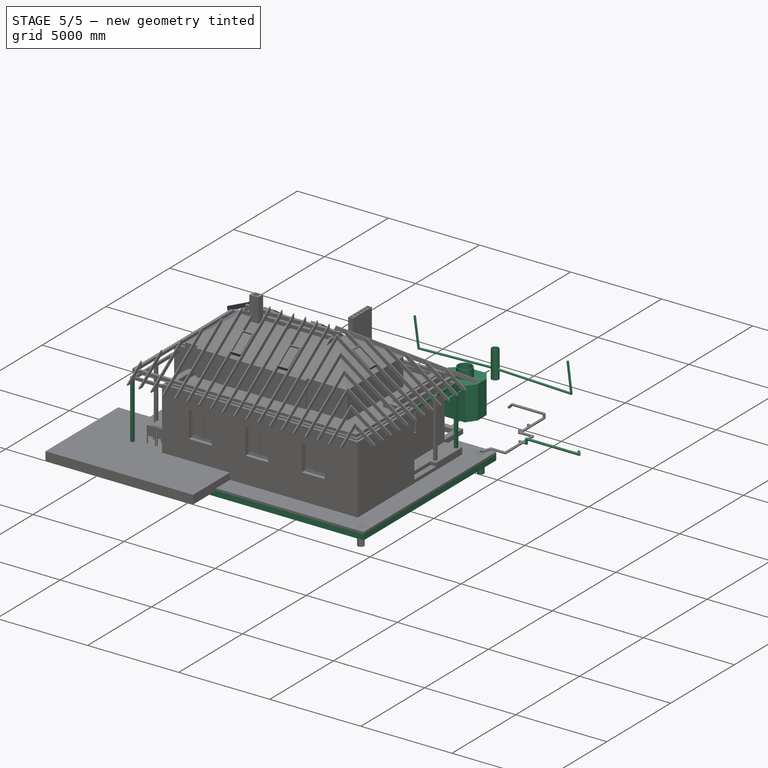
[diagram: stage 5 of 5 — iso view after this stage's code; geometry added in this stage tinted green]
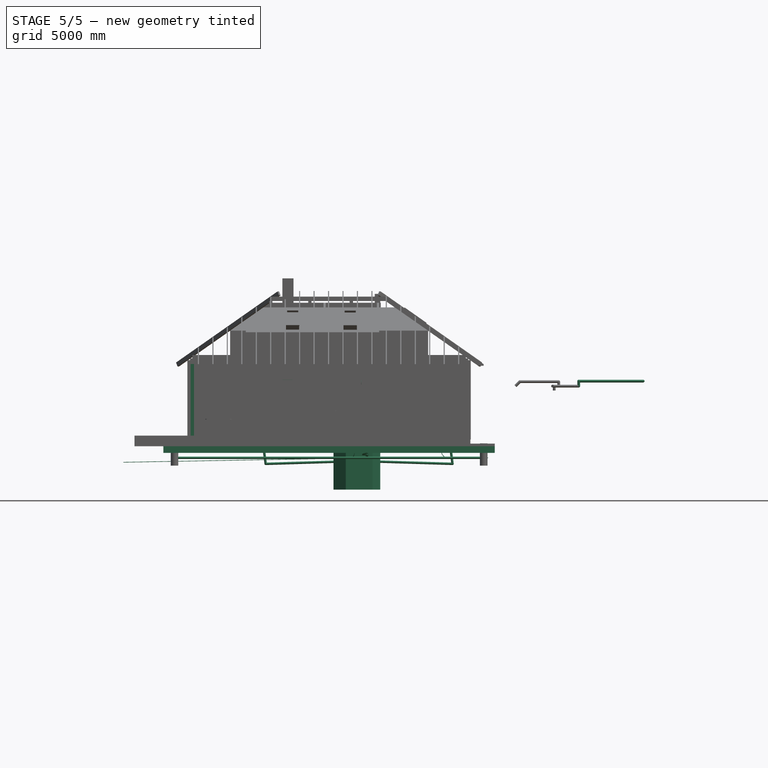
[diagram: stage 5 of 5 — front view after this stage's code; geometry added in this stage tinted green]
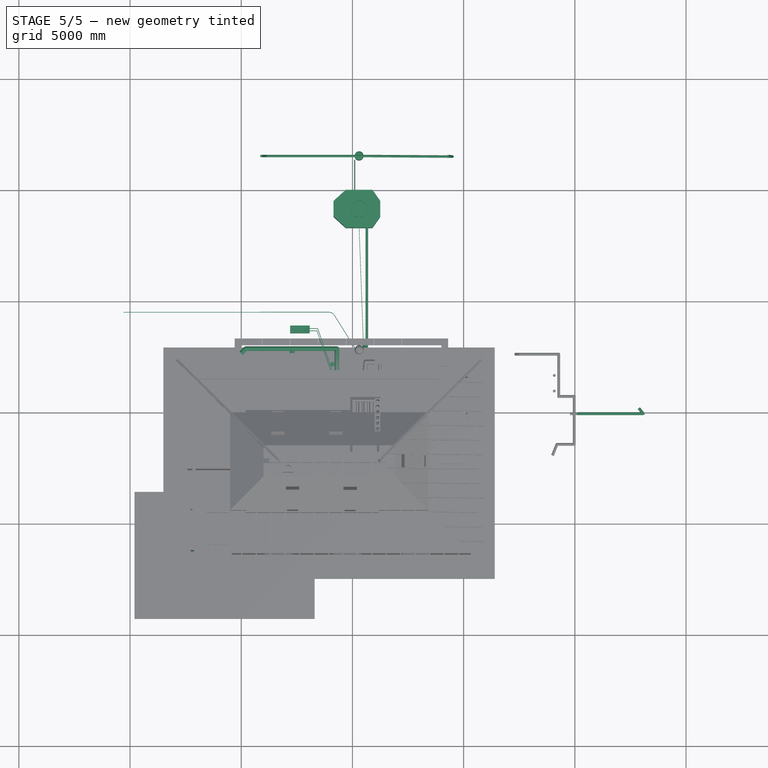
[diagram: stage 5 of 5 — top view after this stage's code; geometry added in this stage tinted green]
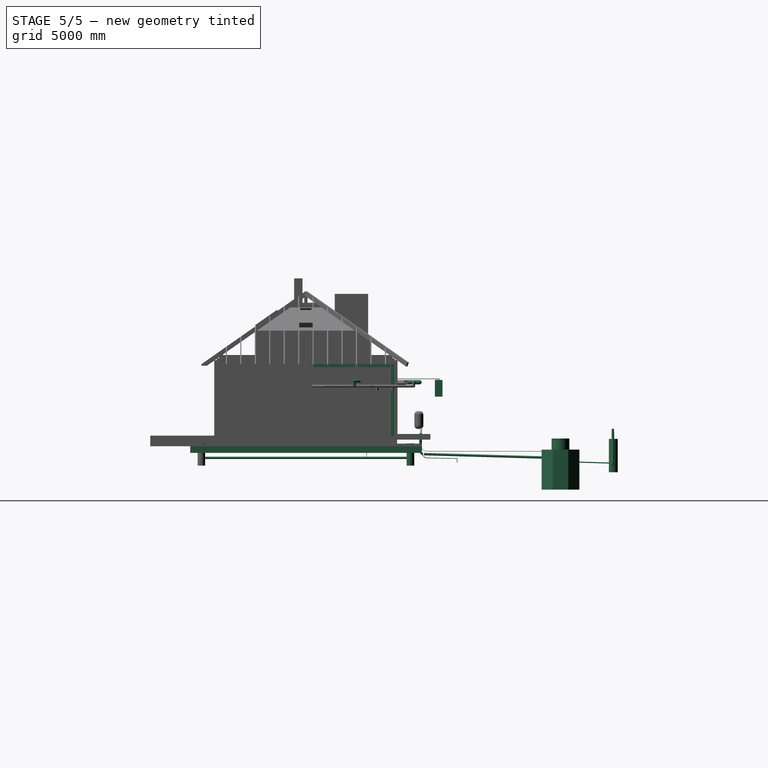
[diagram: stage 5 of 5 — right view after this stage's code; geometry added in this stage tinted green]
FEATURE [Part::Extrusion] Extrude043  label="Бойлер косвенного нагрева"
  Base = -> Face
  Dir = (0,0,1)
  DirMode = 0
  FaceMakerClass = Part::FaceMakerBullseye
  LengthFwd = 1100
  LengthRev = 0
  Placement = pos=(0,0,150) rot=(0,0,1;0rad)
  Solid = false
  Symmetric = false
FEATURE [App::DocumentObjectGroup] Group038  label="кровать_2_сп_004"
  Group = -> [Extrude053,Extrude051,Extrude052]
FEATURE [Part::FeaturePython] Structure185  label="кух.зона 002"  # Arch/BIM object (typed FeaturePython)
  Base = -> Rectangle361
  FaceMaker = 0
  Height = 900
  HorizontalArea = 1.885e+06
  IfcRole = 0
  Length = 0
  MoveWithHost = false
  Nodes = (2) [(-4700,-6400,0),(-4700,-6400,800)]
  NodesOffset = 0
  Normal = (0,0,0)
  PerimeterLength = 7100
  VerticalArea = 6.39e+06
  Width = 100
FEATURE [Part::Part2DObjectPython] Rectangle412  label="кух.зона002"  # Draft 2D object (typed FeaturePython)
  ChamferSize = 0
  Columns = 1
  FilletRadius = 0
  Height = 2100
  Length = 450
  MakeFace = false
  Placement = pos=(5750,-5300,0) rot=(0,0,1;0rad)
  Rows = 1
FEATURE [Part::FeaturePython] Structure  label="кух.зона 001"  # Arch/BIM object (typed FeaturePython)
  Base = -> Rectangle412
  FaceMaker = 0
  Height = 800
  HorizontalArea = 945000
  IfcRole = 0
  Length = 0
  MoveWithHost = false
  Nodes = (2) [(-4700,-6400,0),(-4700,-6400,800)]
  NodesOffset = 0
  Normal = (0,0,0)
  PerimeterLength = 5100
  Placement = pos=(0,0,1500) rot=(0,0,1;0rad)
  VerticalArea = 4080000
  Width = 100
FEATURE [Part::Part2DObjectPython] Rectangle423  # Draft 2D object (typed FeaturePython)
  ChamferSize = 0
  Columns = 1
  FilletRadius = 0
  Height = 150
  Length = 0
  MakeFace = false
  Placement = pos=(5575,8350,5466.07) rot=(0,0.707107,0.707107;3.14159rad)
  Rows = 1
FEATURE [Part::Part2DObjectPython] Rectangle425  # Draft 2D object (typed FeaturePython)
  ChamferSize = 0
  Columns = 1
  FilletRadius = 0
  Height = 2206.07
  Length = 0
  MakeFace = false
  Placement = pos=(2000,8350,3410) rot=(0,0.707107,0.707107;3.14159rad)
  Rows = 1
FEATURE [Part::Part2DObjectPython] Rectangle446  label="подушка"  # Draft 2D object (typed FeaturePython)
  ChamferSize = 0
  Columns = 1
  FilletRadius = 0
  Height = 10400
  Length = 14900
  MakeFace = false
  Placement = pos=(-3500,-7500,0) rot=(0,0,1;0rad)
  Rows = 1
FEATURE [Part::FeaturePython] Structure160  label="Подушка песок h0.3"  # Arch/BIM object (typed FeaturePython)
  Base = -> Rectangle446
  FaceMaker = 0
  Height = 300
  HorizontalArea = 1.5496e+08
  IfcRole = 0
  Length = 0
  MoveWithHost = false
  Nodes = (2) [(3875,3875,0),(3875,3875,350)]
  NodesOffset = 0
  Normal = (0,0,0)
  PerimeterLength = 50600
  Placement = pos=(0,0,-780) rot=(0,0,1;0rad)
  VerticalArea = 1.518e+07
  Width = 100
FEATURE [Part::FeaturePython] Wall  label="дымоход002"  # Arch/BIM object (typed FeaturePython)
  Align = 1
  Base = -> Rectangle381
  BlockHeight = 65
  BlockLength = 250
  CountBroken = 262
  CountEntire = 0
  Face = 0
  Height = 720
  HorizontalArea = 156000
  IfcRole = 156
  Joint = 5
  Length = 1780
  MakeBlocks = false
  MoveWithHost = false
  Normal = (0,0,0)
  OffsetFirst = 0
  OffsetSecond = 125
  PerimeterLength = 1780
  Placement = pos=(0,0,2100) rot=(0,0,1;0rad)
  VerticalArea = 1872000
  Width = 120
FEATURE [Part::FeaturePython] Structure243  label="прогон 012"  # Arch/BIM object (typed FeaturePython)
  FaceMaker = 0
  Height = 150
  HorizontalArea = 380000
  IfcRole = 8
  Length = 3800
  MoveWithHost = false
  Nodes = (2) [(0,0,2.77556e-16),(0,0,3800)]
  NodesOffset = 0
  Normal = (0,0,0)
  PerimeterLength = 7800
  Placement = pos=(10050,-2200,3145) rot=(0,0,1;1.5708rad)
  VerticalArea = 1170000
  Width = 100
FEATURE [Part::FeaturePython] Structure244  label="стойка 001"  # Arch/BIM object (typed FeaturePython)
  FaceMaker = 0
  Height = 3400
  HorizontalArea = 22500
  IfcRole = 8
  Length = 150
  MoveWithHost = false
  Nodes = (2) [(2.77556e-16,7.57912e-16,0),(2.77556e-16,7.57912e-16,3400)]
  NodesOffset = 0
  Normal = (0,0,0)
  PerimeterLength = 600
  Placement = pos=(-2200,-6200,-180) rot=(0,0,1;0rad)
  VerticalArea = 2040000
  Width = 150
FEATURE [Part::FeaturePython] Structure245  label="стойка 002"  # Arch/BIM object (typed FeaturePython)
  FaceMaker = 0
  Height = 3400
  HorizontalArea = 22500
  IfcRole = 8
  Length = 150
  MoveWithHost = false
  Nodes = (2) [(2.77556e-16,7.57912e-16,0),(2.77556e-16,7.57912e-16,3400)]
  NodesOffset = 0
  Normal = (0,0,0)
  PerimeterLength = 600
  Placement = pos=(10100,1600,-180) rot=(0,0,1;0rad)
  VerticalArea = 2040000
  Width = 150
FEATURE [Part::Part2DObjectPython] Wire100  label="перегородка_004"  # Draft 2D object (typed FeaturePython)
  ChamferSize = 0
  Closed = true
  End = (2300,-900,0)
  FilletRadius = 0
  Length = 15800
  MakeFace = true
  Placement = pos=(-600,2500,0) rot=(0,0,1;0rad)
  Points = (12) [(4700,-3400,0),(4700,-1100,0),(4800,-1100,0),(4800,-3500,0),(3600,-3500,0),(3600,-4700,0),(3500,-4700,0),(3500,-3500,0),(2800,-3500,0),(2800,-1100,0),+2 more]
  Start = (4100,-900,0)
  Subdivisions = 0
FEATURE [Part::Part2DObjectPython] Rectangle496  # Draft 2D object (typed FeaturePython)
  ChamferSize = 0
  Columns = 1
  FilletRadius = 0
  Height = 2500
  Length = 0
  MakeFace = false
  Placement = pos=(0,5700,0) rot=(0.57735,0.57735,0.57735;2.0944rad)
  Rows = 1
FEATURE [Part::Part2DObjectPython] Wire103  label="стояк_кан."  # Draft 2D object (typed FeaturePython)
  ChamferSize = 0
  Closed = true
  End = (-5482,-732,100)
  FilletRadius = 0
  Length = 300
  MakeFace = false
  Placement = pos=(-5282,-732,-200) rot=(0,0,1;0rad)
  Points = (2) [(-200,0,0),(-200,0,300)]
  Start = (-5482,-732,-200)
  Subdivisions = 0
FEATURE [Part::Part2DObjectPython] Rectangle504  # Draft 2D object (typed FeaturePython)
  ChamferSize = 0
  Columns = 1
  FilletRadius = 0
  Height = 0
  Length = 200
  MakeFace = false
  Placement = pos=(5450,7650,4250) rot=(0,0,1;0rad)
  Rows = 1
FEATURE [Part::Part2DObjectPython] Line353  # Draft 2D object (typed FeaturePython)
  ChamferSize = 0
  Closed = false
  End = (5449.18,2849.18,98.1939)
  FilletRadius = 0
  Length = 800
  MakeFace = false
  Placement = pos=(5649.18,2849.18,-701.806) rot=(0,0,1;0rad)
  Points = (2) [(-200,-4.54747e-13,0),(-200,-4.54747e-13,800)]
  Start = (5449.18,2849.18,-701.806)
  Subdivisions = 0
FEATURE [Part::FeaturePython] Pipe006  label="стояк D110 _001"  # Arch/BIM object (typed FeaturePython)
  Base = -> Line353
  Diameter = 110
  HorizontalArea = 0
  IfcRole = 98
  Length = 800
  MoveWithHost = false
  OffsetEnd = 0
  OffsetStart = 0
  PerimeterLength = 0
  VerticalArea = 0
FEATURE [Part::Part2DObjectPython] Wire118  # Draft 2D object (typed FeaturePython)
  ChamferSize = 0
  Closed = false
  End = (-5482,-732,-6.23453)
  FilletRadius = 0
  Length = 439.459
  MakeFace = false
  Placement = pos=(-5282,-732,-138.235) rot=(-0.477077,0.621449,0.621449;4.03188rad)
  Points = (3) [(51.6767,-50,193.208),(0,41,9.10383e-15),(51.6767,132,193.208)]
  Start = (-5482,-732,-188.235)
  Subdivisions = 0
FEATURE [Part::Part2DObjectPython] Wire119  # Draft 2D object (typed FeaturePython)
  ChamferSize = 0
  Closed = false
  End = (-5334,-784,-23.6954)
  FilletRadius = 0
  Length = 277.251
  MakeFace = false
  Placement = pos=(-5230,-680,-23.6954) rot=(-0.281085,0.678598,0.678598;3.68962rad)
  Points = (3) [(141.421,1.13687e-13,141.421),(73.5391,-73.5391,8.90914e-13),(147.078,1.5028e-12,4.72937e-11)]
  Start = (-5430,-680,-23.6954)
  Subdivisions = 0
FEATURE [Part::Part2DObjectPython] Wire127  # Draft 2D object (typed FeaturePython)
  ChamferSize = 0
  Closed = false
  End = (5449.18,2849.18,-701.806)
  FilletRadius = 0
  Length = 438.257
  MakeFace = true
  Placement = pos=(5649.18,2909.99,-803.63) rot=(0.678598,0.281085,0.678598;2.59356rad)
  Points = (4) [(9.09495e-13,1.36424e-12,-200),(0,61,1.35447e-14),(0,86,1.90958e-14),(29,115,-200)]
  Start = (5449.18,2909.99,-803.63)
  Subdivisions = 0
FEATURE [Part::Part2DObjectPython] Wire129  # Draft 2D object (typed FeaturePython)
  ChamferSize = 0
  Closed = false
  End = (5449.18,2909.99,-803.63)
  FilletRadius = 0
  Length = 438.257
  MakeFace = true
  Placement = pos=(5649.18,3024.99,-832.63) rot=(0.707107,0,0.707107;3.14159rad)
  Points = (4) [(2.27374e-13,4.54747e-13,-200),(0,61,1.35447e-14),(0,86,1.90958e-14),(29,115,-200)]
  Start = (5449.18,3024.99,-832.63)
  Subdivisions = 0
FEATURE [Part::FeaturePython] Pipe027  label="Отвод D110 (45) 002"  # Arch/BIM object (typed FeaturePython)
  Base = -> Wire129
  Diameter = 110
  HorizontalArea = 0
  IfcRole = 98
  Length = 438.257
  MoveWithHost = false
  OffsetEnd = 0
  OffsetStart = 0
  PerimeterLength = 0
  VerticalArea = 0
FEATURE [Part::FeaturePython] Pipe028  label="Отвод D110 (45) 001"  # Arch/BIM object (typed FeaturePython)
  Base = -> Wire127
  Diameter = 110
  HorizontalArea = 0
  IfcRole = 98
  Length = 438.257
  MoveWithHost = false
  OffsetEnd = 0
  OffsetStart = 0
  PerimeterLength = 0
  VerticalArea = 0
FEATURE [Part::Part2DObjectPython] Line394  # Draft 2D object (typed FeaturePython)
  ChamferSize = 0
  Closed = false
  End = (5649.18,8324.99,-982.63)
  FilletRadius = 0
  Length = 5302.12
  MakeFace = false
  Placement = pos=(5649.18,3024.99,-832.63) rot=(0,0,1;0rad)
  Points = (2) [(0,0,0),(-3.3518e-05,5300,-150)]
  Start = (5649.18,3024.99,-832.63)
  Subdivisions = 0
FEATURE [Part::FeaturePython] Pipe029  label="труба к септику D110"  # Arch/BIM object (typed FeaturePython)
  Base = -> Line394
  Diameter = 110
  HorizontalArea = 0
  IfcRole = 98
  Length = 5302.12
  MoveWithHost = false
  OffsetEnd = 0
  OffsetStart = 0
  PerimeterLength = 0
  VerticalArea = 0
FEATURE [Part::Part2DObjectPython] Circle  label="люк_нар."  # Draft 2D object (typed FeaturePython)
  FirstAngle = 0
  LastAngle = 0
  MakeFace = false
  Placement = pos=(5300,9149.18,-632.63) rot=(0,0,1;3.14159rad)
  Radius = 400
FEATURE [Part::Part2DObjectPython] Wire130  label="контур"  # Draft 2D object (typed FeaturePython)
  ChamferSize = 0
  Closed = true
  End = (6250,9499.18,-632.63)
  FilletRadius = 0
  Length = 6507.26
  MakeFace = false
  Placement = pos=(6450,8799.18,-632.63) rot=(0,0,1;3.14159rad)
  Points = (8) [(200,4.72937e-11,0),(550,500,0),(1750,500,0),(2300,0,0),(2300,-700,0),(1750,-1200,0),(550,-1200,0),(200,-700,0)]
  Start = (6250,8799.18,-632.63)
  Subdivisions = 0
FEATURE [Part::Part2DObjectPython] Circle001  label="люк_внутр."  # Draft 2D object (typed FeaturePython)
  FirstAngle = 0
  LastAngle = 0
  MakeFace = false
  Placement = pos=(5300,9149.18,-632.63) rot=(0,0,1;3.14159rad)
  Radius = 350
FEATURE [Part::FeaturePython] Structure252  label="Structure003"  # Arch/BIM object (typed FeaturePython)
  Base = -> Wire130
  FaceMaker = 0
  Height = 100
  HorizontalArea = 3.12e+06
  IfcRole = 0
  Length = 0
  MoveWithHost = false
  Nodes = (2) [(5300,13950,-932.63),(5300,13950,-832.63)]
  NodesOffset = 0
  Normal = (0,0,1)
  PerimeterLength = 6507.26
  Placement = pos=(0,0,-1800) rot=(0,0,1;0rad)
  VerticalArea = 650726
  Width = 100
FEATURE [Part::FeaturePython] Wall073  label="Wall"  # Arch/BIM object (typed FeaturePython)
  Align = 1
  Base = -> Wire130
  BlockHeight = 0
  BlockLength = 0
  CountBroken = 0
  CountEntire = 0
  Face = 0
  Height = 1600
  HorizontalArea = 617429
  IfcRole = 156
  Joint = 0
  Length = 6507.26
  MakeBlocks = false
  MoveWithHost = false
  Normal = (0,0,-1)
  OffsetFirst = 0
  OffsetSecond = 0
  PerimeterLength = 6507.26
  Placement = pos=(0,0,-100) rot=(0,0,1;0rad)
  VerticalArea = 1.97577e+07
  Width = 100
FEATURE [Part::FeaturePython] Structure253  label="Structure004"  # Arch/BIM object (typed FeaturePython)
  Base = -> Circle001
  FaceMaker = 0
  Height = 600
  HorizontalArea = 384845
  IfcRole = 0
  Length = 0
  MoveWithHost = false
  Nodes = (2) [(13900,3799.18,-932.63),(13900,3799.18,-332.63)]
  NodesOffset = 0
  Normal = (0,0,0)
  PerimeterLength = 2199.11
  Placement = pos=(0,0,-100) rot=(0,0,1;0rad)
  VerticalArea = 1.31947e+06
  Width = 100
FEATURE [Part::FeaturePython] Structure251  label="Structure002"  # Arch/BIM object (typed FeaturePython)
  Base = -> Wire130
  FaceMaker = 0
  Height = 100
  HorizontalArea = 2.73515e+06
  IfcRole = 0
  Length = 0
  MoveWithHost = false
  Nodes = (2) [(5300,13950,-932.63),(5300,13950,-1032.63)]
  NodesOffset = 0
  Normal = (0,0,0)
  PerimeterLength = 6507.26
  Subtractions = -> [Structure253]
  VerticalArea = 870638
  Width = 100
FEATURE [Part::FeaturePython] Structure254  label="Structure005"  # Arch/BIM object (typed FeaturePython)
  Base = -> Circle
  FaceMaker = 0
  Height = 200
  HorizontalArea = 117810
  IfcRole = 0
  Length = 0
  MoveWithHost = false
  Nodes = (2) [(13900,3799.18,-932.63),(13900,3799.18,-732.63)]
  NodesOffset = 0
  Normal = (0,0,0)
  PerimeterLength = 2513.27
  Subtractions = -> [Structure253]
  VerticalArea = 942478
  Width = 100
FEATURE [Part::FeaturePython] Structure255  label="кольца проставочные"  # Arch/BIM object (typed FeaturePython)
  Base = -> Circle
  FaceMaker = 0
  Height = 300
  HorizontalArea = 117810
  IfcRole = 0
  Length = 0
  MoveWithHost = false
  Nodes = (2) [(13900,3799.18,-932.63),(13900,3799.18,-632.63)]
  NodesOffset = 0
  Normal = (0,0,0)
  PerimeterLength = 2513.27
  Placement = pos=(0,0,200) rot=(0,0,1;0rad)
  Subtractions = -> [Structure253]
  VerticalArea = 1.41372e+06
  Width = 100
FEATURE [App::GeometryPython] BuildingPart053  label="ЛОС Октагон-БИО"  # Arch/BIM object (typed FeaturePython)
  Area = 0
  Group = -> [Structure251,Structure252,Wall073,Structure254,Structure255]
  Height = 0
  IfcRole = 0
  LevelOffset = 0
FEATURE [Part::Part2DObjectPython] Circle004  # Draft 2D object (typed FeaturePython)
  FirstAngle = 0
  LastAngle = 0
  MakeFace = false
  Placement = pos=(5300,11524.2,300) rot=(0,0,1;0rad)
  Radius = 200
FEATURE [Part::Part2DObjectPython] Circle005  # Draft 2D object (typed FeaturePython)
  FirstAngle = 0
  LastAngle = 0
  MakeFace = false
  Placement = pos=(5300,11524.2,300) rot=(0,0,1;0rad)
  Radius = 174
FEATURE [Part::FeaturePython] Structure257  label="Structure007"  # Arch/BIM object (typed FeaturePython)
  Base = -> Circle005
  FaceMaker = 0
  Height = 1500
  HorizontalArea = 95114.9
  IfcRole = 0
  Length = 0
  MoveWithHost = false
  Nodes = (2) [(5300,11524.2,300),(5300,11524.2,-1200)]
  NodesOffset = 0
  Normal = (0,0,-1)
  PerimeterLength = 1093.27
  VerticalArea = 1.63991e+06
  Width = 100
FEATURE [Part::FeaturePython] Structure256  label="Structure006"  # Arch/BIM object (typed FeaturePython)
  Base = -> Circle004
  FaceMaker = 0
  Height = 1500
  HorizontalArea = 125664
  IfcRole = 0
  Length = 0
  MoveWithHost = false
  Nodes = (2) [(16275,3799.18,0),(16275,3799.18,-1500)]
  NodesOffset = 0
  Normal = (0,0,-1)
  PerimeterLength = 1256.64
  Placement = pos=(0,0,-450) rot=(0,0,1;0rad)
  Subtractions = -> [Structure257]
  VerticalArea = 3.03289e+06
  Width = 100
FEATURE [Part::FeaturePython] Structure258  label="Structure008"  # Arch/BIM object (typed FeaturePython)
  Base = -> Circle004
  FaceMaker = 0
  Height = 30
  HorizontalArea = 125664
  IfcRole = 0
  Length = 0
  MoveWithHost = false
  Nodes = (2) [(16275,3799.18,0),(16275,3799.18,30)]
  NodesOffset = 0
  Normal = (0,0,0)
  PerimeterLength = 1256.64
  Placement = pos=(0,0,-1950) rot=(0,0,1;0rad)
  VerticalArea = 37699.1
  Width = 100
FEATURE [App::GeometryPython] BuildingPart054  label="дренажный колодец D400 h1500 001"  # Arch/BIM object (typed FeaturePython)
  Area = 0
  Group = -> [Structure256,Structure258]
  Height = 0
  IfcRole = 0
  LevelOffset = 0
  Placement = pos=(0,0,1) rot=(0,0,1;0rad)
FEATURE [Part::Part2DObjectPython] Line402  # Draft 2D object (typed FeaturePython)
  ChamferSize = 0
  Closed = false
  End = (5100,11350.2,-1232.63)
  FilletRadius = 0
  Length = 1351.59
  MakeFace = false
  Placement = pos=(5300,9999.18,-1192.63) rot=(0,0,1;0rad)
  Points = (2) [(-200,0,0),(-200,1351,-40)]
  Start = (5100,9999.18,-1192.63)
  Subdivisions = 0
FEATURE [Part::FeaturePython] Pipe030  label="труба отводящяя D50"  # Arch/BIM object (typed FeaturePython)
  Base = -> Line402
  Diameter = 50
  HorizontalArea = 0
  IfcRole = 98
  Length = 1351.59
  MoveWithHost = false
  OffsetEnd = 0
  OffsetStart = 0
  PerimeterLength = 0
  VerticalArea = 0
FEATURE [Part::Part2DObjectPython] Wire131  # Draft 2D object (typed FeaturePython)
  ChamferSize = 0
  Closed = false
  End = (9300,11500,300)
  FilletRadius = 0
  Length = 11569.2
  MakeFace = false
  Placement = pos=(1100,11524.2,350) rot=(0,0,1;0rad)
  Points = (6) [(-200,-24.1817,-50),(-4.54747e-13,0,-1620),(4000,0,-1500),(4400,0,-1500),(8400,-24.18,-1620),(8200,-24.1817,-50)]
  Start = (900,11500,300)
  Subdivisions = 0
FEATURE [Part::FeaturePython] Pipe031  label="Фильтрационная траншея"  # Arch/BIM object (typed FeaturePython)
  Base = -> Wire131
  Diameter = 110
  HorizontalArea = 0
  IfcRole = 98
  Length = 11569.2
  MoveWithHost = false
  OffsetEnd = 0
  OffsetStart = 0
  PerimeterLength = 0
  VerticalArea = 0
FEATURE [Part::FeaturePython] Point  # WARN: FeaturePython — macro-defined, semantics opaque (R4)
  X = 3950
  Y = -2300
  Z = 0
FEATURE [Part::Part2DObjectPython] Rectangle518  label="Внутренний блок сплит-системы_001"  # Draft 2D object (typed FeaturePython)
  ChamferSize = 0
  Columns = 1
  FilletRadius = 0
  Height = 700
  Length = 1000
  MakeFace = false
  Placement = pos=(5100,-400,0) rot=(0,0,1;1.5708rad)
  Rows = 1
FEATURE [Part::Part2DObjectPython] Rectangle519  label="Внешний блок сплит-системы_001"  # Draft 2D object (typed FeaturePython)
  ChamferSize = 0
  Columns = 1
  FilletRadius = 0
  Height = 880
  Length = 340
  MakeFace = false
  Placement = pos=(3080,3500,0) rot=(0,0,1;1.5708rad)
  Rows = 1
FEATURE [Part::Part2DObjectPython] Wire142  label="приёмный_воздуховод_001"  # Draft 2D object (typed FeaturePython)
  ChamferSize = 0
  Closed = false
  End = (3450,850,-2250)
  FilletRadius = 0
  Length = 4320.16
  MakeFace = true
  Placement = pos=(4887.5,675,0) rot=(0,0,1;0rad)
  Points = (5) [(-487.5,-575,0),(-1237.5,-575,0),(-1237.5,425,0),(-1237.5,425,-2250),(-1437.5,175,-2250)]
  Start = (4400,100,0)
  Subdivisions = 0
FEATURE [Part::Part2DObjectPython] Rectangle520  label="воздуховод_профиль_001"  # Draft 2D object (typed FeaturePython)
  ChamferSize = 0
  Columns = 1
  FilletRadius = 0
  Height = 200
  Length = 700
  MakeFace = true
  Placement = pos=(4400,-250,-200) rot=(0.57735,0.57735,0.57735;2.0944rad)
  Rows = 1
FEATURE [Part::FeaturePython] Pipe032  label="приёмный_воздуховод_002"  # Arch/BIM object (typed FeaturePython)
  Base = -> Wire142
  Diameter = 50
  HorizontalArea = 0
  IfcRole = 98
  Length = 4320.16
  MoveWithHost = false
  OffsetEnd = 0
  OffsetStart = 0
  PerimeterLength = 0
  Placement = pos=(0,0,2400) rot=(0,0,1;0rad)
  Profile = -> Rectangle520
  VerticalArea = 0
FEATURE [Part::Part2DObjectPython] Line436  # Draft 2D object (typed FeaturePython)
  ChamferSize = 0
  Closed = true
  End = (6700,3700,0)
  FilletRadius = 0
  Length = 0
  MakeFace = true
  Placement = pos=(6900,3700,0) rot=(0,0,1;0rad)
  Points = (2) [(-200,0,0),(-200,0,0)]
  Start = (6700,3700,0)
  Subdivisions = 0
FEATURE [Part::FeaturePython] Structure260  label="Внутренний блок сплит-системы"  # Arch/BIM object (typed FeaturePython)
  Base = -> Rectangle518
  FaceMaker = 0
  Height = 270
  HorizontalArea = 700000
  IfcRole = 0
  Length = 0
  MoveWithHost = false
  Nodes = (2) [(4282.5,3050,0),(4282.5,3050,270)]
  NodesOffset = 0
  Normal = (0,0,0)
  PerimeterLength = 3400
  Placement = pos=(0,0,2260) rot=(0,0,1;0rad)
  VerticalArea = 918000
  Width = 100
FEATURE [Part::Part2DObjectPython] Wire143  label="подающий воздуховод 039"  # Draft 2D object (typed FeaturePython)
  ChamferSize = 0
  Closed = false
  End = (4900,340,0)
  FilletRadius = 0
  Length = 8242.84
  MakeFace = true
  Placement = pos=(3265,2675,0) rot=(0,0,1;0rad)
  Points = (7) [(-3265,-75,0),(-3065,125,0),(1035,125,0),(1035,-1475,0),(2035,-1475,0),(2035,-2335,0),(1635,-2335,0)]
  Start = (-4.547e-13,2600,0)
  Subdivisions = 0
FEATURE [Part::Part2DObjectPython] Line445  label="подающий воздуховод 046"  # Draft 2D object (typed FeaturePython)
  ChamferSize = 0
  Closed = false
  End = (8500,-700,-200)
  FilletRadius = 0
  Length = 200
  MakeFace = true
  Placement = pos=(8700,-700,0) rot=(0,0,1;1.5708rad)
  Points = (2) [(0,200,0),(0,200,-200)]
  Start = (8500,-700,0)
  Subdivisions = 0
FEATURE [Part::FeaturePython] Pipe033  label="подающий воздуховод 001"  # Arch/BIM object (typed FeaturePython)
  Base = -> Wire143
  Diameter = 200
  HorizontalArea = 0
  IfcRole = 98
  Length = 8242.84
  MoveWithHost = false
  OffsetEnd = 0
  OffsetStart = 0
  PerimeterLength = 0
  Placement = pos=(0,0,2400) rot=(0,0,1;0rad)
  VerticalArea = 0
FEATURE [Part::FeaturePython] Pipe034  label="подающий воздуховод 019"  # Arch/BIM object (typed FeaturePython)
  Base = -> Line445
  Diameter = 200
  HorizontalArea = 0
  IfcRole = 98
  Length = 200
  MoveWithHost = false
  OffsetEnd = 0
  OffsetStart = 0
  PerimeterLength = 0
  Placement = pos=(0,0,2400) rot=(0,0,1;0rad)
  VerticalArea = 0
FEATURE [Part::Part2DObjectPython] Wire144  label="подающий воздуховод 043"  # Draft 2D object (typed FeaturePython)
  ChamferSize = 0
  Closed = false
  End = (4900,-150,0)
  FilletRadius = 0
  Length = 6550
  MakeFace = true
  Placement = pos=(-885,-1125,0) rot=(0,0,1;0rad)
  Points = (6) [(6385,-4575,0),(6585,-4575,0),(6585,-1375,0),(6185,-1375,0),(6185,975,0),(5785,975,0)]
  Start = (5500,-5700,0)
  Subdivisions = 0
FEATURE [Part::Part2DObjectPython] Line448  label="подающий воздуховод 044"  # Draft 2D object (typed FeaturePython)
  ChamferSize = 0
  Closed = false
  End = (5500,-4400,0)
  FilletRadius = 0
  Length = 500
  MakeFace = true
  Placement = pos=(18175,725,0) rot=(0,0,1;0rad)
  Points = (2) [(-12175,-5125,0),(-12675,-5125,0)]
  Start = (6000,-4400,0)
  Subdivisions = 0
FEATURE [Part::Part2DObjectPython] Line451  label="подающий воздуховод 045"  # Draft 2D object (typed FeaturePython)
  ChamferSize = 0
  Closed = false
  End = (5300,-3200,0)
  FilletRadius = 0
  Length = 200
  MakeFace = true
  Placement = pos=(5300,-2500,0) rot=(0,0,1;0rad)
  Points = (2) [(200,-700,0),(0,-700,0)]
  Start = (5500,-3200,0)
  Subdivisions = 0
FEATURE [Part::Part2DObjectPython] Wire145  label="подающий воздуховод 041"  # Draft 2D object (typed FeaturePython)
  ChamferSize = 0
  Closed = false
  End = (8500,-700,-200)
  FilletRadius = 0
  Length = 5882.84
  MakeFace = true
  Placement = pos=(5540,-75,0) rot=(0,0,1;0rad)
  Points = (6) [(-640,175,0),(60,175,0),(60,-1125,0),(3160,-1125,0),(3160,-625,0),(2960,-625,-200)]
  Start = (4900,100,0)
  Subdivisions = 0
FEATURE [Part::FeaturePython] Pipe035  label="подающий воздуховод 020"  # Arch/BIM object (typed FeaturePython)
  Base = -> Wire145
  Diameter = 200
  HorizontalArea = 0
  IfcRole = 98
  Length = 5882.84
  MoveWithHost = false
  OffsetEnd = 0
  OffsetStart = 0
  PerimeterLength = 0
  Placement = pos=(0,0,2400) rot=(0,0,1;0rad)
  VerticalArea = 0
FEATURE [Part::FeaturePython] Pipe037  label="подающий воздуховод 022"  # Arch/BIM object (typed FeaturePython)
  Base = -> Wire144
  Diameter = 200
  HorizontalArea = 0
  IfcRole = 98
  Length = 6550
  MoveWithHost = false
  OffsetEnd = 0
  OffsetStart = 0
  PerimeterLength = 0
  Placement = pos=(0,0,2400) rot=(0,0,1;0rad)
  VerticalArea = 0
FEATURE [Part::FeaturePython] Pipe038  label="подающий воздуховод 023"  # Arch/BIM object (typed FeaturePython)
  Base = -> Line448
  Diameter = 200
  HorizontalArea = 0
  IfcRole = 98
  Length = 500
  MoveWithHost = false
  OffsetEnd = 0
  OffsetStart = 0
  PerimeterLength = 0
  Placement = pos=(0,0,2400) rot=(0,0,1;0rad)
  VerticalArea = 0
FEATURE [Part::FeaturePython] Pipe039  label="подающий воздуховод 024"  # Arch/BIM object (typed FeaturePython)
  Base = -> Line451
  Diameter = 200
  HorizontalArea = 0
  IfcRole = 98
  Length = 200
  MoveWithHost = false
  OffsetEnd = 0
  OffsetStart = 0
  PerimeterLength = 0
  Placement = pos=(0,0,2400) rot=(0,0,1;0rad)
  VerticalArea = 0
FEATURE [Part::Part2DObjectPython] Line462  label="вытяжная вентиляция 004"  # Draft 2D object (typed FeaturePython)
  ChamferSize = 0
  Closed = false
  End = (7100,-500,0)
  FilletRadius = 0
  Length = 1224.62
  MakeFace = true
  Placement = pos=(8855,2765,0) rot=(0,0,1;0rad)
  Points = (3) [(-1555,-2465,0),(-1355,-3265,0),(-1755,-3265,0)]
  Start = (7300,300,0)
  Subdivisions = 0
FEATURE [Part::FeaturePython] Pipe041  label="вытяжная вентиляция 002"  # Arch/BIM object (typed FeaturePython)
  Base = -> Line462
  Diameter = 150
  HorizontalArea = 0
  IfcRole = 98
  Length = 1224.62
  MoveWithHost = false
  OffsetEnd = 0
  OffsetStart = 0
  PerimeterLength = 0
  Placement = pos=(0,0,2425) rot=(0,0,1;0rad)
  VerticalArea = 0
FEATURE [Part::FeaturePython] Structure261  label="Внешний блок сплит-системы"  # Arch/BIM object (typed FeaturePython)
  Base = -> Rectangle519
  FaceMaker = 0
  Height = 750
  HorizontalArea = 299200
  IfcRole = 0
  Length = 0
  MoveWithHost = false
  Nodes = (2) [(8350,3740,0),(8350,3740,750)]
  NodesOffset = 0
  Normal = (0,0,0)
  PerimeterLength = 2440
  Placement = pos=(0,0,1750) rot=(0,0,1;0rad)
  VerticalArea = 1830000
  Width = 100
FEATURE [Part::Part2DObjectPython] Wire149  label="трассы системы кондиционирования 002"  # Draft 2D object (typed FeaturePython)
  ChamferSize = 0
  Closed = false
  End = (2800,3600,-49.9963)
  FilletRadius = 0
  Length = 4095.05
  MakeFace = true
  Placement = pos=(4480,500,-50) rot=(0,0,1;3.14159rad)
  Points = (5) [(200,0,0),(0,0,50),(1080,-3100,50),(1480,-3100,50),(1680,-3100,0.0037117)]
  Start = (4280,500,-50)
  Subdivisions = 0
FEATURE [Part::FeaturePython] Pipe043  label="трассы сплит-системы 001"  # Arch/BIM object (typed FeaturePython)
  Base = -> Wire149
  Diameter = 25
  HorizontalArea = 0
  IfcRole = 98
  Length = 4095.05
  MoveWithHost = false
  OffsetEnd = 0
  OffsetStart = 0
  PerimeterLength = 0
  Placement = pos=(0,0,2550) rot=(0,0,1;0rad)
  VerticalArea = 0
FEATURE [Part::Part2DObjectPython] Wire150  label="трассы системы кондиционирования 001"  # Draft 2D object (typed FeaturePython)
  ChamferSize = 0
  Closed = false
  End = (2800,3700,-50)
  FilletRadius = 0
  Length = 4232.86
  MakeFace = true
  Placement = pos=(4530,500,-50) rot=(0,0,1;3.14159rad)
  Points = (5) [(200,0,0),(0,0,50),(1090,-3200,50),(1530,-3200,50),(1730,-3200,0)]
  Start = (4330,500,-50)
  Subdivisions = 0
FEATURE [Part::FeaturePython] Pipe044  label="трассы сплит-системы 002"  # Arch/BIM object (typed FeaturePython)
  Base = -> Wire150
  Diameter = 25
  HorizontalArea = 0
  IfcRole = 98
  Length = 4232.86
  MoveWithHost = false
  OffsetEnd = 0
  OffsetStart = 0
  PerimeterLength = 0
  Placement = pos=(0,0,2550) rot=(0,0,1;0rad)
  VerticalArea = 0
FEATURE [Part::Part2DObjectPython] Rectangle523  label="рекуператор LGH-25 контур"  # Draft 2D object (typed FeaturePython)
  ChamferSize = 0
  Columns = 1
  FilletRadius = 0
  Height = 800
  Length = 800
  MakeFace = false
  Placement = pos=(8200,-600,0) rot=(0,0,1;1.5708rad)
  Rows = 1
FEATURE [Part::FeaturePython] Structure262  label="рекуператор LGH-25"  # Arch/BIM object (typed FeaturePython)
  Base = -> Rectangle523
  FaceMaker = 0
  Height = 300
  HorizontalArea = 640000
  IfcRole = 0
  Length = 0
  MoveWithHost = false
  Nodes = (2) [(5475,7525,0),(5475,7525,500)]
  NodesOffset = 0
  Normal = (0,0,0)
  PerimeterLength = 3200
  Placement = pos=(0,0,2245) rot=(0,0,1;0rad)
  VerticalArea = 960000
  Width = 100
FEATURE [App::GeometryPython] BuildingPart056  label="Внутренняя канализация"  # Arch/BIM object (typed FeaturePython)
  Area = 0
  Height = 0
  IfcRole = 0
  LevelOffset = 0
FEATURE [Part::Part2DObjectPython] Circle006  # Draft 2D object (typed FeaturePython)
  FirstAngle = 0
  LastAngle = 0
  MakeFace = false
  Placement = pos=(10900,2400,0) rot=(0,0,1;0rad)
  Radius = 170
FEATURE [Part::Part2DObjectPython] Circle007  # Draft 2D object (typed FeaturePython)
  FirstAngle = 0
  LastAngle = 0
  MakeFace = false
  Placement = pos=(10900,2400,0) rot=(0,0,1;0rad)
  Radius = 150
FEATURE [Part::FeaturePython] Structure264  label="Structure010"  # Arch/BIM object (typed FeaturePython)
  Base = -> Circle007
  FaceMaker = 0
  Height = 1500
  HorizontalArea = 70685.8
  IfcRole = 0
  Length = 0
  MoveWithHost = false
  Nodes = (2) [(10900,2400,0),(10900,2400,-1500)]
  NodesOffset = 0
  Normal = (0,0,-1)
  PerimeterLength = 942.478
  VerticalArea = 1.41372e+06
  Width = 100
FEATURE [Part::FeaturePython] Structure263  label="Structure009"  # Arch/BIM object (typed FeaturePython)
  Base = -> Circle006
  FaceMaker = 0
  Height = 1000
  HorizontalArea = 20106.2
  IfcRole = 0
  Length = 0
  MoveWithHost = false
  Nodes = (2) [(10900,2400,0),(10900,2400,-1000)]
  NodesOffset = 0
  Normal = (0,0,-1)
  PerimeterLength = 1068.14
  Placement = pos=(0,0,-350) rot=(0,0,1;0rad)
  Subtractions = -> [Structure264]
  VerticalArea = 2.01062e+06
  Width = 100
FEATURE [Part::FeaturePython] Structure265  label="Structure011"  # Arch/BIM object (typed FeaturePython)
  Base = -> Circle006
  FaceMaker = 0
  Height = 30
  HorizontalArea = 90792
  IfcRole = 0
  Length = 0
  MoveWithHost = false
  Nodes = (2) [(10900,2400,0),(10900,2400,30)]
  NodesOffset = 0
  Normal = (0,0,0)
  PerimeterLength = 1068.14
  Placement = pos=(0,0,-1350) rot=(0,0,1;0rad)
  VerticalArea = 32044.2
  Width = 100
FEATURE [App::GeometryPython] BuildingPart057  label="дренажный колодец D340 h1000 001"  # Arch/BIM object (typed FeaturePython)
  Area = 0
  Group = -> [Structure263,Structure265]
  Height = 0
  IfcRole = 0
  LevelOffset = 0
  Placement = pos=(0,50,1) rot=(0,0,1;0rad)
FEATURE [Part::Part2DObjectPython] Circle008  # Draft 2D object (typed FeaturePython)
  FirstAngle = 0
  LastAngle = 0
  MakeFace = false
  Placement = pos=(-3000,2400,0) rot=(0,0,1;0rad)
  Radius = 150
FEATURE [Part::FeaturePython] Structure266  label="Structure012"  # Arch/BIM object (typed FeaturePython)
  Base = -> Circle008
  FaceMaker = 0
  Height = 1500
  HorizontalArea = 70685.8
  IfcRole = 0
  Length = 0
  MoveWithHost = false
  Nodes = (2) [(-1225,8975,0),(-1225,8975,-1000)]
  NodesOffset = 0
  Normal = (0,0,-1)
  PerimeterLength = 942.478
  VerticalArea = 1.41372e+06
  Width = 100
FEATURE [Part::Part2DObjectPython] Circle009  # Draft 2D object (typed FeaturePython)
  FirstAngle = 0
  LastAngle = 0
  MakeFace = false
  Placement = pos=(-3000,2400,0) rot=(0,0,1;0rad)
  Radius = 170
FEATURE [Part::FeaturePython] Structure267  label="Structure013"  # Arch/BIM object (typed FeaturePython)
  Base = -> Circle009
  FaceMaker = 0
  Height = 1000
  HorizontalArea = 20106.2
  IfcRole = 0
  Length = 0
  MoveWithHost = false
  Nodes = (2) [(-1225,8975,0),(-1225,8975,-1000)]
  NodesOffset = 0
  Normal = (0,0,-1)
  PerimeterLength = 1068.14
  Placement = pos=(0,0,-350) rot=(0,0,1;0rad)
  Subtractions = -> [Structure266]
  VerticalArea = 2.01062e+06
  Width = 100
FEATURE [Part::FeaturePython] Structure268  label="Structure014"  # Arch/BIM object (typed FeaturePython)
  Base = -> Circle009
  FaceMaker = 0
  Height = 30
  HorizontalArea = 90792
  IfcRole = 0
  Length = 0
  MoveWithHost = false
  Nodes = (2) [(-3000,2400,0),(-3000,2400,30)]
  NodesOffset = 0
  Normal = (0,0,0)
  PerimeterLength = 1068.14
  Placement = pos=(0,0,-1350) rot=(0,0,1;0rad)
  VerticalArea = 32044.2
  Width = 100
FEATURE [App::GeometryPython] BuildingPart059  label="дренажный колодец D340 h1000 002"  # Arch/BIM object (typed FeaturePython)
  Area = 0
  Group = -> [Structure267,Structure268]
  Height = 0
  IfcRole = 0
  LevelOffset = 0
  Placement = pos=(0,50,1) rot=(0,0,1;0rad)
FEATURE [Part::Part2DObjectPython] Wire151  label="труба дренажная 003"  # Draft 2D object (typed FeaturePython)
  ChamferSize = 0
  Closed = false
  End = (-3000,2400,0)
  FilletRadius = 0
  Length = 23300
  MakeFace = false
  Placement = pos=(7200,-7000,-1100) rot=(0,0,1;0rad)
  Points = (3) [(3700,9.09495e-13,1100),(-10200,9.09495e-13,1100),(-10200,9400,1100)]
  Start = (10900,-7000,0)
  Subdivisions = 0
FEATURE [Part::Part2DObjectPython] Wire152  label="труба дренажная 002"  # Draft 2D object (typed FeaturePython)
  ChamferSize = 0
  Closed = false
  End = (10900,-7000,0)
  FilletRadius = 0
  Length = 23300
  MakeFace = false
  Placement = pos=(700,2400,-1100) rot=(0,0,1;0rad)
  Points = (3) [(-3700,0,1100),(10200,0,1100),(10200,-9400,1100)]
  Start = (-3000,2400,0)
  Subdivisions = 0
FEATURE [Part::FeaturePython] Pipe046  label="труба дренажная D110 002"  # Arch/BIM object (typed FeaturePython)
  Base = -> Wire152
  Diameter = 110
  HorizontalArea = 0
  IfcRole = 98
  Length = 23300
  MoveWithHost = false
  OffsetEnd = 0
  OffsetStart = 0
  PerimeterLength = 0
  Placement = pos=(0,0,-1000) rot=(0,0,1;0rad)
  VerticalArea = 0
FEATURE [Part::FeaturePython] Pipe047  label="труба дренажная D110 001"  # Arch/BIM object (typed FeaturePython)
  Base = -> Wire151
  Diameter = 110
  HorizontalArea = 0
  IfcRole = 98
  Length = 23300
  MoveWithHost = false
  OffsetEnd = 0
  OffsetStart = 0
  PerimeterLength = 0
  Placement = pos=(0,0,-1000) rot=(0,0,1;0rad)
  VerticalArea = 0
FEATURE [Part::Part2DObjectPython] Wire153  label="Труба подачи воздуха к ЛОС ПНД 20мм 001"  # Draft 2D object (typed FeaturePython)
  ChamferSize = 0
  Closed = false
  End = (5299.18,2849.17,650)
  FilletRadius = 300
  Length = 6755.99
  MakeFace = false
  Placement = pos=(5499.18,8324.98,-700) rot=(0,0,1;0rad)
  Points = (4) [(-200,0,0),(0,-5475.81,0),(0.00167414,-5475.81,1050),(-199.998,-5475.81,1350)]
  Start = (5299.18,8324.98,-700)
  Subdivisions = 0
FEATURE [Part::FeaturePython] Pipe048  label="Труба подачи воздуха к ЛОС ПНД 20мм"  # Arch/BIM object (typed FeaturePython)
  Base = -> Wire153
  Diameter = 20
  HorizontalArea = 0
  IfcRole = 98
  Length = 6755.99
  MoveWithHost = false
  OffsetEnd = 0
  OffsetStart = 0
  PerimeterLength = 0
  VerticalArea = 0
FEATURE [App::GeometryPython] BuildingPart052  label="Наружная канализация"  # Arch/BIM object (typed FeaturePython)
  Area = 0
  Group = -> [Pipe029,Pipe006,Pipe027,Pipe028,BuildingPart053,BuildingPart054,Pipe030,Pipe031,Pipe048]
  Height = 0
  IfcRole = 0
  LevelOffset = 0
FEATURE [App::GeometryPython] BuildingPart051  label="Канализация"  # Arch/BIM object (typed FeaturePython)
  Area = 0
  Group = -> [BuildingPart052,BuildingPart056]
  Height = 0
  IfcRole = 0
  LevelOffset = 0
FEATURE [Part::Part2DObjectPython] Wire154  label="Водопровод ПНД 25мм 001"  # Draft 2D object (typed FeaturePython)
  ChamferSize = 0
  Closed = false
  End = (-5300,4500,-1200)
  FilletRadius = 300
  Length = 12435.6
  MakeFace = false
  Placement = pos=(5100,3050,300) rot=(0,0,1;0rad)
  Points = (4) [(0,-150,0),(0,-150,-1300),(-1000,1450,-1330),(-10400,1450,-1500)]
  Start = (5100,2900,300)
  Subdivisions = 0
FEATURE [Part::FeaturePython] Pipe049  label="Водопровод ПНД 25мм"  # Arch/BIM object (typed FeaturePython)
  Base = -> Wire154
  Diameter = 25
  HorizontalArea = 0
  IfcRole = 98
  Length = 12435.6
  MoveWithHost = false
  OffsetEnd = 0
  OffsetStart = 0
  PerimeterLength = 0
  VerticalArea = 0
FEATURE [Part::FeaturePython] Structure270  label="Щиток ЩРВ-24"  # Arch/BIM object (typed FeaturePython)
  FaceMaker = 0
  Height = 360
  HorizontalArea = 35750
  IfcRole = 0
  Length = 275
  MoveWithHost = false
  Nodes = (2) [(1.77636e-15,2.48044e-15,0),(1.77636e-15,2.48044e-15,360)]
  NodesOffset = 0
  Normal = (0,0,0)
  PerimeterLength = 810
  Placement = pos=(9065,462.5,1000) rot=(0,0,1;1.5708rad)
  VerticalArea = 291600
  Width = 130
FEATURE [Part::Part2DObjectPython] Wire157  label="Ввод кабеля ПНД 25мм 001"  # Draft 2D object (typed FeaturePython)
  ChamferSize = 0
  Closed = false
  End = (9000,425,1000)
  FilletRadius = 300
  Length = 3971.24
  MakeFace = false
  Placement = pos=(11300,503.403,-4060) rot=(0,0,1;0rad)
  Points = (3) [(-200,-78.4026,3060),(-2300,-78.4026,3060),(-2300,-78.4026,5060)]
  Start = (11100,425,-1000)
  Subdivisions = 0
FEATURE [Part::FeaturePython] Pipe050  label="Ввод кабеля ПНД 25мм"  # Arch/BIM object (typed FeaturePython)
  Base = -> Wire157
  Diameter = 25
  HorizontalArea = 0
  IfcRole = 98
  Length = 3971.24
  MoveWithHost = false
  OffsetEnd = 0
  OffsetStart = 0
  PerimeterLength = 0
  VerticalArea = 0
FEATURE [App::GeometryPython] BuildingPart060  label="Электрика"  # Arch/BIM object (typed FeaturePython)
  Area = 0
  Group = -> [Pipe050,Structure270]
  Height = 0
  IfcRole = 0
  LevelOffset = 0
FEATURE [Part::Part2DObjectPython] Wire158  label="приточная вентиляция 001"  # Draft 2D object (typed FeaturePython)
  ChamferSize = 0
  Closed = false
  End = (7900,300,0)
  FilletRadius = 0
  Length = 824.621
  MakeFace = true
  Placement = pos=(9220,-4710,250) rot=(0,0,1;0rad)
  Points = (3) [(-1120,4210,-250),(-1120,4210,-250),(-1320,5010,-250)]
  Start = (8100,-500,0)
  Subdivisions = 0
FEATURE [Part::FeaturePython] Pipe042  label="приточная вентиляция 002"  # Arch/BIM object (typed FeaturePython)
  Base = -> Wire158
  Diameter = 150
  HorizontalArea = 0
  IfcRole = 98
  Length = 824.621
  MoveWithHost = false
  OffsetEnd = 0
  OffsetStart = 0
  PerimeterLength = 0
  Placement = pos=(0,0,2425) rot=(0,0,1;0rad)
  VerticalArea = 0
FEATURE [App::FeaturePython] Dimension016  # Draft dimension (typed FeaturePython)
  Diameter = false
  Dimline = (-3200,-2200,0)
  Direction = (0,0,0)
  Distance = 8200
  End = (-2400,1800,0)
  Normal = (0,0,1)
  Start = (-2400,-6400,0)
FEATURE [App::FeaturePython] Dimension017  # Draft dimension (typed FeaturePython)
  Diameter = false
  Dimline = (9700,-6700,0)
  Direction = (0,0,0)
  Distance = 3600
  End = (9900,-6000,0)
  Normal = (0,0,1)
  Start = (6300,-6000,0)
FEATURE [App::FeaturePython] Dimension022  # Draft dimension (typed FeaturePython)
  Diameter = false
  Dimline = (-1500,2300,0)
  Direction = (0,0,0)
  Distance = 10900
  End = (8900,1400,0)
  Normal = (0,0,1)
  Start = (-2000,1400,0)
FEATURE [App::FeaturePython] Dimension023  # Draft dimension (typed FeaturePython)
  Diameter = false
  Dimline = (10900,-1900,0)
  Direction = (0,0,0)
  Distance = 7400
  End = (10000,-6000,0)
  Normal = (0,0,1)
  Start = (10000,1400,0)
FEATURE [App::FeaturePython] Dimension024  # Draft dimension (typed FeaturePython)
  Diameter = false
  Dimline = (-1500,2000,0)
  Direction = (0,0,0)
  Distance = 4200
  End = (2200,1400,0)
  Normal = (0,0,1)
  Start = (-2000,1400,0)
FEATURE [App::FeaturePython] Dimension025  # Draft dimension (typed FeaturePython)
  Diameter = false
  Dimline = (2300,2000,0)
  Direction = (0,0,0)
  Distance = 1300
  End = (3600,1400,0)
  Normal = (0,0,1)
  Start = (2300,1400,0)
FEATURE [Part::Box] Box3070  label="сиденье001"
  AttacherType = Attacher::AttachEngine3D
  Height = 50
  Length = 520
  Placement = pos=(4032.22,-4337.19,400) rot=(0,0,1;0rad)
  Width = 480
FEATURE [Part::Box] Box3071  label="ножка005"
  AttacherType = Attacher::AttachEngine3D
  Height = 400
  Length = 40
  Placement = pos=(4512.22,-3897.19,0) rot=(0,0,1;0rad)
  Width = 40
FEATURE [Part::Box] Box3072  label="ножка006"
  AttacherType = Attacher::AttachEngine3D
  Height = 400
  Length = 40
  Placement = pos=(4032.21,-4337.19,0) rot=(0,0,1;0rad)
  Width = 40
FEATURE [Part::Box] Box3073  label="ножка007"
  AttacherType = Attacher::AttachEngine3D
  Height = 400
  Length = 40
  Placement = pos=(4512.22,-4337.19,0) rot=(0,0,1;0rad)
  Width = 40
FEATURE [Part::Box] Box3074  label="ножка008"
  AttacherType = Attacher::AttachEngine3D
  Height = 400
  Length = 40
  Placement = pos=(4032.22,-3897.19,0) rot=(0,0,1;0rad)
  Width = 40
FEATURE [Part::Box] Box3075  label="спинка001"
  AttacherType = Attacher::AttachEngine3D
  Height = 510
  Length = 50
  Placement = pos=(4502.22,-4337.19,400) rot=(0,0,1;0rad)
  Width = 480
FEATURE [Part::MultiFuse] Fusion003  label="стул001"
  Shapes = -> [Box3072,Box3073,Box3071,Box3070,Box3074,Box3075]
FEATURE [Part::Box] Box3076  label="ножка009"
  AttacherType = Attacher::AttachEngine3D
  Height = 400
  Length = 40
  Placement = pos=(4032.23,-3866.08,0) rot=(0,0,1;1.5708rad)
  Width = 40
FEATURE [Part::Box] Box3077  label="ножка010"
  AttacherType = Attacher::AttachEngine3D
  Height = 400
  Length = 40
  Placement = pos=(4032.22,-3386.07,0) rot=(0,0,1;1.5708rad)
  Width = 40
FEATURE [Part::Box] Box3078  label="ножка011"
  AttacherType = Attacher::AttachEngine3D
  Height = 400
  Length = 40
  Placement = pos=(3592.22,-3386.07,0) rot=(0,0,1;1.5708rad)
  Width = 40
FEATURE [Part::Box] Box3079  label="сиденье002"
  AttacherType = Attacher::AttachEngine3D
  Height = 50
  Length = 520
  Placement = pos=(4032.22,-3866.07,400) rot=(0,0,1;1.5708rad)
  Width = 480
FEATURE [Part::Box] Box3080  label="ножка012"
  AttacherType = Attacher::AttachEngine3D
  Height = 400
  Length = 40
  Placement = pos=(3592.22,-3866.07,0) rot=(0,0,1;1.5708rad)
  Width = 40
FEATURE [Part::Box] Box3081  label="спинка002"
  AttacherType = Attacher::AttachEngine3D
  Height = 510
  Length = 50
  Placement = pos=(4032.22,-3396.07,400) rot=(0,0,1;1.5708rad)
  Width = 480
FEATURE [Part::MultiFuse] Fusion004  label="стул002"
  Shapes = -> [Box3076,Box3077,Box3078,Box3079,Box3080,Box3081]
FEATURE [Part::Part2DObjectPython] Rectangle544  # Draft 2D object (typed FeaturePython)
  ChamferSize = 0
  Columns = 1
  FilletRadius = 0
  Height = 300
  Length = 2500
  MakeFace = false
  Placement = pos=(-2.48e-13,-3500,0) rot=(0,0,-1;1.5708rad)
  Rows = 1
FEATURE [Part::Part2DObjectPython] Rectangle545  # Draft 2D object (typed FeaturePython)
  ChamferSize = 0
  Columns = 1
  FilletRadius = 0
  Height = 950
  Length = 2500
  MakeFace = false
  Placement = pos=(4.62e-13,-3500,0) rot=(0,0,-1;1.5708rad)
  Rows = 1
  Support = -> [Rectangle544]
FEATURE [Part::FeaturePython] Structure275  label="Structure018"  # Arch/BIM object (typed FeaturePython)
  Base = -> Rectangle544
  FaceMaker = 0
  Height = 400
  HorizontalArea = 750000
  IfcRole = 0
  Length = 0
  MoveWithHost = false
  Nodes = (2) [(182.895,-1383.89,0),(182.895,-1383.89,400)]
  NodesOffset = 0
  Normal = (0,0,0)
  PerimeterLength = 5600
  Placement = pos=(0,0,400) rot=(0,0,1;0rad)
  VerticalArea = 2240000
  Width = 100
FEATURE [Part::FeaturePython] Structure276  label="Structure019"  # Arch/BIM object (typed FeaturePython)
  Base = -> Rectangle545
  FaceMaker = 0
  Height = 400
  HorizontalArea = 2.375e+06
  IfcRole = 0
  Length = 0
  MoveWithHost = false
  Nodes = (2) [(906.577,7240.7,0),(906.577,7240.7,400)]
  NodesOffset = 0
  Normal = (0,0,0)
  PerimeterLength = 6900
  VerticalArea = 2.76e+06
  Width = 100
FEATURE [Part::Part2DObjectPython] Rectangle546  # Draft 2D object (typed FeaturePython)
  ChamferSize = 0
  Columns = 1
  FilletRadius = 0
  Height = 950
  Length = 250
  MakeFace = false
  Placement = pos=(-2.267e-12,-3500,0) rot=(0,0,-1;1.5708rad)
  Rows = 1
FEATURE [Part::FeaturePython] Structure277  label="Structure020"  # Arch/BIM object (typed FeaturePython)
  Base = -> Rectangle546
  FaceMaker = 0
  Height = 200
  HorizontalArea = 237500
  IfcRole = 0
  Length = 0
  MoveWithHost = false
  Nodes = (2) [(1656.58,7240.7,0),(1656.58,7240.7,200)]
  NodesOffset = 0
  Normal = (0,0,0)
  PerimeterLength = 2400
  Placement = pos=(0,0,400) rot=(0,0,1;0rad)
  VerticalArea = 480000
  Width = 100
FEATURE [Part::Part2DObjectPython] Rectangle547  # Draft 2D object (typed FeaturePython)
  ChamferSize = 0
  Columns = 1
  FilletRadius = 0
  Height = 300
  Length = 1600
  MakeFace = false
  Placement = pos=(1900,-5700,0) rot=(0,0,1;3.14159rad)
  Rows = 1
FEATURE [Part::FeaturePython] Structure278  label="Structure021"  # Arch/BIM object (typed FeaturePython)
  Base = -> Rectangle547
  FaceMaker = 0
  Height = 400
  HorizontalArea = 480000
  IfcRole = 0
  Length = 0
  MoveWithHost = false
  Nodes = (2) [(156.577,7240.7,0),(156.577,7240.7,200)]
  NodesOffset = 0
  Normal = (0,0,0)
  PerimeterLength = 3800
  Placement = pos=(0,0,400) rot=(0,0,1;0rad)
  VerticalArea = 1.52e+06
  Width = 100
FEATURE [App::FeaturePython] Dimension032  # Draft dimension (typed FeaturePython)
  Diameter = false
  Dimline = (-2900,-1000,0)
  Direction = (0,0,0)
  Distance = 3600
  End = (-1500,1400,0)
  Normal = (0,0,1)
  Start = (-1500,-2200,0)
FEATURE [Part::Box] Box3111  label="холодильник 70см"
  AttacherType = Attacher::AttachEngine3D
  Height = 2100
  Length = 650
  Placement = pos=(5550,-6000,0) rot=(0,0,1;0rad)
  Width = 700
FEATURE [Part::Part2DObjectPython] Rectangle554  label="мойка"  # Draft 2D object (typed FeaturePython)
  ChamferSize = 0
  Columns = 1
  FilletRadius = 150
  Height = 500
  Length = 600
  MakeFace = false
  Placement = pos=(6100,-4600,901) rot=(0,0,1;1.5708rad)
  Rows = 1
FEATURE [Part::Part2DObjectPython] Circle010  # Draft 2D object (typed FeaturePython)
  FirstAngle = 0
  LastAngle = 0
  MakeFace = false
  Placement = pos=(5700,-3000,901) rot=(0,0,1;0rad)
  Radius = 100
FEATURE [Part::FeaturePython] Array021  label="плита"  # Draft array (typed FeaturePython)
  Angle = 360
  ArrayType = 0
  Axis = (0,0,1)
  Base = -> Circle010
  Center = (0,0,0)
  Fuse = false
  IntervalAxis = (0,0,0)
  IntervalX = (300,0,0)
  IntervalY = (0,300,0)
  IntervalZ = (0,0,1)
  NumberPolar = 1
  NumberX = 2
  NumberY = 2
  NumberZ = 1
FEATURE [Part::Part2DObjectPython] Rectangle555  label="вытяжка осн бол"  # Draft 2D object (typed FeaturePython)
  ChamferSize = 0
  Columns = 1
  FilletRadius = 0
  Height = 700
  Length = 700
  MakeFace = false
  Placement = pos=(5500,-3200,1700) rot=(0,0,1;0rad)
  Rows = 1
FEATURE [Part::Part2DObjectPython] Rectangle556  label="вытяжка осн мал"  # Draft 2D object (typed FeaturePython)
  ChamferSize = 0
  Columns = 1
  FilletRadius = 0
  Height = 200
  Length = 200
  MakeFace = false
  Placement = pos=(6000,-2950,2300) rot=(0,0,1;0rad)
  Rows = 1
FEATURE [Part::Loft] Loft  label="вытяжка"
  Closed = false
  MaxDegree = 5
  Ruled = false
  Sections = -> [Rectangle555,Rectangle556]
  Solid = true
FEATURE [Part::MultiFuse] Fusion008  label="стул003"
  Shapes = -> [Box3120,Box3121,Box3119,Box3118,Box3122,Box3123]
FEATURE [Part::Part2DObjectPython] Line555  label="подающий воздуховод 051"  # Draft 2D object (typed FeaturePython)
  ChamferSize = 0
  Closed = false
  End = (4100,2100,-200)
  FilletRadius = 0
  Length = 200
  MakeFace = true
  Placement = pos=(4300,2100,0) rot=(0,0,1;1.5708rad)
  Points = (2) [(0,200,0),(0,200,-200)]
  Start = (4100,2100,0)
  Subdivisions = 0
FEATURE [Part::FeaturePython] Pipe053  label="подающий воздуховод 052"  # Arch/BIM object (typed FeaturePython)
  Base = -> Line555
  Diameter = 200
  HorizontalArea = 0
  IfcRole = 98
  Length = 200
  MoveWithHost = false
  OffsetEnd = 0
  OffsetStart = 0
  PerimeterLength = 0
  Placement = pos=(0,0,2400) rot=(0,0,1;0rad)
  VerticalArea = 0
FEATURE [Part::Part2DObjectPython] Wire170  label="вытяжная вентиляция 005"  # Draft 2D object (typed FeaturePython)
  ChamferSize = 0
  Closed = false
  End = (14775,-125,-200)
  FilletRadius = 0
  Length = 3845.07
  MakeFace = true
  Placement = pos=(18075,225,100) rot=(0,0,1;1.5708rad)
  Points = (5) [(-100,200,-75),(-350,0,-75),(-350,2899.91,-75),(-350,2900,-300),(-350,3300,-300)]
  Start = (17875,125,25)
  Subdivisions = 0
FEATURE [Part::FeaturePython] Pipe040  label="вытяжная вентиляция 001"  # Arch/BIM object (typed FeaturePython)
  Base = -> Wire170
  Diameter = 125
  HorizontalArea = 0
  IfcRole = 98
  Length = 3845.07
  MoveWithHost = false
  OffsetEnd = 0
  OffsetStart = 0
  PerimeterLength = 0
  Placement = pos=(0,0,2425) rot=(0,0,1;0rad)
  VerticalArea = 0
FEATURE [Part::Part2DObjectPython] Rectangle604  label="печь подовая 640х770"  # Draft 2D object (typed FeaturePython)
  ChamferSize = 0
  Columns = 1
  FilletRadius = 30
  Height = 1280
  Length = 760
  MakeFace = true
  Placement = pos=(1465,-2100,0) rot=(0,0,-1;1.5708rad)
  Rows = 1
FEATURE [Part::FeaturePython] Structure171  label=" печь"  # Arch/BIM object (typed FeaturePython)
  Base = -> Rectangle604
  FaceMaker = 0
  Height = 2100
  HorizontalArea = 972027
  IfcRole = 0
  Length = 0
  MoveWithHost = false
  Nodes = (2) [(2725,3165,0),(2725,3165,2100)]
  NodesOffset = 0
  Normal = (0,0,0)
  PerimeterLength = 4028.5
  VerticalArea = 8.45984e+06
  Width = 100
FEATURE [Part::FeaturePython] Structure173  label="фундамент печи"  # Arch/BIM object (typed FeaturePython)
  Base = -> Rectangle604
  FaceMaker = 0
  Height = 180
  HorizontalArea = 972027
  IfcRole = 0
  Length = 0
  MoveWithHost = false
  Nodes = (2) [(2725,3165,0),(2725,3165,-250)]
  NodesOffset = 0
  Normal = (0,0,-1)
  PerimeterLength = 4028.5
  VerticalArea = 725129
  Width = 100
FEATURE [App::GeometryPython] BuildingPart061  label="Водоснабжение"  # Arch/BIM object (typed FeaturePython)
  Area = 0
  Group = -> [Pipe049,Fillet]
  Height = 0
  IfcRole = 0
  LevelOffset = 0
FEATURE [Part::Part2DObjectPython] Wire178  label="фановая d50 008"  # Draft 2D object (typed FeaturePython)
  ChamferSize = 0
  Closed = false
  End = (-5707,-957,250)
  FilletRadius = 0
  Length = 739.211
  MakeFace = true
  Placement = pos=(-5282,-732,-97.2345) rot=(0,0,1;0rad)
  Points = (4) [(-200,0,0),(-52,-52,73.5391),(-225,-225,97.2345),(-425,-225,347.235)]
  Start = (-5482,-732,-97.2345)
  Subdivisions = 0
FEATURE [Part::Part2DObjectPython] Wire179  label="фановая d50 010"  # Draft 2D object (typed FeaturePython)
  ChamferSize = 0
  Closed = false
  End = (-5577.9,-827.902,-17.6822)
  FilletRadius = 0
  Length = 3940.73
  MakeFace = true
  Placement = pos=(-7112.62,-2542.38,560) rot=(0,0,1;0rad)
  Points = (4) [(-200,0,0),(0,-2.95586e-12,-500),(1680.62,-2.18064e-05,-530),(1534.71,1714.48,-577.682)]
  Start = (-7312.62,-2542.38,560)
  Subdivisions = 0
FEATURE [App::DocumentObjectGroup] Group071  label="канализация и водоснабжение"
  Group = -> [Wire173,Wire174,Wire175,Wire118,Wire119,Wire176,Wire178,Wire179,Wire103]
FEATURE [Part::Part2DObjectPython] Wire200  label="отмостка_контур"  # Draft 2D object (typed FeaturePython)
  ChamferSize = 0
  Closed = true
  End = (10300,-6400,0)
  FilletRadius = 0
  Length = 41800
  MakeFace = false
  Placement = pos=(-1275,-5025,0) rot=(0,0,1;1.5708rad)
  Points = (4) [(-1375,1125,0),(6825,1125,0),(6825,-11575,0),(-1375,-11575,0)]
  Start = (-2400,-6400,0)
  Subdivisions = 0
FEATURE [Part::FeaturePython] Structure159  label="Утепление под плитой 50мм ЭППС"  # Arch/BIM object (typed FeaturePython)
  Base = -> Wire200
  FaceMaker = 0
  Height = 50
  HorizontalArea = 1.0414e+08
  IfcRole = 0
  Length = 0
  MoveWithHost = false
  Nodes = (2) [(3875,3875,0),(3875,3875,150)]
  NodesOffset = 0
  Normal = (0,0,1)
  PerimeterLength = 41800
  Placement = pos=(0,0,-480) rot=(0,0,1;0rad)
  VerticalArea = 2090000
  Width = 100
FEATURE [Part::FeaturePython] Wall068  label="Утепление отмостки 50мм ЭППС"  # Arch/BIM object (typed FeaturePython)
  Align = 1
  Base = -> Wire200
  BlockHeight = 0
  BlockLength = 0
  CountBroken = 0
  CountEntire = 0
  Face = 0
  Height = 50
  HorizontalArea = 50820000
  IfcRole = 156
  Joint = 0
  Length = 41800
  MakeBlocks = false
  MoveWithHost = false
  Normal = (0,0,0)
  OffsetFirst = 0
  OffsetSecond = 0
  PerimeterLength = 50600
  Placement = pos=(0,0,-480) rot=(0,0,1;0rad)
  VerticalArea = 4620000
  Width = 1100
FEATURE [Part::Part2DObjectPython] Wire  label="подающий воздуховод 053"  # Draft 2D object (typed FeaturePython)
  ChamferSize = 0
  Closed = false
  End = (2300,2800,0)
  FilletRadius = 0
  Length = 200
  MakeFace = false
  Placement = pos=(5600,500,0) rot=(0,0,1;3.14159rad)
  Points = (2) [(3300,-2100,0),(3300,-2300,0)]
  Start = (2300,2600,0)
  Subdivisions = 0
FEATURE [Part::FeaturePython] Pipe036  label="подающий воздуховод 021"  # Arch/BIM object (typed FeaturePython)
  Base = -> Wire
  Diameter = 200
  HorizontalArea = 0
  IfcRole = 98
  Length = 200
  MoveWithHost = false
  OffsetEnd = 0
  OffsetStart = 0
  PerimeterLength = 0
  Placement = pos=(0,0,2400) rot=(0,0,1;0rad)
  VerticalArea = 0
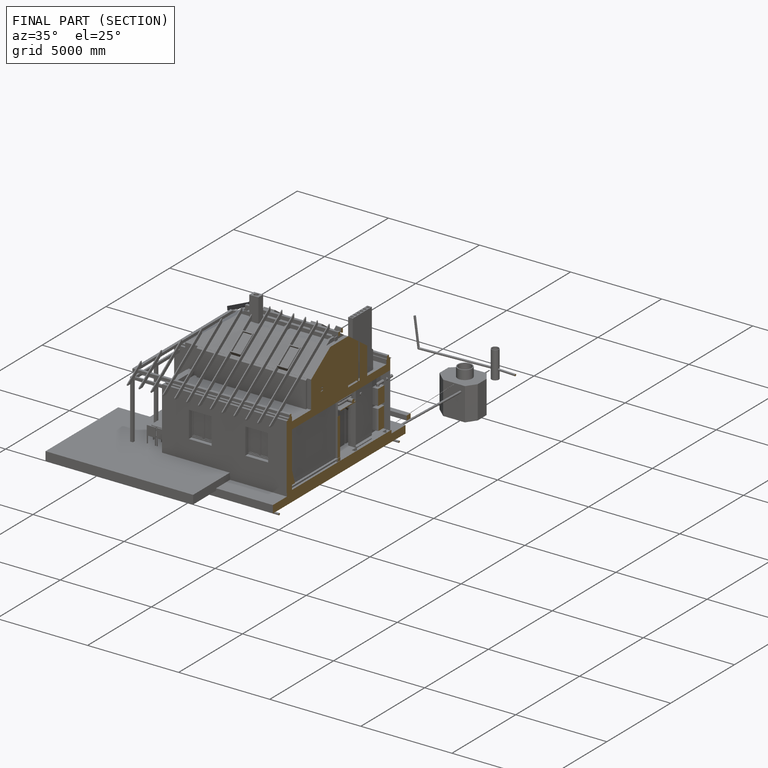
[diagram: finished part — half-section view (interior)]
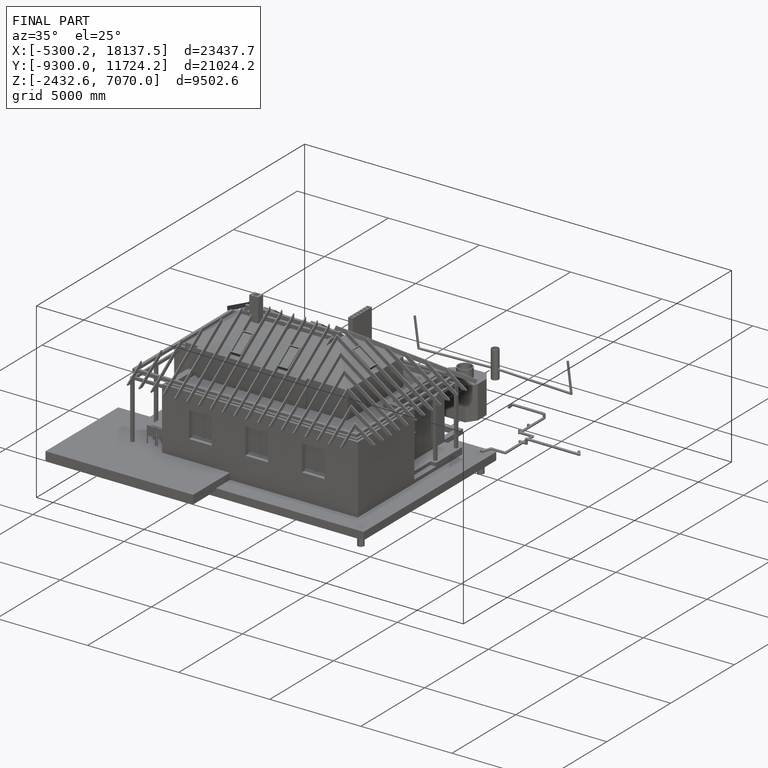
[diagram: finished part — iso view with bounding-box wireframe]
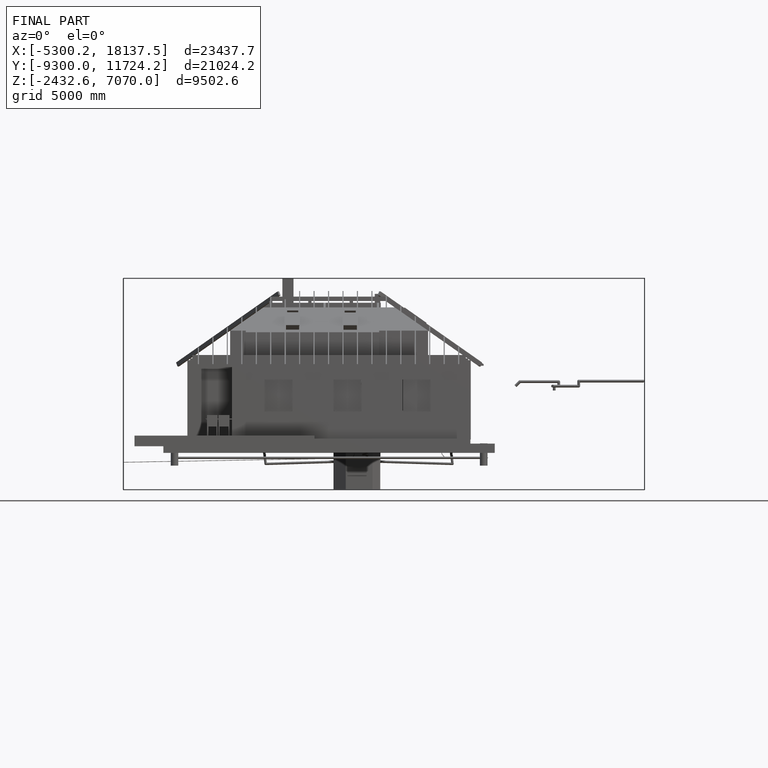
[diagram: finished part — front view with bounding-box wireframe]
